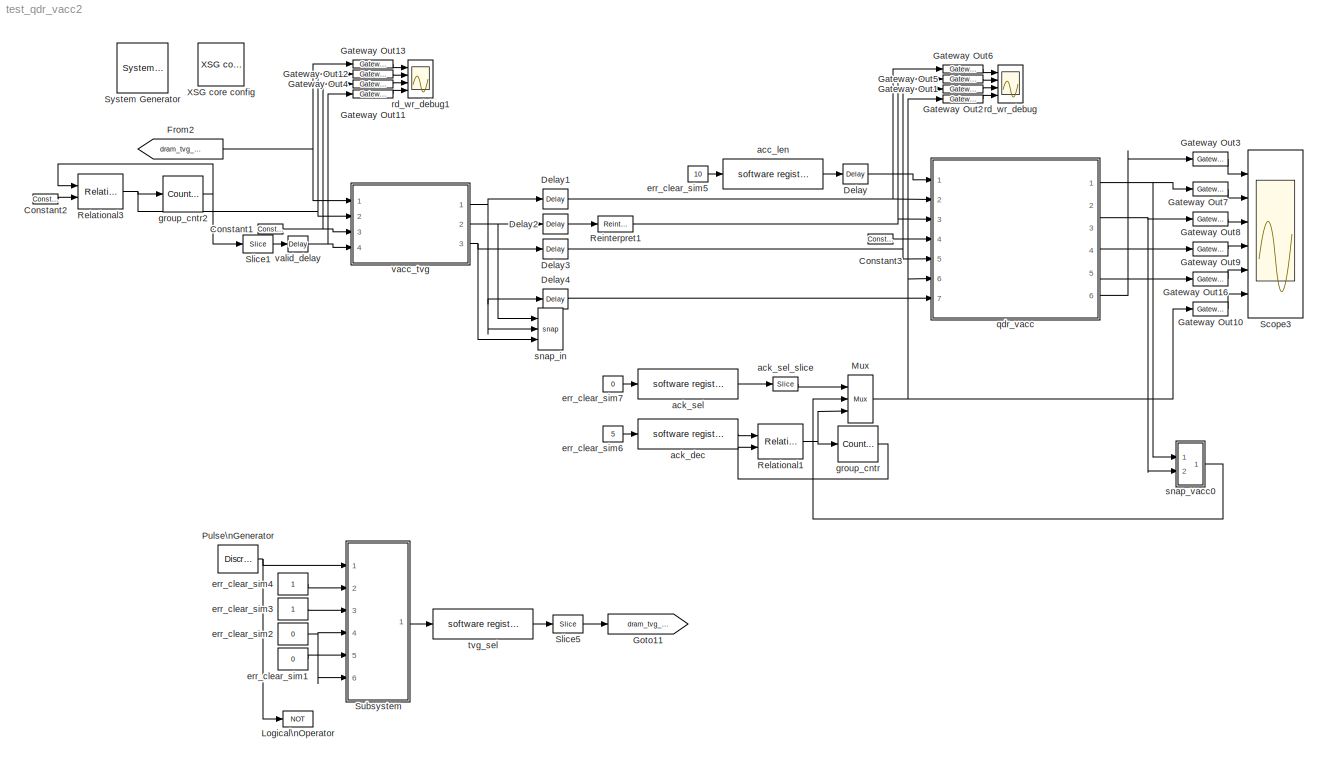
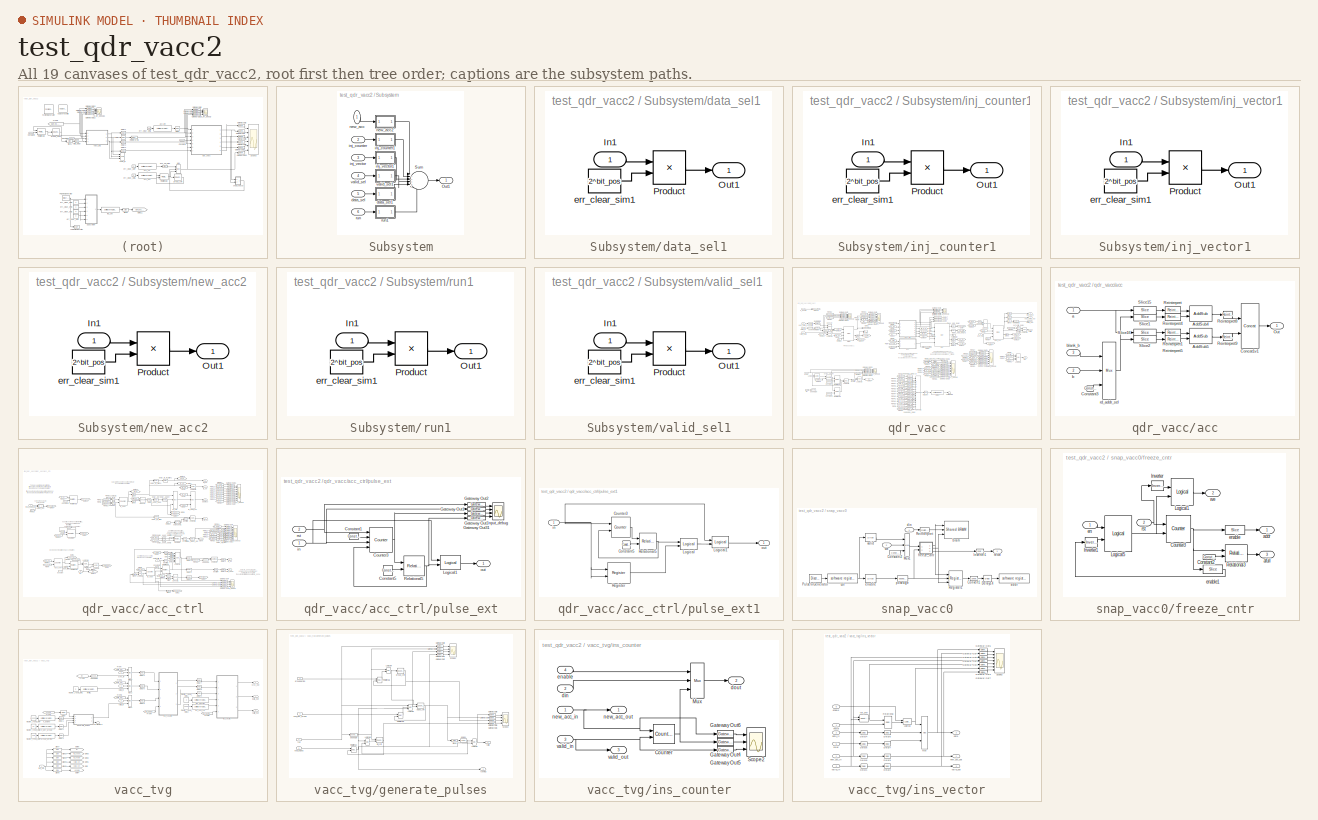
[diagram: thumbnail index - all 19 canvases of the model, root first then tree order]
MODEL test_qdr_vacc2
KIND model
BLOCK [Reference]  System Generator  REF=xbsIndex_r4/ System Generator
  AttributesFormatString = System\\nGenerator
  FunctionWithSeparateData = off
  Ports = []
  RTWMemSecDataConstants = Inherit from model
  RTWMemSecDataInternal = Inherit from model
  RTWMemSecDataParameters = Inherit from model
  RTWMemSecFuncExecute = Inherit from model
  RTWMemSecFuncInitTerm = Inherit from model
  ShowPortLabels = FromPortIcon
  SourceBlock = xbsIndex_r4/ System Generator
  SourceType = Xilinx System Generator Block
  SystemSampleTime = -1
  Tag = genX
  UserData = DataTag0
  UserDataPersistent = on
  block_type = sysgen
  block_version = 10.1.3
  clock_wrapper = Clock Enables
  core_generation = According to Block Masks
  dbl_ovrd = According to Block Masks
  dcm_input_clock_period = 100
  deprecated_control = off
  directory = ./test_qdr_vacc2/sysgen
  eval_field = 0
  has_advanced_control = 0
  incr_netlist = off
  infoedit = System Generator
  package = ff1136
  part = xc5vsx95t
  run_coregen = off
  sg_icon_stat = 51,50,-1,-1,red,beige,0,07734,right
  sg_mask_display = fprintf('','COMMENT: begin icon graphics');\npatch([0 51 51 0 ],[0 0 50 50 ],[0.93 0.92 0.86]);\npatch([12 4 16 4 12 25 29 33 47 36 25 17 29 17 25 36 47 33 29 25 12 ],[5 13 25 37 45 45 41 45 45 34 45 37 25 13 5 16 5 5 9 5 5 ],[0.6 0.2 0.25]);\nplot([0 51 51 0 0 ],[0 0 50 50 0 ]);\nfprintf('','COMMENT: end icon graphics');\nfprintf('','COMMENT: begin icon text');\nfprintf('','COMMENT: end icon text...<+5ch>
  sggui_pos = -1,-1,-1,-1
  simulink_period = 1
  speed = -1
  synthesis_tool = XST
  sysclk_period = 4.7619
  testbench = off
  trim_vbits = Everywhere in SubSystem
  xilinxfamily = virtex5
BLOCK [Reference] Constant1  REF=xbsIndex_r4/Constant
  Ports = [0, 1]
  SourceBlock = xbsIndex_r4/Constant
  SourceType = Xilinx Constant Block Block
  arith_type = Unsigned
  bin_pt = 0
  block_type = constant
  block_version = 10.1.3
  carry = CIN
  const = 0
  dbl_ovrd = off
  dsp48_infoedit = The use of this block for DSP48 instructions is deprecated.  Please use the Opmode block.
  equ = P=C
  explicit_period = on
  has_advanced_control = 0
  inp1 = P
  inp2 = PCIN>>17
  n_bits = 32
  opr = +
  opselect = C
  period = 1
  sg_icon_stat = 25,10,1,1,white,blue,0,72d575a1,right
  sg_mask_display = fprintf('','COMMENT: begin icon graphics');\npatch([0 55 55 0 ],[0 0 26 26 ],[0.77 0.82 0.91]);\npatch([20 16 22 16 20 27 29 31 38 32 26 22 28 22 26 32 38 31 29 27 20 ],[3 7 13 19 23 23 21 23 23 17 23 19 13 7 3 9 3 3 5 3 3 ],[0.98 0.96 0.92]);\nplot([0 55 55 0 0 ],[0 0 26 26 0 ]);\nfprintf('','COMMENT: end icon graphics');\nfprintf('','COMMENT: begin icon text');\ncolor('black');port_label('output...<+50ch>  <repeated x5 — deduplicated; at blocks: Constant1, Constant3, Constant2>
  sggui_pos = 20,20,414,344
BLOCK [Reference] Constant2  REF=xbsIndex_r4/Constant
  Ports = [0, 1]
  SourceBlock = xbsIndex_r4/Constant
  SourceType = Xilinx Constant Block Block
  arith_type = Unsigned
  bin_pt = 0
  block_type = constant
  block_version = 10.1.3
  carry = CIN
  const = (10*2*2*1000) -1
  dbl_ovrd = off
  dsp48_infoedit = The use of this block for DSP48 instructions is deprecated.  Please use the Opmode block.
  equ = P=C
  explicit_period = on
  has_advanced_control = 0
  inp1 = P
  inp2 = PCIN>>17
  n_bits = 32
  opr = +
  opselect = C
  period = 1
  sg_icon_stat = 25,10,1,1,white,blue,0,27a9cca1,right
  sg_mask_display = fprintf('','COMMENT: begin icon graphics');\npatch([0 55 55 0 ],[0 0 26 26 ],[0.77 0.82 0.91]);\npatch([20 16 22 16 20 27 29 31 38 32 26 22 28 22 26 32 38 31 29 27 20 ],[3 7 13 19 23 23 21 23 23 17 23 19 13 7 3 9 3 3 5 3 3 ],[0.98 0.96 0.92]);\nplot([0 55 55 0 0 ],[0 0 26 26 0 ]);\nfprintf('','COMMENT: end icon graphics');\nfprintf('','COMMENT: begin icon text');\ncolor('black');port_label('output...<+54ch>
  sggui_pos = 862,484,414,346
BLOCK [Reference] Constant3  REF=xbsIndex_r4/Constant
  Ports = [0, 1]
  SourceBlock = xbsIndex_r4/Constant
  SourceType = Xilinx Constant Block Block
  arith_type = Unsigned
  bin_pt = 0
  block_type = constant
  block_version = 10.1.3
  carry = CIN
  const = 0
  dbl_ovrd = off
  dsp48_infoedit = The use of this block for DSP48 instructions is deprecated.  Please use the Opmode block.
  equ = P=C
  explicit_period = on
  has_advanced_control = 0
  inp1 = P
  inp2 = PCIN>>17
  n_bits = 4
  opr = +
  opselect = C
  period = 1
  sg_icon_stat = 25,10,1,1,white,blue,0,72d575a1,right
  sggui_pos = 20,20,414,344
BLOCK [Reference] Delay  REF=xbsIndex_r4/Delay
  Ports = [1, 1]
  SourceBlock = xbsIndex_r4/Delay
  SourceType = Xilinx Delay Block
  block_type = delay
  block_version = 10.1.3
  dbl_ovrd = off
  en = off
  has_advanced_control = 0
  infoedit = Hardware notes: A delay line is a chain, each link of which is an SRL16 followed by a flip-flop.
  latency = 1
  reg_retiming = on
  sg_icon_stat = 25,20,1,1,white,blue,0,fc531c0e,right
  sg_mask_display = fprintf('','COMMENT: begin icon graphics');\npatch([0 60 60 0 ],[0 0 56 56 ],[0.77 0.82 0.91]);\npatch([15 6 19 6 15 30 34 38 54 41 29 20 32 20 29 41 54 38 34 30 15 ],[6 15 28 41 50 50 46 50 50 37 49 40 28 16 7 19 6 6 10 6 6 ],[0.98 0.96 0.92]);\nplot([0 60 60 0 0 ],[0 0 56 56 0 ]);\nfprintf('','COMMENT: end icon graphics');\nfprintf('','COMMENT: begin icon text');\ncolor('black');disp('z^{-1}','t...<+55ch>  <repeated x25 — deduplicated; at blocks: Delay, Delay1, Delay4, Delay6, Delay8, delay_even_addr, delay_even_addr1, delay_even_addr2, ease_timing1, ease_timing2, make_odd_delay, make_odd_delay1, out_valid_delay, stat_del, Delay14, Delay2, +4 more>
  sggui_pos = 20,20,348,254
  xl_area = [0,0,0,0,0,0,0]
  xl_use_area = off
BLOCK [Reference] Delay1  REF=xbsIndex_r4/Delay
  Ports = [1, 1]
  SourceBlock = xbsIndex_r4/Delay
  SourceType = Xilinx Delay Block
  block_type = delay
  block_version = 10.1.3
  dbl_ovrd = off
  en = off
  has_advanced_control = 0
  infoedit = Hardware notes: A delay line is a chain, each link of which is an SRL16 followed by a flip-flop.
  latency = 2
  reg_retiming = on
  sg_icon_stat = 25,20,1,1,white,blue,0,0a7a6cf1,right
  sg_mask_display = fprintf('','COMMENT: begin icon graphics');\npatch([0 60 60 0 ],[0 0 56 56 ],[0.77 0.82 0.91]);\npatch([15 6 19 6 15 30 34 38 54 41 29 20 32 20 29 41 54 38 34 30 15 ],[6 15 28 41 50 50 46 50 50 37 49 40 28 16 7 19 6 6 10 6 6 ],[0.98 0.96 0.92]);\nplot([0 60 60 0 0 ],[0 0 56 56 0 ]);\nfprintf('','COMMENT: end icon graphics');\nfprintf('','COMMENT: begin icon text');\ncolor('black');disp('z^{-2}','t...<+55ch>  <repeated x22 — deduplicated; at blocks: Delay1, Delay2, Delay3, Delay4, Delay7, delay_adder, delay_rd_wr_align1, qdr_del_comp2, qdr_del_comp3, qdr_del_comp4, qdr_del_comp6, Delay5, Delay6, Delay8, Delay9>
  sggui_pos = 20,20,348,255
  xl_area = [0,0,0,0,0,0,0]
  xl_use_area = off
BLOCK [Reference] Delay2  REF=xbsIndex_r4/Delay
  Ports = [1, 1]
  SourceBlock = xbsIndex_r4/Delay
  SourceType = Xilinx Delay Block
  block_type = delay
  block_version = 10.1.3
  dbl_ovrd = off
  en = off
  has_advanced_control = 0
  infoedit = Hardware notes: A delay line is a chain, each link of which is an SRL16 followed by a flip-flop.
  latency = 2
  reg_retiming = on
  sg_icon_stat = 25,20,1,1,white,blue,0,0a7a6cf1,right
  sggui_pos = 20,20,348,255
  xl_area = [0,0,0,0,0,0,0]
  xl_use_area = off
BLOCK [Reference] Delay3  REF=xbsIndex_r4/Delay
  Ports = [1, 1]
  SourceBlock = xbsIndex_r4/Delay
  SourceType = Xilinx Delay Block
  block_type = delay
  block_version = 10.1.3
  dbl_ovrd = off
  en = off
  has_advanced_control = 0
  infoedit = Hardware notes: A delay line is a chain, each link of which is an SRL16 followed by a flip-flop.
  latency = 2
  reg_retiming = on
  sg_icon_stat = 25,20,1,1,white,blue,0,0a7a6cf1,right
  sggui_pos = 20,20,348,255
  xl_area = [0,0,0,0,0,0,0]
  xl_use_area = off
BLOCK [Reference] Delay4  REF=xbsIndex_r4/Delay
  Ports = [1, 1]
  SourceBlock = xbsIndex_r4/Delay
  SourceType = Xilinx Delay Block
  block_type = delay
  block_version = 10.1.3
  dbl_ovrd = off
  en = off
  has_advanced_control = 0
  infoedit = Hardware notes: A delay line is a chain, each link of which is an SRL16 followed by a flip-flop.
  latency = 2
  reg_retiming = on
  sg_icon_stat = 25,20,1,1,white,blue,0,0a7a6cf1,right
  sggui_pos = 20,20,348,255
  xl_area = [0,0,0,0,0,0,0]
  xl_use_area = off
BLOCK [From] From2
  CloseFcn = tagdialog Close
  GotoTag = dram_tvg_sel
BLOCK [Reference] Gateway Out1  REF=xbsIndex_r4/Gateway Out
  LOCs = {}
  Ports = [1, 1]
  SourceBlock = xbsIndex_r4/Gateway Out
  SourceType = Xilinx Gateway Out Block
  block_type = gatewayout
  block_version = 10.1.3
  has_advanced_control = 0
  hdl_port = on
  infoedit = Gateway out block.  Converts Xilinx fixed point inputs into ouputs of type Simulink integer, double, or fixed point.<P><P>Hardware notes:  In hardware these blocks become top level output ports or are discarded, depending on how they are configured.  <repeated x88 — deduplicated; at blocks: Gateway Out1, Gateway Out10, Gateway Out11, Gateway Out12, Gateway Out13, Gateway Out16, Gateway Out2, Gateway Out3, Gateway Out4, Gateway Out5, Gateway Out6, Gateway Out7, Gateway Out8, Gateway Out9, Gateway Out14, Gateway Out15, +16 more>
  locs_specified = off
  sg_icon_stat = 40,8,1,1,white,yellow,0,38220381,right
  sg_mask_display = fprintf('','COMMENT: begin icon graphics');\npatch([0 40 40 0 ],[0 0 8 8 ],[0.95 0.93 0.65]);\npatch([18 17 19 17 18 20 21 22 24 22 20 19 21 19 20 22 24 22 21 20 18 ],[1 2 4 6 7 7 6 7 7 5 7 6 4 2 1 3 1 1 2 1 1 ],[0.98 0.96 0.92]);\nplot([0 40 40 0 0 ],[0 0 8 8 0 ]);\nfprintf('','COMMENT: end icon graphics');\nfprintf('','COMMENT: begin icon text');\ncolor('black');port_label('input',1,' ');\ncolor...<+117ch>  <repeated x8 — deduplicated; at blocks: Gateway Out1, Gateway Out11, Gateway Out12, Gateway Out13, Gateway Out2, Gateway Out4, Gateway Out5, Gateway Out6>
  sggui_pos = -1,-1,-1,-1
  timing_constraint = None
  xl_area = [0, 0, 0, 0, 0, 0, 0]
  xl_use_area = off
BLOCK [Reference] Gateway Out10  REF=xbsIndex_r4/Gateway Out
  LOCs = {}
  Ports = [1, 1]
  SourceBlock = xbsIndex_r4/Gateway Out
  SourceType = Xilinx Gateway Out Block
  block_type = gatewayout
  block_version = 10.1.3
  has_advanced_control = 0
  hdl_port = off
  locs_specified = off
  sg_icon_stat = 35,14,1,1,white,grey,0,b3a044a9,right
  sg_mask_display = fprintf('','COMMENT: begin icon graphics');\npatch([0 35 35 0 ],[0 0 14 14 ],[0.88 0.88 0.88]);\npatch([13 11 14 11 13 17 18 19 23 20 17 15 18 15 17 20 23 19 18 17 13 ],[2 4 7 10 12 12 11 12 12 9 12 10 7 4 2 5 2 2 3 2 2 ],[0.98 0.96 0.92]);\nplot([0 35 35 0 0 ],[0 0 14 14 0 ]);\nfprintf('','COMMENT: end icon graphics');\nfprintf('','COMMENT: begin icon text');\ncolor('black');port_label('input',1,...<+125ch>  <repeated x6 — deduplicated; at blocks: Gateway Out10, Gateway Out16, Gateway Out3, Gateway Out7, Gateway Out8, Gateway Out9>
  sggui_pos = -1,-1,-1,-1
  timing_constraint = None
  xl_area = [0, 0, 0, 0, 0, 0, 0]
  xl_use_area = off
BLOCK [Reference] Gateway Out11  REF=xbsIndex_r4/Gateway Out
  LOCs = {}
  Ports = [1, 1]
  SourceBlock = xbsIndex_r4/Gateway Out
  SourceType = Xilinx Gateway Out Block
  block_type = gatewayout
  block_version = 10.1.3
  has_advanced_control = 0
  hdl_port = on
  locs_specified = off
  sg_icon_stat = 40,8,1,1,white,yellow,0,38220381,right
  sggui_pos = -1,-1,-1,-1
  timing_constraint = None
  xl_area = [0, 0, 0, 0, 0, 0, 0]
  xl_use_area = off
BLOCK [Reference] Gateway Out12  REF=xbsIndex_r4/Gateway Out
  LOCs = {}
  Ports = [1, 1]
  SourceBlock = xbsIndex_r4/Gateway Out
  SourceType = Xilinx Gateway Out Block
  block_type = gatewayout
  block_version = 10.1.3
  has_advanced_control = 0
  hdl_port = on
  locs_specified = off
  sg_icon_stat = 40,8,1,1,white,yellow,0,38220381,right
  sggui_pos = -1,-1,-1,-1
  timing_constraint = None
  xl_area = [0, 0, 0, 0, 0, 0, 0]
  xl_use_area = off
BLOCK [Reference] Gateway Out13  REF=xbsIndex_r4/Gateway Out
  LOCs = {}
  Ports = [1, 1]
  SourceBlock = xbsIndex_r4/Gateway Out
  SourceType = Xilinx Gateway Out Block
  block_type = gatewayout
  block_version = 10.1.3
  has_advanced_control = 0
  hdl_port = on
  locs_specified = off
  sg_icon_stat = 40,8,1,1,white,yellow,0,38220381,right
  sggui_pos = -1,-1,-1,-1
  timing_constraint = None
  xl_area = [0, 0, 0, 0, 0, 0, 0]
  xl_use_area = off
BLOCK [Reference] Gateway Out16  REF=xbsIndex_r4/Gateway Out
  LOCs = {}
  Ports = [1, 1]
  SourceBlock = xbsIndex_r4/Gateway Out
  SourceType = Xilinx Gateway Out Block
  block_type = gatewayout
  block_version = 10.1.3
  has_advanced_control = 0
  hdl_port = off
  locs_specified = off
  sg_icon_stat = 35,14,1,1,white,grey,0,b3a044a9,right
  sggui_pos = -1,-1,-1,-1
  timing_constraint = None
  xl_area = [0, 0, 0, 0, 0, 0, 0]
  xl_use_area = off
BLOCK [Reference] Gateway Out2  REF=xbsIndex_r4/Gateway Out
  LOCs = {}
  Ports = [1, 1]
  SourceBlock = xbsIndex_r4/Gateway Out
  SourceType = Xilinx Gateway Out Block
  block_type = gatewayout
  block_version = 10.1.3
  has_advanced_control = 0
  hdl_port = on
  locs_specified = off
  sg_icon_stat = 40,8,1,1,white,yellow,0,38220381,right
  sggui_pos = -1,-1,-1,-1
  timing_constraint = None
  xl_area = [0, 0, 0, 0, 0, 0, 0]
  xl_use_area = off
BLOCK [Reference] Gateway Out3  REF=xbsIndex_r4/Gateway Out
  LOCs = {}
  Ports = [1, 1]
  SourceBlock = xbsIndex_r4/Gateway Out
  SourceType = Xilinx Gateway Out Block
  block_type = gatewayout
  block_version = 10.1.3
  has_advanced_control = 0
  hdl_port = off
  locs_specified = off
  sg_icon_stat = 35,14,1,1,white,grey,0,b3a044a9,right
  sggui_pos = -1,-1,-1,-1
  timing_constraint = None
  xl_area = [0, 0, 0, 0, 0, 0, 0]
  xl_use_area = off
BLOCK [Reference] Gateway Out4  REF=xbsIndex_r4/Gateway Out
  LOCs = {}
  Ports = [1, 1]
  SourceBlock = xbsIndex_r4/Gateway Out
  SourceType = Xilinx Gateway Out Block
  block_type = gatewayout
  block_version = 10.1.3
  has_advanced_control = 0
  hdl_port = on
  locs_specified = off
  sg_icon_stat = 40,8,1,1,white,yellow,0,38220381,right
  sggui_pos = -1,-1,-1,-1
  timing_constraint = None
  xl_area = [0, 0, 0, 0, 0, 0, 0]
  xl_use_area = off
BLOCK [Reference] Gateway Out5  REF=xbsIndex_r4/Gateway Out
  LOCs = {}
  Ports = [1, 1]
  SourceBlock = xbsIndex_r4/Gateway Out
  SourceType = Xilinx Gateway Out Block
  block_type = gatewayout
  block_version = 10.1.3
  has_advanced_control = 0
  hdl_port = on
  locs_specified = off
  sg_icon_stat = 40,8,1,1,white,yellow,0,38220381,right
  sggui_pos = -1,-1,-1,-1
  timing_constraint = None
  xl_area = [0, 0, 0, 0, 0, 0, 0]
  xl_use_area = off
BLOCK [Reference] Gateway Out6  REF=xbsIndex_r4/Gateway Out
  LOCs = {}
  Ports = [1, 1]
  SourceBlock = xbsIndex_r4/Gateway Out
  SourceType = Xilinx Gateway Out Block
  block_type = gatewayout
  block_version = 10.1.3
  has_advanced_control = 0
  hdl_port = on
  locs_specified = off
  sg_icon_stat = 40,8,1,1,white,yellow,0,38220381,right
  sggui_pos = -1,-1,-1,-1
  timing_constraint = None
  xl_area = [0, 0, 0, 0, 0, 0, 0]
  xl_use_area = off
BLOCK [Reference] Gateway Out7  REF=xbsIndex_r4/Gateway Out
  LOCs = {}
  Ports = [1, 1]
  SourceBlock = xbsIndex_r4/Gateway Out
  SourceType = Xilinx Gateway Out Block
  block_type = gatewayout
  block_version = 10.1.3
  has_advanced_control = 0
  hdl_port = off
  locs_specified = off
  sg_icon_stat = 35,14,1,1,white,grey,0,b3a044a9,right
  sggui_pos = -1,-1,-1,-1
  timing_constraint = None
  xl_area = [0, 0, 0, 0, 0, 0, 0]
  xl_use_area = off
BLOCK [Reference] Gateway Out8  REF=xbsIndex_r4/Gateway Out
  LOCs = {}
  Ports = [1, 1]
  SourceBlock = xbsIndex_r4/Gateway Out
  SourceType = Xilinx Gateway Out Block
  block_type = gatewayout
  block_version = 10.1.3
  has_advanced_control = 0
  hdl_port = off
  locs_specified = off
  sg_icon_stat = 35,14,1,1,white,grey,0,b3a044a9,right
  sggui_pos = -1,-1,-1,-1
  timing_constraint = None
  xl_area = [0, 0, 0, 0, 0, 0, 0]
  xl_use_area = off
BLOCK [Reference] Gateway Out9  REF=xbsIndex_r4/Gateway Out
  LOCs = {}
  Ports = [1, 1]
  SourceBlock = xbsIndex_r4/Gateway Out
  SourceType = Xilinx Gateway Out Block
  block_type = gatewayout
  block_version = 10.1.3
  has_advanced_control = 0
  hdl_port = off
  locs_specified = off
  sg_icon_stat = 35,14,1,1,white,grey,0,b3a044a9,right
  sggui_pos = -1,-1,-1,-1
  timing_constraint = None
  xl_area = [0, 0, 0, 0, 0, 0, 0]
  xl_use_area = off
BLOCK [Goto] Goto11
  GotoTag = dram_tvg_sel
  TagVisibility = local
BLOCK [Logic] Logical\nOperator
  AllPortsSameDT = off
  Operator = NOT
  OutDataTypeMode = boolean
  Ports = [1, 1]
BLOCK [Reference] Mux  REF=xbsIndex_r4/Mux
  Ports = [3, 1]
  SourceBlock = xbsIndex_r4/Mux
  SourceType = Xilinx Bus Multiplexer Block
  arith_type = Unsigned
  bin_pt = 14
  block_type = mux
  block_version = 10.1.3
  dbl_ovrd = off
  en = off
  has_advanced_control = 0
  inputs = 2
  latency = 0
  n_bits = 16
  overflow = Wrap
  precision = Full
  quantization = Truncate
  sg_icon_stat = 25,48,1,1,white,blue,3,613f58e1,right
  sg_mask_display = fprintf('','COMMENT: begin icon graphics');\npatch([0 45 45 0 ],[0 14.8571 89.1429 104 ],[0.77 0.82 0.91]);\npatch([10 3 14 3 10 22 25 28 41 31 21 14 25 14 21 31 41 28 25 22 10 ],[34 41 52 63 70 70 67 70 70 60 70 63 52 41 34 44 34 34 37 34 34 ],[0.98 0.96 0.92]);\nplot([0 45 45 0 0 ],[0 14.8571 89.1429 104 0 ]);\nfprintf('','COMMENT: end icon graphics');\nfprintf('','COMMENT: begin icon text');\nc...<+218ch>  <repeated x10 — deduplicated; at blocks: Mux, rd_addr_sel, rd_nwr, Mux1, Mux2, Mux3>
  sggui_pos = -1,-1,-1,-1
  xl_area = [0,0,0,0,0,0,0]
  xl_use_area = off
BLOCK [DiscretePulseGenerator] Pulse\nGenerator
  Period = 8*100*8
  PhaseDelay = 2
  Ports = [0, 1]
BLOCK [Reference] Reinterpret1  REF=xbsIndex_r4/Reinterpret
  Ports = [1, 1]
  SourceBlock = xbsIndex_r4/Reinterpret
  SourceType = Xilinx Type Reinterpreter Block
  arith_type = Signed  (2's comp)
  bin_pt = 0
  block_type = reinterpret
  block_version = 9.2.01
  force_arith_type = on
  force_bin_pt = on
  has_advanced_control = 0
  infoedit = Changes signal type without altering the binary representation.   You can changed the signal between signed and unsigned, and relocate the binary point.<P><P>Hardware notes: In hardware this block costs nothing.<P><P>Example:  Suppose the input is 6 bits wide, signed, with 2 fractional bits, and the output is forced to unsigned with 0 fractional bits.  Then an input of -2.0 (1110.00 in binary 2's ...<+55ch>  <repeated x11 — deduplicated; at blocks: Reinterpret1, Reinterpret, Reinterpret2, Reinterpret4, Reinterpret5, Reinterpret8, Reinterpret9>
  sg_icon_stat = 35,16,1,1,white,blue,0,8982c1db,right
  sg_mask_display = fprintf('','COMMENT: begin icon graphics');\npatch([0 50 50 0 ],[0 0 32 32 ],[0.77 0.82 0.91]);\npatch([16 11 18 11 16 24 26 28 37 30 23 18 25 18 23 30 37 28 26 24 16 ],[3 8 15 22 27 27 25 27 27 20 27 22 15 8 3 10 3 3 5 3 3 ],[0.98 0.96 0.92]);\nplot([0 50 50 0 0 ],[0 0 32 32 0 ]);\nfprintf('','COMMENT: end icon graphics');\nfprintf('','COMMENT: begin icon text');\ncolor('black');disp('reinterpret...<+44ch>  <repeated x11 — deduplicated; at blocks: Reinterpret1, Reinterpret, Reinterpret2, Reinterpret4, Reinterpret5, Reinterpret8, Reinterpret9>
  sggui_pos = 20,20,336,312
BLOCK [Reference] Relational1  REF=xbsIndex_r4/Relational
  Ports = [2, 1]
  SourceBlock = xbsIndex_r4/Relational
  SourceType = Xilinx Arithmetic Relational Operator Block
  block_type = relational
  block_version = 10.1.3
  dbl_ovrd = off
  en = off
  has_advanced_control = 0
  latency = 0
  mode = a<=b
  sg_icon_stat = 45,35,1,1,white,blue,0,07808d72,right
  sg_mask_display = fprintf('','COMMENT: begin icon graphics');\npatch([0 55 55 0 ],[0 0 56 56 ],[0.77 0.82 0.91]);\npatch([13 4 17 4 13 28 32 36 52 40 28 19 32 19 28 40 52 36 32 28 13 ],[6 15 28 41 50 50 46 50 50 38 50 41 28 15 6 18 6 6 10 6 6 ],[0.98 0.96 0.92]);\nplot([0 55 55 0 0 ],[0 0 56 56 0 ]);\nfprintf('','COMMENT: end icon graphics');\nfprintf('','COMMENT: begin icon text');\ncolor('black');port_label('inpu...<+169ch>  <repeated x10 — deduplicated; at blocks: Relational1, Relational3, Relational, Relational2, Relational5>
  sggui_pos = 20,20,348,192
  xl_area = [0, 0, 0, 0, 0, 0, 0]
  xl_use_area = off
BLOCK [Reference] Relational3  REF=xbsIndex_r4/Relational
  Ports = [2, 1]
  SourceBlock = xbsIndex_r4/Relational
  SourceType = Xilinx Arithmetic Relational Operator Block
  block_type = relational
  block_version = 10.1.3
  dbl_ovrd = off
  en = off
  has_advanced_control = 0
  latency = 0
  mode = a>=b
  sg_icon_stat = 45,35,1,1,white,blue,0,6d6ac162,right
  sggui_pos = 20,20,348,192
  xl_area = [0, 0, 0, 0, 0, 0, 0]
  xl_use_area = off
BLOCK [Scope] Scope3
  DataFormat = StructureWithTime
  Floating = off
  LimitDataPoints = off
  NumInputPorts = 6
  Ports = [6]
  SampleTime = 0
  SaveName = ScopeData2
  YMax = 1~10000~1~1~1~1
  YMin = 0~7250~0~-1~-1~0
  ZoomMode = xonly
BLOCK [Reference] Slice1  REF=xbsIndex_r4/Slice
  Ports = [1, 1]
  SourceBlock = xbsIndex_r4/Slice
  SourceType = Xilinx Bit Slice Extractor Block
  base0 = LSB of Input
  base1 = MSB of Input
  bit0 = 0
  bit1 = 0
  block_type = slice
  block_version = 10.1.3
  boolean_output = on
  dbl_ovrd = off
  has_advanced_control = 0
  infoedit = Extracts a given range of bits from each input sample and presents it at the output.  The output type is ordinarily unsigned with binary point at zero, but can be Boolean when the slice is one bit wide.<P><P>Hardware notes: In hardware this block costs nothing.  <repeated x28 — deduplicated; at blocks: Slice1, Slice5, ack_sel_slice, Slice15, Slice2, Slice3, Slice16, Slice, Slice4, enable, enable1, valid, Slice6, Slice7>
  mode = Lower Bit Location + Width
  nbits = 1
  sg_icon_stat = 30,18,1,1,white,blue,0,b1026674,right
  sg_mask_display = fprintf('','COMMENT: begin icon graphics');\npatch([0 60 60 0 ],[0 0 30 30 ],[0.77 0.82 0.91]);\npatch([22 17 24 17 22 30 32 34 42 35 29 24 30 24 29 35 42 34 32 30 22 ],[3 8 15 22 27 27 25 27 27 20 26 21 15 9 4 10 3 3 5 3 3 ],[0.98 0.96 0.92]);\nplot([0 60 60 0 0 ],[0 0 30 30 0 ]);\nfprintf('','COMMENT: end icon graphics');\nfprintf('','COMMENT: begin icon text');\ncolor('black');port_label('outpu...<+55ch>  <repeated x28 — deduplicated; at blocks: Slice1, Slice5, ack_sel_slice, Slice15, Slice2, Slice3, Slice16, Slice, Slice4, enable, enable1, valid, Slice6, Slice7>
  sggui_pos = 20,20,460,380
BLOCK [Reference] Slice5  REF=xbsIndex_r4/Slice
  Ports = [1, 1]
  SourceBlock = xbsIndex_r4/Slice
  SourceType = Xilinx Bit Slice Extractor Block
  base0 = LSB of Input
  base1 = MSB of Input
  bit0 = 9
  bit1 = 0
  block_type = slice
  block_version = 10.1.3
  boolean_output = off
  dbl_ovrd = off
  has_advanced_control = 0
  mode = Lower Bit Location + Width
  nbits = 6
  sg_icon_stat = 30,18,1,1,white,blue,0,b1026674,right
  sggui_pos = 20,20,460,380
BLOCK [SubSystem] Subsystem
  FunctionWithSeparateData = off
  MinAlgLoopOccurrences = off
  Ports = [6, 1]
  RTWSystemCode = Auto
BLOCK [Outport] Subsystem/Out1
  IconDisplay = Port number
  OutDataType = sfix(16)
  OutScaling = 2^0
BLOCK [Sum] Subsystem/Sum
  CollapseMode = All dimensions
  IconShape = round
  InputSameDT = off
  Inputs = |++++++
  OutDataType = sfix(16)
  OutDataTypeMode = Inherit via internal rule
  OutScaling = 2^0
  Ports = [6, 1]
  SaturateOnIntegerOverflow = off
BLOCK [Inport] Subsystem/data_sel
  IconDisplay = Port number
  OutDataType = sfix(16)
  OutScaling = 2^0
  Port = 5
BLOCK [SubSystem] Subsystem/data_sel1
  FunctionWithSeparateData = off
  MaskEnableString = on
  MaskIconFrame = on
  MaskIconOpaque = on
  MaskIconRotate = none
  MaskIconUnits = autoscale
  MaskPromptString = bit position
  MaskStyleString = edit
  MaskToolTipString = on
  MaskTunableValueString = on
  MaskValueString = 10
  MaskVariables = bit_pos=@1;
  MaskVisibilityString = on
  MinAlgLoopOccurrences = off
  Ports = [1, 1]
  RTWSystemCode = Auto
BLOCK [Inport] Subsystem/data_sel1/In1
  IconDisplay = Port number
  OutDataType = sfix(16)
  OutScaling = 2^0
BLOCK [Outport] Subsystem/data_sel1/Out1
  IconDisplay = Port number
  OutDataType = sfix(16)
  OutScaling = 2^0
BLOCK [Product] Subsystem/data_sel1/Product
  CollapseMode = All dimensions
  InputSameDT = off
  OutDataType = sfix(16)
  OutDataTypeMode = Inherit via internal rule
  OutScaling = 2^0
  Ports = [2, 1]
  SaturateOnIntegerOverflow = off
BLOCK [Constant] Subsystem/data_sel1/err_clear_sim1
  OutDataType = sfix(16)
  OutScaling = 2^0
  Value = 2^bit_pos
BLOCK [Inport] Subsystem/inj_counter
  IconDisplay = Port number
  OutDataType = sfix(16)
  OutScaling = 2^0
  Port = 2
BLOCK [SubSystem] Subsystem/inj_counter1
  FunctionWithSeparateData = off
  MaskEnableString = on
  MaskIconFrame = on
  MaskIconOpaque = on
  MaskIconRotate = none
  MaskIconUnits = autoscale
  MaskPromptString = bit position
  MaskStyleString = edit
  MaskToolTipString = on
  MaskTunableValueString = on
  MaskValueString = 13
  MaskVariables = bit_pos=@1;
  MaskVisibilityString = on
  MinAlgLoopOccurrences = off
  Ports = [1, 1]
  RTWSystemCode = Auto
BLOCK [Inport] Subsystem/inj_counter1/In1
  IconDisplay = Port number
  OutDataType = sfix(16)
  OutScaling = 2^0
BLOCK [Outport] Subsystem/inj_counter1/Out1
  IconDisplay = Port number
  OutDataType = sfix(16)
  OutScaling = 2^0
BLOCK [Product] Subsystem/inj_counter1/Product
  CollapseMode = All dimensions
  InputSameDT = off
  OutDataType = sfix(16)
  OutDataTypeMode = Inherit via internal rule
  OutScaling = 2^0
  Ports = [2, 1]
  SaturateOnIntegerOverflow = off
BLOCK [Constant] Subsystem/inj_counter1/err_clear_sim1
  OutDataType = sfix(16)
  OutScaling = 2^0
  Value = 2^bit_pos
BLOCK [Inport] Subsystem/inj_vector
  IconDisplay = Port number
  OutDataType = sfix(16)
  OutScaling = 2^0
  Port = 3
BLOCK [SubSystem] Subsystem/inj_vector1
  FunctionWithSeparateData = off
  MaskEnableString = on
  MaskIconFrame = on
  MaskIconOpaque = on
  MaskIconRotate = none
  MaskIconUnits = autoscale
  MaskPromptString = bit position
  MaskStyleString = edit
  MaskToolTipString = on
  MaskTunableValueString = on
  MaskValueString = 12
  MaskVariables = bit_pos=@1;
  MaskVisibilityString = on
  MinAlgLoopOccurrences = off
  Ports = [1, 1]
  RTWSystemCode = Auto
BLOCK [Inport] Subsystem/inj_vector1/In1
  IconDisplay = Port number
  OutDataType = sfix(16)
  OutScaling = 2^0
BLOCK [Outport] Subsystem/inj_vector1/Out1
  IconDisplay = Port number
  OutDataType = sfix(16)
  OutScaling = 2^0
BLOCK [Product] Subsystem/inj_vector1/Product
  CollapseMode = All dimensions
  InputSameDT = off
  OutDataType = sfix(16)
  OutDataTypeMode = Inherit via internal rule
  OutScaling = 2^0
  Ports = [2, 1]
  SaturateOnIntegerOverflow = off
BLOCK [Constant] Subsystem/inj_vector1/err_clear_sim1
  OutDataType = sfix(16)
  OutScaling = 2^0
  Value = 2^bit_pos
BLOCK [Inport] Subsystem/new_acc
  IconDisplay = Port number
  OutDataType = sfix(16)
  OutScaling = 2^0
BLOCK [SubSystem] Subsystem/new_acc2
  FunctionWithSeparateData = off
  MaskEnableString = on
  MaskIconFrame = on
  MaskIconOpaque = on
  MaskIconRotate = none
  MaskIconUnits = autoscale
  MaskPromptString = bit position
  MaskStyleString = edit
  MaskToolTipString = on
  MaskTunableValueString = on
  MaskValueString = 14
  MaskVariables = bit_pos=@1;
  MaskVisibilityString = on
  MinAlgLoopOccurrences = off
  Ports = [1, 1]
  RTWSystemCode = Auto
BLOCK [Inport] Subsystem/new_acc2/In1
  IconDisplay = Port number
  OutDataType = sfix(16)
  OutScaling = 2^0
BLOCK [Outport] Subsystem/new_acc2/Out1
  IconDisplay = Port number
  OutDataType = sfix(16)
  OutScaling = 2^0
BLOCK [Product] Subsystem/new_acc2/Product
  CollapseMode = All dimensions
  InputSameDT = off
  OutDataType = sfix(16)
  OutDataTypeMode = Inherit via internal rule
  OutScaling = 2^0
  Ports = [2, 1]
  SaturateOnIntegerOverflow = off
BLOCK [Constant] Subsystem/new_acc2/err_clear_sim1
  OutDataType = sfix(16)
  OutScaling = 2^0
  Value = 2^bit_pos
BLOCK [Inport] Subsystem/run
  IconDisplay = Port number
  OutDataType = sfix(16)
  OutScaling = 2^0
  Port = 6
BLOCK [SubSystem] Subsystem/run1
  FunctionWithSeparateData = off
  MaskEnableString = on
  MaskIconFrame = on
  MaskIconOpaque = on
  MaskIconRotate = none
  MaskIconUnits = autoscale
  MaskPromptString = bit position
  MaskStyleString = edit
  MaskToolTipString = on
  MaskTunableValueString = on
  MaskValueString = 9
  MaskVariables = bit_pos=@1;
  MaskVisibilityString = on
  MinAlgLoopOccurrences = off
  Ports = [1, 1]
  RTWSystemCode = Auto
BLOCK [Inport] Subsystem/run1/In1
  IconDisplay = Port number
  OutDataType = sfix(16)
  OutScaling = 2^0
BLOCK [Outport] Subsystem/run1/Out1
  IconDisplay = Port number
  OutDataType = sfix(16)
  OutScaling = 2^0
BLOCK [Product] Subsystem/run1/Product
  CollapseMode = All dimensions
  InputSameDT = off
  OutDataType = sfix(16)
  OutDataTypeMode = Inherit via internal rule
  OutScaling = 2^0
  Ports = [2, 1]
  SaturateOnIntegerOverflow = off
BLOCK [Constant] Subsystem/run1/err_clear_sim1
  OutDataType = sfix(16)
  OutScaling = 2^0
  Value = 2^bit_pos
BLOCK [Inport] Subsystem/valid_sel
  IconDisplay = Port number
  OutDataType = sfix(16)
  OutScaling = 2^0
  Port = 4
BLOCK [SubSystem] Subsystem/valid_sel1
  FunctionWithSeparateData = off
  MaskEnableString = on
  MaskIconFrame = on
  MaskIconOpaque = on
  MaskIconRotate = none
  MaskIconUnits = autoscale
  MaskPromptString = bit position
  MaskStyleString = edit
  MaskToolTipString = on
  MaskTunableValueString = on
  MaskValueString = 11
  MaskVariables = bit_pos=@1;
  MaskVisibilityString = on
  MinAlgLoopOccurrences = off
  Ports = [1, 1]
  RTWSystemCode = Auto
BLOCK [Inport] Subsystem/valid_sel1/In1
  IconDisplay = Port number
  OutDataType = sfix(16)
  OutScaling = 2^0
BLOCK [Outport] Subsystem/valid_sel1/Out1
  IconDisplay = Port number
  OutDataType = sfix(16)
  OutScaling = 2^0
BLOCK [Product] Subsystem/valid_sel1/Product
  CollapseMode = All dimensions
  InputSameDT = off
  OutDataType = sfix(16)
  OutDataTypeMode = Inherit via internal rule
  OutScaling = 2^0
  Ports = [2, 1]
  SaturateOnIntegerOverflow = off
BLOCK [Constant] Subsystem/valid_sel1/err_clear_sim1
  OutDataType = sfix(16)
  OutScaling = 2^0
  Value = 2^bit_pos
BLOCK [Reference] XSG core config  REF=xps_library/XSG core config  (lib defined in mdl_00b5cec29cd0, mdl_02ab6ecaa3d1, +5 more)
  BEE2_ctrl_clk_src = sys_clk
  BEE2_usr_clk_src = sys_clk
  CORR_clk_src = sys_clk
  FunctionWithSeparateData = off
  Ports = []
  ROACH_clk_src = arb_clk
  RTWMemSecDataConstants = Inherit from model
  RTWMemSecDataInternal = Inherit from model
  RTWMemSecDataParameters = Inherit from model
  RTWMemSecFuncExecute = Inherit from model
  RTWMemSecFuncInitTerm = Inherit from model
  ShowPortLabels = FromPortIcon
  SourceBlock = xps_library/XSG core config
  SourceType = xsg core config
  SystemSampleTime = -1
  Tag = xps:xsg
  clk_rate = 210
  clk_src = arb_clk
  gpio_clk_bit_index = 0
  gpio_clk_io_group = iBOB:sma
  hw_sys = ROACH:sx95t
  iBOB_clk_src = sys_clk
  ibob_linux = off
  mpc_type = powerpc440_ext
  sample_period = 1
  synthesis_tool = XST
BLOCK [Reference] acc_len  REF=xps_library/software register  (lib defined in mdl_00b5cec29cd0, mdl_02ab6ecaa3d1, +5 more)
  FunctionWithSeparateData = off
  Ports = [1, 1]
  RTWMemSecDataConstants = Inherit from model
  RTWMemSecDataInternal = Inherit from model
  RTWMemSecDataParameters = Inherit from model
  RTWMemSecFuncExecute = Inherit from model
  RTWMemSecFuncInitTerm = Inherit from model
  ShowPortLabels = FromPortIcon
  SourceBlock = xps_library/software register
  SystemSampleTime = -1
  Tag = xps:sw_reg
  arith_type = Unsigned
  bin_pt = 0
  bitwidth = 32
  gw_name = test_qdr_vacc2_acc_len_user_data_out
  io_dir = From Processor
  sample_period = 1
BLOCK [Reference] ack_dec  REF=xps_library/software register  (lib defined in mdl_00b5cec29cd0, mdl_02ab6ecaa3d1, +5 more)
  FunctionWithSeparateData = off
  Ports = [1, 1]
  RTWMemSecDataConstants = Inherit from model
  RTWMemSecDataInternal = Inherit from model
  RTWMemSecDataParameters = Inherit from model
  RTWMemSecFuncExecute = Inherit from model
  RTWMemSecFuncInitTerm = Inherit from model
  ShowPortLabels = FromPortIcon
  SourceBlock = xps_library/software register
  SystemSampleTime = -1
  Tag = xps:sw_reg
  arith_type = Unsigned
  bin_pt = 0
  bitwidth = 32
  gw_name = test_qdr_vacc2_ack_dec_user_data_out
  io_dir = From Processor
  sample_period = 1
BLOCK [Reference] ack_sel  REF=xps_library/software register  (lib defined in mdl_00b5cec29cd0, mdl_02ab6ecaa3d1, +5 more)
  FunctionWithSeparateData = off
  Ports = [1, 1]
  RTWMemSecDataConstants = Inherit from model
  RTWMemSecDataInternal = Inherit from model
  RTWMemSecDataParameters = Inherit from model
  RTWMemSecFuncExecute = Inherit from model
  RTWMemSecFuncInitTerm = Inherit from model
  ShowPortLabels = FromPortIcon
  SourceBlock = xps_library/software register
  SystemSampleTime = -1
  Tag = xps:sw_reg
  arith_type = Unsigned
  bin_pt = 0
  bitwidth = 32
  gw_name = test_qdr_vacc2_ack_sel_user_data_out
  io_dir = From Processor
  sample_period = 1
BLOCK [Reference] ack_sel_slice  REF=xbsIndex_r4/Slice
  Ports = [1, 1]
  SourceBlock = xbsIndex_r4/Slice
  SourceType = Xilinx Bit Slice Extractor Block
  base0 = LSB of Input
  base1 = LSB of Input
  bit0 = 0
  bit1 = 0
  block_type = slice
  block_version = 10.1.1
  boolean_output = on
  dbl_ovrd = off
  has_advanced_control = 0
  mode = Lower Bit Location + Width
  nbits = 1
  sg_icon_stat = 25,14,1,1,white,blue,0,b1026674,right
  sggui_pos = 20,20,460,380
BLOCK [Constant] err_clear_sim1
  OutDataType = sfix(16)
  OutScaling = 2^0
  Value = 0
BLOCK [Constant] err_clear_sim2
  OutDataType = sfix(16)
  OutScaling = 2^0
  Value = 0
BLOCK [Constant] err_clear_sim3
  OutDataType = sfix(16)
  OutScaling = 2^0
BLOCK [Constant] err_clear_sim4
  OutDataType = sfix(16)
  OutScaling = 2^0
BLOCK [Constant] err_clear_sim5
  OutDataType = sfix(16)
  OutScaling = 2^0
  Value = 10
BLOCK [Constant] err_clear_sim6
  OutDataType = sfix(16)
  OutScaling = 2^0
  Value = 5
BLOCK [Constant] err_clear_sim7
  OutDataType = sfix(16)
  OutScaling = 2^0
  Value = 0
BLOCK [Reference] group_cntr  REF=xbsIndex_r4/Counter
  Ports = [1, 1]
  SourceBlock = xbsIndex_r4/Counter
  SourceType = Xilinx Counter Block
  arith_type = Unsigned
  bin_pt = 0
  block_type = counter
  block_version = 10.1.3
  cnt_by_val = 1
  cnt_to = 1
  cnt_type = Free Running
  dbl_ovrd = off
  en = off
  explicit_period = on
  has_advanced_control = 0
  implementation = Fabric
  infoedit = Hardware notes: Free running counters are the least expensive in hardware.  A count limited counter is implemented by combining a counter with a comparator.
  load_pin = off
  n_bits = 32
  operation = Up
  period = 1
  rst = on
  sg_icon_stat = 40,36,1,1,white,blue,0,300e9576,right
  sg_mask_display = fprintf('','COMMENT: begin icon graphics');\npatch([0 60 60 0 ],[0 0 60 60 ],[0.77 0.82 0.91]);\npatch([14 4 18 4 14 30 34 38 55 42 29 20 35 20 29 42 55 38 34 30 14 ],[6 16 30 44 54 54 50 54 54 41 54 45 30 15 6 19 6 6 10 6 6 ],[0.98 0.96 0.92]);\nplot([0 60 60 0 0 ],[0 0 60 60 0 ]);\nfprintf('','COMMENT: end icon graphics');\nfprintf('','COMMENT: begin icon text');\ncolor('black');port_label('inpu...<+99ch>  <repeated x3 — deduplicated; at blocks: group_cntr, group_cntr2>
  sggui_pos = 20,20,348,618
  start_count = 0
  use_behavioral_HDL = off
  use_rpm = on
  xl_area = [0, 0, 0, 0, 0, 0, 0]
  xl_use_area = off
BLOCK [Reference] group_cntr2  REF=xbsIndex_r4/Counter
  Ports = [1, 1]
  SourceBlock = xbsIndex_r4/Counter
  SourceType = Xilinx Counter Block
  arith_type = Unsigned
  bin_pt = 0
  block_type = counter
  block_version = 10.1.3
  cnt_by_val = 1
  cnt_to = 1
  cnt_type = Free Running
  dbl_ovrd = off
  en = off
  explicit_period = on
  has_advanced_control = 0
  implementation = Fabric
  infoedit = Hardware notes: Free running counters are the least expensive in hardware.  A count limited counter is implemented by combining a counter with a comparator.
  load_pin = off
  n_bits = 32
  operation = Up
  period = 1
  rst = on
  sg_icon_stat = 40,36,1,1,white,blue,0,300e9576,right
  sggui_pos = 20,20,348,618
  start_count = 0
  use_behavioral_HDL = off
  use_rpm = on
  xl_area = [0, 0, 0, 0, 0, 0, 0]
  xl_use_area = off
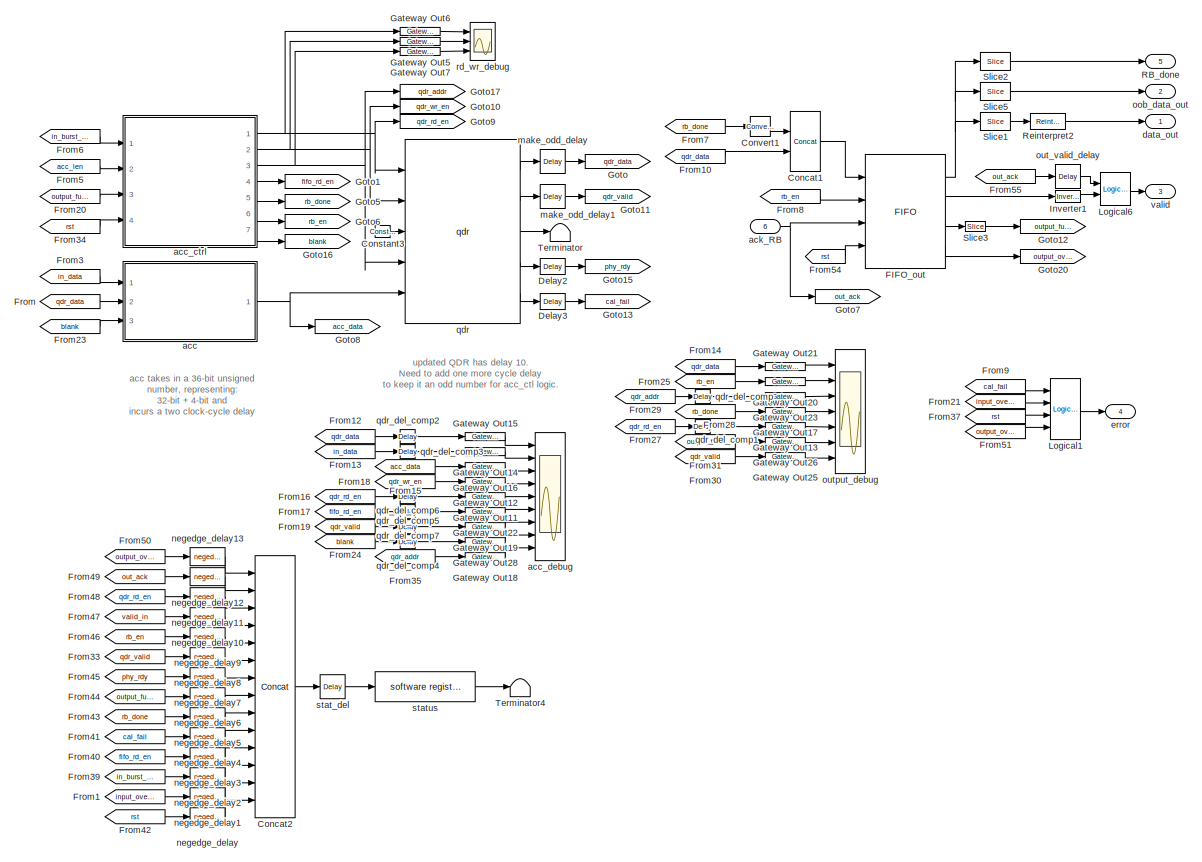
[diagram: qdr_vacc - part 1/2, right side, full height]
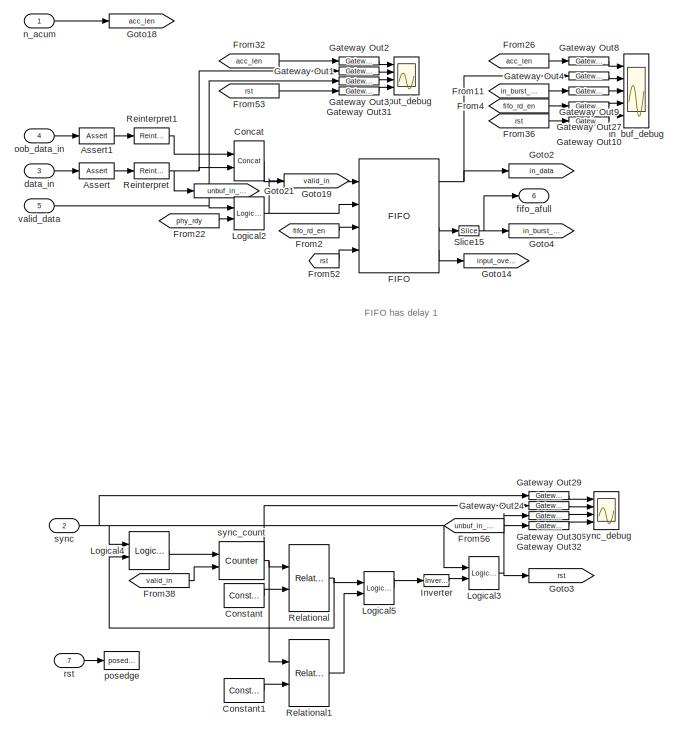
[diagram: qdr_vacc - part 2/2, left side, full height]
BLOCK [SubSystem] qdr_vacc
  AncestorBlock = casper_library/Accumulators/qdr_vacc
  AttributesFormatString = Vector Length: 1000
  FunctionWithSeparateData = off
  MaskDescription = A vector accumulator for medium length vectors designed for ROACH's QDR memory.\n\nOriginally designed for the packetised correlator, this block accepts input data of type Fix_32_0. OOB_data_in provides an extra 4 bits that are accumulated seperately (originally designed to keep track of how many \"bad\" values in a vector were accumulated).\n\nMinimum vector length is 2 * burst_length.\nMinimum b...<+125ch>
  MaskEnableString = on
  MaskIconFrame = on
  MaskIconOpaque = on
  MaskIconRotate = none
  MaskIconUnits = autoscale
  MaskInitialization = vector_bits = ceil(log2(vector_len));\nburst_bits = 4;\nburst_len = 2^burst_bits;\n\nfmtstr = sprintf('Vector Length: %d', vector_len);\nset_param(gcb, 'AttributesFormatString', fmtstr);\n
  MaskPromptString = Vector length??(# cycles)
  MaskStyleString = edit
  MaskToolTipString = on
  MaskTunableValueString = on
  MaskValueString = 1000
  MaskVariables = vector_len=@1;
  MaskVisibilityString = on
  MinAlgLoopOccurrences = off
  Ports = [7, 6]
  RTWSystemCode = Auto
BLOCK [Reference] qdr_vacc/Assert  REF=xbsIndex_r4/Assert
  Ports = [1, 1]
  SourceBlock = xbsIndex_r4/Assert
  SourceType = Xilinx Assert Block
  arith_type = Signed  (2's comp)
  assert_rate = off
  assert_type = on
  bin_pt = 0
  block_type = assert
  block_version = 10.1.3
  has_advanced_control = 0
  infoedit = Asserts a user-defined sample rate and/or type on a signal.<P><P>Hardware notes: In hardware this block costs nothing.
  n_bits = 32
  output_port = on
  period = 1
  rate_source = Explicitly
  sg_icon_stat = 35,16,1,1,white,blue,0,f7732e52,right
  sg_mask_display = fprintf('','COMMENT: begin icon graphics');\npatch([0 60 60 0 ],[0 0 30 30 ],[0.77 0.82 0.91]);\npatch([22 17 24 17 22 30 32 34 42 35 29 24 30 24 29 35 42 34 32 30 22 ],[3 8 15 22 27 27 25 27 27 20 26 21 15 9 4 10 3 3 5 3 3 ],[0.98 0.96 0.92]);\nplot([0 60 60 0 0 ],[0 0 30 30 0 ]);\nfprintf('','COMMENT: end icon graphics');\nfprintf('','COMMENT: begin icon text');\ncolor('black');disp('Assert');\n...<+39ch>  <repeated x3 — deduplicated; at blocks: Assert, Assert1>
  sggui_pos = 157,543,336,432
  type_source = Explicitly
BLOCK [Reference] qdr_vacc/Assert1  REF=xbsIndex_r4/Assert
  Ports = [1, 1]
  SourceBlock = xbsIndex_r4/Assert
  SourceType = Xilinx Assert Block
  arith_type = Unsigned
  assert_rate = on
  assert_type = on
  bin_pt = 0
  block_type = assert
  block_version = 10.1.3
  has_advanced_control = 0
  infoedit = Asserts a user-defined sample rate and/or type on a signal.<P><P>Hardware notes: In hardware this block costs nothing.
  n_bits = 4
  output_port = on
  period = 1
  rate_source = Explicitly
  sg_icon_stat = 35,16,1,1,white,blue,0,f7732e52,right
  sggui_pos = 157,543,336,432
  type_source = Explicitly
BLOCK [Reference] qdr_vacc/Concat  REF=xbsIndex_r4/Concat
  Ports = [2, 1]
  SourceBlock = xbsIndex_r4/Concat
  SourceType = Xilinx Bus Concatenator Block
  block_type = concat
  block_version = 9.2.01
  dbl_ovrd = off
  has_advanced_control = 0
  infoedit = Concatenates two or more inputs.  Output will be cast to an unsigned value with the binary point at zero.
  num_inputs = 2
  sg_icon_stat = 30,40,1,1,white,blue,0,df1e5aba,right
  sg_mask_display = fprintf('','COMMENT: begin icon graphics');\npatch([0 60 60 0 ],[0 0 60 60 ],[0.77 0.82 0.91]);\npatch([14 4 18 4 14 30 34 38 55 42 29 20 35 20 29 42 55 38 34 30 14 ],[6 16 30 44 54 54 50 54 54 41 54 45 30 15 6 19 6 6 10 6 6 ],[0.98 0.96 0.92]);\nplot([0 60 60 0 0 ],[0 0 60 60 0 ]);\nfprintf('','COMMENT: end icon graphics');\nfprintf('','COMMENT: begin icon text');\ncolor('black');port_label('inpu...<+96ch>  <repeated x5 — deduplicated; at blocks: Concat, Concat1, Concat1v1>
  sggui_pos = 20,20,336,162
BLOCK [Reference] qdr_vacc/Concat1  REF=xbsIndex_r4/Concat
  Ports = [2, 1]
  SourceBlock = xbsIndex_r4/Concat
  SourceType = Xilinx Bus Concatenator Block
  block_type = concat
  block_version = 9.2.01
  dbl_ovrd = off
  has_advanced_control = 0
  infoedit = Concatenates two or more inputs.  Output will be cast to an unsigned value with the binary point at zero.
  num_inputs = 2
  sg_icon_stat = 30,60,1,1,white,blue,0,df1e5aba,right
  sggui_pos = -1,-1,-1,-1
BLOCK [Reference] qdr_vacc/Concat2  REF=xbsIndex_r4/Concat
  Ports = [14, 1]
  SourceBlock = xbsIndex_r4/Concat
  SourceType = Xilinx Bus Concatenator Block
  block_type = concat
  block_version = 9.2.01
  dbl_ovrd = off
  has_advanced_control = 0
  infoedit = Concatenates two or more inputs.  Output will be cast to an unsigned value with the binary point at zero.
  num_inputs = 14
  sg_icon_stat = 40,262,1,1,white,blue,0,675bb8de,right
  sg_mask_display = fprintf('','COMMENT: begin icon graphics');\npatch([0 60 60 0 ],[0 0 60 60 ],[0.77 0.82 0.91]);\npatch([14 4 18 4 14 30 34 38 55 42 29 20 35 20 29 42 55 38 34 30 14 ],[6 16 30 44 54 54 50 54 54 41 54 45 30 15 6 19 6 6 10 6 6 ],[0.98 0.96 0.92]);\nplot([0 60 60 0 0 ],[0 0 60 60 0 ]);\nfprintf('','COMMENT: end icon graphics');\nfprintf('','COMMENT: begin icon text');\ncolor('black');port_label('inpu...<+97ch>
  sggui_pos = 20,20,336,162
BLOCK [Reference] qdr_vacc/Constant  REF=xbsIndex_r4/Constant
  Ports = [0, 1]
  SourceBlock = xbsIndex_r4/Constant
  SourceType = Xilinx Constant Block Block
  arith_type = Unsigned
  bin_pt = 0
  block_type = constant
  block_version = 10.1.3
  carry = CIN
  const = vector_len
  dbl_ovrd = off
  dsp48_infoedit = The use of this block for DSP48 instructions is deprecated.  Please use the Opmode block.
  equ = P=C
  explicit_period = on
  has_advanced_control = 0
  inp1 = P
  inp2 = PCIN>>17
  n_bits = vector_bits
  opr = +
  opselect = C
  period = 1
  sg_icon_stat = 40,24,1,1,white,blue,0,2acc28bb,right
  sg_mask_display = fprintf('','COMMENT: begin icon graphics');\npatch([0 55 55 0 ],[0 0 26 26 ],[0.77 0.82 0.91]);\npatch([20 16 22 16 20 27 29 31 38 32 26 22 28 22 26 32 38 31 29 27 20 ],[3 7 13 19 23 23 21 23 23 17 23 19 13 7 3 9 3 3 5 3 3 ],[0.98 0.96 0.92]);\nplot([0 55 55 0 0 ],[0 0 26 26 0 ]);\nfprintf('','COMMENT: end icon graphics');\nfprintf('','COMMENT: begin icon text');\ncolor('black');port_label('output...<+53ch>
  sggui_pos = 20,20,414,344
BLOCK [Reference] qdr_vacc/Constant1  REF=xbsIndex_r4/Constant
  Ports = [0, 1]
  SourceBlock = xbsIndex_r4/Constant
  SourceType = Xilinx Constant Block Block
  arith_type = Unsigned
  bin_pt = 0
  block_type = constant
  block_version = 10.1.3
  carry = CIN
  const = 0
  dbl_ovrd = off
  dsp48_infoedit = The use of this block for DSP48 instructions is deprecated.  Please use the Opmode block.
  equ = P=C
  explicit_period = on
  has_advanced_control = 0
  inp1 = P
  inp2 = PCIN>>17
  n_bits = vector_bits
  opr = +
  opselect = C
  period = 1
  sg_icon_stat = 40,24,1,1,white,blue,0,72d575a1,right
  sggui_pos = 20,20,414,344
BLOCK [Reference] qdr_vacc/Constant3  REF=xbsIndex_r4/Constant
  Ports = [0, 1]
  SourceBlock = xbsIndex_r4/Constant
  SourceType = Xilinx Constant Block Block
  arith_type = Unsigned
  bin_pt = 0
  block_type = constant
  block_version = 9.2.01
  carry = CIN
  const = (2^4)-1
  dbl_ovrd = off
  dsp48_infoedit = The use of this block for DSP48 instructions is deprecated.  Please use the Opmode block.
  equ = P=C
  explicit_period = on
  has_advanced_control = 0
  inp1 = P
  inp2 = PCIN>>17
  n_bits = 4
  opr = +
  opselect = C
  period = 1
  sg_icon_stat = 15,12,1,1,white,blue,0,f7427cc9,right
  sg_mask_display = fprintf('','COMMENT: begin icon graphics');\npatch([0 55 55 0 ],[0 0 26 26 ],[0.77 0.82 0.91]);\npatch([20 16 22 16 20 27 29 31 38 32 26 22 28 22 26 32 38 31 29 27 20 ],[3 7 13 19 23 23 21 23 23 17 23 19 13 7 3 9 3 3 5 3 3 ],[0.98 0.96 0.92]);\nplot([0 55 55 0 0 ],[0 0 26 26 0 ]);\nfprintf('','COMMENT: end icon graphics');\nfprintf('','COMMENT: begin icon text');\ncolor('black');port_label('output...<+51ch>
  sggui_pos = 20,20,414,344
BLOCK [Reference] qdr_vacc/Convert1  REF=xbsIndex_r4/Convert
  Ports = [1, 1]
  SourceBlock = xbsIndex_r4/Convert
  SourceType = Xilinx Type Converter Block
  arith_type = Unsigned
  bin_pt = 0
  block_type = convert
  block_version = 9.2.01
  dbl_ovrd = off
  has_advanced_control = 0
  infoedit = Hardware notes: rounding and saturating require hardware resources; truncating and wrapping do not.
  latency = 0
  n_bits = 1
  overflow = Wrap
  pipeline = off
  quantization = Truncate
  sg_icon_stat = 20,20,1,1,white,blue,0,74901e60,right
  sg_mask_display = fprintf('','COMMENT: begin icon graphics');\npatch([0 45 45 0 ],[0 0 30 30 ],[0.77 0.82 0.91]);\npatch([15 10 17 10 15 23 25 27 35 28 22 17 23 17 22 28 35 27 25 23 15 ],[3 8 15 22 27 27 25 27 27 20 26 21 15 9 4 10 3 3 5 3 3 ],[0.98 0.96 0.92]);\nplot([0 45 45 0 0 ],[0 0 30 30 0 ]);\nfprintf('','COMMENT: end icon graphics');\nfprintf('','COMMENT: begin icon text');\ncolor('black');port_label('outpu...<+54ch>
  sggui_pos = 20,20,470,336
  xl_area = [0, 0, 0, 0, 0, 0, 0]
  xl_use_area = off
BLOCK [Reference] qdr_vacc/Delay2  REF=xbsIndex_r4/Delay
  Ports = [1, 1]
  SourceBlock = xbsIndex_r4/Delay
  SourceType = Xilinx Delay Block
  block_type = delay
  block_version = 10.1.3
  dbl_ovrd = off
  en = off
  has_advanced_control = 0
  infoedit = Hardware notes: A delay line is a chain, each link of which is an SRL16 followed by a flip-flop.
  latency = 2
  reg_retiming = on
  sg_icon_stat = 25,16,1,1,white,blue,0,0a7a6cf1,right
  sggui_pos = 20,20,348,254
  xl_area = [0,0,0,0,0,0,0]
  xl_use_area = off
BLOCK [Reference] qdr_vacc/Delay3  REF=xbsIndex_r4/Delay
  Ports = [1, 1]
  SourceBlock = xbsIndex_r4/Delay
  SourceType = Xilinx Delay Block
  block_type = delay
  block_version = 10.1.3
  dbl_ovrd = off
  en = off
  has_advanced_control = 0
  infoedit = Hardware notes: A delay line is a chain, each link of which is an SRL16 followed by a flip-flop.
  latency = 2
  reg_retiming = on
  sg_icon_stat = 25,16,1,1,white,blue,0,0a7a6cf1,right
  sggui_pos = 20,20,348,254
  xl_area = [0,0,0,0,0,0,0]
  xl_use_area = off
BLOCK [Reference] qdr_vacc/FIFO  REF=xbsIndex_r4/FIFO
  Ports = [4, 4]
  SourceBlock = xbsIndex_r4/FIFO
  SourceType = Xilinx FIFO Block Block
  almost_empty_thresh = 2
  almost_full_thresh = 14
  block_type = fifo
  block_version = 10.1.3
  dbl_ovrd = off
  depth = 64
  en = off
  has_advanced_control = 0
  mem_type = Block RAM
  percent_nbits = 2
  rst = on
  sg_icon_stat = 80,114,1,1,white,blue,0,a325e44c,right
  sg_mask_display = fprintf('','COMMENT: begin icon graphics');\npatch([0 80 80 0 ],[0 0 114 114 ],[0.77 0.82 0.91]);\npatch([18 5 24 5 18 39 45 51 74 56 39 27 46 27 39 56 74 51 45 39 18 ],[26 39 58 77 90 90 84 90 90 72 89 77 58 39 27 44 26 26 32 26 26 ],[0.98 0.96 0.92]);\nplot([0 80 80 0 0 ],[0 0 114 114 0 ]);\nfprintf('','COMMENT: end icon graphics');\nfprintf('','COMMENT: begin icon text');\ncolor('black');port_l...<+386ch>
  sggui_pos = 20,20,348,418
  use_almost_empty = off
  use_almost_full = off
  use_dcount = off
  xl_area = [0,0,0,0,0,0,0]
  xl_use_area = off
BLOCK [Reference] qdr_vacc/FIFO_out  REF=xbsIndex_r4/FIFO
  Ports = [4, 4]
  SourceBlock = xbsIndex_r4/FIFO
  SourceType = Xilinx FIFO Block Block
  almost_empty_thresh = 2
  almost_full_thresh = 14
  block_type = fifo
  block_version = 10.1.3
  dbl_ovrd = off
  depth = 512
  en = off
  has_advanced_control = 0
  mem_type = Block RAM
  percent_nbits = 2
  rst = on
  sg_icon_stat = 80,114,1,1,white,blue,0,a325e44c,right
  sg_mask_display = fprintf('','COMMENT: begin icon graphics');\npatch([0 80 80 0 ],[0 0 114 114 ],[0.77 0.82 0.91]);\npatch([18 5 24 5 18 39 45 51 74 56 39 27 46 27 39 56 74 51 45 39 18 ],[26 39 58 77 90 90 84 90 90 72 89 77 58 39 27 44 26 26 32 26 26 ],[0.98 0.96 0.92]);\nplot([0 80 80 0 0 ],[0 0 114 114 0 ]);\nfprintf('','COMMENT: end icon graphics');\nfprintf('','COMMENT: begin icon text');\ncolor('black');port_l...<+386ch>
  sggui_pos = 20,20,348,418
  use_almost_empty = off
  use_almost_full = off
  use_dcount = off
  xl_area = [0,0,0,0,0,0,0]
  xl_use_area = off
BLOCK [From] qdr_vacc/From
  CloseFcn = tagdialog Close
  GotoTag = qdr_data
BLOCK [From] qdr_vacc/From1
  CloseFcn = tagdialog Close
  GotoTag = input_overflow
BLOCK [From] qdr_vacc/From10
  CloseFcn = tagdialog Close
  GotoTag = qdr_data
BLOCK [From] qdr_vacc/From11
  CloseFcn = tagdialog Close
  GotoTag = in_burst_rdy
BLOCK [From] qdr_vacc/From12
  CloseFcn = tagdialog Close
  GotoTag = qdr_data
BLOCK [From] qdr_vacc/From13
  CloseFcn = tagdialog Close
  GotoTag = in_data
BLOCK [From] qdr_vacc/From14
  CloseFcn = tagdialog Close
  GotoTag = qdr_data
BLOCK [From] qdr_vacc/From15
  CloseFcn = tagdialog Close
  GotoTag = acc_data
BLOCK [From] qdr_vacc/From16
  CloseFcn = tagdialog Close
  GotoTag = qdr_rd_en
BLOCK [From] qdr_vacc/From17
  CloseFcn = tagdialog Close
  GotoTag = fifo_rd_en
BLOCK [From] qdr_vacc/From18
  CloseFcn = tagdialog Close
  GotoTag = qdr_wr_en
BLOCK [From] qdr_vacc/From19
  CloseFcn = tagdialog Close
  GotoTag = qdr_valid
BLOCK [From] qdr_vacc/From2
  CloseFcn = tagdialog Close
  GotoTag = fifo_rd_en
BLOCK [From] qdr_vacc/From20
  CloseFcn = tagdialog Close
  GotoTag = output_full
BLOCK [From] qdr_vacc/From21
  CloseFcn = tagdialog Close
  GotoTag = input_overflow
BLOCK [From] qdr_vacc/From22
  CloseFcn = tagdialog Close
  GotoTag = phy_rdy
BLOCK [From] qdr_vacc/From23
  CloseFcn = tagdialog Close
  GotoTag = blank
BLOCK [From] qdr_vacc/From24
  CloseFcn = tagdialog Close
  GotoTag = blank
BLOCK [From] qdr_vacc/From25
  CloseFcn = tagdialog Close
  GotoTag = rb_en
BLOCK [From] qdr_vacc/From26
  CloseFcn = tagdialog Close
  GotoTag = acc_len
BLOCK [From] qdr_vacc/From27
  CloseFcn = tagdialog Close
  GotoTag = qdr_rd_en
BLOCK [From] qdr_vacc/From28
  CloseFcn = tagdialog Close
  GotoTag = rb_done
BLOCK [From] qdr_vacc/From29
  CloseFcn = tagdialog Close
  GotoTag = qdr_addr
BLOCK [From] qdr_vacc/From3
  CloseFcn = tagdialog Close
  GotoTag = in_data
BLOCK [From] qdr_vacc/From30
  CloseFcn = tagdialog Close
  GotoTag = qdr_valid
BLOCK [From] qdr_vacc/From31
  CloseFcn = tagdialog Close
  GotoTag = output_full
BLOCK [From] qdr_vacc/From32
  CloseFcn = tagdialog Close
  GotoTag = acc_len
BLOCK [From] qdr_vacc/From33
  CloseFcn = tagdialog Close
  GotoTag = qdr_valid
BLOCK [From] qdr_vacc/From34
  CloseFcn = tagdialog Close
  GotoTag = rst
BLOCK [From] qdr_vacc/From35
  CloseFcn = tagdialog Close
  GotoTag = qdr_addr
BLOCK [From] qdr_vacc/From36
  CloseFcn = tagdialog Close
  GotoTag = rst
BLOCK [From] qdr_vacc/From37
  CloseFcn = tagdialog Close
  GotoTag = rst
BLOCK [From] qdr_vacc/From38
  CloseFcn = tagdialog Close
  GotoTag = valid_in
BLOCK [From] qdr_vacc/From39
  CloseFcn = tagdialog Close
  GotoTag = in_burst_rdy
BLOCK [From] qdr_vacc/From4
  CloseFcn = tagdialog Close
  GotoTag = fifo_rd_en
BLOCK [From] qdr_vacc/From40
  CloseFcn = tagdialog Close
  GotoTag = fifo_rd_en
BLOCK [From] qdr_vacc/From41
  CloseFcn = tagdialog Close
  GotoTag = cal_fail
BLOCK [From] qdr_vacc/From42
  CloseFcn = tagdialog Close
  GotoTag = rst
BLOCK [From] qdr_vacc/From43
  CloseFcn = tagdialog Close
  GotoTag = rb_done
BLOCK [From] qdr_vacc/From44
  CloseFcn = tagdialog Close
  GotoTag = output_full
BLOCK [From] qdr_vacc/From45
  CloseFcn = tagdialog Close
  GotoTag = phy_rdy
BLOCK [From] qdr_vacc/From46
  CloseFcn = tagdialog Close
  GotoTag = rb_en
BLOCK [From] qdr_vacc/From47
  CloseFcn = tagdialog Close
  GotoTag = valid_in
BLOCK [From] qdr_vacc/From48
  CloseFcn = tagdialog Close
  GotoTag = qdr_rd_en
BLOCK [From] qdr_vacc/From49
  CloseFcn = tagdialog Close
  GotoTag = out_ack
BLOCK [From] qdr_vacc/From5
  CloseFcn = tagdialog Close
  GotoTag = acc_len
BLOCK [From] qdr_vacc/From50
  CloseFcn = tagdialog Close
  GotoTag = output_over
BLOCK [From] qdr_vacc/From51
  CloseFcn = tagdialog Close
  GotoTag = output_over
BLOCK [From] qdr_vacc/From52
  CloseFcn = tagdialog Close
  GotoTag = rst
BLOCK [From] qdr_vacc/From53
  CloseFcn = tagdialog Close
  GotoTag = rst
BLOCK [From] qdr_vacc/From54
  CloseFcn = tagdialog Close
  GotoTag = rst
BLOCK [From] qdr_vacc/From55
  CloseFcn = tagdialog Close
  GotoTag = out_ack
BLOCK [From] qdr_vacc/From56
  CloseFcn = tagdialog Close
  GotoTag = unbuf_in_data
BLOCK [From] qdr_vacc/From6
  CloseFcn = tagdialog Close
  GotoTag = in_burst_rdy
BLOCK [From] qdr_vacc/From7
  CloseFcn = tagdialog Close
  GotoTag = rb_done
BLOCK [From] qdr_vacc/From8
  CloseFcn = tagdialog Close
  GotoTag = rb_en
BLOCK [From] qdr_vacc/From9
  CloseFcn = tagdialog Close
  GotoTag = cal_fail
BLOCK [Reference] qdr_vacc/Gateway Out1  REF=xbsIndex_r4/Gateway Out
  LOCs = {}
  Ports = [1, 1]
  SourceBlock = xbsIndex_r4/Gateway Out
  SourceType = Xilinx Gateway Out Block
  block_type = gatewayout
  block_version = 10.1.3
  has_advanced_control = 0
  hdl_port = off
  locs_specified = off
  sg_icon_stat = 40,8,1,1,white,grey,0,b3a044a9,right
  sg_mask_display = fprintf('','COMMENT: begin icon graphics');\npatch([0 40 40 0 ],[0 0 8 8 ],[0.88 0.88 0.88]);\npatch([18 17 19 17 18 20 21 22 24 22 20 19 21 19 20 22 24 22 21 20 18 ],[1 2 4 6 7 7 6 7 7 5 7 6 4 2 1 3 1 1 2 1 1 ],[0.98 0.96 0.92]);\nplot([0 40 40 0 0 ],[0 0 8 8 0 ]);\nfprintf('','COMMENT: end icon graphics');\nfprintf('','COMMENT: begin icon text');\ncolor('black');port_label('input',1,' ');\ncolor...<+113ch>  <repeated x56 — deduplicated; at blocks: Gateway Out1, Gateway Out10, Gateway Out11, Gateway Out12, Gateway Out13, Gateway Out14, Gateway Out15, Gateway Out16, Gateway Out17, Gateway Out18, Gateway Out19, Gateway Out2, Gateway Out20, Gateway Out21, Gateway Out22, Gateway Out23, +16 more>
  sggui_pos = 20,20,336,384
  timing_constraint = None
  xl_area = [0, 0, 0, 0, 0, 0, 0]
  xl_use_area = off
BLOCK [Reference] qdr_vacc/Gateway Out10  REF=xbsIndex_r4/Gateway Out
  LOCs = {}
  Ports = [1, 1]
  SourceBlock = xbsIndex_r4/Gateway Out
  SourceType = Xilinx Gateway Out Block
  block_type = gatewayout
  block_version = 10.1.3
  has_advanced_control = 0
  hdl_port = off
  locs_specified = off
  sg_icon_stat = 40,8,1,1,white,grey,0,b3a044a9,right
  sggui_pos = 20,20,336,384
  timing_constraint = None
  xl_area = [0, 0, 0, 0, 0, 0, 0]
  xl_use_area = off
BLOCK [Reference] qdr_vacc/Gateway Out11  REF=xbsIndex_r4/Gateway Out
  LOCs = {}
  Ports = [1, 1]
  SourceBlock = xbsIndex_r4/Gateway Out
  SourceType = Xilinx Gateway Out Block
  block_type = gatewayout
  block_version = 10.1.3
  has_advanced_control = 0
  hdl_port = off
  locs_specified = off
  sg_icon_stat = 40,8,1,1,white,grey,0,b3a044a9,right
  sggui_pos = 20,20,336,384
  timing_constraint = None
  xl_area = [0, 0, 0, 0, 0, 0, 0]
  xl_use_area = off
BLOCK [Reference] qdr_vacc/Gateway Out12  REF=xbsIndex_r4/Gateway Out
  LOCs = {}
  Ports = [1, 1]
  SourceBlock = xbsIndex_r4/Gateway Out
  SourceType = Xilinx Gateway Out Block
  block_type = gatewayout
  block_version = 10.1.3
  has_advanced_control = 0
  hdl_port = off
  locs_specified = off
  sg_icon_stat = 40,8,1,1,white,grey,0,b3a044a9,right
  sggui_pos = 20,20,336,384
  timing_constraint = None
  xl_area = [0, 0, 0, 0, 0, 0, 0]
  xl_use_area = off
BLOCK [Reference] qdr_vacc/Gateway Out13  REF=xbsIndex_r4/Gateway Out
  LOCs = {}
  Ports = [1, 1]
  SourceBlock = xbsIndex_r4/Gateway Out
  SourceType = Xilinx Gateway Out Block
  block_type = gatewayout
  block_version = 10.1.3
  has_advanced_control = 0
  hdl_port = off
  locs_specified = off
  sg_icon_stat = 40,8,1,1,white,grey,0,b3a044a9,right
  sggui_pos = 20,20,336,384
  timing_constraint = None
  xl_area = [0, 0, 0, 0, 0, 0, 0]
  xl_use_area = off
BLOCK [Reference] qdr_vacc/Gateway Out14  REF=xbsIndex_r4/Gateway Out
  LOCs = {}
  Ports = [1, 1]
  SourceBlock = xbsIndex_r4/Gateway Out
  SourceType = Xilinx Gateway Out Block
  block_type = gatewayout
  block_version = 10.1.3
  has_advanced_control = 0
  hdl_port = off
  locs_specified = off
  sg_icon_stat = 40,8,1,1,white,grey,0,b3a044a9,right
  sggui_pos = 20,20,336,384
  timing_constraint = None
  xl_area = [0, 0, 0, 0, 0, 0, 0]
  xl_use_area = off
BLOCK [Reference] qdr_vacc/Gateway Out15  REF=xbsIndex_r4/Gateway Out
  LOCs = {}
  Ports = [1, 1]
  SourceBlock = xbsIndex_r4/Gateway Out
  SourceType = Xilinx Gateway Out Block
  block_type = gatewayout
  block_version = 10.1.3
  has_advanced_control = 0
  hdl_port = off
  locs_specified = off
  sg_icon_stat = 40,8,1,1,white,grey,0,b3a044a9,right
  sggui_pos = 20,20,336,384
  timing_constraint = None
  xl_area = [0, 0, 0, 0, 0, 0, 0]
  xl_use_area = off
BLOCK [Reference] qdr_vacc/Gateway Out16  REF=xbsIndex_r4/Gateway Out
  LOCs = {}
  Ports = [1, 1]
  SourceBlock = xbsIndex_r4/Gateway Out
  SourceType = Xilinx Gateway Out Block
  block_type = gatewayout
  block_version = 10.1.3
  has_advanced_control = 0
  hdl_port = off
  locs_specified = off
  sg_icon_stat = 40,8,1,1,white,grey,0,b3a044a9,right
  sggui_pos = 20,20,336,384
  timing_constraint = None
  xl_area = [0, 0, 0, 0, 0, 0, 0]
  xl_use_area = off
BLOCK [Reference] qdr_vacc/Gateway Out17  REF=xbsIndex_r4/Gateway Out
  LOCs = {}
  Ports = [1, 1]
  SourceBlock = xbsIndex_r4/Gateway Out
  SourceType = Xilinx Gateway Out Block
  block_type = gatewayout
  block_version = 10.1.3
  has_advanced_control = 0
  hdl_port = off
  locs_specified = off
  sg_icon_stat = 40,8,1,1,white,grey,0,b3a044a9,right
  sggui_pos = 20,20,336,384
  timing_constraint = None
  xl_area = [0, 0, 0, 0, 0, 0, 0]
  xl_use_area = off
BLOCK [Reference] qdr_vacc/Gateway Out18  REF=xbsIndex_r4/Gateway Out
  LOCs = {}
  Ports = [1, 1]
  SourceBlock = xbsIndex_r4/Gateway Out
  SourceType = Xilinx Gateway Out Block
  block_type = gatewayout
  block_version = 10.1.3
  has_advanced_control = 0
  hdl_port = off
  locs_specified = off
  sg_icon_stat = 40,8,1,1,white,grey,0,b3a044a9,right
  sggui_pos = 20,20,336,384
  timing_constraint = None
  xl_area = [0, 0, 0, 0, 0, 0, 0]
  xl_use_area = off
BLOCK [Reference] qdr_vacc/Gateway Out19  REF=xbsIndex_r4/Gateway Out
  LOCs = {}
  Ports = [1, 1]
  SourceBlock = xbsIndex_r4/Gateway Out
  SourceType = Xilinx Gateway Out Block
  block_type = gatewayout
  block_version = 10.1.3
  has_advanced_control = 0
  hdl_port = off
  locs_specified = off
  sg_icon_stat = 40,8,1,1,white,grey,0,b3a044a9,right
  sggui_pos = 20,20,336,384
  timing_constraint = None
  xl_area = [0, 0, 0, 0, 0, 0, 0]
  xl_use_area = off
BLOCK [Reference] qdr_vacc/Gateway Out2  REF=xbsIndex_r4/Gateway Out
  LOCs = {}
  Ports = [1, 1]
  SourceBlock = xbsIndex_r4/Gateway Out
  SourceType = Xilinx Gateway Out Block
  block_type = gatewayout
  block_version = 10.1.3
  has_advanced_control = 0
  hdl_port = off
  locs_specified = off
  sg_icon_stat = 40,8,1,1,white,grey,0,b3a044a9,right
  sggui_pos = 20,20,336,384
  timing_constraint = None
  xl_area = [0, 0, 0, 0, 0, 0, 0]
  xl_use_area = off
BLOCK [Reference] qdr_vacc/Gateway Out20  REF=xbsIndex_r4/Gateway Out
  LOCs = {}
  Ports = [1, 1]
  SourceBlock = xbsIndex_r4/Gateway Out
  SourceType = Xilinx Gateway Out Block
  block_type = gatewayout
  block_version = 10.1.3
  has_advanced_control = 0
  hdl_port = off
  locs_specified = off
  sg_icon_stat = 40,8,1,1,white,grey,0,b3a044a9,right
  sggui_pos = 20,20,336,384
  timing_constraint = None
  xl_area = [0, 0, 0, 0, 0, 0, 0]
  xl_use_area = off
BLOCK [Reference] qdr_vacc/Gateway Out21  REF=xbsIndex_r4/Gateway Out
  LOCs = {}
  Ports = [1, 1]
  SourceBlock = xbsIndex_r4/Gateway Out
  SourceType = Xilinx Gateway Out Block
  block_type = gatewayout
  block_version = 10.1.3
  has_advanced_control = 0
  hdl_port = off
  locs_specified = off
  sg_icon_stat = 40,8,1,1,white,grey,0,b3a044a9,right
  sggui_pos = 20,20,336,384
  timing_constraint = None
  xl_area = [0, 0, 0, 0, 0, 0, 0]
  xl_use_area = off
BLOCK [Reference] qdr_vacc/Gateway Out22  REF=xbsIndex_r4/Gateway Out
  LOCs = {}
  Ports = [1, 1]
  SourceBlock = xbsIndex_r4/Gateway Out
  SourceType = Xilinx Gateway Out Block
  block_type = gatewayout
  block_version = 10.1.3
  has_advanced_control = 0
  hdl_port = off
  locs_specified = off
  sg_icon_stat = 40,8,1,1,white,grey,0,b3a044a9,right
  sggui_pos = 20,20,336,384
  timing_constraint = None
  xl_area = [0, 0, 0, 0, 0, 0, 0]
  xl_use_area = off
BLOCK [Reference] qdr_vacc/Gateway Out23  REF=xbsIndex_r4/Gateway Out
  LOCs = {}
  Ports = [1, 1]
  SourceBlock = xbsIndex_r4/Gateway Out
  SourceType = Xilinx Gateway Out Block
  block_type = gatewayout
  block_version = 10.1.3
  has_advanced_control = 0
  hdl_port = off
  locs_specified = off
  sg_icon_stat = 40,8,1,1,white,grey,0,b3a044a9,right
  sggui_pos = 20,20,336,384
  timing_constraint = None
  xl_area = [0, 0, 0, 0, 0, 0, 0]
  xl_use_area = off
BLOCK [Reference] qdr_vacc/Gateway Out24  REF=xbsIndex_r4/Gateway Out
  LOCs = {}
  Ports = [1, 1]
  SourceBlock = xbsIndex_r4/Gateway Out
  SourceType = Xilinx Gateway Out Block
  block_type = gatewayout
  block_version = 10.1.3
  has_advanced_control = 0
  hdl_port = off
  locs_specified = off
  sg_icon_stat = 40,8,1,1,white,grey,0,b3a044a9,right
  sggui_pos = 20,20,336,384
  timing_constraint = None
  xl_area = [0, 0, 0, 0, 0, 0, 0]
  xl_use_area = off
BLOCK [Reference] qdr_vacc/Gateway Out25  REF=xbsIndex_r4/Gateway Out
  LOCs = {}
  Ports = [1, 1]
  SourceBlock = xbsIndex_r4/Gateway Out
  SourceType = Xilinx Gateway Out Block
  block_type = gatewayout
  block_version = 10.1.3
  has_advanced_control = 0
  hdl_port = off
  locs_specified = off
  sg_icon_stat = 40,8,1,1,white,grey,0,b3a044a9,right
  sggui_pos = 20,20,336,384
  timing_constraint = None
  xl_area = [0, 0, 0, 0, 0, 0, 0]
  xl_use_area = off
BLOCK [Reference] qdr_vacc/Gateway Out26  REF=xbsIndex_r4/Gateway Out
  LOCs = {}
  Ports = [1, 1]
  SourceBlock = xbsIndex_r4/Gateway Out
  SourceType = Xilinx Gateway Out Block
  block_type = gatewayout
  block_version = 10.1.3
  has_advanced_control = 0
  hdl_port = off
  locs_specified = off
  sg_icon_stat = 40,8,1,1,white,grey,0,b3a044a9,right
  sggui_pos = 20,20,336,384
  timing_constraint = None
  xl_area = [0, 0, 0, 0, 0, 0, 0]
  xl_use_area = off
BLOCK [Reference] qdr_vacc/Gateway Out27  REF=xbsIndex_r4/Gateway Out
  LOCs = {}
  Ports = [1, 1]
  SourceBlock = xbsIndex_r4/Gateway Out
  SourceType = Xilinx Gateway Out Block
  block_type = gatewayout
  block_version = 10.1.3
  has_advanced_control = 0
  hdl_port = off
  locs_specified = off
  sg_icon_stat = 40,8,1,1,white,grey,0,b3a044a9,right
  sggui_pos = 20,20,336,384
  timing_constraint = None
  xl_area = [0, 0, 0, 0, 0, 0, 0]
  xl_use_area = off
BLOCK [Reference] qdr_vacc/Gateway Out28  REF=xbsIndex_r4/Gateway Out
  LOCs = {}
  Ports = [1, 1]
  SourceBlock = xbsIndex_r4/Gateway Out
  SourceType = Xilinx Gateway Out Block
  block_type = gatewayout
  block_version = 10.1.3
  has_advanced_control = 0
  hdl_port = off
  locs_specified = off
  sg_icon_stat = 40,8,1,1,white,grey,0,b3a044a9,right
  sggui_pos = 20,20,336,384
  timing_constraint = None
  xl_area = [0, 0, 0, 0, 0, 0, 0]
  xl_use_area = off
BLOCK [Reference] qdr_vacc/Gateway Out29  REF=xbsIndex_r4/Gateway Out
  LOCs = {}
  Ports = [1, 1]
  SourceBlock = xbsIndex_r4/Gateway Out
  SourceType = Xilinx Gateway Out Block
  block_type = gatewayout
  block_version = 10.1.3
  has_advanced_control = 0
  hdl_port = off
  locs_specified = off
  sg_icon_stat = 40,8,1,1,white,grey,0,b3a044a9,right
  sggui_pos = 20,20,336,384
  timing_constraint = None
  xl_area = [0, 0, 0, 0, 0, 0, 0]
  xl_use_area = off
BLOCK [Reference] qdr_vacc/Gateway Out3  REF=xbsIndex_r4/Gateway Out
  LOCs = {}
  Ports = [1, 1]
  SourceBlock = xbsIndex_r4/Gateway Out
  SourceType = Xilinx Gateway Out Block
  block_type = gatewayout
  block_version = 10.1.3
  has_advanced_control = 0
  hdl_port = off
  locs_specified = off
  sg_icon_stat = 40,8,1,1,white,grey,0,b3a044a9,right
  sggui_pos = 20,20,336,384
  timing_constraint = None
  xl_area = [0, 0, 0, 0, 0, 0, 0]
  xl_use_area = off
BLOCK [Reference] qdr_vacc/Gateway Out30  REF=xbsIndex_r4/Gateway Out
  LOCs = {}
  Ports = [1, 1]
  SourceBlock = xbsIndex_r4/Gateway Out
  SourceType = Xilinx Gateway Out Block
  block_type = gatewayout
  block_version = 10.1.3
  has_advanced_control = 0
  hdl_port = off
  locs_specified = off
  sg_icon_stat = 40,8,1,1,white,grey,0,b3a044a9,right
  sggui_pos = 20,20,336,384
  timing_constraint = None
  xl_area = [0, 0, 0, 0, 0, 0, 0]
  xl_use_area = off
BLOCK [Reference] qdr_vacc/Gateway Out31  REF=xbsIndex_r4/Gateway Out
  LOCs = {}
  Ports = [1, 1]
  SourceBlock = xbsIndex_r4/Gateway Out
  SourceType = Xilinx Gateway Out Block
  block_type = gatewayout
  block_version = 10.1.3
  has_advanced_control = 0
  hdl_port = off
  locs_specified = off
  sg_icon_stat = 40,8,1,1,white,grey,0,b3a044a9,right
  sggui_pos = 20,20,336,384
  timing_constraint = None
  xl_area = [0, 0, 0, 0, 0, 0, 0]
  xl_use_area = off
BLOCK [Reference] qdr_vacc/Gateway Out32  REF=xbsIndex_r4/Gateway Out
  LOCs = {}
  Ports = [1, 1]
  SourceBlock = xbsIndex_r4/Gateway Out
  SourceType = Xilinx Gateway Out Block
  block_type = gatewayout
  block_version = 10.1.3
  has_advanced_control = 0
  hdl_port = off
  locs_specified = off
  sg_icon_stat = 40,8,1,1,white,grey,0,b3a044a9,right
  sggui_pos = 20,20,336,384
  timing_constraint = None
  xl_area = [0, 0, 0, 0, 0, 0, 0]
  xl_use_area = off
BLOCK [Reference] qdr_vacc/Gateway Out4  REF=xbsIndex_r4/Gateway Out
  LOCs = {}
  Ports = [1, 1]
  SourceBlock = xbsIndex_r4/Gateway Out
  SourceType = Xilinx Gateway Out Block
  block_type = gatewayout
  block_version = 10.1.3
  has_advanced_control = 0
  hdl_port = off
  locs_specified = off
  sg_icon_stat = 40,8,1,1,white,grey,0,b3a044a9,right
  sggui_pos = 20,20,336,384
  timing_constraint = None
  xl_area = [0, 0, 0, 0, 0, 0, 0]
  xl_use_area = off
BLOCK [Reference] qdr_vacc/Gateway Out5  REF=xbsIndex_r4/Gateway Out
  LOCs = {}
  Ports = [1, 1]
  SourceBlock = xbsIndex_r4/Gateway Out
  SourceType = Xilinx Gateway Out Block
  block_type = gatewayout
  block_version = 10.1.3
  has_advanced_control = 0
  hdl_port = off
  locs_specified = off
  sg_icon_stat = 40,8,1,1,white,grey,0,b3a044a9,right
  sggui_pos = 20,20,336,384
  timing_constraint = None
  xl_area = [0, 0, 0, 0, 0, 0, 0]
  xl_use_area = off
BLOCK [Reference] qdr_vacc/Gateway Out6  REF=xbsIndex_r4/Gateway Out
  LOCs = {}
  Ports = [1, 1]
  SourceBlock = xbsIndex_r4/Gateway Out
  SourceType = Xilinx Gateway Out Block
  block_type = gatewayout
  block_version = 10.1.3
  has_advanced_control = 0
  hdl_port = off
  locs_specified = off
  sg_icon_stat = 40,8,1,1,white,grey,0,b3a044a9,right
  sggui_pos = 20,20,336,384
  timing_constraint = None
  xl_area = [0, 0, 0, 0, 0, 0, 0]
  xl_use_area = off
BLOCK [Reference] qdr_vacc/Gateway Out7  REF=xbsIndex_r4/Gateway Out
  LOCs = {}
  Ports = [1, 1]
  SourceBlock = xbsIndex_r4/Gateway Out
  SourceType = Xilinx Gateway Out Block
  block_type = gatewayout
  block_version = 10.1.3
  has_advanced_control = 0
  hdl_port = off
  locs_specified = off
  sg_icon_stat = 40,8,1,1,white,grey,0,b3a044a9,right
  sggui_pos = 20,20,336,384
  timing_constraint = None
  xl_area = [0, 0, 0, 0, 0, 0, 0]
  xl_use_area = off
BLOCK [Reference] qdr_vacc/Gateway Out8  REF=xbsIndex_r4/Gateway Out
  LOCs = {}
  Ports = [1, 1]
  SourceBlock = xbsIndex_r4/Gateway Out
  SourceType = Xilinx Gateway Out Block
  block_type = gatewayout
  block_version = 10.1.3
  has_advanced_control = 0
  hdl_port = off
  locs_specified = off
  sg_icon_stat = 40,8,1,1,white,grey,0,b3a044a9,right
  sggui_pos = 20,20,336,384
  timing_constraint = None
  xl_area = [0, 0, 0, 0, 0, 0, 0]
  xl_use_area = off
BLOCK [Reference] qdr_vacc/Gateway Out9  REF=xbsIndex_r4/Gateway Out
  LOCs = {}
  Ports = [1, 1]
  SourceBlock = xbsIndex_r4/Gateway Out
  SourceType = Xilinx Gateway Out Block
  block_type = gatewayout
  block_version = 10.1.3
  has_advanced_control = 0
  hdl_port = off
  locs_specified = off
  sg_icon_stat = 40,8,1,1,white,grey,0,b3a044a9,right
  sggui_pos = 20,20,336,384
  timing_constraint = None
  xl_area = [0, 0, 0, 0, 0, 0, 0]
  xl_use_area = off
BLOCK [Goto] qdr_vacc/Goto
  GotoTag = qdr_data
  TagVisibility = local
BLOCK [Goto] qdr_vacc/Goto1
  GotoTag = fifo_rd_en
  TagVisibility = local
BLOCK [Goto] qdr_vacc/Goto10
  GotoTag = qdr_wr_en
  TagVisibility = local
BLOCK [Goto] qdr_vacc/Goto11
  GotoTag = qdr_valid
  TagVisibility = local
BLOCK [Goto] qdr_vacc/Goto12
  GotoTag = output_full
  TagVisibility = local
BLOCK [Goto] qdr_vacc/Goto13
  GotoTag = cal_fail
  TagVisibility = local
BLOCK [Goto] qdr_vacc/Goto14
  GotoTag = input_overflow
  TagVisibility = local
BLOCK [Goto] qdr_vacc/Goto15
  GotoTag = phy_rdy
  TagVisibility = local
BLOCK [Goto] qdr_vacc/Goto16
  GotoTag = blank
  TagVisibility = local
BLOCK [Goto] qdr_vacc/Goto17
  GotoTag = qdr_addr
  TagVisibility = local
BLOCK [Goto] qdr_vacc/Goto18
  GotoTag = acc_len
  TagVisibility = local
BLOCK [Goto] qdr_vacc/Goto19
  GotoTag = valid_in
  TagVisibility = local
BLOCK [Goto] qdr_vacc/Goto2
  GotoTag = in_data
  TagVisibility = local
BLOCK [Goto] qdr_vacc/Goto20
  GotoTag = output_over
  TagVisibility = local
BLOCK [Goto] qdr_vacc/Goto21
  GotoTag = unbuf_in_data
  TagVisibility = local
BLOCK [Goto] qdr_vacc/Goto3
  GotoTag = rst
  TagVisibility = local
BLOCK [Goto] qdr_vacc/Goto4
  GotoTag = in_burst_rdy
  TagVisibility = local
BLOCK [Goto] qdr_vacc/Goto5
  GotoTag = rb_done
  TagVisibility = local
BLOCK [Goto] qdr_vacc/Goto6
  GotoTag = rb_en
  TagVisibility = local
BLOCK [Goto] qdr_vacc/Goto7
  GotoTag = out_ack
  TagVisibility = local
BLOCK [Goto] qdr_vacc/Goto8
  GotoTag = acc_data
  TagVisibility = local
BLOCK [Goto] qdr_vacc/Goto9
  GotoTag = qdr_rd_en
  TagVisibility = local
BLOCK [Reference] qdr_vacc/Inverter  REF=xbsIndex_r4/Inverter
  Ports = [1, 1]
  SourceBlock = xbsIndex_r4/Inverter
  SourceType = Xilinx Inverter Block
  block_type = inv
  block_version = 10.1.3
  dbl_ovrd = off
  en = off
  has_advanced_control = 0
  infoedit = Bitwise logical negation (one's complement) operator.
  latency = 0
  sg_icon_stat = 25,12,1,1,white,blue,0,1ab4a85f,right
  sg_mask_display = fprintf('','COMMENT: begin icon graphics');\npatch([0 55 55 0 ],[0 0 58 58 ],[0.77 0.82 0.91]);\npatch([13 4 17 4 13 28 32 36 52 40 28 19 32 19 28 40 52 36 32 28 13 ],[7 16 29 42 51 51 47 51 51 39 51 42 29 16 7 19 7 7 11 7 7 ],[0.98 0.96 0.92]);\nplot([0 55 55 0 0 ],[0 0 58 58 0 ]);\nfprintf('','COMMENT: end icon graphics');\nfprintf('','COMMENT: begin icon text');\ncolor('black');disp('not');\nfp...<+37ch>  <repeated x12 — deduplicated; at blocks: Inverter, Inverter1, Inverter2, Inverter3, Inverter4, Inverter5, Inverter6>
  sggui_pos = -1,-1,-1,-1
  xl_area = [0,0,0,0,0,0,0]
  xl_use_area = off
BLOCK [Reference] qdr_vacc/Inverter1  REF=xbsIndex_r4/Inverter
  Ports = [1, 1]
  SourceBlock = xbsIndex_r4/Inverter
  SourceType = Xilinx Inverter Block
  block_type = inv
  block_version = 10.1.3
  dbl_ovrd = off
  en = off
  has_advanced_control = 0
  infoedit = Bitwise logical negation (one's complement) operator.
  latency = 0
  sg_icon_stat = 25,12,1,1,white,blue,0,1ab4a85f,right
  sggui_pos = -1,-1,-1,-1
  xl_area = [0,0,0,0,0,0,0]
  xl_use_area = off
BLOCK [Reference] qdr_vacc/Logical1  REF=xbsIndex_r4/Logical
  Ports = [4, 1]
  SourceBlock = xbsIndex_r4/Logical
  SourceType = Xilinx Logical Block Block
  align_bp = on
  arith_type = Unsigned
  bin_pt = 0
  block_type = logical
  block_version = 10.1.3
  dbl_ovrd = off
  en = off
  has_advanced_control = 0
  inputs = 4
  latency = 1
  logical_function = OR
  n_bits = 16
  precision = Full
  sg_icon_stat = 30,61,1,1,white,blue,0,cdc57ff9,right
  sg_mask_display = fprintf('','COMMENT: begin icon graphics');\npatch([0 30 30 0 ],[0 0 61 61 ],[0.77 0.82 0.91]);\npatch([7 2 9 2 7 15 17 19 27 20 14 9 15 9 14 20 27 19 17 15 7 ],[19 24 31 38 43 43 41 43 43 36 42 37 31 25 20 26 19 19 21 19 19 ],[0.98 0.96 0.92]);\nplot([0 30 30 0 0 ],[0 0 61 61 0 ]);\nfprintf('','COMMENT: end icon graphics');\nfprintf('','COMMENT: begin icon text');\ncolor('black');disp('\\newlineo...<+75ch>
  sggui_pos = 20,20,348,262
  xl_area = [0,0,0,0,0,0,0]
  xl_use_area = off
BLOCK [Reference] qdr_vacc/Logical2  REF=xbsIndex_r4/Logical
  Ports = [2, 1]
  SourceBlock = xbsIndex_r4/Logical
  SourceType = Xilinx Logical Block Block
  align_bp = on
  arith_type = Unsigned
  bin_pt = 0
  block_type = logical
  block_version = 10.1.3
  dbl_ovrd = off
  en = off
  has_advanced_control = 0
  inputs = 2
  latency = 0
  logical_function = AND
  n_bits = 16
  precision = Full
  sg_icon_stat = 30,33,1,1,white,blue,0,087b5522,right
  sg_mask_display = fprintf('','COMMENT: begin icon graphics');\npatch([0 55 55 0 ],[0 0 60 60 ],[0.77 0.82 0.91]);\npatch([13 4 17 4 13 28 32 36 52 40 28 19 32 19 28 40 52 36 32 28 13 ],[8 17 30 43 52 52 48 52 52 40 52 43 30 17 8 20 8 8 12 8 8 ],[0.98 0.96 0.92]);\nplot([0 55 55 0 0 ],[0 0 60 60 0 ]);\nfprintf('','COMMENT: end icon graphics');\nfprintf('','COMMENT: begin icon text');\ncolor('black');disp('\\newlinea...<+76ch>  <repeated x11 — deduplicated; at blocks: Logical2, Logical3, Logical6, Logical8, Logical9, Logical, Logical1, Logical5>
  sggui_pos = 20,20,348,262
  xl_area = [0,0,0,0,0,0,0]
  xl_use_area = off
BLOCK [Reference] qdr_vacc/Logical3  REF=xbsIndex_r4/Logical
  Ports = [2, 1]
  SourceBlock = xbsIndex_r4/Logical
  SourceType = Xilinx Logical Block Block
  align_bp = on
  arith_type = Unsigned
  bin_pt = 0
  block_type = logical
  block_version = 10.1.3
  dbl_ovrd = off
  en = off
  has_advanced_control = 0
  inputs = 2
  latency = 0
  logical_function = AND
  n_bits = 16
  precision = Full
  sg_icon_stat = 30,33,1,1,white,blue,0,087b5522,right
  sggui_pos = 20,20,348,262
  xl_area = [0,0,0,0,0,0,0]
  xl_use_area = off
BLOCK [Reference] qdr_vacc/Logical4  REF=xbsIndex_r4/Logical
  Ports = [2, 1]
  SourceBlock = xbsIndex_r4/Logical
  SourceType = Xilinx Logical Block Block
  align_bp = on
  arith_type = Unsigned
  bin_pt = 0
  block_type = logical
  block_version = 10.1.3
  dbl_ovrd = off
  en = off
  has_advanced_control = 0
  inputs = 2
  latency = 0
  logical_function = OR
  n_bits = 16
  precision = Full
  sg_icon_stat = 40,38,1,1,white,blue,0,f4a65842,right
  sg_mask_display = fprintf('','COMMENT: begin icon graphics');\npatch([0 55 55 0 ],[0 0 60 60 ],[0.77 0.82 0.91]);\npatch([13 4 17 4 13 28 32 36 52 40 28 19 32 19 28 40 52 36 32 28 13 ],[8 17 30 43 52 52 48 52 52 40 52 43 30 17 8 20 8 8 12 8 8 ],[0.98 0.96 0.92]);\nplot([0 55 55 0 0 ],[0 0 60 60 0 ]);\nfprintf('','COMMENT: end icon graphics');\nfprintf('','COMMENT: begin icon text');\ncolor('black');disp('\\newlineo...<+75ch>  <repeated x11 — deduplicated; at blocks: Logical4, Logical5, Logical2, Logical3, Logical6, Logical7, Logical1>
  sggui_pos = 20,20,348,262
  xl_area = [0,0,0,0,0,0,0]
  xl_use_area = off
BLOCK [Reference] qdr_vacc/Logical5  REF=xbsIndex_r4/Logical
  Ports = [2, 1]
  SourceBlock = xbsIndex_r4/Logical
  SourceType = Xilinx Logical Block Block
  align_bp = on
  arith_type = Unsigned
  bin_pt = 0
  block_type = logical
  block_version = 10.1.3
  dbl_ovrd = off
  en = off
  has_advanced_control = 0
  inputs = 2
  latency = 0
  logical_function = OR
  n_bits = 16
  precision = Full
  sg_icon_stat = 30,33,1,1,white,blue,0,f4a65842,right
  sggui_pos = 20,20,348,262
  xl_area = [0,0,0,0,0,0,0]
  xl_use_area = off
BLOCK [Reference] qdr_vacc/Logical6  REF=xbsIndex_r4/Logical
  Ports = [2, 1]
  SourceBlock = xbsIndex_r4/Logical
  SourceType = Xilinx Logical Block Block
  align_bp = on
  arith_type = Unsigned
  bin_pt = 0
  block_type = logical
  block_version = 10.1.3
  dbl_ovrd = off
  en = off
  has_advanced_control = 0
  inputs = 2
  latency = 0
  logical_function = AND
  n_bits = 16
  precision = Full
  sg_icon_stat = 30,33,1,1,white,blue,0,087b5522,right
  sggui_pos = 20,20,348,262
  xl_area = [0,0,0,0,0,0,0]
  xl_use_area = off
BLOCK [Outport] qdr_vacc/RB_done
  IconDisplay = Port number
  OutDataType = sfix(16)
  OutScaling = 2^0
  Port = 5
BLOCK [Reference] qdr_vacc/Reinterpret  REF=xbsIndex_r4/Reinterpret
  Ports = [1, 1]
  SourceBlock = xbsIndex_r4/Reinterpret
  SourceType = Xilinx Type Reinterpreter Block
  arith_type = Unsigned
  bin_pt = 0
  block_type = reinterpret
  block_version = 9.2.01
  force_arith_type = on
  force_bin_pt = on
  has_advanced_control = 0
  sg_icon_stat = 35,16,1,1,white,blue,0,8982c1db,right
  sggui_pos = 430,162,336,312
BLOCK [Reference] qdr_vacc/Reinterpret1  REF=xbsIndex_r4/Reinterpret
  Ports = [1, 1]
  SourceBlock = xbsIndex_r4/Reinterpret
  SourceType = Xilinx Type Reinterpreter Block
  arith_type = Unsigned
  bin_pt = 0
  block_type = reinterpret
  block_version = 9.2.01
  force_arith_type = on
  force_bin_pt = on
  has_advanced_control = 0
  sg_icon_stat = 35,16,1,1,white,blue,0,8982c1db,right
  sggui_pos = 20,20,336,312
BLOCK [Reference] qdr_vacc/Reinterpret2  REF=xbsIndex_r4/Reinterpret
  Ports = [1, 1]
  SourceBlock = xbsIndex_r4/Reinterpret
  SourceType = Xilinx Type Reinterpreter Block
  arith_type = Signed  (2's comp)
  bin_pt = 0
  block_type = reinterpret
  block_version = 9.2.01
  force_arith_type = on
  force_bin_pt = on
  has_advanced_control = 0
  sg_icon_stat = 35,16,1,1,white,blue,0,8982c1db,right
  sggui_pos = 430,162,336,312
BLOCK [Reference] qdr_vacc/Relational  REF=xbsIndex_r4/Relational
  Ports = [2, 1]
  SourceBlock = xbsIndex_r4/Relational
  SourceType = Xilinx Arithmetic Relational Operator Block
  block_type = relational
  block_version = 10.1.3
  dbl_ovrd = off
  en = off
  has_advanced_control = 0
  latency = 0
  mode = a>=b
  sg_icon_stat = 40,67,1,1,white,blue,0,6d6ac162,right
  sggui_pos = 20,20,348,193
  xl_area = [0,0,0,0,0,0,0]
  xl_use_area = off
BLOCK [Reference] qdr_vacc/Relational1  REF=xbsIndex_r4/Relational
  Ports = [2, 1]
  SourceBlock = xbsIndex_r4/Relational
  SourceType = Xilinx Arithmetic Relational Operator Block
  block_type = relational
  block_version = 10.1.3
  dbl_ovrd = off
  en = off
  has_advanced_control = 0
  latency = 0
  mode = a=b
  sg_icon_stat = 40,67,1,1,white,blue,0,1b68ef8e,right
  sg_mask_display = fprintf('','COMMENT: begin icon graphics');\npatch([0 55 55 0 ],[0 0 56 56 ],[0.77 0.82 0.91]);\npatch([13 4 17 4 13 28 32 36 52 40 28 19 32 19 28 40 52 36 32 28 13 ],[6 15 28 41 50 50 46 50 50 38 50 41 28 15 6 18 6 6 10 6 6 ],[0.98 0.96 0.92]);\nplot([0 55 55 0 0 ],[0 0 56 56 0 ]);\nfprintf('','COMMENT: end icon graphics');\nfprintf('','COMMENT: begin icon text');\ncolor('black');port_label('inpu...<+168ch>  <repeated x4 — deduplicated; at blocks: Relational1, Relational2, Relational>
  sggui_pos = 20,20,348,193
  xl_area = [0,0,0,0,0,0,0]
  xl_use_area = off
BLOCK [Reference] qdr_vacc/Slice1  REF=xbsIndex_r4/Slice
  Ports = [1, 1]
  SourceBlock = xbsIndex_r4/Slice
  SourceType = Xilinx Bit Slice Extractor Block
  base0 = LSB of Input
  base1 = MSB of Input
  bit0 = 0
  bit1 = 96
  block_type = slice
  block_version = 9.2.01
  boolean_output = off
  dbl_ovrd = off
  has_advanced_control = 0
  mode = Lower Bit Location + Width
  nbits = 32
  sg_icon_stat = 30,18,1,1,white,blue,0,b1026674,right
  sggui_pos = 20,20,460,380
BLOCK [Reference] qdr_vacc/Slice15  REF=xbsIndex_r4/Slice
  Ports = [1, 1]
  SourceBlock = xbsIndex_r4/Slice
  SourceType = Xilinx Bit Slice Extractor Block
  base0 = LSB of Input
  base1 = MSB of Input
  bit0 = 0
  bit1 = 0
  block_type = slice
  block_version = 9.2.01
  boolean_output = on
  dbl_ovrd = off
  has_advanced_control = 0
  mode = Upper Bit Location + Width
  nbits = 1
  sg_icon_stat = 20,10,1,1,white,blue,0,b1026674,right
  sggui_pos = 20,20,460,380
BLOCK [Reference] qdr_vacc/Slice2  REF=xbsIndex_r4/Slice
  Ports = [1, 1]
  SourceBlock = xbsIndex_r4/Slice
  SourceType = Xilinx Bit Slice Extractor Block
  base0 = LSB of Input
  base1 = MSB of Input
  bit0 = 36
  bit1 = -1
  block_type = slice
  block_version = 9.2.01
  boolean_output = on
  dbl_ovrd = off
  has_advanced_control = 0
  mode = Lower Bit Location + Width
  nbits = 1
  sg_icon_stat = 30,18,1,1,white,blue,0,b1026674,right
  sggui_pos = 20,20,460,380
BLOCK [Reference] qdr_vacc/Slice3  REF=xbsIndex_r4/Slice
  Ports = [1, 1]
  SourceBlock = xbsIndex_r4/Slice
  SourceType = Xilinx Bit Slice Extractor Block
  base0 = LSB of Input
  base1 = MSB of Input
  bit0 = 0
  bit1 = 0
  block_type = slice
  block_version = 9.2.01
  boolean_output = on
  dbl_ovrd = off
  has_advanced_control = 0
  mode = Upper Bit Location + Width
  nbits = 1
  sg_icon_stat = 20,10,1,1,white,blue,0,b1026674,right
  sggui_pos = 20,20,460,380
BLOCK [Reference] qdr_vacc/Slice5  REF=xbsIndex_r4/Slice
  Ports = [1, 1]
  SourceBlock = xbsIndex_r4/Slice
  SourceType = Xilinx Bit Slice Extractor Block
  base0 = LSB of Input
  base1 = MSB of Input
  bit0 = 32
  bit1 = 96
  block_type = slice
  block_version = 9.2.01
  boolean_output = off
  dbl_ovrd = off
  has_advanced_control = 0
  mode = Lower Bit Location + Width
  nbits = 4
  sg_icon_stat = 30,18,1,1,white,blue,0,b1026674,right
  sggui_pos = 20,20,460,380
BLOCK [Terminator] qdr_vacc/Terminator
BLOCK [Terminator] qdr_vacc/Terminator4
BLOCK [SubSystem] qdr_vacc/acc
  FunctionWithSeparateData = off
  MinAlgLoopOccurrences = off
  Ports = [3, 1]
  RTWSystemCode = Auto
BLOCK [Reference] qdr_vacc/acc/AddSub4  REF=xbsIndex_r4/AddSub
  Ports = [2, 1]
  SourceBlock = xbsIndex_r4/AddSub
  SourceType = Xilinx Adder/Subtractor Block
  arith_type = Signed  (2's comp)
  bin_pt = 0
  block_type = addsub
  block_version = 9.2.01
  dbl_ovrd = off
  en = off
  has_advanced_control = 0
  hw_selection = Fabric
  latency = 2
  mode = Addition
  n_bits = 4
  overflow = Wrap
  pipelined = on
  precision = User Defined
  quantization = Round  (unbiased: +/- Inf)
  sg_icon_stat = 50,35,1,1,white,blue,0,89752214,right
  sg_mask_display = fprintf('','COMMENT: begin icon graphics');\npatch([0 60 60 0 ],[0 0 58 58 ],[0.77 0.82 0.91]);\npatch([15 5 19 5 15 30 34 38 54 41 29 20 34 20 29 41 54 38 34 30 15 ],[6 16 30 44 54 54 50 54 54 41 53 44 30 16 7 19 6 6 10 6 6 ],[0.98 0.96 0.92]);\nplot([0 60 60 0 0 ],[0 0 58 58 0 ]);\nfprintf('','COMMENT: end icon graphics');\nfprintf('','COMMENT: begin icon text');\ncolor('black');port_label('inpu...<+234ch>
  sggui_pos = 20,20,348,342
  use_behavioral_HDL = on
  use_carryin = off
  use_carryout = off
  use_rpm = on
  xl_area = [0, 0, 0, 0, 0, 0, 0]
  xl_use_area = off
BLOCK [Reference] qdr_vacc/acc/AddSub5  REF=xbsIndex_r4/AddSub
  Ports = [2, 1]
  SourceBlock = xbsIndex_r4/AddSub
  SourceType = Xilinx Adder/Subtractor Block
  arith_type = Signed  (2's comp)
  bin_pt = 0
  block_type = addsub
  block_version = 9.2.01
  dbl_ovrd = off
  en = off
  has_advanced_control = 0
  hw_selection = Fabric
  latency = 2
  mode = Addition
  n_bits = 32
  overflow = Wrap
  pipelined = on
  precision = User Defined
  quantization = Round  (unbiased: +/- Inf)
  sg_icon_stat = 50,35,1,1,white,blue,0,89752214,right
  sg_mask_display = fprintf('','COMMENT: begin icon graphics');\npatch([0 60 60 0 ],[0 0 58 58 ],[0.77 0.82 0.91]);\npatch([15 5 19 5 15 30 34 38 54 41 29 20 34 20 29 41 54 38 34 30 15 ],[6 16 30 44 54 54 50 54 54 41 53 44 30 16 7 19 6 6 10 6 6 ],[0.98 0.96 0.92]);\nplot([0 60 60 0 0 ],[0 0 58 58 0 ]);\nfprintf('','COMMENT: end icon graphics');\nfprintf('','COMMENT: begin icon text');\ncolor('black');port_label('inpu...<+234ch>
  sggui_pos = 20,20,348,342
  use_behavioral_HDL = on
  use_carryin = off
  use_carryout = off
  use_rpm = on
  xl_area = [0, 0, 0, 0, 0, 0, 0]
  xl_use_area = off
BLOCK [Reference] qdr_vacc/acc/Concat1v1  REF=xbsIndex_r4/Concat
  Ports = [2, 1]
  SourceBlock = xbsIndex_r4/Concat
  SourceType = Xilinx Bus Concatenator Block
  block_type = concat
  block_version = 9.2.01
  dbl_ovrd = off
  has_advanced_control = 0
  infoedit = Concatenates two or more inputs.  Output will be cast to an unsigned value with the binary point at zero.
  num_inputs = 2
  sg_icon_stat = 40,100,1,1,white,blue,0,df1e5aba,right
  sggui_pos = 20,20,336,162
BLOCK [Reference] qdr_vacc/acc/Constant3  REF=xbsIndex_r4/Constant
  Ports = [0, 1]
  SourceBlock = xbsIndex_r4/Constant
  SourceType = Xilinx Constant Block Block
  arith_type = Unsigned
  bin_pt = 0
  block_type = constant
  block_version = 9.2.01
  carry = CIN
  const = 0
  dbl_ovrd = off
  dsp48_infoedit = The use of this block for DSP48 instructions is deprecated.  Please use the Opmode block.
  equ = P=C
  explicit_period = on
  has_advanced_control = 0
  inp1 = P
  inp2 = PCIN>>17
  n_bits = 36
  opr = +
  opselect = C
  period = 1
  sg_icon_stat = 15,12,1,1,white,blue,0,72d575a1,right
  sggui_pos = 20,20,414,344
BLOCK [Outport] qdr_vacc/acc/Out
  IconDisplay = Port number
BLOCK [Reference] qdr_vacc/acc/Reinterpret  REF=xbsIndex_r4/Reinterpret
  Ports = [1, 1]
  SourceBlock = xbsIndex_r4/Reinterpret
  SourceType = Xilinx Type Reinterpreter Block
  arith_type = Signed  (2's comp)
  bin_pt = 0
  block_type = reinterpret
  block_version = 9.2.01
  force_arith_type = on
  force_bin_pt = on
  has_advanced_control = 0
  sg_icon_stat = 35,16,1,1,white,blue,0,8982c1db,right
  sggui_pos = 20,20,336,312
BLOCK [Reference] qdr_vacc/acc/Reinterpret1  REF=xbsIndex_r4/Reinterpret
  Ports = [1, 1]
  SourceBlock = xbsIndex_r4/Reinterpret
  SourceType = Xilinx Type Reinterpreter Block
  arith_type = Signed  (2's comp)
  bin_pt = 0
  block_type = reinterpret
  block_version = 9.2.01
  force_arith_type = on
  force_bin_pt = on
  has_advanced_control = 0
  sg_icon_stat = 35,16,1,1,white,blue,0,8982c1db,right
  sggui_pos = -1,-1,-1,-1
BLOCK [Reference] qdr_vacc/acc/Reinterpret4  REF=xbsIndex_r4/Reinterpret
  Ports = [1, 1]
  SourceBlock = xbsIndex_r4/Reinterpret
  SourceType = Xilinx Type Reinterpreter Block
  arith_type = Signed  (2's comp)
  bin_pt = 0
  block_type = reinterpret
  block_version = 9.2.01
  force_arith_type = on
  force_bin_pt = on
  has_advanced_control = 0
  sg_icon_stat = 35,16,1,1,white,blue,0,8982c1db,right
  sggui_pos = 20,20,336,312
BLOCK [Reference] qdr_vacc/acc/Reinterpret5  REF=xbsIndex_r4/Reinterpret
  Ports = [1, 1]
  SourceBlock = xbsIndex_r4/Reinterpret
  SourceType = Xilinx Type Reinterpreter Block
  arith_type = Signed  (2's comp)
  bin_pt = 0
  block_type = reinterpret
  block_version = 9.2.01
  force_arith_type = on
  force_bin_pt = on
  has_advanced_control = 0
  sg_icon_stat = 35,16,1,1,white,blue,0,8982c1db,right
  sggui_pos = -1,-1,-1,-1
BLOCK [Reference] qdr_vacc/acc/Reinterpret8  REF=xbsIndex_r4/Reinterpret
  Ports = [1, 1]
  SourceBlock = xbsIndex_r4/Reinterpret
  SourceType = Xilinx Type Reinterpreter Block
  arith_type = Unsigned
  bin_pt = 0
  block_type = reinterpret
  block_version = 9.2.01
  force_arith_type = on
  force_bin_pt = on
  has_advanced_control = 0
  sg_icon_stat = 20,16,1,1,white,blue,0,8982c1db,right
  sggui_pos = 20,20,336,312
BLOCK [Reference] qdr_vacc/acc/Reinterpret9  REF=xbsIndex_r4/Reinterpret
  Ports = [1, 1]
  SourceBlock = xbsIndex_r4/Reinterpret
  SourceType = Xilinx Type Reinterpreter Block
  arith_type = Unsigned
  bin_pt = 0
  block_type = reinterpret
  block_version = 9.2.01
  force_arith_type = on
  force_bin_pt = on
  has_advanced_control = 0
  sg_icon_stat = 20,16,1,1,white,blue,0,8982c1db,right
  sggui_pos = 20,20,336,312
BLOCK [Reference] qdr_vacc/acc/Slice1  REF=xbsIndex_r4/Slice
  Ports = [1, 1]
  SourceBlock = xbsIndex_r4/Slice
  SourceType = Xilinx Bit Slice Extractor Block
  base0 = LSB of Input
  base1 = MSB of Input
  bit0 = 32
  bit1 = 96
  block_type = slice
  block_version = 9.2.01
  boolean_output = off
  dbl_ovrd = off
  has_advanced_control = 0
  mode = Lower Bit Location + Width
  nbits = 4
  sg_icon_stat = 50,18,1,1,white,blue,0,b1026674,right
  sggui_pos = 20,20,460,380
BLOCK [Reference] qdr_vacc/acc/Slice15  REF=xbsIndex_r4/Slice
  Ports = [1, 1]
  SourceBlock = xbsIndex_r4/Slice
  SourceType = Xilinx Bit Slice Extractor Block
  base0 = LSB of Input
  base1 = MSB of Input
  bit0 = 32
  bit1 = 96
  block_type = slice
  block_version = 9.2.01
  boolean_output = off
  dbl_ovrd = off
  has_advanced_control = 0
  mode = Lower Bit Location + Width
  nbits = 4
  sg_icon_stat = 50,18,1,1,white,blue,0,b1026674,right
  sggui_pos = 20,20,460,380
BLOCK [Reference] qdr_vacc/acc/Slice16  REF=xbsIndex_r4/Slice
  Ports = [1, 1]
  SourceBlock = xbsIndex_r4/Slice
  SourceType = Xilinx Bit Slice Extractor Block
  base0 = LSB of Input
  base1 = MSB of Input
  bit0 = 0
  bit1 = -32
  block_type = slice
  block_version = 9.2.01
  boolean_output = off
  dbl_ovrd = off
  has_advanced_control = 0
  mode = Lower Bit Location + Width
  nbits = 32
  sg_icon_stat = 50,16,1,1,white,blue,0,b1026674,right
  sggui_pos = 20,20,460,380
BLOCK [Reference] qdr_vacc/acc/Slice2  REF=xbsIndex_r4/Slice
  Ports = [1, 1]
  SourceBlock = xbsIndex_r4/Slice
  SourceType = Xilinx Bit Slice Extractor Block
  base0 = LSB of Input
  base1 = MSB of Input
  bit0 = 0
  bit1 = -32
  block_type = slice
  block_version = 9.2.01
  boolean_output = off
  dbl_ovrd = off
  has_advanced_control = 0
  mode = Lower Bit Location + Width
  nbits = 32
  sg_icon_stat = 50,16,1,1,white,blue,0,b1026674,right
  sggui_pos = 20,20,460,380
BLOCK [Inport] qdr_vacc/acc/a
  IconDisplay = Port number
BLOCK [Inport] qdr_vacc/acc/b
  IconDisplay = Port number
  Port = 2
BLOCK [Inport] qdr_vacc/acc/blank_b
  IconDisplay = Port number
  Port = 3
BLOCK [Reference] qdr_vacc/acc/rd_addr_sel  REF=xbsIndex_r4/Mux
  Ports = [3, 1]
  SourceBlock = xbsIndex_r4/Mux
  SourceType = Xilinx Bus Multiplexer Block
  arith_type = Unsigned
  bin_pt = 14
  block_type = mux
  block_version = 10.1.3
  dbl_ovrd = off
  en = off
  has_advanced_control = 0
  inputs = 2
  latency = 0
  n_bits = 16
  overflow = Wrap
  precision = Full
  quantization = Truncate
  sg_icon_stat = 30,128,1,1,white,blue,3,613f58e1,right
  sggui_pos = 20,20,348,306
  xl_area = [0,0,0,0,0,0,0]
  xl_use_area = off
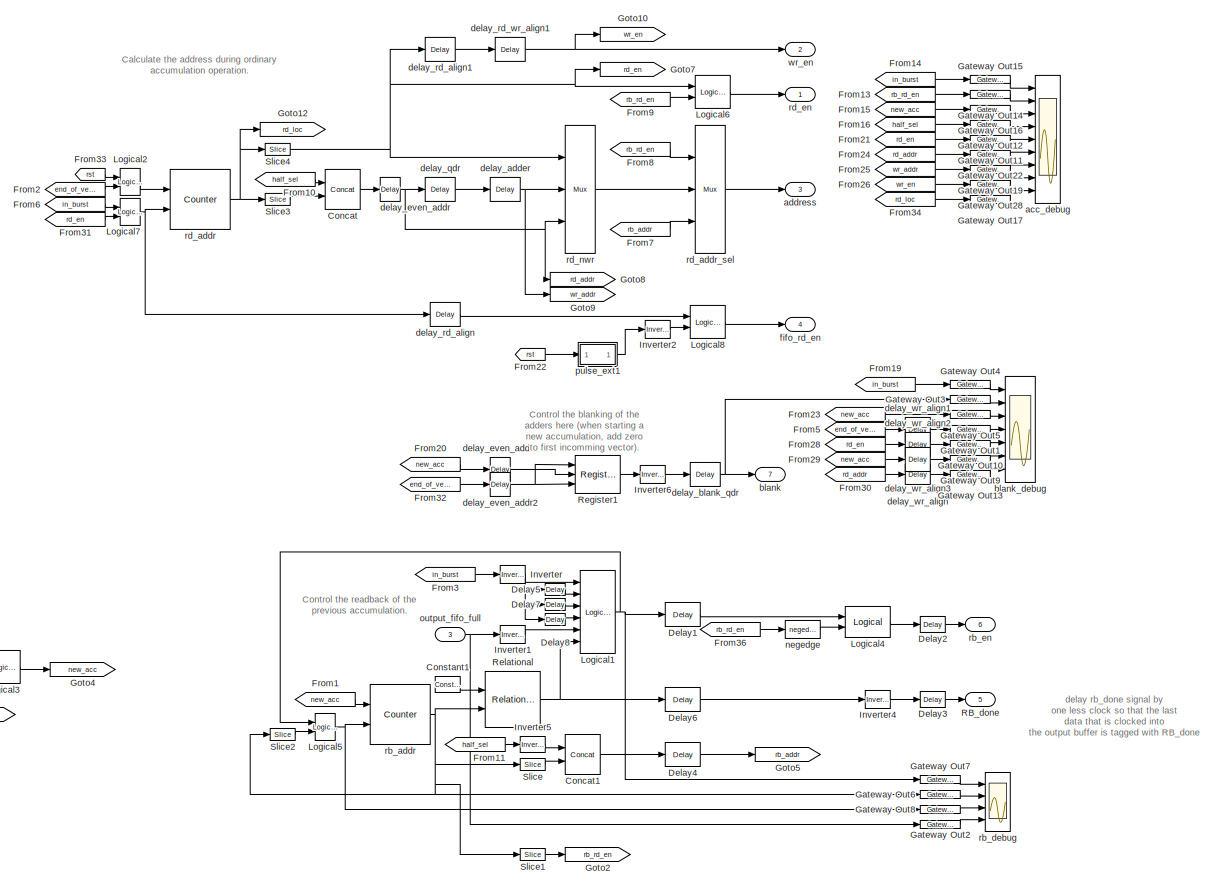
[diagram: qdr_vacc/acc_ctrl - part 1/2, center side, full height]
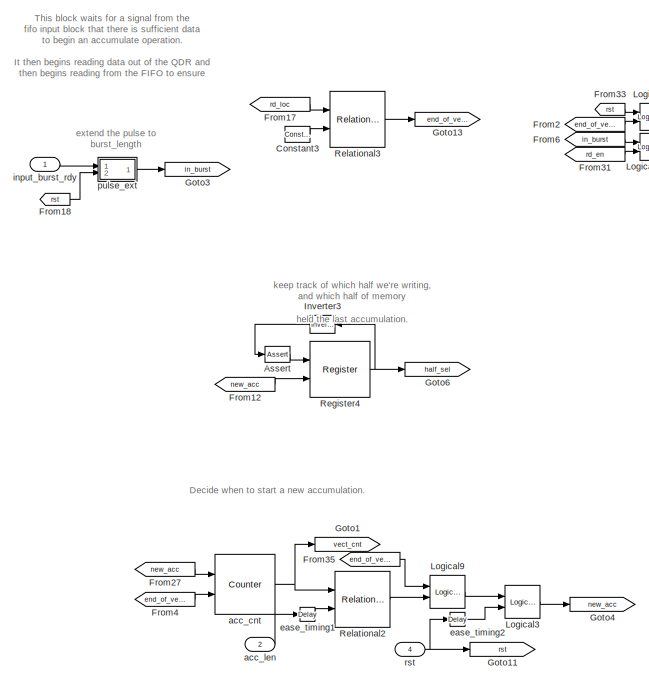
[diagram: qdr_vacc/acc_ctrl - part 2/2, left side, full height]
BLOCK [SubSystem] qdr_vacc/acc_ctrl
  FunctionWithSeparateData = off
  MaskCallbackString = ||
  MaskDescription = QDR delay must be odd (9 is ok, 11 is ok, 10 is not).
  MaskEnableString = on,on,on
  MaskIconFrame = on
  MaskIconOpaque = on
  MaskIconRotate = none
  MaskIconUnits = autoscale
  MaskPromptString = delay qdr|delay_in_fifo|delay_adder
  MaskStyleString = edit,edit,edit
  MaskTabNameString = ,,
  MaskToolTipString = on,on,on
  MaskTunableValueString = on,on,on
  MaskValueString = 11|1|2
  MaskVarAliasString = ,,
  MaskVariables = delay_qdr=@1;delay_in_fifo=@2;delay_adder=@3;
  MaskVisibilityString = on,on,on
  MinAlgLoopOccurrences = off
  Ports = [4, 7]
  RTWSystemCode = Auto
BLOCK [Reference] qdr_vacc/acc_ctrl/Assert  REF=xbsIndex_r4/Assert
  Ports = [1, 1]
  SourceBlock = xbsIndex_r4/Assert
  SourceType = Xilinx Assert Block
  arith_type = Boolean
  assert_rate = on
  assert_type = on
  bin_pt = 14
  block_type = assert
  block_version = 10.1.3
  has_advanced_control = 0
  infoedit = Asserts a user-defined sample rate and/or type on a signal.<P><P>Hardware notes: In hardware this block costs nothing.
  n_bits = 16
  output_port = on
  period = 1
  rate_source = Explicitly
  sg_icon_stat = 25,16,1,1,white,blue,0,f7732e52,right
  sggui_pos = 20,20,336,432
  type_source = Explicitly
BLOCK [Reference] qdr_vacc/acc_ctrl/Concat  REF=xbsIndex_r4/Concat
  Ports = [2, 1]
  SourceBlock = xbsIndex_r4/Concat
  SourceType = Xilinx Bus Concatenator Block
  block_type = concat
  block_version = 10.1.3
  dbl_ovrd = off
  has_advanced_control = 0
  infoedit = Concatenates two or more inputs.  Output will be cast to an unsigned value with the binary point at zero.
  num_inputs = 2
  sg_icon_stat = 35,40,1,1,white,blue,0,df1e5aba,right
  sggui_pos = -1,-1,-1,-1
BLOCK [Reference] qdr_vacc/acc_ctrl/Concat1  REF=xbsIndex_r4/Concat
  Ports = [2, 1]
  SourceBlock = xbsIndex_r4/Concat
  SourceType = Xilinx Bus Concatenator Block
  block_type = concat
  block_version = 10.1.3
  dbl_ovrd = off
  has_advanced_control = 0
  infoedit = Concatenates two or more inputs.  Output will be cast to an unsigned value with the binary point at zero.
  num_inputs = 2
  sg_icon_stat = 35,40,1,1,white,blue,0,df1e5aba,right
  sggui_pos = 20,20,336,162
BLOCK [Reference] qdr_vacc/acc_ctrl/Constant1  REF=xbsIndex_r4/Constant
  Ports = [0, 1]
  SourceBlock = xbsIndex_r4/Constant
  SourceType = Xilinx Constant Block Block
  arith_type = Unsigned
  bin_pt = 0
  block_type = constant
  block_version = 10.1.3
  carry = CIN
  const = vector_len - 1
  dbl_ovrd = off
  dsp48_infoedit = The use of this block for DSP48 instructions is deprecated.  Please use the Opmode block.
  equ = P=C
  explicit_period = on
  has_advanced_control = 0
  inp1 = P
  inp2 = PCIN>>17
  n_bits = vector_bits
  opr = +
  opselect = C
  period = 1
  sg_icon_stat = 25,16,1,1,white,blue,0,8741704a,right
  sg_mask_display = fprintf('','COMMENT: begin icon graphics');\npatch([0 55 55 0 ],[0 0 26 26 ],[0.77 0.82 0.91]);\npatch([20 16 22 16 20 27 29 31 38 32 26 22 28 22 26 32 38 31 29 27 20 ],[3 7 13 19 23 23 21 23 23 17 23 19 13 7 3 9 3 3 5 3 3 ],[0.98 0.96 0.92]);\nplot([0 55 55 0 0 ],[0 0 26 26 0 ]);\nfprintf('','COMMENT: end icon graphics');\nfprintf('','COMMENT: begin icon text');\ncolor('black');port_label('output...<+52ch>
  sggui_pos = 461,565,414,344
BLOCK [Reference] qdr_vacc/acc_ctrl/Constant3  REF=xbsIndex_r4/Constant
  Ports = [0, 1]
  SourceBlock = xbsIndex_r4/Constant
  SourceType = Xilinx Constant Block Block
  arith_type = Unsigned
  bin_pt = 0
  block_type = constant
  block_version = 10.1.3
  carry = CIN
  const = vector_len-1
  dbl_ovrd = off
  dsp48_infoedit = The use of this block for DSP48 instructions is deprecated.  Please use the Opmode block.
  equ = P=C
  explicit_period = on
  has_advanced_control = 0
  inp1 = P
  inp2 = PCIN>>17
  n_bits = vector_bits
  opr = +
  opselect = C
  period = 1
  sg_icon_stat = 25,16,1,1,white,blue,0,8741704a,right
  sg_mask_display = fprintf('','COMMENT: begin icon graphics');\npatch([0 55 55 0 ],[0 0 26 26 ],[0.77 0.82 0.91]);\npatch([20 16 22 16 20 27 29 31 38 32 26 22 28 22 26 32 38 31 29 27 20 ],[3 7 13 19 23 23 21 23 23 17 23 19 13 7 3 9 3 3 5 3 3 ],[0.98 0.96 0.92]);\nplot([0 55 55 0 0 ],[0 0 26 26 0 ]);\nfprintf('','COMMENT: end icon graphics');\nfprintf('','COMMENT: begin icon text');\ncolor('black');port_label('output...<+52ch>
  sggui_pos = 461,565,414,344
BLOCK [Reference] qdr_vacc/acc_ctrl/Delay1  REF=xbsIndex_r4/Delay
  Ports = [1, 1]
  SourceBlock = xbsIndex_r4/Delay
  SourceType = Xilinx Delay Block
  block_type = delay
  block_version = 10.1.3
  dbl_ovrd = off
  en = off
  has_advanced_control = 0
  infoedit = Hardware notes: A delay line is a chain, each link of which is an SRL16 followed by a flip-flop.
  latency = 1
  reg_retiming = on
  sg_icon_stat = 35,24,1,1,white,blue,0,fc531c0e,right
  sggui_pos = 20,20,348,254
  xl_area = [0,0,0,0,0,0,0]
  xl_use_area = off
BLOCK [Reference] qdr_vacc/acc_ctrl/Delay2  REF=xbsIndex_r4/Delay
  Ports = [1, 1]
  SourceBlock = xbsIndex_r4/Delay
  SourceType = Xilinx Delay Block
  block_type = delay
  block_version = 10.1.3
  dbl_ovrd = off
  en = off
  has_advanced_control = 0
  infoedit = Hardware notes: A delay line is a chain, each link of which is an SRL16 followed by a flip-flop.
  latency = delay_qdr
  reg_retiming = on
  sg_icon_stat = 25,16,1,1,white,blue,0,36c42516,right
  sg_mask_display = fprintf('','COMMENT: begin icon graphics');\npatch([0 60 60 0 ],[0 0 56 56 ],[0.77 0.82 0.91]);\npatch([15 6 19 6 15 30 34 38 54 41 29 20 32 20 29 41 54 38 34 30 15 ],[6 15 28 41 50 50 46 50 50 37 49 40 28 16 7 19 6 6 10 6 6 ],[0.98 0.96 0.92]);\nplot([0 60 60 0 0 ],[0 0 56 56 0 ]);\nfprintf('','COMMENT: end icon graphics');\nfprintf('','COMMENT: begin icon text');\ncolor('black');disp('z^{-11}','...<+56ch>  <repeated x6 — deduplicated; at blocks: Delay2, delay_blank_qdr, delay_qdr, delay_rd_align1, qdr_del_comp, qdr_del_comp1>
  sggui_pos = 20,20,348,254
  xl_area = [0,0,0,0,0,0,0]
  xl_use_area = off
BLOCK [Reference] qdr_vacc/acc_ctrl/Delay3  REF=xbsIndex_r4/Delay
  Ports = [1, 1]
  SourceBlock = xbsIndex_r4/Delay
  SourceType = Xilinx Delay Block
  block_type = delay
  block_version = 10.1.3
  dbl_ovrd = off
  en = off
  has_advanced_control = 0
  infoedit = Hardware notes: A delay line is a chain, each link of which is an SRL16 followed by a flip-flop.
  latency = delay_qdr-1
  reg_retiming = on
  sg_icon_stat = 25,16,1,1,white,blue,0,fc1feff4,right
  sg_mask_display = fprintf('','COMMENT: begin icon graphics');\npatch([0 60 60 0 ],[0 0 56 56 ],[0.77 0.82 0.91]);\npatch([15 6 19 6 15 30 34 38 54 41 29 20 32 20 29 41 54 38 34 30 15 ],[6 15 28 41 50 50 46 50 50 37 49 40 28 16 7 19 6 6 10 6 6 ],[0.98 0.96 0.92]);\nplot([0 60 60 0 0 ],[0 0 56 56 0 ]);\nfprintf('','COMMENT: end icon graphics');\nfprintf('','COMMENT: begin icon text');\ncolor('black');disp('z^{-10}','...<+56ch>
  sggui_pos = 20,20,348,254
  xl_area = [0,0,0,0,0,0,0]
  xl_use_area = off
BLOCK [Reference] qdr_vacc/acc_ctrl/Delay4  REF=xbsIndex_r4/Delay
  Ports = [1, 1]
  SourceBlock = xbsIndex_r4/Delay
  SourceType = Xilinx Delay Block
  block_type = delay
  block_version = 10.1.3
  dbl_ovrd = off
  en = off
  has_advanced_control = 0
  infoedit = Hardware notes: A delay line is a chain, each link of which is an SRL16 followed by a flip-flop.
  latency = 1
  reg_retiming = on
  sg_icon_stat = 35,24,1,1,white,blue,0,fc531c0e,right
  sggui_pos = 20,20,348,254
  xl_area = [0,0,0,0,0,0,0]
  xl_use_area = off
BLOCK [Reference] qdr_vacc/acc_ctrl/Delay5  REF=xbsIndex_r4/Delay
  Ports = [1, 1]
  SourceBlock = xbsIndex_r4/Delay
  SourceType = Xilinx Delay Block
  block_type = delay
  block_version = 10.1.3
  dbl_ovrd = off
  en = off
  has_advanced_control = 0
  infoedit = Hardware notes: A delay line is a chain, each link of which is an SRL16 followed by a flip-flop.
  latency = 3
  reg_retiming = on
  sg_icon_stat = 20,12,1,1,white,blue,0,eabd56db,right
  sg_mask_display = fprintf('','COMMENT: begin icon graphics');\npatch([0 60 60 0 ],[0 0 56 56 ],[0.77 0.82 0.91]);\npatch([15 6 19 6 15 30 34 38 54 41 29 20 32 20 29 41 54 38 34 30 15 ],[6 15 28 41 50 50 46 50 50 37 49 40 28 16 7 19 6 6 10 6 6 ],[0.98 0.96 0.92]);\nplot([0 60 60 0 0 ],[0 0 56 56 0 ]);\nfprintf('','COMMENT: end icon graphics');\nfprintf('','COMMENT: begin icon text');\ncolor('black');disp('z^{-3}','t...<+55ch>
  sggui_pos = 20,20,348,254
  xl_area = [0,0,0,0,0,0,0]
  xl_use_area = off
BLOCK [Reference] qdr_vacc/acc_ctrl/Delay6  REF=xbsIndex_r4/Delay
  Ports = [1, 1]
  SourceBlock = xbsIndex_r4/Delay
  SourceType = Xilinx Delay Block
  block_type = delay
  block_version = 10.1.3
  dbl_ovrd = off
  en = off
  has_advanced_control = 0
  infoedit = Hardware notes: A delay line is a chain, each link of which is an SRL16 followed by a flip-flop.
  latency = 1
  reg_retiming = on
  sg_icon_stat = 35,24,1,1,white,blue,0,fc531c0e,right
  sggui_pos = 20,20,348,254
  xl_area = [0,0,0,0,0,0,0]
  xl_use_area = off
BLOCK [Reference] qdr_vacc/acc_ctrl/Delay7  REF=xbsIndex_r4/Delay
  Ports = [1, 1]
  SourceBlock = xbsIndex_r4/Delay
  SourceType = Xilinx Delay Block
  block_type = delay
  block_version = 10.1.3
  dbl_ovrd = off
  en = off
  has_advanced_control = 0
  infoedit = Hardware notes: A delay line is a chain, each link of which is an SRL16 followed by a flip-flop.
  latency = 2
  reg_retiming = on
  sg_icon_stat = 20,12,1,1,white,blue,0,0a7a6cf1,right
  sggui_pos = 20,20,348,254
  xl_area = [0,0,0,0,0,0,0]
  xl_use_area = off
BLOCK [Reference] qdr_vacc/acc_ctrl/Delay8  REF=xbsIndex_r4/Delay
  Ports = [1, 1]
  SourceBlock = xbsIndex_r4/Delay
  SourceType = Xilinx Delay Block
  block_type = delay
  block_version = 10.1.3
  dbl_ovrd = off
  en = off
  has_advanced_control = 0
  infoedit = Hardware notes: A delay line is a chain, each link of which is an SRL16 followed by a flip-flop.
  latency = 1
  reg_retiming = on
  sg_icon_stat = 20,12,1,1,white,blue,0,fc531c0e,right
  sggui_pos = 20,20,348,254
  xl_area = [0,0,0,0,0,0,0]
  xl_use_area = off
BLOCK [From] qdr_vacc/acc_ctrl/From1
  CloseFcn = tagdialog Close
  GotoTag = new_acc
BLOCK [From] qdr_vacc/acc_ctrl/From10
  CloseFcn = tagdialog Close
  GotoTag = half_sel
BLOCK [From] qdr_vacc/acc_ctrl/From11
  CloseFcn = tagdialog Close
  GotoTag = half_sel
BLOCK [From] qdr_vacc/acc_ctrl/From12
  CloseFcn = tagdialog Close
  GotoTag = new_acc
BLOCK [From] qdr_vacc/acc_ctrl/From13
  CloseFcn = tagdialog Close
  GotoTag = rb_rd_en
BLOCK [From] qdr_vacc/acc_ctrl/From14
  CloseFcn = tagdialog Close
  GotoTag = in_burst
BLOCK [From] qdr_vacc/acc_ctrl/From15
  CloseFcn = tagdialog Close
  GotoTag = new_acc
BLOCK [From] qdr_vacc/acc_ctrl/From16
  CloseFcn = tagdialog Close
  GotoTag = half_sel
BLOCK [From] qdr_vacc/acc_ctrl/From17
  CloseFcn = tagdialog Close
  GotoTag = rd_loc
BLOCK [From] qdr_vacc/acc_ctrl/From18
  CloseFcn = tagdialog Close
  GotoTag = rst
BLOCK [From] qdr_vacc/acc_ctrl/From19
  CloseFcn = tagdialog Close
  GotoTag = in_burst
BLOCK [From] qdr_vacc/acc_ctrl/From2
  CloseFcn = tagdialog Close
  GotoTag = end_of_vector
BLOCK [From] qdr_vacc/acc_ctrl/From20
  CloseFcn = tagdialog Close
  GotoTag = new_acc
BLOCK [From] qdr_vacc/acc_ctrl/From21
  CloseFcn = tagdialog Close
  GotoTag = rd_en
BLOCK [From] qdr_vacc/acc_ctrl/From22
  CloseFcn = tagdialog Close
  GotoTag = rst
BLOCK [From] qdr_vacc/acc_ctrl/From23
  CloseFcn = tagdialog Close
  GotoTag = new_acc
BLOCK [From] qdr_vacc/acc_ctrl/From24
  CloseFcn = tagdialog Close
  GotoTag = rd_addr
BLOCK [From] qdr_vacc/acc_ctrl/From25
  CloseFcn = tagdialog Close
  GotoTag = wr_addr
BLOCK [From] qdr_vacc/acc_ctrl/From26
  CloseFcn = tagdialog Close
  GotoTag = wr_en
BLOCK [From] qdr_vacc/acc_ctrl/From27
  CloseFcn = tagdialog Close
  GotoTag = new_acc
BLOCK [From] qdr_vacc/acc_ctrl/From28
  CloseFcn = tagdialog Close
  GotoTag = rd_en
BLOCK [From] qdr_vacc/acc_ctrl/From29
  CloseFcn = tagdialog Close
  GotoTag = new_acc
BLOCK [From] qdr_vacc/acc_ctrl/From3
  CloseFcn = tagdialog Close
  GotoTag = in_burst
BLOCK [From] qdr_vacc/acc_ctrl/From30
  CloseFcn = tagdialog Close
  GotoTag = rd_addr
BLOCK [From] qdr_vacc/acc_ctrl/From31
  CloseFcn = tagdialog Close
  GotoTag = rd_en
BLOCK [From] qdr_vacc/acc_ctrl/From32
  CloseFcn = tagdialog Close
  GotoTag = end_of_vector
BLOCK [From] qdr_vacc/acc_ctrl/From33
  CloseFcn = tagdialog Close
  GotoTag = rst
BLOCK [From] qdr_vacc/acc_ctrl/From34
  CloseFcn = tagdialog Close
  GotoTag = rd_loc
BLOCK [From] qdr_vacc/acc_ctrl/From35
  CloseFcn = tagdialog Close
  GotoTag = end_of_vector
BLOCK [From] qdr_vacc/acc_ctrl/From36
  CloseFcn = tagdialog Close
  GotoTag = rb_rd_en
BLOCK [From] qdr_vacc/acc_ctrl/From4
  CloseFcn = tagdialog Close
  GotoTag = end_of_vector
BLOCK [From] qdr_vacc/acc_ctrl/From5
  CloseFcn = tagdialog Close
  GotoTag = end_of_vector
BLOCK [From] qdr_vacc/acc_ctrl/From6
  CloseFcn = tagdialog Close
  GotoTag = in_burst
BLOCK [From] qdr_vacc/acc_ctrl/From7
  CloseFcn = tagdialog Close
  GotoTag = rb_addr
BLOCK [From] qdr_vacc/acc_ctrl/From8
  CloseFcn = tagdialog Close
  GotoTag = rb_rd_en
BLOCK [From] qdr_vacc/acc_ctrl/From9
  CloseFcn = tagdialog Close
  GotoTag = rb_rd_en
BLOCK [Reference] qdr_vacc/acc_ctrl/Gateway Out1  REF=xbsIndex_r4/Gateway Out
  LOCs = {}
  Ports = [1, 1]
  SourceBlock = xbsIndex_r4/Gateway Out
  SourceType = Xilinx Gateway Out Block
  block_type = gatewayout
  block_version = 10.1.3
  has_advanced_control = 0
  hdl_port = off
  locs_specified = off
  sg_icon_stat = 40,8,1,1,white,grey,0,b3a044a9,right
  sggui_pos = 20,20,336,384
  timing_constraint = None
  xl_area = [0, 0, 0, 0, 0, 0, 0]
  xl_use_area = off
BLOCK [Reference] qdr_vacc/acc_ctrl/Gateway Out10  REF=xbsIndex_r4/Gateway Out
  LOCs = {}
  Ports = [1, 1]
  SourceBlock = xbsIndex_r4/Gateway Out
  SourceType = Xilinx Gateway Out Block
  block_type = gatewayout
  block_version = 10.1.3
  has_advanced_control = 0
  hdl_port = off
  locs_specified = off
  sg_icon_stat = 40,8,1,1,white,grey,0,b3a044a9,right
  sggui_pos = 20,20,336,384
  timing_constraint = None
  xl_area = [0, 0, 0, 0, 0, 0, 0]
  xl_use_area = off
BLOCK [Reference] qdr_vacc/acc_ctrl/Gateway Out11  REF=xbsIndex_r4/Gateway Out
  LOCs = {}
  Ports = [1, 1]
  SourceBlock = xbsIndex_r4/Gateway Out
  SourceType = Xilinx Gateway Out Block
  block_type = gatewayout
  block_version = 10.1.3
  has_advanced_control = 0
  hdl_port = off
  locs_specified = off
  sg_icon_stat = 40,8,1,1,white,grey,0,b3a044a9,right
  sggui_pos = 20,20,336,384
  timing_constraint = None
  xl_area = [0, 0, 0, 0, 0, 0, 0]
  xl_use_area = off
BLOCK [Reference] qdr_vacc/acc_ctrl/Gateway Out12  REF=xbsIndex_r4/Gateway Out
  LOCs = {}
  Ports = [1, 1]
  SourceBlock = xbsIndex_r4/Gateway Out
  SourceType = Xilinx Gateway Out Block
  block_type = gatewayout
  block_version = 10.1.3
  has_advanced_control = 0
  hdl_port = off
  locs_specified = off
  sg_icon_stat = 40,8,1,1,white,grey,0,b3a044a9,right
  sggui_pos = 20,20,336,384
  timing_constraint = None
  xl_area = [0, 0, 0, 0, 0, 0, 0]
  xl_use_area = off
BLOCK [Reference] qdr_vacc/acc_ctrl/Gateway Out13  REF=xbsIndex_r4/Gateway Out
  LOCs = {}
  Ports = [1, 1]
  SourceBlock = xbsIndex_r4/Gateway Out
  SourceType = Xilinx Gateway Out Block
  block_type = gatewayout
  block_version = 10.1.3
  has_advanced_control = 0
  hdl_port = off
  locs_specified = off
  sg_icon_stat = 40,8,1,1,white,grey,0,b3a044a9,right
  sggui_pos = 20,20,336,384
  timing_constraint = None
  xl_area = [0, 0, 0, 0, 0, 0, 0]
  xl_use_area = off
BLOCK [Reference] qdr_vacc/acc_ctrl/Gateway Out14  REF=xbsIndex_r4/Gateway Out
  LOCs = {}
  Ports = [1, 1]
  SourceBlock = xbsIndex_r4/Gateway Out
  SourceType = Xilinx Gateway Out Block
  block_type = gatewayout
  block_version = 10.1.3
  has_advanced_control = 0
  hdl_port = off
  locs_specified = off
  sg_icon_stat = 40,8,1,1,white,grey,0,b3a044a9,right
  sggui_pos = 20,20,336,384
  timing_constraint = None
  xl_area = [0, 0, 0, 0, 0, 0, 0]
  xl_use_area = off
BLOCK [Reference] qdr_vacc/acc_ctrl/Gateway Out15  REF=xbsIndex_r4/Gateway Out
  LOCs = {}
  Ports = [1, 1]
  SourceBlock = xbsIndex_r4/Gateway Out
  SourceType = Xilinx Gateway Out Block
  block_type = gatewayout
  block_version = 10.1.3
  has_advanced_control = 0
  hdl_port = off
  locs_specified = off
  sg_icon_stat = 40,8,1,1,white,grey,0,b3a044a9,right
  sggui_pos = 20,20,336,384
  timing_constraint = None
  xl_area = [0, 0, 0, 0, 0, 0, 0]
  xl_use_area = off
BLOCK [Reference] qdr_vacc/acc_ctrl/Gateway Out16  REF=xbsIndex_r4/Gateway Out
  LOCs = {}
  Ports = [1, 1]
  SourceBlock = xbsIndex_r4/Gateway Out
  SourceType = Xilinx Gateway Out Block
  block_type = gatewayout
  block_version = 10.1.3
  has_advanced_control = 0
  hdl_port = off
  locs_specified = off
  sg_icon_stat = 40,8,1,1,white,grey,0,b3a044a9,right
  sggui_pos = 20,20,336,384
  timing_constraint = None
  xl_area = [0, 0, 0, 0, 0, 0, 0]
  xl_use_area = off
BLOCK [Reference] qdr_vacc/acc_ctrl/Gateway Out17  REF=xbsIndex_r4/Gateway Out
  LOCs = {}
  Ports = [1, 1]
  SourceBlock = xbsIndex_r4/Gateway Out
  SourceType = Xilinx Gateway Out Block
  block_type = gatewayout
  block_version = 10.1.3
  has_advanced_control = 0
  hdl_port = off
  locs_specified = off
  sg_icon_stat = 40,8,1,1,white,grey,0,b3a044a9,right
  sggui_pos = 20,20,336,384
  timing_constraint = None
  xl_area = [0, 0, 0, 0, 0, 0, 0]
  xl_use_area = off
BLOCK [Reference] qdr_vacc/acc_ctrl/Gateway Out19  REF=xbsIndex_r4/Gateway Out
  LOCs = {}
  Ports = [1, 1]
  SourceBlock = xbsIndex_r4/Gateway Out
  SourceType = Xilinx Gateway Out Block
  block_type = gatewayout
  block_version = 10.1.3
  has_advanced_control = 0
  hdl_port = off
  locs_specified = off
  sg_icon_stat = 40,8,1,1,white,grey,0,b3a044a9,right
  sggui_pos = 20,20,336,384
  timing_constraint = None
  xl_area = [0, 0, 0, 0, 0, 0, 0]
  xl_use_area = off
BLOCK [Reference] qdr_vacc/acc_ctrl/Gateway Out2  REF=xbsIndex_r4/Gateway Out
  LOCs = {}
  Ports = [1, 1]
  SourceBlock = xbsIndex_r4/Gateway Out
  SourceType = Xilinx Gateway Out Block
  block_type = gatewayout
  block_version = 10.1.3
  has_advanced_control = 0
  hdl_port = off
  locs_specified = off
  sg_icon_stat = 40,8,1,1,white,grey,0,b3a044a9,right
  sggui_pos = 20,20,336,384
  timing_constraint = None
  xl_area = [0, 0, 0, 0, 0, 0, 0]
  xl_use_area = off
BLOCK [Reference] qdr_vacc/acc_ctrl/Gateway Out22  REF=xbsIndex_r4/Gateway Out
  LOCs = {}
  Ports = [1, 1]
  SourceBlock = xbsIndex_r4/Gateway Out
  SourceType = Xilinx Gateway Out Block
  block_type = gatewayout
  block_version = 10.1.3
  has_advanced_control = 0
  hdl_port = off
  locs_specified = off
  sg_icon_stat = 40,8,1,1,white,grey,0,b3a044a9,right
  sggui_pos = 20,20,336,384
  timing_constraint = None
  xl_area = [0, 0, 0, 0, 0, 0, 0]
  xl_use_area = off
BLOCK [Reference] qdr_vacc/acc_ctrl/Gateway Out28  REF=xbsIndex_r4/Gateway Out
  LOCs = {}
  Ports = [1, 1]
  SourceBlock = xbsIndex_r4/Gateway Out
  SourceType = Xilinx Gateway Out Block
  block_type = gatewayout
  block_version = 10.1.3
  has_advanced_control = 0
  hdl_port = off
  locs_specified = off
  sg_icon_stat = 40,8,1,1,white,grey,0,b3a044a9,right
  sggui_pos = 20,20,336,384
  timing_constraint = None
  xl_area = [0, 0, 0, 0, 0, 0, 0]
  xl_use_area = off
BLOCK [Reference] qdr_vacc/acc_ctrl/Gateway Out3  REF=xbsIndex_r4/Gateway Out
  LOCs = {}
  Ports = [1, 1]
  SourceBlock = xbsIndex_r4/Gateway Out
  SourceType = Xilinx Gateway Out Block
  block_type = gatewayout
  block_version = 10.1.3
  has_advanced_control = 0
  hdl_port = off
  locs_specified = off
  sg_icon_stat = 40,8,1,1,white,grey,0,b3a044a9,right
  sggui_pos = 20,20,336,384
  timing_constraint = None
  xl_area = [0, 0, 0, 0, 0, 0, 0]
  xl_use_area = off
BLOCK [Reference] qdr_vacc/acc_ctrl/Gateway Out4  REF=xbsIndex_r4/Gateway Out
  LOCs = {}
  Ports = [1, 1]
  SourceBlock = xbsIndex_r4/Gateway Out
  SourceType = Xilinx Gateway Out Block
  block_type = gatewayout
  block_version = 10.1.3
  has_advanced_control = 0
  hdl_port = off
  locs_specified = off
  sg_icon_stat = 40,8,1,1,white,grey,0,b3a044a9,right
  sggui_pos = 20,20,336,384
  timing_constraint = None
  xl_area = [0, 0, 0, 0, 0, 0, 0]
  xl_use_area = off
BLOCK [Reference] qdr_vacc/acc_ctrl/Gateway Out5  REF=xbsIndex_r4/Gateway Out
  LOCs = {}
  Ports = [1, 1]
  SourceBlock = xbsIndex_r4/Gateway Out
  SourceType = Xilinx Gateway Out Block
  block_type = gatewayout
  block_version = 10.1.3
  has_advanced_control = 0
  hdl_port = off
  locs_specified = off
  sg_icon_stat = 40,8,1,1,white,grey,0,b3a044a9,right
  sggui_pos = 20,20,336,384
  timing_constraint = None
  xl_area = [0, 0, 0, 0, 0, 0, 0]
  xl_use_area = off
BLOCK [Reference] qdr_vacc/acc_ctrl/Gateway Out6  REF=xbsIndex_r4/Gateway Out
  LOCs = {}
  Ports = [1, 1]
  SourceBlock = xbsIndex_r4/Gateway Out
  SourceType = Xilinx Gateway Out Block
  block_type = gatewayout
  block_version = 10.1.3
  has_advanced_control = 0
  hdl_port = off
  locs_specified = off
  sg_icon_stat = 40,8,1,1,white,grey,0,b3a044a9,right
  sggui_pos = 20,20,336,384
  timing_constraint = None
  xl_area = [0, 0, 0, 0, 0, 0, 0]
  xl_use_area = off
BLOCK [Reference] qdr_vacc/acc_ctrl/Gateway Out7  REF=xbsIndex_r4/Gateway Out
  LOCs = {}
  Ports = [1, 1]
  SourceBlock = xbsIndex_r4/Gateway Out
  SourceType = Xilinx Gateway Out Block
  block_type = gatewayout
  block_version = 10.1.3
  has_advanced_control = 0
  hdl_port = off
  locs_specified = off
  sg_icon_stat = 40,8,1,1,white,grey,0,b3a044a9,right
  sggui_pos = 20,20,336,384
  timing_constraint = None
  xl_area = [0, 0, 0, 0, 0, 0, 0]
  xl_use_area = off
BLOCK [Reference] qdr_vacc/acc_ctrl/Gateway Out8  REF=xbsIndex_r4/Gateway Out
  LOCs = {}
  Ports = [1, 1]
  SourceBlock = xbsIndex_r4/Gateway Out
  SourceType = Xilinx Gateway Out Block
  block_type = gatewayout
  block_version = 10.1.3
  has_advanced_control = 0
  hdl_port = off
  locs_specified = off
  sg_icon_stat = 40,8,1,1,white,grey,0,b3a044a9,right
  sggui_pos = 20,20,336,384
  timing_constraint = None
  xl_area = [0, 0, 0, 0, 0, 0, 0]
  xl_use_area = off
BLOCK [Reference] qdr_vacc/acc_ctrl/Gateway Out9  REF=xbsIndex_r4/Gateway Out
  LOCs = {}
  Ports = [1, 1]
  SourceBlock = xbsIndex_r4/Gateway Out
  SourceType = Xilinx Gateway Out Block
  block_type = gatewayout
  block_version = 10.1.3
  has_advanced_control = 0
  hdl_port = off
  locs_specified = off
  sg_icon_stat = 40,8,1,1,white,grey,0,b3a044a9,right
  sggui_pos = 20,20,336,384
  timing_constraint = None
  xl_area = [0, 0, 0, 0, 0, 0, 0]
  xl_use_area = off
BLOCK [Goto] qdr_vacc/acc_ctrl/Goto1
  GotoTag = vect_cnt
  TagVisibility = local
BLOCK [Goto] qdr_vacc/acc_ctrl/Goto10
  GotoTag = wr_en
  TagVisibility = local
BLOCK [Goto] qdr_vacc/acc_ctrl/Goto11
  GotoTag = rst
  TagVisibility = local
BLOCK [Goto] qdr_vacc/acc_ctrl/Goto12
  GotoTag = rd_loc
  TagVisibility = local
BLOCK [Goto] qdr_vacc/acc_ctrl/Goto13
  GotoTag = end_of_vector
  TagVisibility = local
BLOCK [Goto] qdr_vacc/acc_ctrl/Goto2
  GotoTag = rb_rd_en
  TagVisibility = local
BLOCK [Goto] qdr_vacc/acc_ctrl/Goto3
  GotoTag = in_burst
  TagVisibility = local
BLOCK [Goto] qdr_vacc/acc_ctrl/Goto4
  GotoTag = new_acc
  TagVisibility = local
BLOCK [Goto] qdr_vacc/acc_ctrl/Goto5
  GotoTag = rb_addr
  TagVisibility = local
BLOCK [Goto] qdr_vacc/acc_ctrl/Goto6
  GotoTag = half_sel
  TagVisibility = local
BLOCK [Goto] qdr_vacc/acc_ctrl/Goto7
  GotoTag = rd_en
  TagVisibility = local
BLOCK [Goto] qdr_vacc/acc_ctrl/Goto8
  GotoTag = rd_addr
  TagVisibility = local
BLOCK [Goto] qdr_vacc/acc_ctrl/Goto9
  GotoTag = wr_addr
  TagVisibility = local
BLOCK [Reference] qdr_vacc/acc_ctrl/Inverter  REF=xbsIndex_r4/Inverter
  Ports = [1, 1]
  SourceBlock = xbsIndex_r4/Inverter
  SourceType = Xilinx Inverter Block
  block_type = inv
  block_version = 10.1.3
  dbl_ovrd = off
  en = off
  has_advanced_control = 0
  infoedit = Bitwise logical negation (one's complement) operator.
  latency = 0
  sg_icon_stat = 25,18,1,1,white,blue,0,1ab4a85f,right
  sggui_pos = 20,20,348,248
  xl_area = [0,0,0,0,0,0,0]
  xl_use_area = off
BLOCK [Reference] qdr_vacc/acc_ctrl/Inverter1  REF=xbsIndex_r4/Inverter
  Ports = [1, 1]
  SourceBlock = xbsIndex_r4/Inverter
  SourceType = Xilinx Inverter Block
  block_type = inv
  block_version = 10.1.3
  dbl_ovrd = off
  en = off
  has_advanced_control = 0
  infoedit = Bitwise logical negation (one's complement) operator.
  latency = 0
  sg_icon_stat = 25,18,1,1,white,blue,0,1ab4a85f,right
  sggui_pos = 20,20,348,248
  xl_area = [0,0,0,0,0,0,0]
  xl_use_area = off
BLOCK [Reference] qdr_vacc/acc_ctrl/Inverter2  REF=xbsIndex_r4/Inverter
  Ports = [1, 1]
  SourceBlock = xbsIndex_r4/Inverter
  SourceType = Xilinx Inverter Block
  block_type = inv
  block_version = 10.1.3
  dbl_ovrd = off
  en = off
  has_advanced_control = 0
  infoedit = Bitwise logical negation (one's complement) operator.
  latency = 0
  sg_icon_stat = 25,18,1,1,white,blue,0,1ab4a85f,right
  sggui_pos = 20,20,348,248
  xl_area = [0,0,0,0,0,0,0]
  xl_use_area = off
BLOCK [Reference] qdr_vacc/acc_ctrl/Inverter3  REF=xbsIndex_r4/Inverter
  Ports = [1, 1]
  SourceBlock = xbsIndex_r4/Inverter
  SourceType = Xilinx Inverter Block
  block_type = inv
  block_version = 10.1.3
  dbl_ovrd = off
  en = off
  has_advanced_control = 0
  infoedit = Bitwise logical negation (one's complement) operator.
  latency = 0
  sg_icon_stat = 25,18,1,1,white,blue,0,1ab4a85f,left
  sggui_pos = 20,20,348,248
  xl_area = [0,0,0,0,0,0,0]
  xl_use_area = off
BLOCK [Reference] qdr_vacc/acc_ctrl/Inverter4  REF=xbsIndex_r4/Inverter
  Ports = [1, 1]
  SourceBlock = xbsIndex_r4/Inverter
  SourceType = Xilinx Inverter Block
  block_type = inv
  block_version = 10.1.3
  dbl_ovrd = off
  en = off
  has_advanced_control = 0
  infoedit = Bitwise logical negation (one's complement) operator.
  latency = 0
  sg_icon_stat = 25,18,1,1,white,blue,0,1ab4a85f,right
  sggui_pos = -1,-1,-1,-1
  xl_area = [0,0,0,0,0,0,0]
  xl_use_area = off
BLOCK [Reference] qdr_vacc/acc_ctrl/Inverter5  REF=xbsIndex_r4/Inverter
  Ports = [1, 1]
  SourceBlock = xbsIndex_r4/Inverter
  SourceType = Xilinx Inverter Block
  block_type = inv
  block_version = 10.1.3
  dbl_ovrd = off
  en = off
  has_advanced_control = 0
  infoedit = Bitwise logical negation (one's complement) operator.
  latency = 0
  sg_icon_stat = 25,16,1,1,white,blue,0,1ab4a85f,right
  sggui_pos = -1,-1,-1,-1
  xl_area = [0,0,0,0,0,0,0]
  xl_use_area = off
BLOCK [Reference] qdr_vacc/acc_ctrl/Inverter6  REF=xbsIndex_r4/Inverter
  Ports = [1, 1]
  SourceBlock = xbsIndex_r4/Inverter
  SourceType = Xilinx Inverter Block
  block_type = inv
  block_version = 10.1.3
  dbl_ovrd = off
  en = off
  has_advanced_control = 0
  infoedit = Bitwise logical negation (one's complement) operator.
  latency = 0
  sg_icon_stat = 25,18,1,1,white,blue,0,1ab4a85f,right
  sggui_pos = 20,20,348,248
  xl_area = [0,0,0,0,0,0,0]
  xl_use_area = off
BLOCK [Reference] qdr_vacc/acc_ctrl/Logical1  REF=xbsIndex_r4/Logical
  Ports = [6, 1]
  SourceBlock = xbsIndex_r4/Logical
  SourceType = Xilinx Logical Block Block
  align_bp = on
  arith_type = Unsigned
  bin_pt = 0
  block_type = logical
  block_version = 10.1.3
  dbl_ovrd = off
  en = off
  has_advanced_control = 0
  inputs = 6
  latency = 0
  logical_function = AND
  n_bits = 16
  precision = Full
  sg_icon_stat = 35,83,1,1,white,blue,0,47fea6b7,right
  sg_mask_display = fprintf('','COMMENT: begin icon graphics');\npatch([0 35 35 0 ],[0 0 83 83 ],[0.77 0.82 0.91]);\npatch([8 2 10 2 8 17 20 23 33 25 18 13 21 13 18 25 33 23 20 17 8 ],[28 34 42 50 56 56 53 56 56 48 55 50 42 34 29 36 28 28 31 28 28 ],[0.98 0.96 0.92]);\nplot([0 35 35 0 0 ],[0 0 83 83 0 ]);\nfprintf('','COMMENT: end icon graphics');\nfprintf('','COMMENT: begin icon text');\ncolor('black');disp('\\newli...<+79ch>
  sggui_pos = 20,20,348,262
  xl_area = [0,0,0,0,0,0,0]
  xl_use_area = off
BLOCK [Reference] qdr_vacc/acc_ctrl/Logical2  REF=xbsIndex_r4/Logical
  Ports = [2, 1]
  SourceBlock = xbsIndex_r4/Logical
  SourceType = Xilinx Logical Block Block
  align_bp = on
  arith_type = Unsigned
  bin_pt = 0
  block_type = logical
  block_version = 10.1.3
  dbl_ovrd = off
  en = off
  has_advanced_control = 0
  inputs = 2
  latency = 0
  logical_function = OR
  n_bits = 16
  precision = Full
  sg_icon_stat = 20,27,1,1,white,blue,0,f4a65842,right
  sggui_pos = 20,20,348,262
  xl_area = [0,0,0,0,0,0,0]
  xl_use_area = off
BLOCK [Reference] qdr_vacc/acc_ctrl/Logical3  REF=xbsIndex_r4/Logical
  Ports = [2, 1]
  SourceBlock = xbsIndex_r4/Logical
  SourceType = Xilinx Logical Block Block
  align_bp = on
  arith_type = Unsigned
  bin_pt = 0
  block_type = logical
  block_version = 10.1.3
  dbl_ovrd = off
  en = off
  has_advanced_control = 0
  inputs = 2
  latency = 0
  logical_function = OR
  n_bits = 16
  precision = Full
  sg_icon_stat = 35,33,1,1,white,blue,0,f4a65842,right
  sggui_pos = 20,20,348,262
  xl_area = [0,0,0,0,0,0,0]
  xl_use_area = off
BLOCK [Reference] qdr_vacc/acc_ctrl/Logical4  REF=xbsIndex_r4/Logical
  Ports = [2, 1]
  SourceBlock = xbsIndex_r4/Logical
  SourceType = Xilinx Logical Block Block
  align_bp = on
  arith_type = Unsigned
  bin_pt = 0
  block_type = logical
  block_version = 10.1.3
  dbl_ovrd = off
  en = off
  has_advanced_control = 0
  inputs = 2
  latency = 0
  logical_function = OR
  n_bits = 16
  precision = Full
  sg_icon_stat = 45,31,1,1,white,blue,0,f4a65842,right
  sggui_pos = 20,20,348,262
  xl_area = [0,0,0,0,0,0,0]
  xl_use_area = off
BLOCK [Reference] qdr_vacc/acc_ctrl/Logical5  REF=xbsIndex_r4/Logical
  Ports = [2, 1]
  SourceBlock = xbsIndex_r4/Logical
  SourceType = Xilinx Logical Block Block
  align_bp = on
  arith_type = Unsigned
  bin_pt = 0
  block_type = logical
  block_version = 10.1.3
  dbl_ovrd = off
  en = off
  has_advanced_control = 0
  inputs = 2
  latency = 0
  logical_function = OR
  n_bits = 16
  precision = Full
  sg_icon_stat = 20,27,1,1,white,blue,0,f4a65842,right
  sggui_pos = 20,20,348,262
  xl_area = [0,0,0,0,0,0,0]
  xl_use_area = off
BLOCK [Reference] qdr_vacc/acc_ctrl/Logical6  REF=xbsIndex_r4/Logical
  Ports = [2, 1]
  SourceBlock = xbsIndex_r4/Logical
  SourceType = Xilinx Logical Block Block
  align_bp = on
  arith_type = Unsigned
  bin_pt = 0
  block_type = logical
  block_version = 10.1.3
  dbl_ovrd = off
  en = off
  has_advanced_control = 0
  inputs = 2
  latency = 0
  logical_function = OR
  n_bits = 16
  precision = Full
  sg_icon_stat = 35,33,1,1,white,blue,0,f4a65842,right
  sggui_pos = 20,20,348,262
  xl_area = [0,0,0,0,0,0,0]
  xl_use_area = off
BLOCK [Reference] qdr_vacc/acc_ctrl/Logical7  REF=xbsIndex_r4/Logical
  Ports = [2, 1]
  SourceBlock = xbsIndex_r4/Logical
  SourceType = Xilinx Logical Block Block
  align_bp = on
  arith_type = Unsigned
  bin_pt = 0
  block_type = logical
  block_version = 10.1.3
  dbl_ovrd = off
  en = off
  has_advanced_control = 0
  inputs = 2
  latency = 0
  logical_function = OR
  n_bits = 16
  precision = Full
  sg_icon_stat = 20,27,1,1,white,blue,0,f4a65842,right
  sggui_pos = 20,20,348,262
  xl_area = [0,0,0,0,0,0,0]
  xl_use_area = off
BLOCK [Reference] qdr_vacc/acc_ctrl/Logical8  REF=xbsIndex_r4/Logical
  Ports = [2, 1]
  SourceBlock = xbsIndex_r4/Logical
  SourceType = Xilinx Logical Block Block
  align_bp = on
  arith_type = Unsigned
  bin_pt = 0
  block_type = logical
  block_version = 10.1.3
  dbl_ovrd = off
  en = off
  has_advanced_control = 0
  inputs = 2
  latency = 0
  logical_function = AND
  n_bits = 16
  precision = Full
  sg_icon_stat = 35,33,1,1,white,blue,0,087b5522,right
  sggui_pos = 20,20,348,262
  xl_area = [0,0,0,0,0,0,0]
  xl_use_area = off
BLOCK [Reference] qdr_vacc/acc_ctrl/Logical9  REF=xbsIndex_r4/Logical
  Ports = [2, 1]
  SourceBlock = xbsIndex_r4/Logical
  SourceType = Xilinx Logical Block Block
  align_bp = on
  arith_type = Unsigned
  bin_pt = 0
  block_type = logical
  block_version = 10.1.3
  dbl_ovrd = off
  en = off
  has_advanced_control = 0
  inputs = 2
  latency = 0
  logical_function = AND
  n_bits = 16
  precision = Full
  sg_icon_stat = 35,33,1,1,white,blue,0,087b5522,right
  sggui_pos = 20,20,348,262
  xl_area = [0,0,0,0,0,0,0]
  xl_use_area = off
BLOCK [Outport] qdr_vacc/acc_ctrl/RB_done
  IconDisplay = Port number
  OutDataType = sfix(16)
  OutScaling = 2^0
  Port = 5
BLOCK [Reference] qdr_vacc/acc_ctrl/Register1  REF=xbsIndex_r4/Register
  Ports = [3, 1]
  SourceBlock = xbsIndex_r4/Register
  SourceType = Xilinx Register Block
  block_type = register
  block_version = 10.1.3
  dbl_ovrd = off
  en = on
  has_advanced_control = 0
  init = 0
  rst = on
  sg_icon_stat = 45,38,1,1,white,blue,0,923c1847,right
  sg_mask_display = fprintf('','COMMENT: begin icon graphics');\npatch([0 60 60 0 ],[0 0 56 56 ],[0.77 0.82 0.91]);\npatch([15 6 19 6 15 30 34 38 54 41 29 20 32 20 29 41 54 38 34 30 15 ],[6 15 28 41 50 50 46 50 50 37 49 40 28 16 7 19 6 6 10 6 6 ],[0.98 0.96 0.92]);\nplot([0 60 60 0 0 ],[0 0 56 56 0 ]);\nfprintf('','COMMENT: end icon graphics');\nfprintf('','COMMENT: begin icon text');\ncolor('black');port_label('inpu...<+237ch>
  sggui_pos = 20,20,348,192
  xl_area = [0,0,0,0,0,0,0]
  xl_use_area = off
BLOCK [Reference] qdr_vacc/acc_ctrl/Register4  REF=xbsIndex_r4/Register
  Ports = [2, 1]
  SourceBlock = xbsIndex_r4/Register
  SourceType = Xilinx Register Block
  block_type = register
  block_version = 10.1.3
  dbl_ovrd = off
  en = on
  has_advanced_control = 0
  init = 0
  rst = off
  sg_icon_stat = 60,56,1,1,white,blue,0,cc3303a0,right
  sg_mask_display = fprintf('','COMMENT: begin icon graphics');\npatch([0 60 60 0 ],[0 0 56 56 ],[0.77 0.82 0.91]);\npatch([15 6 19 6 15 30 34 38 54 41 29 20 32 20 29 41 54 38 34 30 15 ],[6 15 28 41 50 50 46 50 50 37 49 40 28 16 7 19 6 6 10 6 6 ],[0.98 0.96 0.92]);\nplot([0 60 60 0 0 ],[0 0 56 56 0 ]);\nfprintf('','COMMENT: end icon graphics');\nfprintf('','COMMENT: begin icon text');\ncolor('black');port_label('inpu...<+192ch>
  sggui_pos = 20,20,348,192
  xl_area = [0,0,0,0,0,0,0]
  xl_use_area = off
BLOCK [Reference] qdr_vacc/acc_ctrl/Relational  REF=xbsIndex_r4/Relational
  Ports = [2, 1]
  SourceBlock = xbsIndex_r4/Relational
  SourceType = Xilinx Arithmetic Relational Operator Block
  block_type = relational
  block_version = 10.1.3
  dbl_ovrd = off
  en = off
  has_advanced_control = 0
  latency = 0
  mode = a>=b
  sg_icon_stat = 55,56,1,1,white,blue,0,6d6ac162,right
  sggui_pos = 20,20,348,192
  xl_area = [0,0,0,0,0,0,0]
  xl_use_area = off
BLOCK [Reference] qdr_vacc/acc_ctrl/Relational2  REF=xbsIndex_r4/Relational
  Ports = [2, 1]
  SourceBlock = xbsIndex_r4/Relational
  SourceType = Xilinx Arithmetic Relational Operator Block
  block_type = relational
  block_version = 10.1.3
  dbl_ovrd = off
  en = off
  has_advanced_control = 0
  latency = 0
  mode = a>=b
  sg_icon_stat = 55,56,1,1,white,blue,0,6d6ac162,right
  sggui_pos = 20,20,348,192
  xl_area = [0,0,0,0,0,0,0]
  xl_use_area = off
BLOCK [Reference] qdr_vacc/acc_ctrl/Relational3  REF=xbsIndex_r4/Relational
  Ports = [2, 1]
  SourceBlock = xbsIndex_r4/Relational
  SourceType = Xilinx Arithmetic Relational Operator Block
  block_type = relational
  block_version = 10.1.3
  dbl_ovrd = off
  en = off
  has_advanced_control = 0
  latency = 0
  mode = a>=b
  sg_icon_stat = 55,56,1,1,white,blue,0,6d6ac162,right
  sggui_pos = 20,20,348,192
  xl_area = [0,0,0,0,0,0,0]
  xl_use_area = off
BLOCK [Reference] qdr_vacc/acc_ctrl/Slice  REF=xbsIndex_r4/Slice
  Ports = [1, 1]
  SourceBlock = xbsIndex_r4/Slice
  SourceType = Xilinx Bit Slice Extractor Block
  base0 = LSB of Input
  base1 = MSB of Input
  bit0 = 1
  bit1 = 0
  block_type = slice
  block_version = 10.1.3
  boolean_output = off
  dbl_ovrd = off
  has_advanced_control = 0
  mode = Lower Bit Location + Width
  nbits = vector_bits-1
  sg_icon_stat = 25,12,1,1,white,blue,0,b1026674,right
  sggui_pos = 20,20,460,380
BLOCK [Reference] qdr_vacc/acc_ctrl/Slice1  REF=xbsIndex_r4/Slice
  Ports = [1, 1]
  SourceBlock = xbsIndex_r4/Slice
  SourceType = Xilinx Bit Slice Extractor Block
  base0 = LSB of Input
  base1 = MSB of Input
  bit0 = 0
  bit1 = -1
  block_type = slice
  block_version = 10.1.3
  boolean_output = on
  dbl_ovrd = off
  has_advanced_control = 0
  mode = Lower Bit Location + Width
  nbits = 1
  sg_icon_stat = 25,12,1,1,white,blue,0,b1026674,right
  sggui_pos = 20,20,460,380
BLOCK [Reference] qdr_vacc/acc_ctrl/Slice2  REF=xbsIndex_r4/Slice
  Ports = [1, 1]
  SourceBlock = xbsIndex_r4/Slice
  SourceType = Xilinx Bit Slice Extractor Block
  base0 = LSB of Input
  base1 = MSB of Input
  bit0 = 0
  bit1 = -1
  block_type = slice
  block_version = 10.1.3
  boolean_output = on
  dbl_ovrd = off
  has_advanced_control = 0
  mode = Lower Bit Location + Width
  nbits = 1
  sg_icon_stat = 25,12,1,1,white,blue,0,b1026674,right
  sggui_pos = 20,20,460,380
BLOCK [Reference] qdr_vacc/acc_ctrl/Slice3  REF=xbsIndex_r4/Slice
  Ports = [1, 1]
  SourceBlock = xbsIndex_r4/Slice
  SourceType = Xilinx Bit Slice Extractor Block
  base0 = LSB of Input
  base1 = MSB of Input
  bit0 = 1
  bit1 = 0
  block_type = slice
  block_version = 10.1.3
  boolean_output = off
  dbl_ovrd = off
  has_advanced_control = 0
  mode = Two Bit Locations
  nbits = 1
  sg_icon_stat = 25,12,1,1,white,blue,0,b1026674,right
  sggui_pos = 20,20,460,380
BLOCK [Reference] qdr_vacc/acc_ctrl/Slice4  REF=xbsIndex_r4/Slice
  Ports = [1, 1]
  SourceBlock = xbsIndex_r4/Slice
  SourceType = Xilinx Bit Slice Extractor Block
  base0 = LSB of Input
  base1 = MSB of Input
  bit0 = 0
  bit1 = -1
  block_type = slice
  block_version = 10.1.3
  boolean_output = on
  dbl_ovrd = off
  has_advanced_control = 0
  mode = Lower Bit Location + Width
  nbits = 1
  sg_icon_stat = 25,12,1,1,white,blue,0,b1026674,right
  sggui_pos = 20,20,460,380
BLOCK [Reference] qdr_vacc/acc_ctrl/acc_cnt  REF=xbsIndex_r4/Counter
  Ports = [2, 1]
  SourceBlock = xbsIndex_r4/Counter
  SourceType = Xilinx Counter Block
  arith_type = Unsigned
  bin_pt = 0
  block_type = counter
  block_version = 10.1.3
  cnt_by_val = 1
  cnt_to = Inf
  cnt_type = Free Running
  dbl_ovrd = off
  en = on
  explicit_period = on
  has_advanced_control = 0
  implementation = Fabric
  infoedit = Hardware notes: Free running counters are the least expensive in hardware.  A count limited counter is implemented by combining a counter with a comparator.
  load_pin = off
  n_bits = 32
  operation = Up
  period = 1
  rst = on
  sg_icon_stat = 60,60,1,1,white,blue,0,46c73e85,right
  sg_mask_display = fprintf('','COMMENT: begin icon graphics');\npatch([0 60 60 0 ],[0 0 60 60 ],[0.77 0.82 0.91]);\npatch([14 4 18 4 14 30 34 38 55 42 29 20 35 20 29 42 55 38 34 30 14 ],[6 16 30 44 54 54 50 54 54 41 54 45 30 15 6 19 6 6 10 6 6 ],[0.98 0.96 0.92]);\nplot([0 60 60 0 0 ],[0 0 60 60 0 ]);\nfprintf('','COMMENT: end icon graphics');\nfprintf('','COMMENT: begin icon text');\ncolor('black');port_label('inpu...<+143ch>  <repeated x5 — deduplicated; at blocks: acc_cnt, rb_addr, rd_addr, sync_count, Counter>
  sggui_pos = 20,20,348,618
  start_count = 1
  use_behavioral_HDL = off
  use_rpm = off
  xl_area = [0,0,0,0,0,0,0]
  xl_use_area = off
BLOCK [Scope] qdr_vacc/acc_ctrl/acc_debug
  DataFormat = StructureWithTime
  Floating = off
  LimitDataPoints = off
  NumInputPorts = 9
  Ports = [9]
  SampleTime = 0
  SaveName = ScopeData5
  TimeRange = 10000
  YMax = 1~1~1~1.05~1~1100~1100~1~5
  YMin = 0~-1~-1~0.95~0~500~500~0~-5
  ZoomMode = xonly
BLOCK [Inport] qdr_vacc/acc_ctrl/acc_len
  IconDisplay = Port number
  OutDataType = sfix(16)
  OutScaling = 2^0
  Port = 2
BLOCK [Outport] qdr_vacc/acc_ctrl/address
  IconDisplay = Port number
  OutDataType = sfix(16)
  OutScaling = 2^0
  Port = 3
BLOCK [Outport] qdr_vacc/acc_ctrl/blank
  IconDisplay = Port number
  OutDataType = sfix(16)
  OutScaling = 2^0
  Port = 7
BLOCK [Scope] qdr_vacc/acc_ctrl/blank_debug
  DataFormat = StructureWithTime
  Floating = off
  LimitDataPoints = off
  NumInputPorts = 7
  Ports = [7]
  SampleTime = 0
  SaveName = ScopeData6
  TimeRange = 10000
  YMax = 1~1~1~1~1~1~1250
  YMin = 0~-1~0~0~0~0~0
  ZoomMode = xonly
BLOCK [Reference] qdr_vacc/acc_ctrl/delay_adder  REF=xbsIndex_r4/Delay
  Ports = [1, 1]
  SourceBlock = xbsIndex_r4/Delay
  SourceType = Xilinx Delay Block
  block_type = delay
  block_version = 10.1.3
  dbl_ovrd = off
  en = off
  has_advanced_control = 0
  infoedit = Hardware notes: A delay line is a chain, each link of which is an SRL16 followed by a flip-flop.
  latency = delay_adder
  reg_retiming = off
  sg_icon_stat = 30,24,1,1,white,blue,0,0a7a6cf1,right
  sggui_pos = 20,20,348,254
  xl_area = [0,0,0,0,0,0,0]
  xl_use_area = off
BLOCK [Reference] qdr_vacc/acc_ctrl/delay_blank_qdr  REF=xbsIndex_r4/Delay
  Ports = [1, 1]
  SourceBlock = xbsIndex_r4/Delay
  SourceType = Xilinx Delay Block
  block_type = delay
  block_version = 10.1.3
  dbl_ovrd = off
  en = off
  has_advanced_control = 0
  infoedit = Hardware notes: A delay line is a chain, each link of which is an SRL16 followed by a flip-flop.
  latency = delay_qdr
  reg_retiming = on
  sg_icon_stat = 30,24,1,1,white,blue,0,36c42516,right
  sggui_pos = 20,20,348,254
  xl_area = [0,0,0,0,0,0,0]
  xl_use_area = off
BLOCK [Reference] qdr_vacc/acc_ctrl/delay_even_addr  REF=xbsIndex_r4/Delay
  Ports = [1, 1]
  SourceBlock = xbsIndex_r4/Delay
  SourceType = Xilinx Delay Block
  block_type = delay
  block_version = 10.1.3
  dbl_ovrd = off
  en = off
  has_advanced_control = 0
  infoedit = Hardware notes: A delay line is a chain, each link of which is an SRL16 followed by a flip-flop.
  latency = 1
  reg_retiming = on
  sg_icon_stat = 20,24,1,1,white,blue,0,fc531c0e,right
  sggui_pos = 20,20,348,254
  xl_area = [0,0,0,0,0,0,0]
  xl_use_area = off
BLOCK [Reference] qdr_vacc/acc_ctrl/delay_even_addr1  REF=xbsIndex_r4/Delay
  Ports = [1, 1]
  SourceBlock = xbsIndex_r4/Delay
  SourceType = Xilinx Delay Block
  block_type = delay
  block_version = 10.1.3
  dbl_ovrd = off
  en = off
  has_advanced_control = 0
  infoedit = Hardware notes: A delay line is a chain, each link of which is an SRL16 followed by a flip-flop.
  latency = 1
  reg_retiming = on
  sg_icon_stat = 20,24,1,1,white,blue,0,fc531c0e,right
  sggui_pos = 20,20,348,254
  xl_area = [0,0,0,0,0,0,0]
  xl_use_area = off
BLOCK [Reference] qdr_vacc/acc_ctrl/delay_even_addr2  REF=xbsIndex_r4/Delay
  Ports = [1, 1]
  SourceBlock = xbsIndex_r4/Delay
  SourceType = Xilinx Delay Block
  block_type = delay
  block_version = 10.1.3
  dbl_ovrd = off
  en = off
  has_advanced_control = 0
  infoedit = Hardware notes: A delay line is a chain, each link of which is an SRL16 followed by a flip-flop.
  latency = 1
  reg_retiming = on
  sg_icon_stat = 20,24,1,1,white,blue,0,fc531c0e,right
  sggui_pos = 20,20,348,254
  xl_area = [0,0,0,0,0,0,0]
  xl_use_area = off
BLOCK [Reference] qdr_vacc/acc_ctrl/delay_qdr  REF=xbsIndex_r4/Delay
  Ports = [1, 1]
  SourceBlock = xbsIndex_r4/Delay
  SourceType = Xilinx Delay Block
  block_type = delay
  block_version = 10.1.3
  dbl_ovrd = off
  en = off
  has_advanced_control = 0
  infoedit = Hardware notes: A delay line is a chain, each link of which is an SRL16 followed by a flip-flop.
  latency = delay_qdr
  reg_retiming = off
  sg_icon_stat = 30,24,1,1,white,blue,0,36c42516,right
  sggui_pos = 20,20,348,254
  xl_area = [0,0,0,0,0,0,0]
  xl_use_area = off
BLOCK [Reference] qdr_vacc/acc_ctrl/delay_rd_align  REF=xbsIndex_r4/Delay
  Ports = [1, 1]
  SourceBlock = xbsIndex_r4/Delay
  SourceType = Xilinx Delay Block
  block_type = delay
  block_version = 10.1.3
  dbl_ovrd = off
  en = off
  has_advanced_control = 0
  infoedit = Hardware notes: A delay line is a chain, each link of which is an SRL16 followed by a flip-flop.
  latency = delay_qdr-delay_in_fifo
  reg_retiming = off
  sg_icon_stat = 30,24,1,1,white,blue,0,fc1feff4,right
  sg_mask_display = fprintf('','COMMENT: begin icon graphics');\npatch([0 60 60 0 ],[0 0 56 56 ],[0.77 0.82 0.91]);\npatch([15 6 19 6 15 30 34 38 54 41 29 20 32 20 29 41 54 38 34 30 15 ],[6 15 28 41 50 50 46 50 50 37 49 40 28 16 7 19 6 6 10 6 6 ],[0.98 0.96 0.92]);\nplot([0 60 60 0 0 ],[0 0 56 56 0 ]);\nfprintf('','COMMENT: end icon graphics');\nfprintf('','COMMENT: begin icon text');\ncolor('black');disp('z^{-10}','...<+56ch>
  sggui_pos = 20,20,348,254
  xl_area = [0,0,0,0,0,0,0]
  xl_use_area = off
BLOCK [Reference] qdr_vacc/acc_ctrl/delay_rd_align1  REF=xbsIndex_r4/Delay
  Ports = [1, 1]
  SourceBlock = xbsIndex_r4/Delay
  SourceType = Xilinx Delay Block
  block_type = delay
  block_version = 10.1.3
  dbl_ovrd = off
  en = off
  has_advanced_control = 0
  infoedit = Hardware notes: A delay line is a chain, each link of which is an SRL16 followed by a flip-flop.
  latency = delay_qdr
  reg_retiming = off
  sg_icon_stat = 30,24,1,1,white,blue,0,36c42516,right
  sggui_pos = 20,20,348,254
  xl_area = [0,0,0,0,0,0,0]
  xl_use_area = off
BLOCK [Reference] qdr_vacc/acc_ctrl/delay_rd_wr_align1  REF=xbsIndex_r4/Delay
  Ports = [1, 1]
  SourceBlock = xbsIndex_r4/Delay
  SourceType = Xilinx Delay Block
  block_type = delay
  block_version = 10.1.3
  dbl_ovrd = off
  en = off
  has_advanced_control = 0
  infoedit = Hardware notes: A delay line is a chain, each link of which is an SRL16 followed by a flip-flop.
  latency = delay_adder
  reg_retiming = off
  sg_icon_stat = 30,24,1,1,white,blue,0,0a7a6cf1,right
  sggui_pos = 20,20,348,254
  xl_area = [0,0,0,0,0,0,0]
  xl_use_area = off
BLOCK [Reference] qdr_vacc/acc_ctrl/delay_wr_align  REF=xbsIndex_r4/Delay
  Ports = [1, 1]
  SourceBlock = xbsIndex_r4/Delay
  SourceType = Xilinx Delay Block
  block_type = delay
  block_version = 10.1.3
  dbl_ovrd = off
  en = off
  has_advanced_control = 0
  infoedit = Hardware notes: A delay line is a chain, each link of which is an SRL16 followed by a flip-flop.
  latency = delay_qdr
  reg_retiming = off
  sg_icon_stat = 25,20,1,1,white,blue,0,36c42516,right
  sg_mask_display = fprintf('','COMMENT: begin icon graphics');\npatch([0 25 25 0 ],[0 0 20 20 ],[0.77 0.82 0.91]);\npatch([7 4 9 4 7 12 13 14 20 16 12 9 14 9 12 16 20 14 13 12 7 ],[2 5 10 15 18 18 17 18 18 14 18 15 10 5 2 6 2 2 3 2 2 ],[0.98 0.96 0.92]);\nplot([0 25 25 0 0 ],[0 0 20 20 0 ]);\nfprintf('','COMMENT: end icon graphics');\nfprintf('','COMMENT: begin icon text');\ncolor('black');disp('z^{-11}','texmode','...<+46ch>
  sggui_pos = 20,20,348,254
  xl_area = [0,0,0,0,0,0,0]
  xl_use_area = off
BLOCK [Reference] qdr_vacc/acc_ctrl/delay_wr_align1  REF=xbsIndex_r4/Delay
  Ports = [1, 1]
  SourceBlock = xbsIndex_r4/Delay
  SourceType = Xilinx Delay Block
  block_type = delay
  block_version = 10.1.3
  dbl_ovrd = off
  en = off
  has_advanced_control = 0
  infoedit = Hardware notes: A delay line is a chain, each link of which is an SRL16 followed by a flip-flop.
  latency = delay_qdr
  reg_retiming = off
  sg_icon_stat = 25,24,1,1,white,blue,0,36c42516,right
  sg_mask_display = fprintf('','COMMENT: begin icon graphics');\npatch([0 25 25 0 ],[0 0 24 24 ],[0.77 0.82 0.91]);\npatch([6 2 8 2 6 12 14 16 23 18 13 9 15 9 13 18 23 16 14 12 6 ],[3 7 13 19 23 23 21 23 23 18 23 19 13 7 3 8 3 3 5 3 3 ],[0.98 0.96 0.92]);\nplot([0 25 25 0 0 ],[0 0 24 24 0 ]);\nfprintf('','COMMENT: end icon graphics');\nfprintf('','COMMENT: begin icon text');\ncolor('black');disp('z^{-11}','texmode','...<+46ch>  <repeated x3 — deduplicated; at blocks: delay_wr_align1, delay_wr_align2, delay_wr_align3>
  sggui_pos = 20,20,348,254
  xl_area = [0,0,0,0,0,0,0]
  xl_use_area = off
BLOCK [Reference] qdr_vacc/acc_ctrl/delay_wr_align2  REF=xbsIndex_r4/Delay
  Ports = [1, 1]
  SourceBlock = xbsIndex_r4/Delay
  SourceType = Xilinx Delay Block
  block_type = delay
  block_version = 10.1.3
  dbl_ovrd = off
  en = off
  has_advanced_control = 0
  infoedit = Hardware notes: A delay line is a chain, each link of which is an SRL16 followed by a flip-flop.
  latency = delay_qdr
  reg_retiming = off
  sg_icon_stat = 25,24,1,1,white,blue,0,36c42516,right
  sggui_pos = 20,20,348,254
  xl_area = [0,0,0,0,0,0,0]
  xl_use_area = off
BLOCK [Reference] qdr_vacc/acc_ctrl/delay_wr_align3  REF=xbsIndex_r4/Delay
  Ports = [1, 1]
  SourceBlock = xbsIndex_r4/Delay
  SourceType = Xilinx Delay Block
  block_type = delay
  block_version = 10.1.3
  dbl_ovrd = off
  en = off
  has_advanced_control = 0
  infoedit = Hardware notes: A delay line is a chain, each link of which is an SRL16 followed by a flip-flop.
  latency = delay_qdr
  reg_retiming = off
  sg_icon_stat = 25,24,1,1,white,blue,0,36c42516,right
  sggui_pos = 20,20,348,254
  xl_area = [0,0,0,0,0,0,0]
  xl_use_area = off
BLOCK [Reference] qdr_vacc/acc_ctrl/ease_timing1  REF=xbsIndex_r4/Delay
  Ports = [1, 1]
  SourceBlock = xbsIndex_r4/Delay
  SourceType = Xilinx Delay Block
  block_type = delay
  block_version = 10.1.3
  dbl_ovrd = off
  en = off
  has_advanced_control = 0
  infoedit = Hardware notes: A delay line is a chain, each link of which is an SRL16 followed by a flip-flop.
  latency = 1
  reg_retiming = on
  sg_icon_stat = 15,14,1,1,white,blue,0,fc531c0e,right
  sggui_pos = 20,20,348,254
  xl_area = [0,0,0,0,0,0,0]
  xl_use_area = off
BLOCK [Reference] qdr_vacc/acc_ctrl/ease_timing2  REF=xbsIndex_r4/Delay
  Ports = [1, 1]
  SourceBlock = xbsIndex_r4/Delay
  SourceType = Xilinx Delay Block
  block_type = delay
  block_version = 10.1.3
  dbl_ovrd = off
  en = off
  has_advanced_control = 0
  infoedit = Hardware notes: A delay line is a chain, each link of which is an SRL16 followed by a flip-flop.
  latency = 1
  reg_retiming = on
  sg_icon_stat = 15,14,1,1,white,blue,0,fc531c0e,right
  sggui_pos = 20,20,348,254
  xl_area = [0,0,0,0,0,0,0]
  xl_use_area = off
BLOCK [Outport] qdr_vacc/acc_ctrl/fifo_rd_en
  IconDisplay = Port number
  OutDataType = sfix(16)
  OutScaling = 2^0
  Port = 4
BLOCK [Inport] qdr_vacc/acc_ctrl/input_burst_rdy
  IconDisplay = Port number
  OutDataType = sfix(16)
  OutScaling = 2^0
BLOCK [Reference] qdr_vacc/acc_ctrl/negedge  REF=casper_library/Misc/negedge  (lib defined in mdl_138b2fc3435f, mdl_4ed325b712b3, +2 more)
  FunctionWithSeparateData = off
  Ports = [1, 1]
  RTWMemSecDataConstants = Inherit from model
  RTWMemSecDataInternal = Inherit from model
  RTWMemSecDataParameters = Inherit from model
  RTWMemSecFuncExecute = Inherit from model
  RTWMemSecFuncInitTerm = Inherit from model
  ShowPortLabels = FromPortIcon
  SourceBlock = casper_library/Misc/negedge
  SourceType = negedge
  SystemSampleTime = -1
  Tag = Rising Edge Detector
BLOCK [Inport] qdr_vacc/acc_ctrl/output_fifo_full
  IconDisplay = Port number
  OutDataType = sfix(16)
  OutScaling = 2^0
  Port = 3
BLOCK [SubSystem] qdr_vacc/acc_ctrl/pulse_ext
  AncestorBlock = casper_library/Misc/pulse_ext
  FunctionWithSeparateData = off
  MaskDescription = Extends a boolean signal to be high for the specified number of clocks after\nthe last high input.
  MaskEnableString = on
  MaskHelp = eval('xlWeb([getenv(''MLIB_ROOT''), ''<path>''])')
  MaskIconFrame = on
  MaskIconOpaque = on
  MaskIconRotate = none
  MaskIconUnits = autoscale
  MaskInitialization = bits = ceil(log2(pulse_len+1));
  MaskPromptString = Length of Pulse
  MaskStyleString = edit
  MaskToolTipString = on
  MaskTunableValueString = on
  MaskType = pulse_ext
  MaskValueString = burst_len
  MaskVariables = pulse_len=@1;
  MaskVisibilityString = on
  MinAlgLoopOccurrences = off
  Ports = [2, 1]
  RTWSystemCode = Auto
BLOCK [Reference] qdr_vacc/acc_ctrl/pulse_ext/Constant1  REF=xbsIndex_r4/Constant
  Ports = [0, 1]
  SourceBlock = xbsIndex_r4/Constant
  SourceType = Xilinx Constant Block Block
  arith_type = Unsigned
  bin_pt = 0
  block_type = constant
  block_version = 9.1.01
  carry = CIN
  const = pulse_len
  dbl_ovrd = off
  dsp48_infoedit = The use of this block for DSP48 instructions is deprecated.  Please use the Opmode block.
  equ = P=C
  explicit_period = off
  has_advanced_control = 0
  inp1 = P
  inp2 = PCIN>>17
  n_bits = bits
  opr = +
  opselect = C
  period = 1
  sg_icon_stat = 20,14,1,1,white,blue,0,636e1b21,right
  sg_mask_display = fprintf('','COMMENT: begin icon graphics');\npatch([0 20 20 0 ],[0 0 14 14 ],[0.77 0.82 0.91]);\npatch([6 4 7 4 6 10 11 12 16 13 10 8 11 8 10 13 16 12 11 10 6 ],[2 4 7 10 12 12 11 12 12 9 12 10 7 4 2 5 2 2 3 2 2 ],[0.98 0.96 0.92]);\nplot([0 20 20 0 0 ],[0 0 14 14 0 ]);\nfprintf('','COMMENT: end icon graphics');\nfprintf('','COMMENT: begin icon text');\ncolor('black');port_label('output',1,'16');\...<+40ch>
  sggui_pos = 20,20,414,344
BLOCK [Reference] qdr_vacc/acc_ctrl/pulse_ext/Constant5  REF=xbsIndex_r4/Constant
  Ports = [0, 1]
  SourceBlock = xbsIndex_r4/Constant
  SourceType = Xilinx Constant Block Block
  arith_type = Unsigned
  bin_pt = 0
  block_type = constant
  block_version = 9.1.01
  carry = CIN
  const = pulse_len
  dbl_ovrd = off
  dsp48_infoedit = The use of this block for DSP48 instructions is deprecated.  Please use the Opmode block.
  equ = P=C
  explicit_period = off
  has_advanced_control = 0
  inp1 = P
  inp2 = PCIN>>17
  n_bits = bits
  opr = +
  opselect = C
  period = 1
  sg_icon_stat = 20,22,1,1,white,blue,0,636e1b21,right
  sg_mask_display = fprintf('','COMMENT: begin icon graphics');\npatch([0 20 20 0 ],[0 0 22 22 ],[0.77 0.82 0.91]);\npatch([4 1 6 1 4 9 10 11 17 13 9 6 11 6 9 13 17 11 10 9 4 ],[3 6 11 16 19 19 18 19 19 15 19 16 11 6 3 7 3 3 4 3 3 ],[0.98 0.96 0.92]);\nplot([0 20 20 0 0 ],[0 0 22 22 0 ]);\nfprintf('','COMMENT: end icon graphics');\nfprintf('','COMMENT: begin icon text');\ncolor('black');port_label('output',1,'16');\n...<+39ch>
  sggui_pos = 20,20,414,344
BLOCK [Reference] qdr_vacc/acc_ctrl/pulse_ext/Counter3  REF=xbsIndex_r4/Counter
  Ports = [4, 1]
  SourceBlock = xbsIndex_r4/Counter
  SourceType = Xilinx Counter Block
  arith_type = Unsigned
  bin_pt = 0
  block_type = counter
  block_version = 9.1.01
  cnt_by_val = 1
  cnt_to = 1023
  cnt_type = Free Running
  dbl_ovrd = off
  en = on
  explicit_period = on
  has_advanced_control = 0
  implementation = Fabric
  infoedit = Hardware notes: Free running counters are the least expensive in hardware.  A count limited counter is implemented by combining a counter with a comparator.
  load_pin = on
  n_bits = bits
  operation = Up
  period = 1
  rst = on
  sg_icon_stat = 50,55,1,1,white,blue,0,a6c633f8,right
  sg_mask_display = fprintf('','COMMENT: begin icon graphics');\npatch([0 50 50 0 ],[0 0 55 55 ],[0.77 0.82 0.91]);\npatch([11 3 15 3 11 24 28 32 46 35 24 16 28 16 24 35 46 32 28 24 11 ],[8 16 28 40 48 48 44 48 48 37 48 40 28 16 8 19 8 8 12 8 8 ],[0.98 0.96 0.92]);\nplot([0 50 50 0 0 ],[0 0 55 55 0 ]);\nfprintf('','COMMENT: end icon graphics');\nfprintf('','COMMENT: begin icon text');\ncolor('black');port_label('inpu...<+234ch>
  sggui_pos = 20,20,348,618
  start_count = 0
  use_behavioral_HDL = off
  use_rpm = on
  xl_area = [0, 0, 0, 0, 0, 0, 0]
  xl_use_area = off
BLOCK [Reference] qdr_vacc/acc_ctrl/pulse_ext/Gateway Out1  REF=xbsIndex_r4/Gateway Out
  LOCs = {}
  Ports = [1, 1]
  SourceBlock = xbsIndex_r4/Gateway Out
  SourceType = Xilinx Gateway Out Block
  block_type = gatewayout
  block_version = 10.1.3
  has_advanced_control = 0
  hdl_port = off
  locs_specified = off
  sg_icon_stat = 40,8,1,1,white,grey,0,b3a044a9,right
  sggui_pos = 20,20,336,384
  timing_constraint = None
  xl_area = [0, 0, 0, 0, 0, 0, 0]
  xl_use_area = off
BLOCK [Reference] qdr_vacc/acc_ctrl/pulse_ext/Gateway Out2  REF=xbsIndex_r4/Gateway Out
  LOCs = {}
  Ports = [1, 1]
  SourceBlock = xbsIndex_r4/Gateway Out
  SourceType = Xilinx Gateway Out Block
  block_type = gatewayout
  block_version = 10.1.3
  has_advanced_control = 0
  hdl_port = off
  locs_specified = off
  sg_icon_stat = 40,8,1,1,white,grey,0,b3a044a9,right
  sggui_pos = 20,20,336,384
  timing_constraint = None
  xl_area = [0, 0, 0, 0, 0, 0, 0]
  xl_use_area = off
BLOCK [Reference] qdr_vacc/acc_ctrl/pulse_ext/Gateway Out3  REF=xbsIndex_r4/Gateway Out
  LOCs = {}
  Ports = [1, 1]
  SourceBlock = xbsIndex_r4/Gateway Out
  SourceType = Xilinx Gateway Out Block
  block_type = gatewayout
  block_version = 10.1.3
  has_advanced_control = 0
  hdl_port = off
  locs_specified = off
  sg_icon_stat = 40,8,1,1,white,grey,0,b3a044a9,right
  sggui_pos = 20,20,336,384
  timing_constraint = None
  xl_area = [0, 0, 0, 0, 0, 0, 0]
  xl_use_area = off
BLOCK [Reference] qdr_vacc/acc_ctrl/pulse_ext/Gateway Out31  REF=xbsIndex_r4/Gateway Out
  LOCs = {}
  Ports = [1, 1]
  SourceBlock = xbsIndex_r4/Gateway Out
  SourceType = Xilinx Gateway Out Block
  block_type = gatewayout
  block_version = 10.1.3
  has_advanced_control = 0
  hdl_port = off
  locs_specified = off
  sg_icon_stat = 40,8,1,1,white,grey,0,b3a044a9,right
  sggui_pos = 20,20,336,384
  timing_constraint = None
  xl_area = [0, 0, 0, 0, 0, 0, 0]
  xl_use_area = off
BLOCK [Reference] qdr_vacc/acc_ctrl/pulse_ext/Logical1  REF=xbsIndex_r4/Logical
  Ports = [2, 1]
  SourceBlock = xbsIndex_r4/Logical
  SourceType = Xilinx Logical Block Block
  align_bp = on
  arith_type = Unsigned
  bin_pt = 0
  block_type = logical
  block_version = 10.1.3
  dbl_ovrd = off
  en = off
  has_advanced_control = 0
  inputs = 2
  latency = 0
  logical_function = OR
  n_bits = 16
  precision = Full
  sg_icon_stat = 45,31,1,1,white,blue,0,f4a65842,right
  sggui_pos = 20,20,348,262
  xl_area = [0,0,0,0,0,0,0]
  xl_use_area = off
BLOCK [Reference] qdr_vacc/acc_ctrl/pulse_ext/Relational5  REF=xbsIndex_r4/Relational
  Ports = [2, 1]
  SourceBlock = xbsIndex_r4/Relational
  SourceType = Xilinx Arithmetic Relational Operator Block
  block_type = relational
  block_version = 9.1.01
  dbl_ovrd = off
  en = off
  has_advanced_control = 0
  latency = 0
  mode = a!=b
  sg_icon_stat = 45,44,1,1,white,blue,0,1d65505e,right
  sggui_pos = -1,-1,-1,-1
  xl_area = [0, 0, 0, 0, 0, 0, 0]
  xl_use_area = off
BLOCK [Inport] qdr_vacc/acc_ctrl/pulse_ext/in
  IconDisplay = Port number
  OutDataType = sfix(16)
  OutScaling = 2^0
BLOCK [Scope] qdr_vacc/acc_ctrl/pulse_ext/input_debug
  DataFormat = StructureWithTime
  Floating = off
  LimitDataPoints = off
  NumInputPorts = 4
  Ports = [4]
  SampleTime = 0
  SaveName = ScopeData4
  YMax = 13300~1~5~5
  YMin = 12000~0~-5~-5
  ZoomMode = xonly
BLOCK [Outport] qdr_vacc/acc_ctrl/pulse_ext/out
  IconDisplay = Port number
  OutDataType = sfix(16)
  OutScaling = 2^0
BLOCK [Inport] qdr_vacc/acc_ctrl/pulse_ext/rst
  IconDisplay = Port number
  OutDataType = sfix(16)
  OutScaling = 2^0
  Port = 2
BLOCK [SubSystem] qdr_vacc/acc_ctrl/pulse_ext1
  AncestorBlock = casper_library/Misc/pulse_ext
  FunctionWithSeparateData = off
  MaskDescription = Extends a boolean signal to be high for the specified number of clocks after\nthe last high input.
  MaskEnableString = on
  MaskHelp = eval('xlWeb([getenv(''MLIB_ROOT''), ''<path>''])')
  MaskIconFrame = on
  MaskIconOpaque = on
  MaskIconRotate = none
  MaskIconUnits = autoscale
  MaskInitialization = bits = ceil(log2(pulse_len+1));
  MaskPromptString = Length of Pulse
  MaskStyleString = edit
  MaskToolTipString = on
  MaskTunableValueString = on
  MaskType = pulse_ext
  MaskValueString = delay_qdr-delay_in_fifo
  MaskVariables = pulse_len=@1;
  MaskVisibilityString = on
  MinAlgLoopOccurrences = off
  Ports = [1, 1]
  RTWSystemCode = Auto
BLOCK [Reference] qdr_vacc/acc_ctrl/pulse_ext1/Constant5  REF=xbsIndex_r4/Constant
  Ports = [0, 1]
  SourceBlock = xbsIndex_r4/Constant
  SourceType = Xilinx Constant Block Block
  arith_type = Unsigned
  bin_pt = 0
  block_type = constant
  block_version = 9.1.01
  carry = CIN
  const = pulse_len+1
  dbl_ovrd = off
  dsp48_infoedit = The use of this block for DSP48 instructions is deprecated.  Please use the Opmode block.
  equ = P=C
  explicit_period = off
  has_advanced_control = 0
  inp1 = P
  inp2 = PCIN>>17
  n_bits = bits
  opr = +
  opselect = C
  period = 1
  sg_icon_stat = 20,22,1,1,white,blue,0,7157ff2b,right
  sg_mask_display = fprintf('','COMMENT: begin icon graphics');\npatch([0 20 20 0 ],[0 0 22 22 ],[0.77 0.82 0.91]);\npatch([4 1 6 1 4 9 10 11 17 13 9 6 11 6 9 13 17 11 10 9 4 ],[3 6 11 16 19 19 18 19 19 15 19 16 11 6 3 7 3 3 4 3 3 ],[0.98 0.96 0.92]);\nplot([0 20 20 0 0 ],[0 0 22 22 0 ]);\nfprintf('','COMMENT: end icon graphics');\nfprintf('','COMMENT: begin icon text');\ncolor('black');port_label('output',1,'11');\n...<+39ch>
  sggui_pos = 20,20,414,344
BLOCK [Reference] qdr_vacc/acc_ctrl/pulse_ext1/Counter3  REF=xbsIndex_r4/Counter
  Ports = [2, 1]
  SourceBlock = xbsIndex_r4/Counter
  SourceType = Xilinx Counter Block
  arith_type = Unsigned
  bin_pt = 0
  block_type = counter
  block_version = 9.1.01
  cnt_by_val = 1
  cnt_to = 1023
  cnt_type = Free Running
  dbl_ovrd = off
  en = on
  explicit_period = on
  has_advanced_control = 0
  implementation = Fabric
  infoedit = Hardware notes: Free running counters are the least expensive in hardware.  A count limited counter is implemented by combining a counter with a comparator.
  load_pin = off
  n_bits = bits
  operation = Up
  period = 1
  rst = on
  sg_icon_stat = 50,55,1,1,white,blue,0,46c73e85,right
  sg_mask_display = fprintf('','COMMENT: begin icon graphics');\npatch([0 50 50 0 ],[0 0 55 55 ],[0.77 0.82 0.91]);\npatch([11 3 15 3 11 24 28 32 46 35 24 16 28 16 24 35 46 32 28 24 11 ],[8 16 28 40 48 48 44 48 48 37 48 40 28 16 8 19 8 8 12 8 8 ],[0.98 0.96 0.92]);\nplot([0 50 50 0 0 ],[0 0 55 55 0 ]);\nfprintf('','COMMENT: end icon graphics');\nfprintf('','COMMENT: begin icon text');\ncolor('black');port_label('inpu...<+143ch>
  sggui_pos = 20,20,348,618
  start_count = 0
  use_behavioral_HDL = off
  use_rpm = on
  xl_area = [0, 0, 0, 0, 0, 0, 0]
  xl_use_area = off
BLOCK [Reference] qdr_vacc/acc_ctrl/pulse_ext1/Logical  REF=xbsIndex_r4/Logical
  Ports = [2, 1]
  SourceBlock = xbsIndex_r4/Logical
  SourceType = Xilinx Logical Block Block
  align_bp = on
  arith_type = Unsigned
  bin_pt = 0
  block_type = logical
  block_version = 10.1.3
  dbl_ovrd = off
  en = off
  has_advanced_control = 0
  inputs = 2
  latency = 0
  logical_function = AND
  n_bits = 16
  precision = Full
  sg_icon_stat = 45,31,1,1,white,blue,0,087b5522,right
  sggui_pos = 20,20,348,262
  xl_area = [0,0,0,0,0,0,0]
  xl_use_area = off
BLOCK [Reference] qdr_vacc/acc_ctrl/pulse_ext1/Logical1  REF=xbsIndex_r4/Logical
  Ports = [2, 1]
  SourceBlock = xbsIndex_r4/Logical
  SourceType = Xilinx Logical Block Block
  align_bp = on
  arith_type = Unsigned
  bin_pt = 0
  block_type = logical
  block_version = 10.1.3
  dbl_ovrd = off
  en = off
  has_advanced_control = 0
  inputs = 2
  latency = 0
  logical_function = OR
  n_bits = 16
  precision = Full
  sg_icon_stat = 45,31,1,1,white,blue,0,f4a65842,right
  sggui_pos = 20,20,348,262
  xl_area = [0,0,0,0,0,0,0]
  xl_use_area = off
BLOCK [Reference] qdr_vacc/acc_ctrl/pulse_ext1/Register  REF=xbsIndex_r4/Register
  Ports = [2, 1]
  SourceBlock = xbsIndex_r4/Register
  SourceType = Xilinx Register Block
  block_type = register
  block_version = 10.1.3
  dbl_ovrd = off
  en = on
  has_advanced_control = 0
  init = 0
  rst = off
  sg_icon_stat = 60,56,1,1,white,blue,0,cc3303a0,right
  sg_mask_display = fprintf('','COMMENT: begin icon graphics');\npatch([0 60 60 0 ],[0 0 56 56 ],[0.77 0.82 0.91]);\npatch([15 6 19 6 15 30 34 38 54 41 29 20 32 20 29 41 54 38 34 30 15 ],[6 15 28 41 50 50 46 50 50 37 49 40 28 16 7 19 6 6 10 6 6 ],[0.98 0.96 0.92]);\nplot([0 60 60 0 0 ],[0 0 56 56 0 ]);\nfprintf('','COMMENT: end icon graphics');\nfprintf('','COMMENT: begin icon text');\ncolor('black');port_label('inpu...<+192ch>
  sggui_pos = 20,20,348,192
  xl_area = [0,0,0,0,0,0,0]
  xl_use_area = off
BLOCK [Reference] qdr_vacc/acc_ctrl/pulse_ext1/Relational5  REF=xbsIndex_r4/Relational
  Ports = [2, 1]
  SourceBlock = xbsIndex_r4/Relational
  SourceType = Xilinx Arithmetic Relational Operator Block
  block_type = relational
  block_version = 9.1.01
  dbl_ovrd = off
  en = off
  has_advanced_control = 0
  latency = 0
  mode = a!=b
  sg_icon_stat = 45,44,1,1,white,blue,0,1d65505e,right
  sggui_pos = -1,-1,-1,-1
  xl_area = [0, 0, 0, 0, 0, 0, 0]
  xl_use_area = off
BLOCK [Inport] qdr_vacc/acc_ctrl/pulse_ext1/in
  IconDisplay = Port number
  OutDataType = sfix(16)
  OutScaling = 2^0
BLOCK [Outport] qdr_vacc/acc_ctrl/pulse_ext1/out
  IconDisplay = Port number
  OutDataType = sfix(16)
  OutScaling = 2^0
BLOCK [Reference] qdr_vacc/acc_ctrl/rb_addr  REF=xbsIndex_r4/Counter
  Ports = [2, 1]
  SourceBlock = xbsIndex_r4/Counter
  SourceType = Xilinx Counter Block
  arith_type = Unsigned
  bin_pt = 0
  block_type = counter
  block_version = 10.1.3
  cnt_by_val = 1
  cnt_to = Inf
  cnt_type = Free Running
  dbl_ovrd = off
  en = on
  explicit_period = on
  has_advanced_control = 0
  implementation = Fabric
  infoedit = Hardware notes: Free running counters are the least expensive in hardware.  A count limited counter is implemented by combining a counter with a comparator.
  load_pin = off
  n_bits = vector_bits
  operation = Up
  period = 1
  rst = on
  sg_icon_stat = 60,60,1,1,white,blue,0,46c73e85,right
  sggui_pos = 20,20,348,618
  start_count = 0
  use_behavioral_HDL = off
  use_rpm = off
  xl_area = [0,0,0,0,0,0,0]
  xl_use_area = off
BLOCK [Scope] qdr_vacc/acc_ctrl/rb_debug
  DataFormat = StructureWithTime
  Floating = off
  LimitDataPoints = off
  NumInputPorts = 4
  Ports = [4]
  SampleTime = 0
  SaveName = ScopeData5
  TimeRange = 10000
  YMax = 1~1000~1~1
  YMin = 0~0~0~0
  ZoomMode = yonly
BLOCK [Outport] qdr_vacc/acc_ctrl/rb_en
  IconDisplay = Port number
  OutDataType = sfix(16)
  OutScaling = 2^0
  Port = 6
BLOCK [Reference] qdr_vacc/acc_ctrl/rd_addr  REF=xbsIndex_r4/Counter
  Ports = [2, 1]
  SourceBlock = xbsIndex_r4/Counter
  SourceType = Xilinx Counter Block
  arith_type = Unsigned
  bin_pt = 0
  block_type = counter
  block_version = 10.1.3
  cnt_by_val = 1
  cnt_to = vector_len-1
  cnt_type = Free Running
  dbl_ovrd = off
  en = on
  explicit_period = on
  has_advanced_control = 0
  implementation = Fabric
  infoedit = Hardware notes: Free running counters are the least expensive in hardware.  A count limited counter is implemented by combining a counter with a comparator.
  load_pin = off
  n_bits = vector_bits
  operation = Up
  period = 1
  rst = on
  sg_icon_stat = 60,60,1,1,white,blue,0,46c73e85,right
  sggui_pos = 20,20,348,618
  start_count = 0
  use_behavioral_HDL = off
  use_rpm = off
  xl_area = [0,0,0,0,0,0,0]
  xl_use_area = off
BLOCK [Reference] qdr_vacc/acc_ctrl/rd_addr_sel  REF=xbsIndex_r4/Mux
  Ports = [3, 1]
  SourceBlock = xbsIndex_r4/Mux
  SourceType = Xilinx Bus Multiplexer Block
  arith_type = Unsigned
  bin_pt = 14
  block_type = mux
  block_version = 10.1.3
  dbl_ovrd = off
  en = off
  has_advanced_control = 0
  inputs = 2
  latency = 0
  n_bits = 16
  overflow = Wrap
  precision = Full
  quantization = Truncate
  sg_icon_stat = 30,128,1,1,white,blue,3,613f58e1,right
  sggui_pos = 20,20,348,306
  xl_area = [0,0,0,0,0,0,0]
  xl_use_area = off
BLOCK [Outport] qdr_vacc/acc_ctrl/rd_en
  IconDisplay = Port number
  OutDataType = sfix(16)
  OutScaling = 2^0
BLOCK [Reference] qdr_vacc/acc_ctrl/rd_nwr  REF=xbsIndex_r4/Mux
  Ports = [3, 1]
  SourceBlock = xbsIndex_r4/Mux
  SourceType = Xilinx Bus Multiplexer Block
  arith_type = Unsigned
  bin_pt = 14
  block_type = mux
  block_version = 10.1.3
  dbl_ovrd = off
  en = off
  has_advanced_control = 0
  inputs = 2
  latency = 0
  n_bits = 16
  overflow = Wrap
  precision = Full
  quantization = Truncate
  sg_icon_stat = 30,128,1,1,white,blue,3,613f58e1,right
  sggui_pos = 20,20,348,306
  xl_area = [0,0,0,0,0,0,0]
  xl_use_area = off
BLOCK [Inport] qdr_vacc/acc_ctrl/rst
  IconDisplay = Port number
  OutDataType = sfix(16)
  OutScaling = 2^0
  Port = 4
BLOCK [Outport] qdr_vacc/acc_ctrl/wr_en
  IconDisplay = Port number
  OutDataType = sfix(16)
  OutScaling = 2^0
  Port = 2
BLOCK [Scope] qdr_vacc/acc_debug
  DataFormat = StructureWithTime
  Floating = off
  LimitDataPoints = off
  NumInputPorts = 9
  Ports = [9]
  SampleTime = 0
  SaveName = ScopeData4
  TimeRange = 57000
  YMax = 5e+009~1000~5e+009~1~1~1~1~1~1250
  YMin = 0~0~0~0~0~0~0~0~0
  ZoomMode = xonly
BLOCK [Inport] qdr_vacc/ack_RB
  IconDisplay = Port number
  OutDataType = sfix(16)
  OutScaling = 2^0
  Port = 6
BLOCK [Inport] qdr_vacc/data_in
  IconDisplay = Port number
  OutDataType = sfix(16)
  OutScaling = 2^0
  Port = 3
BLOCK [Outport] qdr_vacc/data_out
  IconDisplay = Port number
  OutDataType = sfix(16)
  OutScaling = 2^0
BLOCK [Outport] qdr_vacc/error
  IconDisplay = Port number
  OutDataType = sfix(16)
  OutScaling = 2^0
  Port = 4
BLOCK [Outport] qdr_vacc/fifo_afull
  IconDisplay = Port number
  OutDataType = sfix(16)
  OutScaling = 2^0
  Port = 6
BLOCK [Scope] qdr_vacc/in_buf_debug
  DataFormat = StructureWithTime
  Floating = off
  LimitDataPoints = off
  NumInputPorts = 5
  Ports = [5]
  SampleTime = 0
  SaveName = ScopeData2
  YMax = 8.4~1~1~1~1
  YMin = 7.6~-1~-1~-1~-1
  ZoomMode = xonly
BLOCK [Scope] qdr_vacc/input_debug
  DataFormat = StructureWithTime
  Floating = off
  LimitDataPoints = off
  NumInputPorts = 4
  Ports = [4]
  SampleTime = 0
  SaveName = ScopeData1
  YMax = 13300~1~5~5
  YMin = 12000~0~-5~-5
  ZoomMode = xonly
BLOCK [Reference] qdr_vacc/make_odd_delay  REF=xbsIndex_r4/Delay
  Ports = [1, 1]
  SourceBlock = xbsIndex_r4/Delay
  SourceType = Xilinx Delay Block
  block_type = delay
  block_version = 10.1.3
  dbl_ovrd = off
  en = off
  has_advanced_control = 0
  infoedit = Hardware notes: A delay line is a chain, each link of which is an SRL16 followed by a flip-flop.
  latency = 1
  reg_retiming = on
  sg_icon_stat = 25,24,1,1,white,blue,0,fc531c0e,right
  sggui_pos = 20,20,348,254
  xl_area = [0,0,0,0,0,0,0]
  xl_use_area = off
BLOCK [Reference] qdr_vacc/make_odd_delay1  REF=xbsIndex_r4/Delay
  Ports = [1, 1]
  SourceBlock = xbsIndex_r4/Delay
  SourceType = Xilinx Delay Block
  block_type = delay
  block_version = 10.1.3
  dbl_ovrd = off
  en = off
  has_advanced_control = 0
  infoedit = Hardware notes: A delay line is a chain, each link of which is an SRL16 followed by a flip-flop.
  latency = 1
  reg_retiming = on
  sg_icon_stat = 25,24,1,1,white,blue,0,fc531c0e,right
  sggui_pos = 20,20,348,254
  xl_area = [0,0,0,0,0,0,0]
  xl_use_area = off
BLOCK [Inport] qdr_vacc/n_acum
  IconDisplay = Port number
  OutDataType = sfix(16)
  OutScaling = 2^0
BLOCK [Reference] qdr_vacc/negedge_delay  REF=casper_library/Misc/negedge_delay  (lib defined in mdl_138b2fc3435f, mdl_4ed325b712b3, +2 more)
  FunctionWithSeparateData = off
  Ports = [1, 1]
  RTWMemSecDataConstants = Inherit from model
  RTWMemSecDataInternal = Inherit from model
  RTWMemSecDataParameters = Inherit from model
  RTWMemSecFuncExecute = Inherit from model
  RTWMemSecFuncInitTerm = Inherit from model
  ShowPortLabels = FromPortIcon
  SourceBlock = casper_library/Misc/negedge_delay
  SourceType = negedge_delay
  SystemSampleTime = -1
  pulse_len = 2^23
BLOCK [Reference] qdr_vacc/negedge_delay1  REF=casper_library/Misc/negedge_delay  (lib defined in mdl_138b2fc3435f, mdl_4ed325b712b3, +2 more)
  FunctionWithSeparateData = off
  Ports = [1, 1]
  RTWMemSecDataConstants = Inherit from model
  RTWMemSecDataInternal = Inherit from model
  RTWMemSecDataParameters = Inherit from model
  RTWMemSecFuncExecute = Inherit from model
  RTWMemSecFuncInitTerm = Inherit from model
  ShowPortLabels = FromPortIcon
  SourceBlock = casper_library/Misc/negedge_delay
  SourceType = negedge_delay
  SystemSampleTime = -1
  pulse_len = 2^23
BLOCK [Reference] qdr_vacc/negedge_delay10  REF=casper_library/Misc/negedge_delay  (lib defined in mdl_138b2fc3435f, mdl_4ed325b712b3, +2 more)
  FunctionWithSeparateData = off
  Ports = [1, 1]
  RTWMemSecDataConstants = Inherit from model
  RTWMemSecDataInternal = Inherit from model
  RTWMemSecDataParameters = Inherit from model
  RTWMemSecFuncExecute = Inherit from model
  RTWMemSecFuncInitTerm = Inherit from model
  ShowPortLabels = FromPortIcon
  SourceBlock = casper_library/Misc/negedge_delay
  SourceType = negedge_delay
  SystemSampleTime = -1
  pulse_len = 2^23
BLOCK [Reference] qdr_vacc/negedge_delay11  REF=casper_library/Misc/negedge_delay  (lib defined in mdl_138b2fc3435f, mdl_4ed325b712b3, +2 more)
  FunctionWithSeparateData = off
  Ports = [1, 1]
  RTWMemSecDataConstants = Inherit from model
  RTWMemSecDataInternal = Inherit from model
  RTWMemSecDataParameters = Inherit from model
  RTWMemSecFuncExecute = Inherit from model
  RTWMemSecFuncInitTerm = Inherit from model
  ShowPortLabels = FromPortIcon
  SourceBlock = casper_library/Misc/negedge_delay
  SourceType = negedge_delay
  SystemSampleTime = -1
  pulse_len = 2^23
BLOCK [Reference] qdr_vacc/negedge_delay12  REF=casper_library/Misc/negedge_delay  (lib defined in mdl_138b2fc3435f, mdl_4ed325b712b3, +2 more)
  FunctionWithSeparateData = off
  Ports = [1, 1]
  RTWMemSecDataConstants = Inherit from model
  RTWMemSecDataInternal = Inherit from model
  RTWMemSecDataParameters = Inherit from model
  RTWMemSecFuncExecute = Inherit from model
  RTWMemSecFuncInitTerm = Inherit from model
  ShowPortLabels = FromPortIcon
  SourceBlock = casper_library/Misc/negedge_delay
  SourceType = negedge_delay
  SystemSampleTime = -1
  pulse_len = 2^23
BLOCK [Reference] qdr_vacc/negedge_delay13  REF=casper_library/Misc/negedge_delay  (lib defined in mdl_138b2fc3435f, mdl_4ed325b712b3, +2 more)
  FunctionWithSeparateData = off
  Ports = [1, 1]
  RTWMemSecDataConstants = Inherit from model
  RTWMemSecDataInternal = Inherit from model
  RTWMemSecDataParameters = Inherit from model
  RTWMemSecFuncExecute = Inherit from model
  RTWMemSecFuncInitTerm = Inherit from model
  ShowPortLabels = FromPortIcon
  SourceBlock = casper_library/Misc/negedge_delay
  SourceType = negedge_delay
  SystemSampleTime = -1
  pulse_len = 2^23
BLOCK [Reference] qdr_vacc/negedge_delay2  REF=casper_library/Misc/negedge_delay  (lib defined in mdl_138b2fc3435f, mdl_4ed325b712b3, +2 more)
  FunctionWithSeparateData = off
  Ports = [1, 1]
  RTWMemSecDataConstants = Inherit from model
  RTWMemSecDataInternal = Inherit from model
  RTWMemSecDataParameters = Inherit from model
  RTWMemSecFuncExecute = Inherit from model
  RTWMemSecFuncInitTerm = Inherit from model
  ShowPortLabels = FromPortIcon
  SourceBlock = casper_library/Misc/negedge_delay
  SourceType = negedge_delay
  SystemSampleTime = -1
  pulse_len = 2^23
BLOCK [Reference] qdr_vacc/negedge_delay3  REF=casper_library/Misc/negedge_delay  (lib defined in mdl_138b2fc3435f, mdl_4ed325b712b3, +2 more)
  FunctionWithSeparateData = off
  Ports = [1, 1]
  RTWMemSecDataConstants = Inherit from model
  RTWMemSecDataInternal = Inherit from model
  RTWMemSecDataParameters = Inherit from model
  RTWMemSecFuncExecute = Inherit from model
  RTWMemSecFuncInitTerm = Inherit from model
  ShowPortLabels = FromPortIcon
  SourceBlock = casper_library/Misc/negedge_delay
  SourceType = negedge_delay
  SystemSampleTime = -1
  pulse_len = 2^23
BLOCK [Reference] qdr_vacc/negedge_delay4  REF=casper_library/Misc/negedge_delay  (lib defined in mdl_138b2fc3435f, mdl_4ed325b712b3, +2 more)
  FunctionWithSeparateData = off
  Ports = [1, 1]
  RTWMemSecDataConstants = Inherit from model
  RTWMemSecDataInternal = Inherit from model
  RTWMemSecDataParameters = Inherit from model
  RTWMemSecFuncExecute = Inherit from model
  RTWMemSecFuncInitTerm = Inherit from model
  ShowPortLabels = FromPortIcon
  SourceBlock = casper_library/Misc/negedge_delay
  SourceType = negedge_delay
  SystemSampleTime = -1
  pulse_len = 2^23
BLOCK [Reference] qdr_vacc/negedge_delay5  REF=casper_library/Misc/negedge_delay  (lib defined in mdl_138b2fc3435f, mdl_4ed325b712b3, +2 more)
  FunctionWithSeparateData = off
  Ports = [1, 1]
  RTWMemSecDataConstants = Inherit from model
  RTWMemSecDataInternal = Inherit from model
  RTWMemSecDataParameters = Inherit from model
  RTWMemSecFuncExecute = Inherit from model
  RTWMemSecFuncInitTerm = Inherit from model
  ShowPortLabels = FromPortIcon
  SourceBlock = casper_library/Misc/negedge_delay
  SourceType = negedge_delay
  SystemSampleTime = -1
  pulse_len = 2^23
BLOCK [Reference] qdr_vacc/negedge_delay6  REF=casper_library/Misc/negedge_delay  (lib defined in mdl_138b2fc3435f, mdl_4ed325b712b3, +2 more)
  FunctionWithSeparateData = off
  Ports = [1, 1]
  RTWMemSecDataConstants = Inherit from model
  RTWMemSecDataInternal = Inherit from model
  RTWMemSecDataParameters = Inherit from model
  RTWMemSecFuncExecute = Inherit from model
  RTWMemSecFuncInitTerm = Inherit from model
  ShowPortLabels = FromPortIcon
  SourceBlock = casper_library/Misc/negedge_delay
  SourceType = negedge_delay
  SystemSampleTime = -1
  pulse_len = 2^23
BLOCK [Reference] qdr_vacc/negedge_delay7  REF=casper_library/Misc/negedge_delay  (lib defined in mdl_138b2fc3435f, mdl_4ed325b712b3, +2 more)
  FunctionWithSeparateData = off
  Ports = [1, 1]
  RTWMemSecDataConstants = Inherit from model
  RTWMemSecDataInternal = Inherit from model
  RTWMemSecDataParameters = Inherit from model
  RTWMemSecFuncExecute = Inherit from model
  RTWMemSecFuncInitTerm = Inherit from model
  ShowPortLabels = FromPortIcon
  SourceBlock = casper_library/Misc/negedge_delay
  SourceType = negedge_delay
  SystemSampleTime = -1
  pulse_len = 2^23
BLOCK [Reference] qdr_vacc/negedge_delay8  REF=casper_library/Misc/negedge_delay  (lib defined in mdl_138b2fc3435f, mdl_4ed325b712b3, +2 more)
  FunctionWithSeparateData = off
  Ports = [1, 1]
  RTWMemSecDataConstants = Inherit from model
  RTWMemSecDataInternal = Inherit from model
  RTWMemSecDataParameters = Inherit from model
  RTWMemSecFuncExecute = Inherit from model
  RTWMemSecFuncInitTerm = Inherit from model
  ShowPortLabels = FromPortIcon
  SourceBlock = casper_library/Misc/negedge_delay
  SourceType = negedge_delay
  SystemSampleTime = -1
  pulse_len = 2^23
BLOCK [Reference] qdr_vacc/negedge_delay9  REF=casper_library/Misc/negedge_delay  (lib defined in mdl_138b2fc3435f, mdl_4ed325b712b3, +2 more)
  FunctionWithSeparateData = off
  Ports = [1, 1]
  RTWMemSecDataConstants = Inherit from model
  RTWMemSecDataInternal = Inherit from model
  RTWMemSecDataParameters = Inherit from model
  RTWMemSecFuncExecute = Inherit from model
  RTWMemSecFuncInitTerm = Inherit from model
  ShowPortLabels = FromPortIcon
  SourceBlock = casper_library/Misc/negedge_delay
  SourceType = negedge_delay
  SystemSampleTime = -1
  pulse_len = 2^23
BLOCK [Inport] qdr_vacc/oob_data_in
  IconDisplay = Port number
  OutDataType = sfix(16)
  OutScaling = 2^0
  Port = 4
BLOCK [Outport] qdr_vacc/oob_data_out
  IconDisplay = Port number
  OutDataType = sfix(16)
  OutScaling = 2^0
  Port = 2
BLOCK [Reference] qdr_vacc/out_valid_delay  REF=xbsIndex_r4/Delay
  Ports = [1, 1]
  SourceBlock = xbsIndex_r4/Delay
  SourceType = Xilinx Delay Block
  block_type = delay
  block_version = 10.1.3
  dbl_ovrd = off
  en = off
  has_advanced_control = 0
  infoedit = Hardware notes: A delay line is a chain, each link of which is an SRL16 followed by a flip-flop.
  latency = 1
  reg_retiming = on
  sg_icon_stat = 25,24,1,1,white,blue,0,fc531c0e,right
  sggui_pos = 20,20,348,254
  xl_area = [0,0,0,0,0,0,0]
  xl_use_area = off
BLOCK [Scope] qdr_vacc/output_debug
  DataFormat = StructureWithTime
  Floating = off
  LimitDataPoints = off
  NumInputPorts = 7
  Ports = [7]
  SampleTime = 0
  SaveName = ScopeData3
  YMax = 4.5e+009~1~1250~1~1~1~1
  YMin = 0~0~0~0~0~0~0
  ZoomMode = xonly
BLOCK [Reference] qdr_vacc/posedge  REF=casper_library/Misc/posedge  (lib defined in mdl_138b2fc3435f, mdl_4ed325b712b3, +2 more)
  FunctionWithSeparateData = off
  Ports = [1, 1]
  RTWMemSecDataConstants = Inherit from model
  RTWMemSecDataInternal = Inherit from model
  RTWMemSecDataParameters = Inherit from model
  RTWMemSecFuncExecute = Inherit from model
  RTWMemSecFuncInitTerm = Inherit from model
  ShowPortLabels = FromPortIcon
  SourceBlock = casper_library/Misc/posedge
  SourceType = posedge
  SystemSampleTime = -1
  Tag = Rising Edge Detector
BLOCK [Reference] qdr_vacc/qdr  REF=xps_library/qdr  (lib defined in mdl_00b5cec29cd0, mdl_02ab6ecaa3d1, +5 more)
  FunctionWithSeparateData = off
  Ports = [5, 5]
  RTWMemSecDataConstants = Inherit from model
  RTWMemSecDataInternal = Inherit from model
  RTWMemSecDataParameters = Inherit from model
  RTWMemSecFuncExecute = Inherit from model
  RTWMemSecFuncInitTerm = Inherit from model
  ShowPortLabels = FromPortIcon
  SourceBlock = xps_library/qdr
  SourceType = qdr
  SystemSampleTime = -1
  Tag = xps:qdr
  qdr_awidth = 13
  use_sniffer = on
  which_qdr = qdr0
BLOCK [Reference] qdr_vacc/qdr_del_comp  REF=xbsIndex_r4/Delay
  Ports = [1, 1]
  SourceBlock = xbsIndex_r4/Delay
  SourceType = Xilinx Delay Block
  block_type = delay
  block_version = 10.1.3
  dbl_ovrd = off
  en = off
  has_advanced_control = 0
  infoedit = Hardware notes: A delay line is a chain, each link of which is an SRL16 followed by a flip-flop.
  latency = 11
  reg_retiming = on
  sg_icon_stat = 15,14,1,1,white,blue,0,36c42516,right
  sggui_pos = 20,20,348,254
  xl_area = [0,0,0,0,0,0,0]
  xl_use_area = off
BLOCK [Reference] qdr_vacc/qdr_del_comp1  REF=xbsIndex_r4/Delay
  Ports = [1, 1]
  SourceBlock = xbsIndex_r4/Delay
  SourceType = Xilinx Delay Block
  block_type = delay
  block_version = 10.1.3
  dbl_ovrd = off
  en = off
  has_advanced_control = 0
  infoedit = Hardware notes: A delay line is a chain, each link of which is an SRL16 followed by a flip-flop.
  latency = 11
  reg_retiming = on
  sg_icon_stat = 15,14,1,1,white,blue,0,36c42516,right
  sggui_pos = 20,20,348,254
  xl_area = [0,0,0,0,0,0,0]
  xl_use_area = off
BLOCK [Reference] qdr_vacc/qdr_del_comp2  REF=xbsIndex_r4/Delay
  Ports = [1, 1]
  SourceBlock = xbsIndex_r4/Delay
  SourceType = Xilinx Delay Block
  block_type = delay
  block_version = 10.1.3
  dbl_ovrd = off
  en = off
  has_advanced_control = 0
  infoedit = Hardware notes: A delay line is a chain, each link of which is an SRL16 followed by a flip-flop.
  latency = 2
  reg_retiming = on
  sg_icon_stat = 15,14,1,1,white,blue,0,0a7a6cf1,right
  sggui_pos = 20,20,348,254
  xl_area = [0,0,0,0,0,0,0]
  xl_use_area = off
BLOCK [Reference] qdr_vacc/qdr_del_comp3  REF=xbsIndex_r4/Delay
  Ports = [1, 1]
  SourceBlock = xbsIndex_r4/Delay
  SourceType = Xilinx Delay Block
  block_type = delay
  block_version = 10.1.3
  dbl_ovrd = off
  en = off
  has_advanced_control = 0
  infoedit = Hardware notes: A delay line is a chain, each link of which is an SRL16 followed by a flip-flop.
  latency = 2
  reg_retiming = on
  sg_icon_stat = 15,14,1,1,white,blue,0,0a7a6cf1,right
  sggui_pos = 20,20,348,254
  xl_area = [0,0,0,0,0,0,0]
  xl_use_area = off
BLOCK [Reference] qdr_vacc/qdr_del_comp4  REF=xbsIndex_r4/Delay
  Ports = [1, 1]
  SourceBlock = xbsIndex_r4/Delay
  SourceType = Xilinx Delay Block
  block_type = delay
  block_version = 10.1.3
  dbl_ovrd = off
  en = off
  has_advanced_control = 0
  infoedit = Hardware notes: A delay line is a chain, each link of which is an SRL16 followed by a flip-flop.
  latency = 2
  reg_retiming = on
  sg_icon_stat = 15,14,1,1,white,blue,0,0a7a6cf1,right
  sggui_pos = 20,20,348,254
  xl_area = [0,0,0,0,0,0,0]
  xl_use_area = off
BLOCK [Reference] qdr_vacc/qdr_del_comp5  REF=xbsIndex_r4/Delay
  Ports = [1, 1]
  SourceBlock = xbsIndex_r4/Delay
  SourceType = Xilinx Delay Block
  block_type = delay
  block_version = 10.1.3
  dbl_ovrd = off
  en = off
  has_advanced_control = 0
  infoedit = Hardware notes: A delay line is a chain, each link of which is an SRL16 followed by a flip-flop.
  latency = 13
  reg_retiming = on
  sg_icon_stat = 15,14,1,1,white,blue,0,4a325afa,right
  sg_mask_display = fprintf('','COMMENT: begin icon graphics');\npatch([0 60 60 0 ],[0 0 56 56 ],[0.77 0.82 0.91]);\npatch([15 6 19 6 15 30 34 38 54 41 29 20 32 20 29 41 54 38 34 30 15 ],[6 15 28 41 50 50 46 50 50 37 49 40 28 16 7 19 6 6 10 6 6 ],[0.98 0.96 0.92]);\nplot([0 60 60 0 0 ],[0 0 56 56 0 ]);\nfprintf('','COMMENT: end icon graphics');\nfprintf('','COMMENT: begin icon text');\ncolor('black');disp('z^{-13}','...<+56ch>
  sggui_pos = 20,20,348,254
  xl_area = [0,0,0,0,0,0,0]
  xl_use_area = off
BLOCK [Reference] qdr_vacc/qdr_del_comp6  REF=xbsIndex_r4/Delay
  Ports = [1, 1]
  SourceBlock = xbsIndex_r4/Delay
  SourceType = Xilinx Delay Block
  block_type = delay
  block_version = 10.1.3
  dbl_ovrd = off
  en = off
  has_advanced_control = 0
  infoedit = Hardware notes: A delay line is a chain, each link of which is an SRL16 followed by a flip-flop.
  latency = 2
  reg_retiming = on
  sg_icon_stat = 15,14,1,1,white,blue,0,0a7a6cf1,right
  sggui_pos = 20,20,348,254
  xl_area = [0,0,0,0,0,0,0]
  xl_use_area = off
BLOCK [Reference] qdr_vacc/qdr_del_comp7  REF=xbsIndex_r4/Delay
  Ports = [1, 1]
  SourceBlock = xbsIndex_r4/Delay
  SourceType = Xilinx Delay Block
  block_type = delay
  block_version = 10.1.3
  dbl_ovrd = off
  en = off
  has_advanced_control = 0
  infoedit = Hardware notes: A delay line is a chain, each link of which is an SRL16 followed by a flip-flop.
  latency = 3
  reg_retiming = on
  sg_icon_stat = 15,14,1,1,white,blue,0,eabd56db,right
  sg_mask_display = fprintf('','COMMENT: begin icon graphics');\npatch([0 60 60 0 ],[0 0 56 56 ],[0.77 0.82 0.91]);\npatch([15 6 19 6 15 30 34 38 54 41 29 20 32 20 29 41 54 38 34 30 15 ],[6 15 28 41 50 50 46 50 50 37 49 40 28 16 7 19 6 6 10 6 6 ],[0.98 0.96 0.92]);\nplot([0 60 60 0 0 ],[0 0 56 56 0 ]);\nfprintf('','COMMENT: end icon graphics');\nfprintf('','COMMENT: begin icon text');\ncolor('black');disp('z^{-3}','t...<+55ch>
  sggui_pos = 20,20,348,254
  xl_area = [0,0,0,0,0,0,0]
  xl_use_area = off
BLOCK [Scope] qdr_vacc/rd_wr_debug
  DataFormat = StructureWithTime
  Floating = off
  LimitDataPoints = off
  NumInputPorts = 3
  Ports = [3]
  SampleTime = 0
  YMax = 1~1~1050
  YMin = 0~0~0
  ZoomMode = xonly
BLOCK [Inport] qdr_vacc/rst
  IconDisplay = Port number
  OutDataType = sfix(16)
  OutScaling = 2^0
  Port = 7
BLOCK [Reference] qdr_vacc/stat_del  REF=xbsIndex_r4/Delay
  Ports = [1, 1]
  SourceBlock = xbsIndex_r4/Delay
  SourceType = Xilinx Delay Block
  block_type = delay
  block_version = 10.1.3
  dbl_ovrd = off
  en = off
  has_advanced_control = 0
  infoedit = Hardware notes: A delay line is a chain, each link of which is an SRL16 followed by a flip-flop.
  latency = 1
  reg_retiming = on
  sg_icon_stat = 25,24,1,1,white,blue,0,fc531c0e,right
  sggui_pos = 20,20,348,254
  xl_area = [0,0,0,0,0,0,0]
  xl_use_area = off
BLOCK [Reference] qdr_vacc/status  REF=xps_library/software register  (lib defined in mdl_00b5cec29cd0, mdl_02ab6ecaa3d1, +5 more)
  FunctionWithSeparateData = off
  Ports = [1, 1]
  RTWMemSecDataConstants = Inherit from model
  RTWMemSecDataInternal = Inherit from model
  RTWMemSecDataParameters = Inherit from model
  RTWMemSecFuncExecute = Inherit from model
  RTWMemSecFuncInitTerm = Inherit from model
  ShowPortLabels = FromPortIcon
  SourceBlock = xps_library/software register
  SystemSampleTime = -1
  Tag = xps:sw_reg
  arith_type = Unsigned
  bin_pt = 0
  bitwidth = 32
  gw_name = test_qdr_vacc2_qdr_vacc_status_user_data_in
  io_dir = To Processor
  sample_period = 1
BLOCK [Inport] qdr_vacc/sync
  IconDisplay = Port number
  OutDataType = sfix(16)
  OutScaling = 2^0
  Port = 2
BLOCK [Reference] qdr_vacc/sync_count  REF=xbsIndex_r4/Counter
  Ports = [2, 1]
  SourceBlock = xbsIndex_r4/Counter
  SourceType = Xilinx Counter Block
  arith_type = Unsigned
  bin_pt = 0
  block_type = counter
  block_version = 10.1.3
  cnt_by_val = 1
  cnt_to = Inf
  cnt_type = Free Running
  dbl_ovrd = off
  en = on
  explicit_period = on
  has_advanced_control = 0
  implementation = Fabric
  infoedit = Hardware notes: Free running counters are the least expensive in hardware.  A count limited counter is implemented by combining a counter with a comparator.
  load_pin = off
  n_bits = vector_bits
  operation = Up
  period = 1
  rst = on
  sg_icon_stat = 45,38,1,1,white,blue,0,46c73e85,right
  sggui_pos = 20,20,348,619
  start_count = 0
  use_behavioral_HDL = on
  use_rpm = on
  xl_area = [0,0,0,0,0,0,0]
  xl_use_area = off
BLOCK [Scope] qdr_vacc/sync_debug
  DataFormat = StructureWithTime
  Floating = off
  LimitDataPoints = off
  NumInputPorts = 4
  Ports = [4]
  SampleTime = 0
  SaveName = ScopeData2
  YMax = 1~1000~1~10000
  YMin = -1~0~-1~0
  ZoomMode = xonly
BLOCK [Outport] qdr_vacc/valid
  IconDisplay = Port number
  OutDataType = sfix(16)
  OutScaling = 2^0
  Port = 3
BLOCK [Inport] qdr_vacc/valid_data
  IconDisplay = Port number
  OutDataType = sfix(16)
  OutScaling = 2^0
  Port = 5
BLOCK [Scope] rd_wr_debug
  DataFormat = StructureWithTime
  Floating = off
  LimitDataPoints = off
  NumInputPorts = 4
  Ports = [4]
  SampleTime = 0
  SaveName = ScopeData3
  YMax = 1~10000~1~1
  YMin = -1~0~0~1
  ZoomMode = yonly
BLOCK [Scope] rd_wr_debug1
  DataFormat = StructureWithTime
  Floating = off
  LimitDataPoints = off
  NumInputPorts = 4
  Ports = [4]
  SampleTime = 0
  SaveName = ScopeData8
  YMax = 1~150~1~1
  YMin = -1~0~0~0
  ZoomMode = xonly
BLOCK [Reference] snap_in  REF=casper_library/Scopes/snap  (lib defined in mdl_138b2fc3435f, mdl_4ed325b712b3, +2 more)
  FunctionWithSeparateData = off
  Ports = [3]
  RTWMemSecDataConstants = Inherit from model
  RTWMemSecDataInternal = Inherit from model
  RTWMemSecDataParameters = Inherit from model
  RTWMemSecFuncExecute = Inherit from model
  RTWMemSecFuncInitTerm = Inherit from model
  ShowPortLabels = FromPortIcon
  SourceBlock = casper_library/Scopes/snap
  SourceType = snap
  SystemSampleTime = -1
  nsamples = 11
BLOCK [SubSystem] snap_vacc0
  AncestorBlock = casper_library/Scopes/snap
  FunctionWithSeparateData = off
  MaskDescription = The <i>snap</i> block provides a packaged solution to capturing data from\nthe FPGA fabric and making it accessible from the CPU.  The block comes in\n2 flavors: <i>snap</i> (which captures to a 32 bit wide Shared BRAM), and\n<i>snap64</i> (which captures to 2x32 bit wide Shared BRAMs to effect a\n64 bit capture).
  MaskEnableString = on
  MaskHelp = eval('xlWeb([getenv(''MLIB_ROOT''), ''<path>''])')
  MaskIconFrame = on
  MaskIconOpaque = on
  MaskIconRotate = none
  MaskIconUnits = autoscale
  MaskPromptString = No. of samples(2^?)
  MaskStyleString = edit
  MaskToolTipString = on
  MaskTunableValueString = on
  MaskType = snap
  MaskValueString = 11
  MaskVariables = nsamples=@1;
  MaskVisibilityString = on
  MinAlgLoopOccurrences = off
  Ports = [2, 1]
  RTWSystemCode = Auto
BLOCK [Reference] snap_vacc0/Constant2  REF=xbsIndex_r4/Constant
  Ports = [0, 1]
  SourceBlock = xbsIndex_r4/Constant
  SourceType = Xilinx Constant Block Block
  arith_type = Boolean
  bin_pt = 0
  block_type = constant
  block_version = 10.1.1
  carry = CIN
  const = 1
  dbl_ovrd = off
  dsp48_infoedit = The use of this block for DSP48 instructions is deprecated.  Please use the Opmode block.
  equ = P=C
  explicit_period = on
  has_advanced_control = 0
  inp1 = P
  inp2 = PCIN>>17
  n_bits = 1
  opr = +
  opselect = C
  period = 1
  sg_icon_stat = 35,16,1,1,white,blue,0,06094819,right
  sggui_pos = -1,-1,-1,-1
BLOCK [Reference] snap_vacc0/Convert1  REF=xbsIndex_r4/Convert
  Ports = [1, 1]
  SourceBlock = xbsIndex_r4/Convert
  SourceType = Xilinx Type Converter Block
  arith_type = Unsigned
  bin_pt = 0
  block_type = convert
  block_version = 10.1.3
  dbl_ovrd = off
  has_advanced_control = 0
  infoedit = Hardware notes: rounding and saturating require hardware resources; truncating and wrapping do not.
  latency = 0
  n_bits = 32
  overflow = Wrap
  pipeline = off
  quantization = Truncate
  sg_icon_stat = 25,14,1,1,white,blue,0,74901e60,right
  sg_mask_display = fprintf('','COMMENT: begin icon graphics');\npatch([0 45 45 0 ],[0 0 30 30 ],[0.77 0.82 0.91]);\npatch([15 10 17 10 15 23 25 27 35 28 22 17 23 17 22 28 35 27 25 23 15 ],[3 8 15 22 27 27 25 27 27 20 26 21 15 9 4 10 3 3 5 3 3 ],[0.98 0.96 0.92]);\nplot([0 45 45 0 0 ],[0 0 30 30 0 ]);\nfprintf('','COMMENT: end icon graphics');\nfprintf('','COMMENT: begin icon text');\ncolor('black');port_label('outpu...<+54ch>
  sggui_pos = 20,20,470,336
  xl_area = [0,0,0,0,0,0,0]
  xl_use_area = off
BLOCK [Reference] snap_vacc0/Delay14  REF=xbsIndex_r4/Delay
  Ports = [1, 1]
  SourceBlock = xbsIndex_r4/Delay
  SourceType = Xilinx Delay Block
  block_type = delay
  block_version = 10.1.3
  dbl_ovrd = off
  en = off
  has_advanced_control = 0
  infoedit = Hardware notes: A delay line is a chain, each link of which is an SRL16 followed by a flip-flop.
  latency = 1
  reg_retiming = on
  sg_icon_stat = 25,22,1,1,white,blue,0,fc531c0e,right
  sggui_pos = 20,20,348,254
  xl_area = [0, 0, 0, 0, 0, 0, 0]
  xl_use_area = off
BLOCK [Reference] snap_vacc0/Inverter1  REF=xbsIndex_r4/Inverter
  Ports = [1, 1]
  SourceBlock = xbsIndex_r4/Inverter
  SourceType = Xilinx Inverter Block
  block_type = inv
  block_version = 10.1.3
  dbl_ovrd = off
  en = off
  has_advanced_control = 0
  infoedit = Bitwise logical negation (one's complement) operator.
  latency = 0
  sg_icon_stat = 25,14,1,1,white,blue,0,1ab4a85f,right
  sggui_pos = -1,-1,-1,-1
  xl_area = [0, 0, 0, 0, 0, 0, 0]
  xl_use_area = off
BLOCK [Reference] snap_vacc0/Mux1  REF=xbsIndex_r4/Mux
  Ports = [3, 1]
  SourceBlock = xbsIndex_r4/Mux
  SourceType = Xilinx Bus Multiplexer Block
  arith_type = Signed  (2's comp)
  bin_pt = 2
  block_type = mux
  block_version = 10.1.1
  dbl_ovrd = off
  en = off
  has_advanced_control = 0
  inputs = 2
  latency = 0
  n_bits = 8
  overflow = Wrap
  precision = Full
  quantization = Truncate
  sg_icon_stat = 15,76,1,1,white,blue,3,613f58e1,right
  sggui_pos = -1,-1,-1,-1
  xl_area = [0, 0, 0, 0, 0, 0, 0]
  xl_use_area = off
BLOCK [DiscretePulseGenerator] snap_vacc0/Pulse\nGenerator
  Period = (2*2*1000)
  PhaseDelay = 5
  Ports = [0, 1]
BLOCK [Reference] snap_vacc0/Register1  REF=xbsIndex_r4/Register
  Ports = [3, 1]
  SourceBlock = xbsIndex_r4/Register
  SourceType = Xilinx Register Block
  block_type = register
  block_version = 10.1.1
  dbl_ovrd = off
  en = on
  has_advanced_control = 0
  init = 0
  rst = on
  sg_icon_stat = 45,50,1,1,white,blue,0,923c1847,right
  sg_mask_display = fprintf('','COMMENT: begin icon graphics');\npatch([0 60 60 0 ],[0 0 56 56 ],[0.77 0.82 0.91]);\npatch([15 6 19 6 15 30 34 38 54 41 29 20 32 20 29 41 54 38 34 30 15 ],[6 15 28 41 50 50 46 50 50 37 49 40 28 16 7 19 6 6 10 6 6 ],[0.98 0.96 0.92]);\nplot([0 60 60 0 0 ],[0 0 56 56 0 ]);\nfprintf('','COMMENT: end icon graphics');\nfprintf('','COMMENT: begin icon text');\ncolor('black');port_label('inpu...<+237ch>
  sggui_pos = 20,20,348,193
  xl_area = [0, 0, 0, 0, 0, 0, 0]
  xl_use_area = off
BLOCK [Reference] snap_vacc0/Reinterpret  REF=xbsIndex_r4/Reinterpret
  Ports = [1, 1]
  SourceBlock = xbsIndex_r4/Reinterpret
  SourceType = Xilinx Type Reinterpreter Block
  arith_type = Unsigned
  bin_pt = 0
  block_type = reinterpret
  block_version = 10.1.1
  force_arith_type = on
  force_bin_pt = on
  has_advanced_control = 0
  sg_icon_stat = 30,16,1,1,white,blue,0,8982c1db,right
  sggui_pos = 20,20,336,312
BLOCK [Reference] snap_vacc0/addr  REF=xps_library/software register  (lib defined in mdl_00b5cec29cd0, mdl_02ab6ecaa3d1, +5 more)
  FunctionWithSeparateData = off
  Ports = [1, 1]
  RTWMemSecDataConstants = Inherit from model
  RTWMemSecDataInternal = Inherit from model
  RTWMemSecDataParameters = Inherit from model
  RTWMemSecFuncExecute = Inherit from model
  RTWMemSecFuncInitTerm = Inherit from model
  ShowPortLabels = FromPortIcon
  SourceBlock = xps_library/software register
  SystemSampleTime = -1
  Tag = xps:sw_reg
  arith_type = Unsigned
  bin_pt = 0
  bitwidth = 32
  gw_name = test_qdr_vacc2_snap_vacc0_addr_user_data_in
  io_dir = To Processor
  sample_period = 1
BLOCK [Reference] snap_vacc0/bram  REF=xps_library/Shared BRAM  (lib defined in mdl_00b5cec29cd0, mdl_02ab6ecaa3d1, +5 more)
  FunctionWithSeparateData = off
  Ports = [3, 1]
  RTWMemSecDataConstants = Inherit from model
  RTWMemSecDataInternal = Inherit from model
  RTWMemSecDataParameters = Inherit from model
  RTWMemSecFuncExecute = Inherit from model
  RTWMemSecFuncInitTerm = Inherit from model
  ShowPortLabels = FromPortIcon
  SourceBlock = xps_library/Shared BRAM
  SystemSampleTime = -1
  Tag = xps:bram
  addr_width = nsamples
  arith_type = Unsigned
  data_bin_pt = 0
  data_width = 32
  init_vals = 0
  sample_rate = 1
BLOCK [Reference] snap_vacc0/ctrl  REF=xps_library/software register  (lib defined in mdl_00b5cec29cd0, mdl_02ab6ecaa3d1, +5 more)
  FunctionWithSeparateData = off
  Ports = [1, 1]
  RTWMemSecDataConstants = Inherit from model
  RTWMemSecDataInternal = Inherit from model
  RTWMemSecDataParameters = Inherit from model
  RTWMemSecFuncExecute = Inherit from model
  RTWMemSecFuncInitTerm = Inherit from model
  ShowPortLabels = FromPortIcon
  SourceBlock = xps_library/software register
  SystemSampleTime = -1
  Tag = xps:sw_reg
  arith_type = Unsigned
  bin_pt = 0
  bitwidth = 32
  gw_name = test_qdr_vacc2_snap_vacc0_ctrl_user_data_out
  io_dir = From Processor
  sample_period = 1
BLOCK [Inport] snap_vacc0/din
  IconDisplay = Port number
  OutDataType = sfix(16)
  OutScaling = 2^0
BLOCK [Reference] snap_vacc0/enable  REF=xbsIndex_r4/Slice
  Ports = [1, 1]
  SourceBlock = xbsIndex_r4/Slice
  SourceType = Xilinx Bit Slice Extractor Block
  base0 = LSB of Input
  base1 = LSB of Input
  bit0 = 0
  bit1 = 0
  block_type = slice
  block_version = 10.1.1
  boolean_output = on
  dbl_ovrd = off
  has_advanced_control = 0
  mode = Lower Bit Location + Width
  nbits = 1
  sg_icon_stat = 35,28,1,1,white,blue,0,b1026674,right
  sggui_pos = -1,-1,-1,-1
BLOCK [Outport] snap_vacc0/fetch
  IconDisplay = Port number
  OutDataType = sfix(16)
  OutScaling = 2^0
BLOCK [SubSystem] snap_vacc0/freeze_cntr
  AncestorBlock = casper_library/Misc/freeze_cntr
  FunctionWithSeparateData = off
  MaskDescription = A freeze counter is an enabled counter which holds its final value (regardless of enables)\nuntil it is reset.
  MaskEnableString = on
  MaskHelp = eval('xlWeb([getenv(''MLIB_ROOT''), ''<path>''])')
  MaskIconFrame = on
  MaskIconOpaque = on
  MaskIconRotate = none
  MaskIconUnits = autoscale
  MaskPromptString = Counter Length (2^?)
  MaskStyleString = edit
  MaskToolTipString = on
  MaskTunableValueString = on
  MaskType = freeze_cntr
  MaskValueString = nsamples
  MaskVariables = CounterBits=@1;
  MaskVisibilityString = on
  MinAlgLoopOccurrences = off
  Ports = [2, 3]
  RTWSystemCode = Auto
BLOCK [Reference] snap_vacc0/freeze_cntr/Constant2  REF=xbsIndex_r4/Constant
  Ports = [0, 1]
  SourceBlock = xbsIndex_r4/Constant
  SourceType = Xilinx Constant Block Block
  arith_type = Unsigned
  bin_pt = 0
  block_type = constant
  block_version = 10.1.3
  carry = CIN
  const = (2^CounterBits)-10
  dbl_ovrd = off
  dsp48_infoedit = The use of this block for DSP48 instructions is deprecated.  Please use the Opmode block.
  equ = P=C
  explicit_period = on
  has_advanced_control = 0
  inp1 = P
  inp2 = PCIN>>17
  n_bits = CounterBits + 1
  opr = +
  opselect = C
  period = 1
  sg_icon_stat = 25,10,1,1,white,blue,0,49b02a68,right
  sg_mask_display = fprintf('','COMMENT: begin icon graphics');\npatch([0 55 55 0 ],[0 0 26 26 ],[0.77 0.82 0.91]);\npatch([20 16 22 16 20 27 29 31 38 32 26 22 28 22 26 32 38 31 29 27 20 ],[3 7 13 19 23 23 21 23 23 17 23 19 13 7 3 9 3 3 5 3 3 ],[0.98 0.96 0.92]);\nplot([0 55 55 0 0 ],[0 0 26 26 0 ]);\nfprintf('','COMMENT: end icon graphics');\nfprintf('','COMMENT: begin icon text');\ncolor('black');port_label('output...<+53ch>
  sggui_pos = 862,484,414,344
BLOCK [Reference] snap_vacc0/freeze_cntr/Counter3  REF=xbsIndex_r4/Counter
  Ports = [2, 1]
  SourceBlock = xbsIndex_r4/Counter
  SourceType = Xilinx Counter Block
  arith_type = Unsigned
  bin_pt = 0
  block_type = counter
  block_version = 9.1.01
  cnt_by_val = 1
  cnt_to = 1023
  cnt_type = Free Running
  dbl_ovrd = off
  en = on
  explicit_period = on
  has_advanced_control = 0
  implementation = Fabric
  infoedit = Hardware notes: Free running counters are the least expensive in hardware.  A count limited counter is implemented by combining a counter with a comparator.
  load_pin = off
  n_bits = CounterBits + 1
  operation = Up
  period = 1
  rst = on
  sg_icon_stat = 50,55,1,1,white,blue,0,46c73e85,right
  sg_mask_display = fprintf('','COMMENT: begin icon graphics');\npatch([0 50 50 0 ],[0 0 55 55 ],[0.77 0.82 0.91]);\npatch([11 3 15 3 11 24 28 32 46 35 24 16 28 16 24 35 46 32 28 24 11 ],[8 16 28 40 48 48 44 48 48 37 48 40 28 16 8 19 8 8 12 8 8 ],[0.98 0.96 0.92]);\nplot([0 50 50 0 0 ],[0 0 55 55 0 ]);\nfprintf('','COMMENT: end icon graphics');\nfprintf('','COMMENT: begin icon text');\ncolor('black');port_label('inpu...<+143ch>
  sggui_pos = 20,20,348,618
  start_count = 0
  use_behavioral_HDL = off
  use_rpm = on
  xl_area = [0, 0, 0, 0, 0, 0, 0]
  xl_use_area = off
BLOCK [Reference] snap_vacc0/freeze_cntr/Inverter  REF=xbsIndex_r4/Inverter
  Ports = [1, 1]
  SourceBlock = xbsIndex_r4/Inverter
  SourceType = Xilinx Inverter Block
  block_type = inv
  block_version = 9.1.01
  dbl_ovrd = off
  en = off
  has_advanced_control = 0
  infoedit = Bitwise logical negation (one's complement) operator.
  latency = 0
  sg_icon_stat = 25,20,1,1,white,blue,0,1ab4a85f,right
  sggui_pos = -1,-1,-1,-1
  xl_area = [0, 0, 0, 0, 0, 0, 0]
  xl_use_area = off
BLOCK [Reference] snap_vacc0/freeze_cntr/Inverter1  REF=xbsIndex_r4/Inverter
  Ports = [1, 1]
  SourceBlock = xbsIndex_r4/Inverter
  SourceType = Xilinx Inverter Block
  block_type = inv
  block_version = 9.1.01
  dbl_ovrd = off
  en = off
  has_advanced_control = 0
  infoedit = Bitwise logical negation (one's complement) operator.
  latency = 0
  sg_icon_stat = 25,20,1,1,white,blue,0,1ab4a85f,right
  sggui_pos = -1,-1,-1,-1
  xl_area = [0, 0, 0, 0, 0, 0, 0]
  xl_use_area = off
BLOCK [Reference] snap_vacc0/freeze_cntr/Logical1  REF=xbsIndex_r4/Logical
  Ports = [2, 1]
  SourceBlock = xbsIndex_r4/Logical
  SourceType = Xilinx Logical Block Block
  align_bp = on
  arith_type = Unsigned
  bin_pt = 2
  block_type = logical
  block_version = 9.1.01
  dbl_ovrd = off
  en = off
  has_advanced_control = 0
  inputs = 2
  latency = 0
  logical_function = AND
  n_bits = 8
  precision = Full
  sg_icon_stat = 45,55,1,1,white,blue,0,087b5522,right
  sggui_pos = -1,-1,-1,-1
  xl_area = [0, 0, 0, 0, 0, 0, 0]
  xl_use_area = off
BLOCK [Reference] snap_vacc0/freeze_cntr/Logical5  REF=xbsIndex_r4/Logical
  Ports = [2, 1]
  SourceBlock = xbsIndex_r4/Logical
  SourceType = Xilinx Logical Block Block
  align_bp = on
  arith_type = Unsigned
  bin_pt = 2
  block_type = logical
  block_version = 9.1.01
  dbl_ovrd = off
  en = off
  has_advanced_control = 0
  inputs = 2
  latency = 0
  logical_function = AND
  n_bits = 8
  precision = Full
  sg_icon_stat = 55,73,1,1,white,blue,0,087b5522,right
  sggui_pos = -1,-1,-1,-1
  xl_area = [0, 0, 0, 0, 0, 0, 0]
  xl_use_area = off
BLOCK [Reference] snap_vacc0/freeze_cntr/Relational3  REF=xbsIndex_r4/Relational
  Ports = [2, 1]
  SourceBlock = xbsIndex_r4/Relational
  SourceType = Xilinx Arithmetic Relational Operator Block
  block_type = relational
  block_version = 10.1.3
  dbl_ovrd = off
  en = off
  has_advanced_control = 0
  latency = 0
  mode = a>=b
  sg_icon_stat = 45,35,1,1,white,blue,0,6d6ac162,right
  sggui_pos = 20,20,348,192
  xl_area = [0, 0, 0, 0, 0, 0, 0]
  xl_use_area = off
BLOCK [Outport] snap_vacc0/freeze_cntr/addr
  IconDisplay = Port number
  OutDataType = sfix(16)
  OutScaling = 2^0
BLOCK [Outport] snap_vacc0/freeze_cntr/afull
  IconDisplay = Port number
  OutDataType = sfix(16)
  OutScaling = 2^0
  Port = 3
BLOCK [Inport] snap_vacc0/freeze_cntr/en
  IconDisplay = Port number
  OutDataType = sfix(16)
  OutScaling = 2^0
BLOCK [Reference] snap_vacc0/freeze_cntr/enable  REF=xbsIndex_r4/Slice
  Ports = [1, 1]
  SourceBlock = xbsIndex_r4/Slice
  SourceType = Xilinx Bit Slice Extractor Block
  base0 = LSB of Input
  base1 = LSB of Input
  bit0 = 0
  bit1 = 0
  block_type = slice
  block_version = 9.1.01
  boolean_output = off
  dbl_ovrd = off
  has_advanced_control = 0
  mode = Lower Bit Location + Width
  nbits = CounterBits
  sg_icon_stat = 40,18,1,1,white,blue,0,b1026674,right
  sggui_pos = 20,20,460,380
BLOCK [Reference] snap_vacc0/freeze_cntr/enable1  REF=xbsIndex_r4/Slice
  Ports = [1, 1]
  SourceBlock = xbsIndex_r4/Slice
  SourceType = Xilinx Bit Slice Extractor Block
  base0 = LSB of Input
  base1 = MSB of Input
  bit0 = 0
  bit1 = 0
  block_type = slice
  block_version = 9.1.01
  boolean_output = on
  dbl_ovrd = off
  has_advanced_control = 0
  mode = Upper Bit Location + Width
  nbits = 1
  sg_icon_stat = 40,18,1,1,white,blue,0,b1026674,right
  sggui_pos = -1,-1,-1,-1
BLOCK [Inport] snap_vacc0/freeze_cntr/rst
  IconDisplay = Port number
  OutDataType = sfix(16)
  OutScaling = 2^0
  Port = 2
BLOCK [Outport] snap_vacc0/freeze_cntr/we
  IconDisplay = Port number
  OutDataType = sfix(16)
  OutScaling = 2^0
  Port = 2
BLOCK [Reference] snap_vacc0/posedge  REF=casper_library/Misc/posedge  (lib defined in mdl_138b2fc3435f, mdl_4ed325b712b3, +2 more)
  FunctionWithSeparateData = off
  Ports = [1, 1]
  RTWMemSecDataConstants = Inherit from model
  RTWMemSecDataInternal = Inherit from model
  RTWMemSecDataParameters = Inherit from model
  RTWMemSecFuncExecute = Inherit from model
  RTWMemSecFuncInitTerm = Inherit from model
  ShowPortLabels = FromPortIcon
  SourceBlock = casper_library/Misc/posedge
  SourceType = posedge
  SystemSampleTime = -1
  Tag = Rising Edge Detector
BLOCK [Reference] snap_vacc0/valid  REF=xbsIndex_r4/Slice
  Ports = [1, 1]
  SourceBlock = xbsIndex_r4/Slice
  SourceType = Xilinx Bit Slice Extractor Block
  base0 = LSB of Input
  base1 = LSB of Input
  bit0 = 2
  bit1 = 0
  block_type = slice
  block_version = 10.1.1
  boolean_output = on
  dbl_ovrd = off
  has_advanced_control = 0
  mode = Lower Bit Location + Width
  nbits = 1
  sg_icon_stat = 35,28,1,1,white,blue,0,b1026674,right
  sggui_pos = -1,-1,-1,-1
BLOCK [Inport] snap_vacc0/we
  IconDisplay = Port number
  OutDataType = sfix(16)
  OutScaling = 2^0
  Port = 2
BLOCK [Reference] tvg_sel  REF=xps_library/software register  (lib defined in mdl_00b5cec29cd0, mdl_02ab6ecaa3d1, +5 more)
  FunctionWithSeparateData = off
  Ports = [1, 1]
  RTWMemSecDataConstants = Inherit from model
  RTWMemSecDataInternal = Inherit from model
  RTWMemSecDataParameters = Inherit from model
  RTWMemSecFuncExecute = Inherit from model
  RTWMemSecFuncInitTerm = Inherit from model
  ShowPortLabels = FromPortIcon
  SourceBlock = xps_library/software register
  SystemSampleTime = -1
  Tag = xps:sw_reg
  arith_type = Unsigned
  bin_pt = 0
  bitwidth = 32
  gw_name = test_qdr_vacc2_tvg_sel_user_data_out
  io_dir = From Processor
  sample_period = 1
BLOCK [SubSystem] vacc_tvg
  AttributesFormatString = Vector Length: 1000
  FunctionWithSeparateData = off
  MaskEnableString = on
  MaskIconFrame = on
  MaskIconOpaque = on
  MaskIconRotate = none
  MaskIconUnits = autoscale
  MaskInitialization = fmtstr = sprintf('Vector Length: %d', len);\nset_param(gcb, 'AttributesFormatString', fmtstr);\n
  MaskPromptString = Number of Vectors
  MaskStyleString = edit
  MaskToolTipString = on
  MaskTunableValueString = on
  MaskValueString = 1000
  MaskVariables = len=@1;
  MaskVisibilityString = on
  MinAlgLoopOccurrences = off
  Ports = [4, 3]
  RTWSystemCode = Auto
BLOCK [Reference] vacc_tvg/Delay  REF=xbsIndex_r4/Delay
  Ports = [1, 1]
  SourceBlock = xbsIndex_r4/Delay
  SourceType = Xilinx Delay Block
  block_type = delay
  block_version = 10.1.3
  dbl_ovrd = off
  en = off
  has_advanced_control = 0
  infoedit = Hardware notes: A delay line is a chain, each link of which is an SRL16 followed by a flip-flop.
  latency = 1
  reg_retiming = on
  sg_icon_stat = 35,26,1,1,white,blue,0,fc531c0e,right
  sggui_pos = -1,-1,-1,-1
  xl_area = [0, 0, 0, 0, 0, 0, 0]
  xl_use_area = off
BLOCK [Reference] vacc_tvg/Delay1  REF=xbsIndex_r4/Delay
  Ports = [1, 1]
  SourceBlock = xbsIndex_r4/Delay
  SourceType = Xilinx Delay Block
  block_type = delay
  block_version = 10.1.3
  dbl_ovrd = off
  en = off
  has_advanced_control = 0
  infoedit = Hardware notes: A delay line is a chain, each link of which is an SRL16 followed by a flip-flop.
  latency = 2
  reg_retiming = on
  sg_icon_stat = 25,20,1,1,white,blue,0,0a7a6cf1,right
  sggui_pos = 20,20,348,255
  xl_area = [0,0,0,0,0,0,0]
  xl_use_area = off
BLOCK [Reference] vacc_tvg/Delay2  REF=xbsIndex_r4/Delay
  Ports = [1, 1]
  SourceBlock = xbsIndex_r4/Delay
  SourceType = Xilinx Delay Block
  block_type = delay
  block_version = 10.1.3
  dbl_ovrd = off
  en = off
  has_advanced_control = 0
  infoedit = Hardware notes: A delay line is a chain, each link of which is an SRL16 followed by a flip-flop.
  latency = 2
  reg_retiming = on
  sg_icon_stat = 25,20,1,1,white,blue,0,0a7a6cf1,right
  sggui_pos = 20,20,348,255
  xl_area = [0,0,0,0,0,0,0]
  xl_use_area = off
BLOCK [Reference] vacc_tvg/Delay3  REF=xbsIndex_r4/Delay
  Ports = [1, 1]
  SourceBlock = xbsIndex_r4/Delay
  SourceType = Xilinx Delay Block
  block_type = delay
  block_version = 10.1.3
  dbl_ovrd = off
  en = off
  has_advanced_control = 0
  infoedit = Hardware notes: A delay line is a chain, each link of which is an SRL16 followed by a flip-flop.
  latency = 2
  reg_retiming = on
  sg_icon_stat = 25,20,1,1,white,blue,0,0a7a6cf1,right
  sggui_pos = 20,20,348,255
  xl_area = [0,0,0,0,0,0,0]
  xl_use_area = off
BLOCK [Reference] vacc_tvg/Delay4  REF=xbsIndex_r4/Delay
  Ports = [1, 1]
  SourceBlock = xbsIndex_r4/Delay
  SourceType = Xilinx Delay Block
  block_type = delay
  block_version = 10.1.3
  dbl_ovrd = off
  en = off
  has_advanced_control = 0
  infoedit = Hardware notes: A delay line is a chain, each link of which is an SRL16 followed by a flip-flop.
  latency = 2
  reg_retiming = on
  sg_icon_stat = 25,20,1,1,white,blue,0,0a7a6cf1,right
  sggui_pos = 20,20,348,255
  xl_area = [0,0,0,0,0,0,0]
  xl_use_area = off
BLOCK [Reference] vacc_tvg/Delay5  REF=xbsIndex_r4/Delay
  Ports = [1, 1]
  SourceBlock = xbsIndex_r4/Delay
  SourceType = Xilinx Delay Block
  block_type = delay
  block_version = 10.1.3
  dbl_ovrd = off
  en = off
  has_advanced_control = 0
  infoedit = Hardware notes: A delay line is a chain, each link of which is an SRL16 followed by a flip-flop.
  latency = 2
  reg_retiming = on
  sg_icon_stat = 25,20,1,1,white,blue,0,0a7a6cf1,right
  sggui_pos = 20,20,348,255
  xl_area = [0,0,0,0,0,0,0]
  xl_use_area = off
BLOCK [Reference] vacc_tvg/Delay6  REF=xbsIndex_r4/Delay
  Ports = [1, 1]
  SourceBlock = xbsIndex_r4/Delay
  SourceType = Xilinx Delay Block
  block_type = delay
  block_version = 10.1.3
  dbl_ovrd = off
  en = off
  has_advanced_control = 0
  infoedit = Hardware notes: A delay line is a chain, each link of which is an SRL16 followed by a flip-flop.
  latency = 2
  reg_retiming = on
  sg_icon_stat = 25,20,1,1,white,blue,0,0a7a6cf1,right
  sggui_pos = 20,20,348,255
  xl_area = [0,0,0,0,0,0,0]
  xl_use_area = off
BLOCK [Reference] vacc_tvg/Delay7  REF=xbsIndex_r4/Delay
  Ports = [1, 1]
  SourceBlock = xbsIndex_r4/Delay
  SourceType = Xilinx Delay Block
  block_type = delay
  block_version = 10.1.3
  dbl_ovrd = off
  en = off
  has_advanced_control = 0
  infoedit = Hardware notes: A delay line is a chain, each link of which is an SRL16 followed by a flip-flop.
  latency = 2
  reg_retiming = on
  sg_icon_stat = 25,20,1,1,white,blue,0,0a7a6cf1,right
  sggui_pos = 20,20,348,255
  xl_area = [0,0,0,0,0,0,0]
  xl_use_area = off
BLOCK [Reference] vacc_tvg/Delay8  REF=xbsIndex_r4/Delay
  Ports = [1, 1]
  SourceBlock = xbsIndex_r4/Delay
  SourceType = Xilinx Delay Block
  block_type = delay
  block_version = 10.1.3
  dbl_ovrd = off
  en = off
  has_advanced_control = 0
  infoedit = Hardware notes: A delay line is a chain, each link of which is an SRL16 followed by a flip-flop.
  latency = 2
  reg_retiming = on
  sg_icon_stat = 25,20,1,1,white,blue,0,0a7a6cf1,right
  sggui_pos = 20,20,348,255
  xl_area = [0,0,0,0,0,0,0]
  xl_use_area = off
BLOCK [Reference] vacc_tvg/Delay9  REF=xbsIndex_r4/Delay
  Ports = [1, 1]
  SourceBlock = xbsIndex_r4/Delay
  SourceType = Xilinx Delay Block
  block_type = delay
  block_version = 10.1.3
  dbl_ovrd = off
  en = off
  has_advanced_control = 0
  infoedit = Hardware notes: A delay line is a chain, each link of which is an SRL16 followed by a flip-flop.
  latency = 2
  reg_retiming = on
  sg_icon_stat = 25,20,1,1,white,blue,0,0a7a6cf1,right
  sggui_pos = 20,20,348,255
  xl_area = [0,0,0,0,0,0,0]
  xl_use_area = off
BLOCK [From] vacc_tvg/From
  CloseFcn = tagdialog Close
  GotoTag = valid_sel
BLOCK [From] vacc_tvg/From1
  CloseFcn = tagdialog Close
  GotoTag = data_sel
BLOCK [From] vacc_tvg/From2
  CloseFcn = tagdialog Close
  GotoTag = valid_sel
BLOCK [From] vacc_tvg/From3
  CloseFcn = tagdialog Close
  GotoTag = inj_vector
BLOCK [From] vacc_tvg/From4
  CloseFcn = tagdialog Close
  GotoTag = inj_counter
BLOCK [From] vacc_tvg/From5
  CloseFcn = tagdialog Close
  GotoTag = enable
BLOCK [From] vacc_tvg/From6
  CloseFcn = tagdialog Close
  GotoTag = rst
BLOCK [Goto] vacc_tvg/Goto
  GotoTag = data_sel
  TagVisibility = local
BLOCK [Goto] vacc_tvg/Goto1
  GotoTag = valid_sel
  TagVisibility = local
BLOCK [Goto] vacc_tvg/Goto2
  GotoTag = inj_vector
  TagVisibility = local
BLOCK [Goto] vacc_tvg/Goto3
  GotoTag = inj_counter
  TagVisibility = local
BLOCK [Goto] vacc_tvg/Goto4
  GotoTag = enable
  TagVisibility = local
BLOCK [Goto] vacc_tvg/Goto5
  GotoTag = rst
  TagVisibility = local
BLOCK [Reference] vacc_tvg/Mux1  REF=xbsIndex_r4/Mux
  Ports = [3, 1]
  SourceBlock = xbsIndex_r4/Mux
  SourceType = Xilinx Bus Multiplexer Block
  arith_type = Signed  (2's comp)
  bin_pt = 2
  block_type = mux
  block_version = 10.1.3
  dbl_ovrd = off
  en = off
  has_advanced_control = 0
  inputs = 2
  latency = 0
  n_bits = 8
  overflow = Wrap
  precision = Full
  quantization = Truncate
  sg_icon_stat = 20,68,1,1,white,blue,3,613f58e1,right
  sggui_pos = -1,-1,-1,-1
  xl_area = [0, 0, 0, 0, 0, 0, 0]
  xl_use_area = off
BLOCK [Reference] vacc_tvg/Mux2  REF=xbsIndex_r4/Mux
  Ports = [3, 1]
  SourceBlock = xbsIndex_r4/Mux
  SourceType = Xilinx Bus Multiplexer Block
  arith_type = Signed  (2's comp)
  bin_pt = 2
  block_type = mux
  block_version = 10.1.3
  dbl_ovrd = off
  en = off
  has_advanced_control = 0
  inputs = 2
  latency = 0
  n_bits = 8
  overflow = Wrap
  precision = Full
  quantization = Truncate
  sg_icon_stat = 20,68,1,1,white,blue,3,613f58e1,right
  sggui_pos = -1,-1,-1,-1
  xl_area = [0, 0, 0, 0, 0, 0, 0]
  xl_use_area = off
BLOCK [Reference] vacc_tvg/Mux3  REF=xbsIndex_r4/Mux
  Ports = [3, 1]
  SourceBlock = xbsIndex_r4/Mux
  SourceType = Xilinx Bus Multiplexer Block
  arith_type = Signed  (2's comp)
  bin_pt = 2
  block_type = mux
  block_version = 10.1.3
  dbl_ovrd = off
  en = off
  has_advanced_control = 0
  inputs = 2
  latency = 0
  n_bits = 8
  overflow = Wrap
  precision = Full
  quantization = Truncate
  sg_icon_stat = 20,68,1,1,white,blue,3,613f58e1,right
  sggui_pos = -1,-1,-1,-1
  xl_area = [0, 0, 0, 0, 0, 0, 0]
  xl_use_area = off
BLOCK [Reference] vacc_tvg/Slice1  REF=xbsIndex_r4/Slice
  Ports = [1, 1]
  SourceBlock = xbsIndex_r4/Slice
  SourceType = Xilinx Bit Slice Extractor Block
  base0 = LSB of Input
  base1 = MSB of Input
  bit0 = 4
  bit1 = 0
  block_type = slice
  block_version = 10.1.3
  boolean_output = on
  dbl_ovrd = off
  has_advanced_control = 0
  mode = Lower Bit Location + Width
  nbits = 1
  sg_icon_stat = 50,18,1,1,white,blue,0,b1026674,right
  sggui_pos = 20,20,460,380
BLOCK [Reference] vacc_tvg/Slice3  REF=xbsIndex_r4/Slice
  Ports = [1, 1]
  SourceBlock = xbsIndex_r4/Slice
  SourceType = Xilinx Bit Slice Extractor Block
  base0 = LSB of Input
  base1 = MSB of Input
  bit0 = 3
  bit1 = 0
  block_type = slice
  block_version = 10.1.3
  boolean_output = on
  dbl_ovrd = off
  has_advanced_control = 0
  mode = Lower Bit Location + Width
  nbits = 1
  sg_icon_stat = 50,18,1,1,white,blue,0,b1026674,right
  sggui_pos = -1,-1,-1,-1
BLOCK [Reference] vacc_tvg/Slice4  REF=xbsIndex_r4/Slice
  Ports = [1, 1]
  SourceBlock = xbsIndex_r4/Slice
  SourceType = Xilinx Bit Slice Extractor Block
  base0 = LSB of Input
  base1 = MSB of Input
  bit0 = 2
  bit1 = 0
  block_type = slice
  block_version = 10.1.3
  boolean_output = on
  dbl_ovrd = off
  has_advanced_control = 0
  mode = Lower Bit Location + Width
  nbits = 1
  sg_icon_stat = 50,18,1,1,white,blue,0,b1026674,right
  sggui_pos = -1,-1,-1,-1
BLOCK [Reference] vacc_tvg/Slice5  REF=xbsIndex_r4/Slice
  Ports = [1, 1]
  SourceBlock = xbsIndex_r4/Slice
  SourceType = Xilinx Bit Slice Extractor Block
  base0 = LSB of Input
  base1 = MSB of Input
  bit0 = 1
  bit1 = 0
  block_type = slice
  block_version = 10.1.3
  boolean_output = on
  dbl_ovrd = off
  has_advanced_control = 0
  mode = Lower Bit Location + Width
  nbits = 1
  sg_icon_stat = 50,18,1,1,white,blue,0,b1026674,right
  sggui_pos = -1,-1,-1,-1
BLOCK [Reference] vacc_tvg/Slice6  REF=xbsIndex_r4/Slice
  Ports = [1, 1]
  SourceBlock = xbsIndex_r4/Slice
  SourceType = Xilinx Bit Slice Extractor Block
  base0 = LSB of Input
  base1 = MSB of Input
  bit0 = 0
  bit1 = 0
  block_type = slice
  block_version = 10.1.3
  boolean_output = on
  dbl_ovrd = off
  has_advanced_control = 0
  mode = Lower Bit Location + Width
  nbits = 1
  sg_icon_stat = 50,18,1,1,white,blue,0,b1026674,right
  sggui_pos = -1,-1,-1,-1
BLOCK [Reference] vacc_tvg/Slice7  REF=xbsIndex_r4/Slice
  Ports = [1, 1]
  SourceBlock = xbsIndex_r4/Slice
  SourceType = Xilinx Bit Slice Extractor Block
  base0 = LSB of Input
  base1 = MSB of Input
  bit0 = 5
  bit1 = 0
  block_type = slice
  block_version = 10.1.3
  boolean_output = on
  dbl_ovrd = off
  has_advanced_control = 0
  mode = Lower Bit Location + Width
  nbits = 1
  sg_icon_stat = 50,18,1,1,white,blue,0,b1026674,right
  sggui_pos = 20,20,460,380
BLOCK [Terminator] vacc_tvg/Terminator5
BLOCK [Inport] vacc_tvg/data_in
  IconDisplay = Port number
  OutDataType = sfix(16)
  OutScaling = 2^0
  Port = 3
BLOCK [Outport] vacc_tvg/data_out
  IconDisplay = Port number
  OutDataType = sfix(16)
  OutScaling = 2^0
  Port = 2
BLOCK [SubSystem] vacc_tvg/generate_pulses
  FunctionWithSeparateData = off
  MinAlgLoopOccurrences = off
  Ports = [4, 2]
  RTWSystemCode = Auto
BLOCK [Reference] vacc_tvg/generate_pulses/Gateway Out1  REF=xbsIndex_r4/Gateway Out
  LOCs = {}
  Ports = [1, 1]
  SourceBlock = xbsIndex_r4/Gateway Out
  SourceType = Xilinx Gateway Out Block
  block_type = gatewayout
  block_version = 10.1.3
  has_advanced_control = 0
  hdl_port = off
  locs_specified = off
  sg_icon_stat = 30,14,1,1,white,grey,0,b3a044a9,right
  sg_mask_display = fprintf('','COMMENT: begin icon graphics');\npatch([0 30 30 0 ],[0 0 14 14 ],[0.88 0.88 0.88]);\npatch([11 9 12 9 11 15 16 17 21 18 15 13 16 13 15 18 21 17 16 15 11 ],[2 4 7 10 12 12 11 12 12 9 12 10 7 4 2 5 2 2 3 2 2 ],[0.98 0.96 0.92]);\nplot([0 30 30 0 0 ],[0 0 14 14 0 ]);\nfprintf('','COMMENT: end icon graphics');\nfprintf('','COMMENT: begin icon text');\ncolor('black');port_label('input',1,' ...<+123ch>  <repeated x18 — deduplicated; at blocks: Gateway Out1, Gateway Out2, Gateway Out3, Gateway Out4, Gateway Out5, Gateway Out6, Gateway Out7, Gateway Out8>
  sggui_pos = -1,-1,-1,-1
  timing_constraint = None
  xl_area = [0, 0, 0, 0, 0, 0, 0]
  xl_use_area = off
BLOCK [Reference] vacc_tvg/generate_pulses/Gateway Out2  REF=xbsIndex_r4/Gateway Out
  LOCs = {}
  Ports = [1, 1]
  SourceBlock = xbsIndex_r4/Gateway Out
  SourceType = Xilinx Gateway Out Block
  block_type = gatewayout
  block_version = 10.1.3
  has_advanced_control = 0
  hdl_port = off
  locs_specified = off
  sg_icon_stat = 30,14,1,1,white,grey,0,b3a044a9,right
  sggui_pos = -1,-1,-1,-1
  timing_constraint = None
  xl_area = [0, 0, 0, 0, 0, 0, 0]
  xl_use_area = off
BLOCK [Reference] vacc_tvg/generate_pulses/Gateway Out3  REF=xbsIndex_r4/Gateway Out
  LOCs = {}
  Ports = [1, 1]
  SourceBlock = xbsIndex_r4/Gateway Out
  SourceType = Xilinx Gateway Out Block
  block_type = gatewayout
  block_version = 10.1.3
  has_advanced_control = 0
  hdl_port = off
  locs_specified = off
  sg_icon_stat = 30,14,1,1,white,grey,0,b3a044a9,right
  sggui_pos = -1,-1,-1,-1
  timing_constraint = None
  xl_area = [0, 0, 0, 0, 0, 0, 0]
  xl_use_area = off
BLOCK [Reference] vacc_tvg/generate_pulses/Gateway Out4  REF=xbsIndex_r4/Gateway Out
  LOCs = {}
  Ports = [1, 1]
  SourceBlock = xbsIndex_r4/Gateway Out
  SourceType = Xilinx Gateway Out Block
  block_type = gatewayout
  block_version = 10.1.3
  has_advanced_control = 0
  hdl_port = off
  locs_specified = off
  sg_icon_stat = 30,14,1,1,white,grey,0,b3a044a9,right
  sggui_pos = -1,-1,-1,-1
  timing_constraint = None
  xl_area = [0, 0, 0, 0, 0, 0, 0]
  xl_use_area = off
BLOCK [Reference] vacc_tvg/generate_pulses/Gateway Out5  REF=xbsIndex_r4/Gateway Out
  LOCs = {}
  Ports = [1, 1]
  SourceBlock = xbsIndex_r4/Gateway Out
  SourceType = Xilinx Gateway Out Block
  block_type = gatewayout
  block_version = 10.1.3
  has_advanced_control = 0
  hdl_port = off
  locs_specified = off
  sg_icon_stat = 30,14,1,1,white,grey,0,b3a044a9,right
  sggui_pos = -1,-1,-1,-1
  timing_constraint = None
  xl_area = [0, 0, 0, 0, 0, 0, 0]
  xl_use_area = off
BLOCK [Reference] vacc_tvg/generate_pulses/Gateway Out6  REF=xbsIndex_r4/Gateway Out
  LOCs = {}
  Ports = [1, 1]
  SourceBlock = xbsIndex_r4/Gateway Out
  SourceType = Xilinx Gateway Out Block
  block_type = gatewayout
  block_version = 10.1.3
  has_advanced_control = 0
  hdl_port = off
  locs_specified = off
  sg_icon_stat = 30,14,1,1,white,grey,0,b3a044a9,right
  sggui_pos = -1,-1,-1,-1
  timing_constraint = None
  xl_area = [0, 0, 0, 0, 0, 0, 0]
  xl_use_area = off
BLOCK [Reference] vacc_tvg/generate_pulses/Gateway Out7  REF=xbsIndex_r4/Gateway Out
  LOCs = {}
  Ports = [1, 1]
  SourceBlock = xbsIndex_r4/Gateway Out
  SourceType = Xilinx Gateway Out Block
  block_type = gatewayout
  block_version = 10.1.3
  has_advanced_control = 0
  hdl_port = off
  locs_specified = off
  sg_icon_stat = 30,14,1,1,white,grey,0,b3a044a9,right
  sggui_pos = -1,-1,-1,-1
  timing_constraint = None
  xl_area = [0, 0, 0, 0, 0, 0, 0]
  xl_use_area = off
BLOCK [Reference] vacc_tvg/generate_pulses/Gateway Out8  REF=xbsIndex_r4/Gateway Out
  LOCs = {}
  Ports = [1, 1]
  SourceBlock = xbsIndex_r4/Gateway Out
  SourceType = Xilinx Gateway Out Block
  block_type = gatewayout
  block_version = 10.1.3
  has_advanced_control = 0
  hdl_port = off
  locs_specified = off
  sg_icon_stat = 30,14,1,1,white,grey,0,b3a044a9,right
  sggui_pos = -1,-1,-1,-1
  timing_constraint = None
  xl_area = [0, 0, 0, 0, 0, 0, 0]
  xl_use_area = off
BLOCK [Reference] vacc_tvg/generate_pulses/Logical1  REF=xbsIndex_r4/Logical
  Ports = [2, 1]
  SourceBlock = xbsIndex_r4/Logical
  SourceType = Xilinx Logical Block Block
  align_bp = on
  arith_type = Unsigned
  bin_pt = 2
  block_type = logical
  block_version = 10.1.3
  dbl_ovrd = off
  en = off
  has_advanced_control = 0
  inputs = 2
  latency = 0
  logical_function = AND
  n_bits = 8
  precision = Full
  sg_icon_stat = 20,33,1,1,white,blue,0,087b5522,right
  sggui_pos = -1,-1,-1,-1
  xl_area = [0, 0, 0, 0, 0, 0, 0]
  xl_use_area = off
BLOCK [Reference] vacc_tvg/generate_pulses/Logical2  REF=xbsIndex_r4/Logical
  Ports = [3, 1]
  SourceBlock = xbsIndex_r4/Logical
  SourceType = Xilinx Logical Block Block
  align_bp = on
  arith_type = Unsigned
  bin_pt = 2
  block_type = logical
  block_version = 10.1.3
  dbl_ovrd = off
  en = off
  has_advanced_control = 0
  inputs = 3
  latency = 0
  logical_function = AND
  n_bits = 8
  precision = Full
  sg_icon_stat = 20,32,1,1,white,blue,0,5c2bfaa2,right
  sg_mask_display = fprintf('','COMMENT: begin icon graphics');\npatch([0 20 20 0 ],[0 0 32 32 ],[0.77 0.82 0.91]);\npatch([4 1 6 1 4 9 10 11 17 13 9 6 11 6 9 13 17 11 10 9 4 ],[8 11 16 21 24 24 23 24 24 20 24 21 16 11 8 12 8 8 9 8 8 ],[0.98 0.96 0.92]);\nplot([0 20 20 0 0 ],[0 0 32 32 0 ]);\nfprintf('','COMMENT: end icon graphics');\nfprintf('','COMMENT: begin icon text');\ncolor('black');disp('\\newlineand\\newline...<+65ch>
  sggui_pos = -1,-1,-1,-1
  xl_area = [0, 0, 0, 0, 0, 0, 0]
  xl_use_area = off
BLOCK [Reference] vacc_tvg/generate_pulses/Logical3  REF=xbsIndex_r4/Logical
  Ports = [2, 1]
  SourceBlock = xbsIndex_r4/Logical
  SourceType = Xilinx Logical Block Block
  align_bp = on
  arith_type = Unsigned
  bin_pt = 2
  block_type = logical
  block_version = 10.1.3
  dbl_ovrd = off
  en = off
  has_advanced_control = 0
  inputs = 2
  latency = 0
  logical_function = AND
  n_bits = 8
  precision = Full
  sg_icon_stat = 20,33,1,1,white,blue,0,087b5522,right
  sggui_pos = -1,-1,-1,-1
  xl_area = [0, 0, 0, 0, 0, 0, 0]
  xl_use_area = off
BLOCK [Reference] vacc_tvg/generate_pulses/Logical4  REF=xbsIndex_r4/Logical
  Ports = [2, 1]
  SourceBlock = xbsIndex_r4/Logical
  SourceType = Xilinx Logical Block Block
  align_bp = off
  arith_type = Unsigned
  bin_pt = 2
  block_type = logical
  block_version = 10.1.3
  dbl_ovrd = off
  en = off
  has_advanced_control = 0
  inputs = 2
  latency = 0
  logical_function = OR
  n_bits = 8
  precision = Full
  sg_icon_stat = 20,31,1,1,white,blue,0,f4a65842,right
  sggui_pos = -1,-1,-1,-1
  xl_area = [0, 0, 0, 0, 0, 0, 0]
  xl_use_area = off
BLOCK [Reference] vacc_tvg/generate_pulses/Relational  REF=xbsIndex_r4/Relational
  Ports = [2, 1]
  SourceBlock = xbsIndex_r4/Relational
  SourceType = Xilinx Arithmetic Relational Operator Block
  block_type = relational
  block_version = 10.1.3
  dbl_ovrd = off
  en = off
  has_advanced_control = 0
  latency = 0
  mode = a>=b
  sg_icon_stat = 25,31,1,1,white,blue,0,6d6ac162,right
  sggui_pos = -1,-1,-1,-1
  xl_area = [0, 0, 0, 0, 0, 0, 0]
  xl_use_area = off
BLOCK [Reference] vacc_tvg/generate_pulses/Relational1  REF=xbsIndex_r4/Relational
  Ports = [2, 1]
  SourceBlock = xbsIndex_r4/Relational
  SourceType = Xilinx Arithmetic Relational Operator Block
  block_type = relational
  block_version = 10.1.3
  dbl_ovrd = off
  en = off
  has_advanced_control = 0
  latency = 0
  mode = a=b
  sg_icon_stat = 25,31,1,1,white,blue,0,1b68ef8e,right
  sggui_pos = -1,-1,-1,-1
  xl_area = [0, 0, 0, 0, 0, 0, 0]
  xl_use_area = off
BLOCK [Reference] vacc_tvg/generate_pulses/Relational2  REF=xbsIndex_r4/Relational
  Ports = [2, 1]
  SourceBlock = xbsIndex_r4/Relational
  SourceType = Xilinx Arithmetic Relational Operator Block
  block_type = relational
  block_version = 10.1.3
  dbl_ovrd = off
  en = off
  has_advanced_control = 0
  latency = 0
  mode = a>b
  sg_icon_stat = 25,31,1,1,white,blue,0,064af3a6,right
  sggui_pos = -1,-1,-1,-1
  xl_area = [0, 0, 0, 0, 0, 0, 0]
  xl_use_area = off
BLOCK [Scope] vacc_tvg/generate_pulses/Scope1
  DataFormat = StructureWithTime
  Floating = off
  LimitDataPoints = off
  NumInputPorts = 4
  Ports = [4]
  SampleTime = 0
  YMax = 1~1~1~1
  YMin = 0~-1~0~0
  ZoomMode = xonly
BLOCK [Scope] vacc_tvg/generate_pulses/Scope2
  DataFormat = StructureWithTime
  Floating = off
  LimitDataPoints = off
  NumInputPorts = 4
  Ports = [4]
  SampleTime = 0
  SaveName = ScopeData1
  YMax = 1.05~1~1~5
  YMin = 0.95~0~-1~-5
  ZoomMode = yonly
BLOCK [Reference] vacc_tvg/generate_pulses/Slice6  REF=xbsIndex_r4/Slice
  Ports = [1, 1]
  SourceBlock = xbsIndex_r4/Slice
  SourceType = Xilinx Bit Slice Extractor Block
  base0 = LSB of Input
  base1 = LSB of Input
  bit0 = 0
  bit1 = 3
  block_type = slice
  block_version = 10.1.3
  boolean_output = on
  dbl_ovrd = off
  has_advanced_control = 0
  mode = Lower Bit Location + Width
  nbits = 1
  sg_icon_stat = 30,14,1,1,white,blue,0,b1026674,right
  sggui_pos = -1,-1,-1,-1
BLOCK [Reference] vacc_tvg/generate_pulses/edge1  REF=casper_library/Misc/edge  (lib defined in mdl_138b2fc3435f, mdl_4ed325b712b3, +2 more)
  FunctionWithSeparateData = off
  Ports = [1, 1]
  RTWMemSecDataConstants = Inherit from model
  RTWMemSecDataInternal = Inherit from model
  RTWMemSecDataParameters = Inherit from model
  RTWMemSecFuncExecute = Inherit from model
  RTWMemSecFuncInitTerm = Inherit from model
  ShowPortLabels = FromPortIcon
  SourceBlock = casper_library/Misc/edge
  SourceType = edge
  SystemSampleTime = -1
BLOCK [Inport] vacc_tvg/generate_pulses/group period
  IconDisplay = Port number
  OutDataType = sfix(16)
  OutScaling = 2^0
  Port = 4
BLOCK [Reference] vacc_tvg/generate_pulses/group_cntr  REF=xbsIndex_r4/Counter
  Ports = [1, 1]
  SourceBlock = xbsIndex_r4/Counter
  SourceType = Xilinx Counter Block
  arith_type = Unsigned
  bin_pt = 0
  block_type = counter
  block_version = 10.1.3
  cnt_by_val = 1
  cnt_to = 1
  cnt_type = Free Running
  dbl_ovrd = off
  en = off
  explicit_period = on
  has_advanced_control = 0
  implementation = Fabric
  infoedit = Hardware notes: Free running counters are the least expensive in hardware.  A count limited counter is implemented by combining a counter with a comparator.
  load_pin = off
  n_bits = 32
  operation = Up
  period = 1
  rst = on
  sg_icon_stat = 35,30,1,1,white,blue,0,300e9576,right
  sggui_pos = -1,-1,-1,-1
  start_count = 1
  use_behavioral_HDL = off
  use_rpm = on
  xl_area = [0, 0, 0, 0, 0, 0, 0]
  xl_use_area = off
BLOCK [Inport] vacc_tvg/generate_pulses/num_per_group
  IconDisplay = Port number
  OutDataType = sfix(16)
  OutScaling = 2^0
  Port = 3
BLOCK [Inport] vacc_tvg/generate_pulses/num_pulses
  IconDisplay = Port number
  OutDataType = sfix(16)
  OutScaling = 2^0
  Port = 2
BLOCK [Reference] vacc_tvg/generate_pulses/posedge  REF=casper_library/Misc/posedge  (lib defined in mdl_138b2fc3435f, mdl_4ed325b712b3, +2 more)
  FunctionWithSeparateData = off
  Ports = [1, 1]
  RTWMemSecDataConstants = Inherit from model
  RTWMemSecDataInternal = Inherit from model
  RTWMemSecDataParameters = Inherit from model
  RTWMemSecFuncExecute = Inherit from model
  RTWMemSecFuncInitTerm = Inherit from model
  ShowPortLabels = FromPortIcon
  SourceBlock = casper_library/Misc/posedge
  SourceType = posedge
  SystemSampleTime = -1
  Tag = Rising Edge Detector
BLOCK [Reference] vacc_tvg/generate_pulses/pulse_cntr  REF=xbsIndex_r4/Counter
  Ports = [2, 1]
  SourceBlock = xbsIndex_r4/Counter
  SourceType = Xilinx Counter Block
  arith_type = Unsigned
  bin_pt = 0
  block_type = counter
  block_version = 10.1.3
  cnt_by_val = 1
  cnt_to = 1
  cnt_type = Free Running
  dbl_ovrd = off
  en = on
  explicit_period = on
  has_advanced_control = 0
  implementation = Fabric
  infoedit = Hardware notes: Free running counters are the least expensive in hardware.  A count limited counter is implemented by combining a counter with a comparator.
  load_pin = off
  n_bits = 32
  operation = Up
  period = 1
  rst = on
  sg_icon_stat = 35,29,1,1,white,blue,0,46c73e85,right
  sg_mask_display = fprintf('','COMMENT: begin icon graphics');\npatch([0 35 35 0 ],[0 0 29 29 ],[0.77 0.82 0.91]);\npatch([10 5 12 5 10 18 20 22 30 24 18 13 20 13 18 24 30 22 20 18 10 ],[3 8 15 22 27 27 25 27 27 21 27 22 15 8 3 9 3 3 5 3 3 ],[0.98 0.96 0.92]);\nplot([0 35 35 0 0 ],[0 0 29 29 0 ]);\nfprintf('','COMMENT: end icon graphics');\nfprintf('','COMMENT: begin icon text');\ncolor('black');port_label('input',1...<+139ch>  <repeated x3 — deduplicated; at blocks: pulse_cntr, tot_cntr>
  sggui_pos = -1,-1,-1,-1
  start_count = 0
  use_behavioral_HDL = off
  use_rpm = on
  xl_area = [0, 0, 0, 0, 0, 0, 0]
  xl_use_area = off
BLOCK [Inport] vacc_tvg/generate_pulses/run
  IconDisplay = Port number
  OutDataType = sfix(16)
  OutScaling = 2^0
BLOCK [Outport] vacc_tvg/generate_pulses/running
  IconDisplay = Port number
  OutDataType = sfix(16)
  OutScaling = 2^0
  Port = 2
BLOCK [Reference] vacc_tvg/generate_pulses/tot_cntr  REF=xbsIndex_r4/Counter
  Ports = [2, 1]
  SourceBlock = xbsIndex_r4/Counter
  SourceType = Xilinx Counter Block
  arith_type = Unsigned
  bin_pt = 0
  block_type = counter
  block_version = 10.1.3
  cnt_by_val = 1
  cnt_to = 1
  cnt_type = Free Running
  dbl_ovrd = off
  en = on
  explicit_period = on
  has_advanced_control = 0
  implementation = Fabric
  infoedit = Hardware notes: Free running counters are the least expensive in hardware.  A count limited counter is implemented by combining a counter with a comparator.
  load_pin = off
  n_bits = 32
  operation = Up
  period = 1
  rst = on
  sg_icon_stat = 35,29,1,1,white,blue,0,46c73e85,right
  sggui_pos = -1,-1,-1,-1
  start_count = 1
  use_behavioral_HDL = off
  use_rpm = on
  xl_area = [0, 0, 0, 0, 0, 0, 0]
  xl_use_area = off
BLOCK [Outport] vacc_tvg/generate_pulses/valid
  IconDisplay = Port number
  OutDataType = sfix(16)
  OutScaling = 2^0
BLOCK [Reference] vacc_tvg/group_period  REF=xps_library/software register  (lib defined in mdl_00b5cec29cd0, mdl_02ab6ecaa3d1, +5 more)
  FunctionWithSeparateData = off
  Ports = [1, 1]
  RTWMemSecDataConstants = Inherit from model
  RTWMemSecDataInternal = Inherit from model
  RTWMemSecDataParameters = Inherit from model
  RTWMemSecFuncExecute = Inherit from model
  RTWMemSecFuncInitTerm = Inherit from model
  ShowPortLabels = FromPortIcon
  SourceBlock = xps_library/software register
  SystemSampleTime = -1
  Tag = xps:sw_reg
  arith_type = Unsigned
  bin_pt = 0
  bitwidth = 32
  gw_name = test_qdr_vacc2_vacc_tvg_group_period_user_data_out
  io_dir = From Processor
  sample_period = 1
BLOCK [SubSystem] vacc_tvg/ins_counter
  AttributesFormatString = Vector Length: 1000
  FunctionWithSeparateData = off
  MaskEnableString = on
  MaskIconFrame = on
  MaskIconOpaque = on
  MaskIconRotate = none
  MaskIconUnits = autoscale
  MaskInitialization = fmtstr = sprintf('Vector Length: %d', vec_len);\nset_param(gcb, 'AttributesFormatString', fmtstr);\n
  MaskPromptString = Vector Length?
  MaskStyleString = edit
  MaskToolTipString = on
  MaskTunableValueString = on
  MaskValueString = len
  MaskVariables = vec_len=@1;
  MaskVisibilityString = on
  MinAlgLoopOccurrences = off
  Ports = [4, 3]
  RTWSystemCode = Auto
BLOCK [Reference] vacc_tvg/ins_counter/Counter  REF=xbsIndex_r4/Counter
  Ports = [2, 1]
  SourceBlock = xbsIndex_r4/Counter
  SourceType = Xilinx Counter Block
  arith_type = Unsigned
  bin_pt = 0
  block_type = counter
  block_version = 10.1.3
  cnt_by_val = 1
  cnt_to = vec_len-1
  cnt_type = Count Limited
  dbl_ovrd = off
  en = on
  explicit_period = off
  has_advanced_control = 0
  implementation = Fabric
  infoedit = Hardware notes: Free running counters are the least expensive in hardware.  A count limited counter is implemented by combining a counter with a comparator.
  load_pin = off
  n_bits = 32
  operation = Up
  period = 1
  rst = on
  sg_icon_stat = 40,36,1,1,white,blue,0,46c73e85,right
  sggui_pos = 20,20,348,618
  start_count = 0
  use_behavioral_HDL = off
  use_rpm = on
  xl_area = [0, 0, 0, 0, 0, 0, 0]
  xl_use_area = off
BLOCK [Reference] vacc_tvg/ins_counter/Gateway Out4  REF=xbsIndex_r4/Gateway Out
  LOCs = {}
  Ports = [1, 1]
  SourceBlock = xbsIndex_r4/Gateway Out
  SourceType = Xilinx Gateway Out Block
  block_type = gatewayout
  block_version = 10.1.3
  has_advanced_control = 0
  hdl_port = off
  locs_specified = off
  sg_icon_stat = 30,14,1,1,white,grey,0,b3a044a9,right
  sggui_pos = -1,-1,-1,-1
  timing_constraint = None
  xl_area = [0, 0, 0, 0, 0, 0, 0]
  xl_use_area = off
BLOCK [Reference] vacc_tvg/ins_counter/Gateway Out5  REF=xbsIndex_r4/Gateway Out
  LOCs = {}
  Ports = [1, 1]
  SourceBlock = xbsIndex_r4/Gateway Out
  SourceType = Xilinx Gateway Out Block
  block_type = gatewayout
  block_version = 10.1.3
  has_advanced_control = 0
  hdl_port = off
  locs_specified = off
  sg_icon_stat = 30,14,1,1,white,grey,0,b3a044a9,right
  sggui_pos = -1,-1,-1,-1
  timing_constraint = None
  xl_area = [0, 0, 0, 0, 0, 0, 0]
  xl_use_area = off
BLOCK [Reference] vacc_tvg/ins_counter/Gateway Out6  REF=xbsIndex_r4/Gateway Out
  LOCs = {}
  Ports = [1, 1]
  SourceBlock = xbsIndex_r4/Gateway Out
  SourceType = Xilinx Gateway Out Block
  block_type = gatewayout
  block_version = 10.1.3
  has_advanced_control = 0
  hdl_port = off
  locs_specified = off
  sg_icon_stat = 30,14,1,1,white,grey,0,b3a044a9,right
  sggui_pos = -1,-1,-1,-1
  timing_constraint = None
  xl_area = [0, 0, 0, 0, 0, 0, 0]
  xl_use_area = off
BLOCK [Reference] vacc_tvg/ins_counter/Mux  REF=xbsIndex_r4/Mux
  Ports = [3, 1]
  SourceBlock = xbsIndex_r4/Mux
  SourceType = Xilinx Bus Multiplexer Block
  arith_type = Signed  (2's comp)
  bin_pt = 2
  block_type = mux
  block_version = 10.1.3
  dbl_ovrd = off
  en = off
  has_advanced_control = 0
  inputs = 2
  latency = 0
  n_bits = 8
  overflow = Wrap
  precision = Full
  quantization = Truncate
  sg_icon_stat = 25,66,1,1,white,blue,3,613f58e1,right
  sggui_pos = 20,20,348,306
  xl_area = [0, 0, 0, 0, 0, 0, 0]
  xl_use_area = off
BLOCK [Scope] vacc_tvg/ins_counter/Scope2
  DataFormat = StructureWithTime
  Floating = off
  LimitDataPoints = off
  NumInputPorts = 3
  Ports = [3]
  SampleTime = 0
  SaveName = ScopeData35
  YMax = 1~92.5~1
  YMin = -1~65~0
  ZoomMode = xonly
BLOCK [Inport] vacc_tvg/ins_counter/din
  IconDisplay = Port number
  OutDataType = sfix(16)
  OutScaling = 2^0
  Port = 2
BLOCK [Outport] vacc_tvg/ins_counter/dout
  IconDisplay = Port number
  OutDataType = sfix(16)
  OutScaling = 2^0
  Port = 2
BLOCK [Inport] vacc_tvg/ins_counter/enable
  IconDisplay = Port number
  OutDataType = sfix(16)
  OutScaling = 2^0
  Port = 4
BLOCK [Inport] vacc_tvg/ins_counter/new_acc_in
  IconDisplay = Port number
  OutDataType = sfix(16)
  OutScaling = 2^0
BLOCK [Outport] vacc_tvg/ins_counter/new_acc_out
  IconDisplay = Port number
  OutDataType = sfix(16)
  OutScaling = 2^0
BLOCK [Inport] vacc_tvg/ins_counter/valid_in
  IconDisplay = Port number
  OutDataType = sfix(16)
  OutScaling = 2^0
  Port = 3
BLOCK [Outport] vacc_tvg/ins_counter/valid_out
  IconDisplay = Port number
  OutDataType = sfix(16)
  OutScaling = 2^0
  Port = 3
BLOCK [Reference] vacc_tvg/ins_vect_loc  REF=xps_library/software register  (lib defined in mdl_00b5cec29cd0, mdl_02ab6ecaa3d1, +5 more)
  FunctionWithSeparateData = off
  Ports = [1, 1]
  RTWMemSecDataConstants = Inherit from model
  RTWMemSecDataInternal = Inherit from model
  RTWMemSecDataParameters = Inherit from model
  RTWMemSecFuncExecute = Inherit from model
  RTWMemSecFuncInitTerm = Inherit from model
  ShowPortLabels = FromPortIcon
  SourceBlock = xps_library/software register
  SystemSampleTime = -1
  Tag = xps:sw_reg
  arith_type = Unsigned
  bin_pt = 0
  bitwidth = 32
  gw_name = test_qdr_vacc2_vacc_tvg_ins_vect_loc_user_data_out
  io_dir = From Processor
  sample_period = 1
BLOCK [Reference] vacc_tvg/ins_vect_val  REF=xps_library/software register  (lib defined in mdl_00b5cec29cd0, mdl_02ab6ecaa3d1, +5 more)
  FunctionWithSeparateData = off
  Ports = [1, 1]
  RTWMemSecDataConstants = Inherit from model
  RTWMemSecDataInternal = Inherit from model
  RTWMemSecDataParameters = Inherit from model
  RTWMemSecFuncExecute = Inherit from model
  RTWMemSecFuncInitTerm = Inherit from model
  ShowPortLabels = FromPortIcon
  SourceBlock = xps_library/software register
  SystemSampleTime = -1
  Tag = xps:sw_reg
  arith_type = Unsigned
  bin_pt = 0
  bitwidth = 32
  gw_name = test_qdr_vacc2_vacc_tvg_ins_vect_val_user_data_out
  io_dir = From Processor
  sample_period = 1
BLOCK [SubSystem] vacc_tvg/ins_vector
  AttributesFormatString = Vector Length: 1000
  FunctionWithSeparateData = off
  MaskEnableString = on
  MaskIconFrame = on
  MaskIconOpaque = on
  MaskIconRotate = none
  MaskIconUnits = autoscale
  MaskInitialization = fmtstr = sprintf('Vector Length: %d', num_vectors);\nset_param(gcb, 'AttributesFormatString', fmtstr);\n
  MaskPromptString = number of vectors
  MaskStyleString = edit
  MaskToolTipString = on
  MaskTunableValueString = on
  MaskValueString = len
  MaskVariables = num_vectors=@1;
  MaskVisibilityString = on
  MinAlgLoopOccurrences = off
  Ports = [6, 3]
  RTWSystemCode = Auto
BLOCK [Reference] vacc_tvg/ins_vector/Delay1  REF=xbsIndex_r4/Delay
  Ports = [1, 1]
  SourceBlock = xbsIndex_r4/Delay
  SourceType = Xilinx Delay Block
  block_type = delay
  block_version = 10.1.3
  dbl_ovrd = off
  en = off
  has_advanced_control = 0
  infoedit = Hardware notes: A delay line is a chain, each link of which is an SRL16 followed by a flip-flop.
  latency = 1
  reg_retiming = on
  sg_icon_stat = 25,18,1,1,white,blue,0,fc531c0e,right
  sggui_pos = 20,20,348,254
  xl_area = [0, 0, 0, 0, 0, 0, 0]
  xl_use_area = off
BLOCK [Reference] vacc_tvg/ins_vector/Delay2  REF=xbsIndex_r4/Delay
  Ports = [1, 1]
  SourceBlock = xbsIndex_r4/Delay
  SourceType = Xilinx Delay Block
  block_type = delay
  block_version = 10.1.3
  dbl_ovrd = off
  en = off
  has_advanced_control = 0
  infoedit = Hardware notes: A delay line is a chain, each link of which is an SRL16 followed by a flip-flop.
  latency = 1
  reg_retiming = on
  sg_icon_stat = 25,18,1,1,white,blue,0,fc531c0e,right
  sggui_pos = 20,20,348,254
  xl_area = [0, 0, 0, 0, 0, 0, 0]
  xl_use_area = off
BLOCK [Reference] vacc_tvg/ins_vector/Delay4  REF=xbsIndex_r4/Delay
  Ports = [1, 1]
  SourceBlock = xbsIndex_r4/Delay
  SourceType = Xilinx Delay Block
  block_type = delay
  block_version = 10.1.3
  dbl_ovrd = off
  en = off
  has_advanced_control = 0
  infoedit = Hardware notes: A delay line is a chain, each link of which is an SRL16 followed by a flip-flop.
  latency = 1
  reg_retiming = on
  sg_icon_stat = 25,18,1,1,white,blue,0,fc531c0e,right
  sggui_pos = 20,20,348,254
  xl_area = [0, 0, 0, 0, 0, 0, 0]
  xl_use_area = off
BLOCK [Reference] vacc_tvg/ins_vector/Delay5  REF=xbsIndex_r4/Delay
  Ports = [1, 1]
  SourceBlock = xbsIndex_r4/Delay
  SourceType = Xilinx Delay Block
  block_type = delay
  block_version = 10.1.3
  dbl_ovrd = off
  en = off
  has_advanced_control = 0
  infoedit = Hardware notes: A delay line is a chain, each link of which is an SRL16 followed by a flip-flop.
  latency = 1
  reg_retiming = on
  sg_icon_stat = 25,18,1,1,white,blue,0,fc531c0e,right
  sggui_pos = 20,20,348,254
  xl_area = [0, 0, 0, 0, 0, 0, 0]
  xl_use_area = off
BLOCK [Reference] vacc_tvg/ins_vector/Delay6  REF=xbsIndex_r4/Delay
  Ports = [1, 1]
  SourceBlock = xbsIndex_r4/Delay
  SourceType = Xilinx Delay Block
  block_type = delay
  block_version = 10.1.3
  dbl_ovrd = off
  en = off
  has_advanced_control = 0
  infoedit = Hardware notes: A delay line is a chain, each link of which is an SRL16 followed by a flip-flop.
  latency = 1
  reg_retiming = on
  sg_icon_stat = 25,18,1,1,white,blue,0,fc531c0e,right
  sggui_pos = 20,20,348,254
  xl_area = [0, 0, 0, 0, 0, 0, 0]
  xl_use_area = off
BLOCK [Reference] vacc_tvg/ins_vector/Delay7  REF=xbsIndex_r4/Delay
  Ports = [1, 1]
  SourceBlock = xbsIndex_r4/Delay
  SourceType = Xilinx Delay Block
  block_type = delay
  block_version = 10.1.3
  dbl_ovrd = off
  en = off
  has_advanced_control = 0
  infoedit = Hardware notes: A delay line is a chain, each link of which is an SRL16 followed by a flip-flop.
  latency = 1
  reg_retiming = on
  sg_icon_stat = 25,18,1,1,white,blue,0,fc531c0e,right
  sggui_pos = 20,20,348,254
  xl_area = [0, 0, 0, 0, 0, 0, 0]
  xl_use_area = off
BLOCK [Reference] vacc_tvg/ins_vector/Delay8  REF=xbsIndex_r4/Delay
  Ports = [1, 1]
  SourceBlock = xbsIndex_r4/Delay
  SourceType = Xilinx Delay Block
  block_type = delay
  block_version = 10.1.3
  dbl_ovrd = off
  en = off
  has_advanced_control = 0
  infoedit = Hardware notes: A delay line is a chain, each link of which is an SRL16 followed by a flip-flop.
  latency = 1
  reg_retiming = on
  sg_icon_stat = 25,18,1,1,white,blue,0,fc531c0e,right
  sggui_pos = 20,20,348,254
  xl_area = [0, 0, 0, 0, 0, 0, 0]
  xl_use_area = off
BLOCK [Reference] vacc_tvg/ins_vector/Delay9  REF=xbsIndex_r4/Delay
  Ports = [1, 1]
  SourceBlock = xbsIndex_r4/Delay
  SourceType = Xilinx Delay Block
  block_type = delay
  block_version = 10.1.3
  dbl_ovrd = off
  en = off
  has_advanced_control = 0
  infoedit = Hardware notes: A delay line is a chain, each link of which is an SRL16 followed by a flip-flop.
  latency = 1
  reg_retiming = on
  sg_icon_stat = 25,18,1,1,white,blue,0,fc531c0e,right
  sggui_pos = 20,20,348,254
  xl_area = [0, 0, 0, 0, 0, 0, 0]
  xl_use_area = off
BLOCK [Reference] vacc_tvg/ins_vector/Gateway Out1  REF=xbsIndex_r4/Gateway Out
  LOCs = {}
  Ports = [1, 1]
  SourceBlock = xbsIndex_r4/Gateway Out
  SourceType = Xilinx Gateway Out Block
  block_type = gatewayout
  block_version = 10.1.3
  has_advanced_control = 0
  hdl_port = off
  locs_specified = off
  sg_icon_stat = 30,14,1,1,white,grey,0,b3a044a9,right
  sggui_pos = -1,-1,-1,-1
  timing_constraint = None
  xl_area = [0, 0, 0, 0, 0, 0, 0]
  xl_use_area = off
BLOCK [Reference] vacc_tvg/ins_vector/Gateway Out2  REF=xbsIndex_r4/Gateway Out
  LOCs = {}
  Ports = [1, 1]
  SourceBlock = xbsIndex_r4/Gateway Out
  SourceType = Xilinx Gateway Out Block
  block_type = gatewayout
  block_version = 10.1.3
  has_advanced_control = 0
  hdl_port = off
  locs_specified = off
  sg_icon_stat = 30,14,1,1,white,grey,0,b3a044a9,right
  sggui_pos = -1,-1,-1,-1
  timing_constraint = None
  xl_area = [0, 0, 0, 0, 0, 0, 0]
  xl_use_area = off
BLOCK [Reference] vacc_tvg/ins_vector/Gateway Out3  REF=xbsIndex_r4/Gateway Out
  LOCs = {}
  Ports = [1, 1]
  SourceBlock = xbsIndex_r4/Gateway Out
  SourceType = Xilinx Gateway Out Block
  block_type = gatewayout
  block_version = 10.1.3
  has_advanced_control = 0
  hdl_port = off
  locs_specified = off
  sg_icon_stat = 30,14,1,1,white,grey,0,b3a044a9,right
  sggui_pos = -1,-1,-1,-1
  timing_constraint = None
  xl_area = [0, 0, 0, 0, 0, 0, 0]
  xl_use_area = off
BLOCK [Reference] vacc_tvg/ins_vector/Gateway Out4  REF=xbsIndex_r4/Gateway Out
  LOCs = {}
  Ports = [1, 1]
  SourceBlock = xbsIndex_r4/Gateway Out
  SourceType = Xilinx Gateway Out Block
  block_type = gatewayout
  block_version = 10.1.3
  has_advanced_control = 0
  hdl_port = off
  locs_specified = off
  sg_icon_stat = 30,14,1,1,white,grey,0,b3a044a9,right
  sggui_pos = -1,-1,-1,-1
  timing_constraint = None
  xl_area = [0, 0, 0, 0, 0, 0, 0]
  xl_use_area = off
BLOCK [Reference] vacc_tvg/ins_vector/Gateway Out5  REF=xbsIndex_r4/Gateway Out
  LOCs = {}
  Ports = [1, 1]
  SourceBlock = xbsIndex_r4/Gateway Out
  SourceType = Xilinx Gateway Out Block
  block_type = gatewayout
  block_version = 10.1.3
  has_advanced_control = 0
  hdl_port = off
  locs_specified = off
  sg_icon_stat = 30,14,1,1,white,grey,0,b3a044a9,right
  sggui_pos = -1,-1,-1,-1
  timing_constraint = None
  xl_area = [0, 0, 0, 0, 0, 0, 0]
  xl_use_area = off
BLOCK [Reference] vacc_tvg/ins_vector/Gateway Out6  REF=xbsIndex_r4/Gateway Out
  LOCs = {}
  Ports = [1, 1]
  SourceBlock = xbsIndex_r4/Gateway Out
  SourceType = Xilinx Gateway Out Block
  block_type = gatewayout
  block_version = 10.1.3
  has_advanced_control = 0
  hdl_port = off
  locs_specified = off
  sg_icon_stat = 30,14,1,1,white,grey,0,b3a044a9,right
  sggui_pos = -1,-1,-1,-1
  timing_constraint = None
  xl_area = [0, 0, 0, 0, 0, 0, 0]
  xl_use_area = off
BLOCK [Reference] vacc_tvg/ins_vector/Gateway Out7  REF=xbsIndex_r4/Gateway Out
  LOCs = {}
  Ports = [1, 1]
  SourceBlock = xbsIndex_r4/Gateway Out
  SourceType = Xilinx Gateway Out Block
  block_type = gatewayout
  block_version = 10.1.3
  has_advanced_control = 0
  hdl_port = off
  locs_specified = off
  sg_icon_stat = 30,14,1,1,white,grey,0,b3a044a9,right
  sggui_pos = -1,-1,-1,-1
  timing_constraint = None
  xl_area = [0, 0, 0, 0, 0, 0, 0]
  xl_use_area = off
BLOCK [Reference] vacc_tvg/ins_vector/Logical  REF=xbsIndex_r4/Logical
  Ports = [2, 1]
  SourceBlock = xbsIndex_r4/Logical
  SourceType = Xilinx Logical Block Block
  align_bp = on
  arith_type = Unsigned
  bin_pt = 2
  block_type = logical
  block_version = 10.1.3
  dbl_ovrd = off
  en = off
  has_advanced_control = 0
  inputs = 2
  latency = 0
  logical_function = AND
  n_bits = 8
  precision = Full
  sg_icon_stat = 35,22,1,1,white,blue,0,087b5522,right
  sggui_pos = -1,-1,-1,-1
  xl_area = [0, 0, 0, 0, 0, 0, 0]
  xl_use_area = off
BLOCK [Reference] vacc_tvg/ins_vector/Mux  REF=xbsIndex_r4/Mux
  Ports = [3, 1]
  SourceBlock = xbsIndex_r4/Mux
  SourceType = Xilinx Bus Multiplexer Block
  arith_type = Signed  (2's comp)
  bin_pt = 2
  block_type = mux
  block_version = 10.1.3
  dbl_ovrd = off
  en = off
  has_advanced_control = 0
  inputs = 2
  latency = 0
  n_bits = 8
  overflow = Wrap
  precision = Full
  quantization = Truncate
  sg_icon_stat = 25,132,1,1,white,blue,3,613f58e1,right
  sggui_pos = 20,20,348,306
  xl_area = [0, 0, 0, 0, 0, 0, 0]
  xl_use_area = off
BLOCK [Reference] vacc_tvg/ins_vector/Relational  REF=xbsIndex_r4/Relational
  Ports = [2, 1]
  SourceBlock = xbsIndex_r4/Relational
  SourceType = Xilinx Arithmetic Relational Operator Block
  block_type = relational
  block_version = 10.1.3
  dbl_ovrd = off
  en = off
  has_advanced_control = 0
  latency = 1
  mode = a=b
  sg_icon_stat = 30,49,1,1,white,blue,0,1cf02e61,right
  sggui_pos = 20,20,348,192
  xl_area = [0, 0, 0, 0, 0, 0, 0]
  xl_use_area = off
BLOCK [Scope] vacc_tvg/ins_vector/Scope2
  DataFormat = StructureWithTime
  Floating = off
  LimitDataPoints = off
  NumInputPorts = 7
  Ports = [7]
  SampleTime = 0
  SaveName = ScopeData1
  YMax = 1.05~1~1~5~5~5~5
  YMin = 0.95~0~-1~-5~-5~-5~-5
  ZoomMode = xonly
BLOCK [Outport] vacc_tvg/ins_vector/data
  IconDisplay = Port number
  OutDataType = sfix(16)
  OutScaling = 2^0
  Port = 2
BLOCK [Inport] vacc_tvg/ins_vector/data_in
  IconDisplay = Port number
  OutDataType = sfix(16)
  OutScaling = 2^0
  Port = 2
BLOCK [Inport] vacc_tvg/ins_vector/enable
  IconDisplay = Port number
  OutDataType = sfix(16)
  OutScaling = 2^0
  Port = 6
BLOCK [Inport] vacc_tvg/ins_vector/new_acc_in
  IconDisplay = Port number
  OutDataType = sfix(16)
  OutScaling = 2^0
BLOCK [Outport] vacc_tvg/ins_vector/new_acc_out
  IconDisplay = Port number
  OutDataType = sfix(16)
  OutScaling = 2^0
BLOCK [Reference] vacc_tvg/ins_vector/tot_cntr  REF=xbsIndex_r4/Counter
  Ports = [2, 1]
  SourceBlock = xbsIndex_r4/Counter
  SourceType = Xilinx Counter Block
  arith_type = Unsigned
  bin_pt = 0
  block_type = counter
  block_version = 10.1.3
  cnt_by_val = 1
  cnt_to = num_vectors-1
  cnt_type = Count Limited
  dbl_ovrd = off
  en = on
  explicit_period = on
  has_advanced_control = 0
  implementation = Fabric
  infoedit = Hardware notes: Free running counters are the least expensive in hardware.  A count limited counter is implemented by combining a counter with a comparator.
  load_pin = off
  n_bits = 32
  operation = Up
  period = 1
  rst = on
  sg_icon_stat = 35,29,1,1,white,blue,0,46c73e85,right
  sggui_pos = 20,20,348,618
  start_count = 0
  use_behavioral_HDL = off
  use_rpm = on
  xl_area = [0, 0, 0, 0, 0, 0, 0]
  xl_use_area = off
BLOCK [Inport] vacc_tvg/ins_vector/valid_in
  IconDisplay = Port number
  OutDataType = sfix(16)
  OutScaling = 2^0
  Port = 3
BLOCK [Outport] vacc_tvg/ins_vector/valid_out
  IconDisplay = Port number
  OutDataType = sfix(16)
  OutScaling = 2^0
  Port = 3
BLOCK [Inport] vacc_tvg/ins_vector/value
  IconDisplay = Port number
  OutDataType = sfix(16)
  OutScaling = 2^0
  Port = 5
BLOCK [Inport] vacc_tvg/ins_vector/vector
  IconDisplay = Port number
  OutDataType = sfix(16)
  OutScaling = 2^0
  Port = 4
BLOCK [Constant] vacc_tvg/master_reset_sim1
  OutDataType = sfix(16)
  OutScaling = 2^0
  Value = 0
BLOCK [Constant] vacc_tvg/master_reset_sim10
  OutDataType = sfix(16)
  OutScaling = 2^0
  Value = 10000
BLOCK [Constant] vacc_tvg/master_reset_sim11
  OutDataType = sfix(16)
  OutScaling = 2^0
  Value = 2
BLOCK [Constant] vacc_tvg/master_reset_sim7
  OutDataType = sfix(16)
  OutScaling = 2^0
  Value = 512000
BLOCK [Constant] vacc_tvg/master_reset_sim8
  OutDataType = sfix(16)
  OutScaling = 2^0
  Value = 16
BLOCK [Constant] vacc_tvg/master_reset_sim9
  OutDataType = sfix(16)
  OutScaling = 2^0
  Value = 128
BLOCK [Reference] vacc_tvg/n_per_group  REF=xps_library/software register  (lib defined in mdl_00b5cec29cd0, mdl_02ab6ecaa3d1, +5 more)
  FunctionWithSeparateData = off
  Ports = [1, 1]
  RTWMemSecDataConstants = Inherit from model
  RTWMemSecDataInternal = Inherit from model
  RTWMemSecDataParameters = Inherit from model
  RTWMemSecFuncExecute = Inherit from model
  RTWMemSecFuncInitTerm = Inherit from model
  ShowPortLabels = FromPortIcon
  SourceBlock = xps_library/software register
  SystemSampleTime = -1
  Tag = xps:sw_reg
  arith_type = Unsigned
  bin_pt = 0
  bitwidth = 32
  gw_name = test_qdr_vacc2_vacc_tvg_n_per_group_user_data_out
  io_dir = From Processor
  sample_period = 1
BLOCK [Reference] vacc_tvg/n_pulses  REF=xps_library/software register  (lib defined in mdl_00b5cec29cd0, mdl_02ab6ecaa3d1, +5 more)
  FunctionWithSeparateData = off
  Ports = [1, 1]
  RTWMemSecDataConstants = Inherit from model
  RTWMemSecDataInternal = Inherit from model
  RTWMemSecDataParameters = Inherit from model
  RTWMemSecFuncExecute = Inherit from model
  RTWMemSecFuncInitTerm = Inherit from model
  ShowPortLabels = FromPortIcon
  SourceBlock = xps_library/software register
  SystemSampleTime = -1
  Tag = xps:sw_reg
  arith_type = Unsigned
  bin_pt = 0
  bitwidth = 32
  gw_name = test_qdr_vacc2_vacc_tvg_n_pulses_user_data_out
  io_dir = From Processor
  sample_period = 1
BLOCK [Reference] vacc_tvg/posedge  REF=casper_library/Misc/posedge  (lib defined in mdl_138b2fc3435f, mdl_4ed325b712b3, +2 more)
  FunctionWithSeparateData = off
  Ports = [1, 1]
  RTWMemSecDataConstants = Inherit from model
  RTWMemSecDataInternal = Inherit from model
  RTWMemSecDataParameters = Inherit from model
  RTWMemSecFuncExecute = Inherit from model
  RTWMemSecFuncInitTerm = Inherit from model
  ShowPortLabels = FromPortIcon
  SourceBlock = casper_library/Misc/posedge
  SourceType = posedge
  SystemSampleTime = -1
  Tag = Rising Edge Detector
BLOCK [Inport] vacc_tvg/sync_in
  IconDisplay = Port number
  OutDataType = sfix(16)
  OutScaling = 2^0
  Port = 2
BLOCK [Outport] vacc_tvg/sync_out
  IconDisplay = Port number
  OutDataType = sfix(16)
  OutScaling = 2^0
BLOCK [Inport] vacc_tvg/tvg_sel
  IconDisplay = Port number
  OutDataType = sfix(16)
  OutScaling = 2^0
BLOCK [Inport] vacc_tvg/valid_in
  IconDisplay = Port number
  OutDataType = sfix(16)
  OutScaling = 2^0
  Port = 4
BLOCK [Outport] vacc_tvg/valid_out
  IconDisplay = Port number
  OutDataType = sfix(16)
  OutScaling = 2^0
  Port = 3
BLOCK [Reference] vacc_tvg/write1  REF=xps_library/software register  (lib defined in mdl_00b5cec29cd0, mdl_02ab6ecaa3d1, +5 more)
  FunctionWithSeparateData = off
  Ports = [1, 1]
  RTWMemSecDataConstants = Inherit from model
  RTWMemSecDataInternal = Inherit from model
  RTWMemSecDataParameters = Inherit from model
  RTWMemSecFuncExecute = Inherit from model
  RTWMemSecFuncInitTerm = Inherit from model
  ShowPortLabels = FromPortIcon
  SourceBlock = xps_library/software register
  SystemSampleTime = -1
  Tag = xps:sw_reg
  arith_type = Unsigned
  bin_pt = 0
  bitwidth = 32
  gw_name = test_qdr_vacc2_vacc_tvg_write1_user_data_out
  io_dir = From Processor
  sample_period = 1
BLOCK [Reference] valid_delay  REF=xbsIndex_r4/Delay
  Ports = [1, 1]
  SourceBlock = xbsIndex_r4/Delay
  SourceType = Xilinx Delay Block
  block_type = delay
  block_version = 10.1.3
  dbl_ovrd = off
  en = off
  has_advanced_control = 0
  infoedit = Hardware notes: A delay line is a chain, each link of which is an SRL16 followed by a flip-flop.
  latency = 1
  reg_retiming = on
  sg_icon_stat = 20,16,1,1,white,blue,0,fc531c0e,right
  sggui_pos = 20,20,348,254
  xl_area = [0,0,0,0,0,0,0]
  xl_use_area = off
ANNOTATION qdr_vacc: FIFO has delay 1
ANNOTATION qdr_vacc: acc takes in a 36-bit unsigned \nnumber, representing:\n32-bit + 4-bit and \nincurs a two clock-cycle delay
ANNOTATION qdr_vacc: updated QDR has delay 10.\nNeed to add one more cycle delay\nto keep it an odd number for acc_ctl logic.
ANNOTATION qdr_vacc/acc_ctrl: Calculate the address during ordinary \naccumulation operation.
ANNOTATION qdr_vacc/acc_ctrl: Control the blanking of the\nadders here (when starting a \nnew accumulation, add zero\nto first incomming vector).
ANNOTATION qdr_vacc/acc_ctrl: Control the readback of the \nprevious accumulation.
ANNOTATION qdr_vacc/acc_ctrl: Decide when to start a new accumulation.
ANNOTATION qdr_vacc/acc_ctrl: This block waits for a signal from the\nfifo input block that there is sufficient data\nto begin an accumulate operation.\n\nIt then begins reading data out of the QDR and\nthen begins reading from the FIFO to ensure\nthat the data appears at the ACC block aligned.\n\nThis operation continues so long as there is\nsufficient data in the input fifo.
ANNOTATION qdr_vacc/acc_ctrl: delay rb_done signal by\none less clock so that the last\ndata that is clocked into\nthe output buffer is tagged with RB_done
ANNOTATION qdr_vacc/acc_ctrl: extend the pulse to\nburst_length
ANNOTATION qdr_vacc/acc_ctrl: keep track of which half we're writing,\nand which half of memory \nheld the last accumulation.
NET Constant1:1 -> Gateway Out4:1, vacc_tvg:3
LINE Constant2:1 -> Relational3:2
LINE Constant3:1 -> qdr_vacc:4
NET Delay1:1 -> Gateway Out6:1, qdr_vacc:2
LINE Delay2:1 -> Reinterpret1:1
NET Delay3:1 -> Gateway Out1:1, qdr_vacc:5
LINE Delay4:1 -> qdr_vacc:7
LINE Delay:1 -> qdr_vacc:1
NET From2:1 -> Gateway Out13:1, vacc_tvg:1
LINE Gateway Out10:1 -> Scope3:6
LINE Gateway Out11:1 -> rd_wr_debug1:4
LINE Gateway Out12:1 -> rd_wr_debug1:2
LINE Gateway Out13:1 -> rd_wr_debug1:1
LINE Gateway Out16:1 -> Scope3:5
LINE Gateway Out1:1 -> rd_wr_debug:3
LINE Gateway Out2:1 -> rd_wr_debug:4
LINE Gateway Out3:1 -> Scope3:1
LINE Gateway Out4:1 -> rd_wr_debug1:3
LINE Gateway Out5:1 -> rd_wr_debug:2
LINE Gateway Out6:1 -> rd_wr_debug:1
LINE Gateway Out7:1 -> Scope3:2
LINE Gateway Out8:1 -> Scope3:3
LINE Gateway Out9:1 -> Scope3:4
NET Mux:1 -> Gateway Out10:1, Gateway Out2:1, qdr_vacc:6
NET Pulse\nGenerator:1 -> Logical\nOperator:1, Subsystem:1
NET Reinterpret1:1 -> Gateway Out5:1, qdr_vacc:3
NET Relational1:1 -> Mux:3, group_cntr:1
NET Relational3:1 -> Gateway Out12:1, group_cntr2:1, vacc_tvg:2
LINE Slice1:1 -> valid_delay:1
LINE Slice5:1 -> Goto11:1
LINE Subsystem/Sum:1 -> Subsystem/Out1:1
LINE Subsystem/data_sel1/In1:1 -> Subsystem/data_sel1/Product:1
LINE Subsystem/data_sel1/Product:1 -> Subsystem/data_sel1/Out1:1
LINE Subsystem/data_sel1/err_clear_sim1:1 -> Subsystem/data_sel1/Product:2
LINE Subsystem/data_sel1:1 -> Subsystem/Sum:5
LINE Subsystem/data_sel:1 -> Subsystem/data_sel1:1
LINE Subsystem/inj_counter1/In1:1 -> Subsystem/inj_counter1/Product:1
LINE Subsystem/inj_counter1/Product:1 -> Subsystem/inj_counter1/Out1:1
LINE Subsystem/inj_counter1/err_clear_sim1:1 -> Subsystem/inj_counter1/Product:2
LINE Subsystem/inj_counter1:1 -> Subsystem/Sum:2
LINE Subsystem/inj_counter:1 -> Subsystem/inj_counter1:1
LINE Subsystem/inj_vector1/In1:1 -> Subsystem/inj_vector1/Product:1
LINE Subsystem/inj_vector1/Product:1 -> Subsystem/inj_vector1/Out1:1
LINE Subsystem/inj_vector1/err_clear_sim1:1 -> Subsystem/inj_vector1/Product:2
LINE Subsystem/inj_vector1:1 -> Subsystem/Sum:3
LINE Subsystem/inj_vector:1 -> Subsystem/inj_vector1:1
LINE Subsystem/new_acc2/In1:1 -> Subsystem/new_acc2/Product:1
LINE Subsystem/new_acc2/Product:1 -> Subsystem/new_acc2/Out1:1
LINE Subsystem/new_acc2/err_clear_sim1:1 -> Subsystem/new_acc2/Product:2
LINE Subsystem/new_acc2:1 -> Subsystem/Sum:1
LINE Subsystem/new_acc:1 -> Subsystem/new_acc2:1
LINE Subsystem/run1/In1:1 -> Subsystem/run1/Product:1
LINE Subsystem/run1/Product:1 -> Subsystem/run1/Out1:1
LINE Subsystem/run1/err_clear_sim1:1 -> Subsystem/run1/Product:2
LINE Subsystem/run1:1 -> Subsystem/Sum:6
LINE Subsystem/run:1 -> Subsystem/run1:1
LINE Subsystem/valid_sel1/In1:1 -> Subsystem/valid_sel1/Product:1
LINE Subsystem/valid_sel1/Product:1 -> Subsystem/valid_sel1/Out1:1
LINE Subsystem/valid_sel1/err_clear_sim1:1 -> Subsystem/valid_sel1/Product:2
LINE Subsystem/valid_sel1:1 -> Subsystem/Sum:4
LINE Subsystem/valid_sel:1 -> Subsystem/valid_sel1:1
LINE Subsystem:1 -> tvg_sel:1
LINE acc_len:1 -> Delay:1
LINE ack_dec:1 -> Relational1:1
LINE ack_sel:1 -> ack_sel_slice:1
LINE ack_sel_slice:1 -> Mux:1
LINE err_clear_sim1:1 -> Subsystem:5
NET err_clear_sim2:1 -> Subsystem:4, Subsystem:6
LINE err_clear_sim3:1 -> Subsystem:3
LINE err_clear_sim4:1 -> Subsystem:2
LINE err_clear_sim5:1 -> acc_len:1
LINE err_clear_sim6:1 -> ack_dec:1
LINE err_clear_sim7:1 -> ack_sel:1
NET group_cntr2:1 -> Relational3:1, Slice1:1
LINE group_cntr:1 -> Relational1:2
LINE qdr_vacc/Assert1:1 -> qdr_vacc/Reinterpret1:1
LINE qdr_vacc/Assert:1 -> qdr_vacc/Reinterpret:1
LINE qdr_vacc/Concat1:1 -> qdr_vacc/FIFO_out:1
LINE qdr_vacc/Concat2:1 -> qdr_vacc/stat_del:1
LINE qdr_vacc/Concat:1 -> qdr_vacc/FIFO:1
LINE qdr_vacc/Constant1:1 -> qdr_vacc/Relational1:2
LINE qdr_vacc/Constant3:1 -> qdr_vacc/qdr:3
LINE qdr_vacc/Constant:1 -> qdr_vacc/Relational:2
LINE qdr_vacc/Convert1:1 -> qdr_vacc/Concat1:1
LINE qdr_vacc/Delay2:1 -> qdr_vacc/Goto15:1
LINE qdr_vacc/Delay3:1 -> qdr_vacc/Goto13:1
NET qdr_vacc/FIFO:1 -> qdr_vacc/Gateway Out4:1, qdr_vacc/Goto2:1
LINE qdr_vacc/FIFO:3 -> qdr_vacc/Slice15:1
LINE qdr_vacc/FIFO:4 -> qdr_vacc/Goto14:1
NET qdr_vacc/FIFO_out:1 -> qdr_vacc/Slice1:1, qdr_vacc/Slice2:1, qdr_vacc/Slice5:1
LINE qdr_vacc/FIFO_out:2 -> qdr_vacc/Inverter1:1
LINE qdr_vacc/FIFO_out:3 -> qdr_vacc/Slice3:1
LINE qdr_vacc/FIFO_out:4 -> qdr_vacc/Goto20:1
LINE qdr_vacc/From10:1 -> qdr_vacc/Concat1:2
LINE qdr_vacc/From11:1 -> qdr_vacc/Gateway Out9:1
LINE qdr_vacc/From12:1 -> qdr_vacc/qdr_del_comp2:1
LINE qdr_vacc/From13:1 -> qdr_vacc/qdr_del_comp3:1
LINE qdr_vacc/From14:1 -> qdr_vacc/Gateway Out21:1
LINE qdr_vacc/From15:1 -> qdr_vacc/Gateway Out16:1
LINE qdr_vacc/From16:1 -> qdr_vacc/qdr_del_comp5:1
LINE qdr_vacc/From17:1 -> qdr_vacc/qdr_del_comp7:1
LINE qdr_vacc/From18:1 -> qdr_vacc/Gateway Out12:1
LINE qdr_vacc/From19:1 -> qdr_vacc/qdr_del_comp6:1
LINE qdr_vacc/From1:1 -> qdr_vacc/negedge_delay1:1
LINE qdr_vacc/From20:1 -> qdr_vacc/acc_ctrl:3
LINE qdr_vacc/From21:1 -> qdr_vacc/Logical1:2
LINE qdr_vacc/From22:1 -> qdr_vacc/Logical2:2
LINE qdr_vacc/From23:1 -> qdr_vacc/acc:3
LINE qdr_vacc/From24:1 -> qdr_vacc/qdr_del_comp4:1
LINE qdr_vacc/From25:1 -> qdr_vacc/Gateway Out20:1
LINE qdr_vacc/From26:1 -> qdr_vacc/Gateway Out8:1
LINE qdr_vacc/From27:1 -> qdr_vacc/qdr_del_comp1:1
LINE qdr_vacc/From28:1 -> qdr_vacc/Gateway Out17:1
LINE qdr_vacc/From29:1 -> qdr_vacc/qdr_del_comp:1
LINE qdr_vacc/From2:1 -> qdr_vacc/FIFO:3
LINE qdr_vacc/From30:1 -> qdr_vacc/Gateway Out25:1
LINE qdr_vacc/From31:1 -> qdr_vacc/Gateway Out26:1
LINE qdr_vacc/From32:1 -> qdr_vacc/Gateway Out2:1
LINE qdr_vacc/From33:1 -> qdr_vacc/negedge_delay8:1
LINE qdr_vacc/From34:1 -> qdr_vacc/acc_ctrl:4
LINE qdr_vacc/From35:1 -> qdr_vacc/Gateway Out18:1
LINE qdr_vacc/From36:1 -> qdr_vacc/Gateway Out10:1
LINE qdr_vacc/From37:1 -> qdr_vacc/Logical1:3
LINE qdr_vacc/From38:1 -> qdr_vacc/sync_count:2
LINE qdr_vacc/From39:1 -> qdr_vacc/negedge_delay2:1
LINE qdr_vacc/From3:1 -> qdr_vacc/acc:1
LINE qdr_vacc/From40:1 -> qdr_vacc/negedge_delay3:1
LINE qdr_vacc/From41:1 -> qdr_vacc/negedge_delay4:1
LINE qdr_vacc/From42:1 -> qdr_vacc/negedge_delay:1
LINE qdr_vacc/From43:1 -> qdr_vacc/negedge_delay5:1
LINE qdr_vacc/From44:1 -> qdr_vacc/negedge_delay6:1
LINE qdr_vacc/From45:1 -> qdr_vacc/negedge_delay7:1
LINE qdr_vacc/From46:1 -> qdr_vacc/negedge_delay9:1
LINE qdr_vacc/From47:1 -> qdr_vacc/negedge_delay10:1
LINE qdr_vacc/From48:1 -> qdr_vacc/negedge_delay11:1
LINE qdr_vacc/From49:1 -> qdr_vacc/negedge_delay12:1
LINE qdr_vacc/From4:1 -> qdr_vacc/Gateway Out27:1
LINE qdr_vacc/From50:1 -> qdr_vacc/negedge_delay13:1
LINE qdr_vacc/From51:1 -> qdr_vacc/Logical1:4
LINE qdr_vacc/From52:1 -> qdr_vacc/FIFO:4
LINE qdr_vacc/From53:1 -> qdr_vacc/Gateway Out31:1
LINE qdr_vacc/From54:1 -> qdr_vacc/FIFO_out:4
LINE qdr_vacc/From55:1 -> qdr_vacc/out_valid_delay:1
LINE qdr_vacc/From56:1 -> qdr_vacc/Gateway Out32:1
LINE qdr_vacc/From5:1 -> qdr_vacc/acc_ctrl:2
LINE qdr_vacc/From6:1 -> qdr_vacc/acc_ctrl:1
LINE qdr_vacc/From7:1 -> qdr_vacc/Convert1:1
LINE qdr_vacc/From8:1 -> qdr_vacc/FIFO_out:2
LINE qdr_vacc/From9:1 -> qdr_vacc/Logical1:1
LINE qdr_vacc/From:1 -> qdr_vacc/acc:2
LINE qdr_vacc/Gateway Out10:1 -> qdr_vacc/in_buf_debug:5
LINE qdr_vacc/Gateway Out11:1 -> qdr_vacc/acc_debug:5
LINE qdr_vacc/Gateway Out12:1 -> qdr_vacc/acc_debug:4
LINE qdr_vacc/Gateway Out13:1 -> qdr_vacc/output_debug:5
LINE qdr_vacc/Gateway Out14:1 -> qdr_vacc/acc_debug:2
LINE qdr_vacc/Gateway Out15:1 -> qdr_vacc/acc_debug:1
LINE qdr_vacc/Gateway Out16:1 -> qdr_vacc/acc_debug:3
LINE qdr_vacc/Gateway Out17:1 -> qdr_vacc/output_debug:4
LINE qdr_vacc/Gateway Out18:1 -> qdr_vacc/acc_debug:9
LINE qdr_vacc/Gateway Out19:1 -> qdr_vacc/acc_debug:7
LINE qdr_vacc/Gateway Out1:1 -> qdr_vacc/input_debug:2
LINE qdr_vacc/Gateway Out20:1 -> qdr_vacc/output_debug:2
LINE qdr_vacc/Gateway Out21:1 -> qdr_vacc/output_debug:1
LINE qdr_vacc/Gateway Out22:1 -> qdr_vacc/acc_debug:6
LINE qdr_vacc/Gateway Out23:1 -> qdr_vacc/output_debug:3
LINE qdr_vacc/Gateway Out24:1 -> qdr_vacc/sync_debug:2
LINE qdr_vacc/Gateway Out25:1 -> qdr_vacc/output_debug:7
LINE qdr_vacc/Gateway Out26:1 -> qdr_vacc/output_debug:6
LINE qdr_vacc/Gateway Out27:1 -> qdr_vacc/in_buf_debug:4
LINE qdr_vacc/Gateway Out28:1 -> qdr_vacc/acc_debug:8
LINE qdr_vacc/Gateway Out29:1 -> qdr_vacc/sync_debug:1
LINE qdr_vacc/Gateway Out2:1 -> qdr_vacc/input_debug:1
LINE qdr_vacc/Gateway Out30:1 -> qdr_vacc/sync_debug:3
LINE qdr_vacc/Gateway Out31:1 -> qdr_vacc/input_debug:4
LINE qdr_vacc/Gateway Out32:1 -> qdr_vacc/sync_debug:4
LINE qdr_vacc/Gateway Out3:1 -> qdr_vacc/input_debug:3
LINE qdr_vacc/Gateway Out4:1 -> qdr_vacc/in_buf_debug:2
LINE qdr_vacc/Gateway Out5:1 -> qdr_vacc/rd_wr_debug:2
LINE qdr_vacc/Gateway Out6:1 -> qdr_vacc/rd_wr_debug:1
LINE qdr_vacc/Gateway Out7:1 -> qdr_vacc/rd_wr_debug:3
LINE qdr_vacc/Gateway Out8:1 -> qdr_vacc/in_buf_debug:1
LINE qdr_vacc/Gateway Out9:1 -> qdr_vacc/in_buf_debug:3
LINE qdr_vacc/Inverter1:1 -> qdr_vacc/Logical6:2
LINE qdr_vacc/Inverter:1 -> qdr_vacc/Logical3:2
LINE qdr_vacc/Logical1:1 -> qdr_vacc/error:1
NET qdr_vacc/Logical2:1 -> qdr_vacc/FIFO:2, qdr_vacc/Goto19:1
NET qdr_vacc/Logical3:1 -> qdr_vacc/Gateway Out30:1, qdr_vacc/Goto3:1
LINE qdr_vacc/Logical4:1 -> qdr_vacc/sync_count:1
LINE qdr_vacc/Logical5:1 -> qdr_vacc/Inverter:1
LINE qdr_vacc/Logical6:1 -> qdr_vacc/valid:1
LINE qdr_vacc/Reinterpret1:1 -> qdr_vacc/Concat:1
LINE qdr_vacc/Reinterpret2:1 -> qdr_vacc/data_out:1
NET qdr_vacc/Reinterpret:1 -> qdr_vacc/Concat:2, qdr_vacc/Gateway Out1:1, qdr_vacc/Goto21:1
LINE qdr_vacc/Relational1:1 -> qdr_vacc/Logical5:2
NET qdr_vacc/Relational:1 -> qdr_vacc/Logical4:2, qdr_vacc/Logical5:1
NET qdr_vacc/Slice15:1 -> qdr_vacc/Goto4:1, qdr_vacc/fifo_afull:1
LINE qdr_vacc/Slice1:1 -> qdr_vacc/Reinterpret2:1
LINE qdr_vacc/Slice2:1 -> qdr_vacc/RB_done:1
LINE qdr_vacc/Slice3:1 -> qdr_vacc/Goto12:1
LINE qdr_vacc/Slice5:1 -> qdr_vacc/oob_data_out:1
LINE qdr_vacc/acc/AddSub4:1 -> qdr_vacc/acc/Reinterpret8:1
LINE qdr_vacc/acc/AddSub5:1 -> qdr_vacc/acc/Reinterpret9:1
LINE qdr_vacc/acc/Concat1v1:1 -> qdr_vacc/acc/Out:1
LINE qdr_vacc/acc/Constant3:1 -> qdr_vacc/acc/rd_addr_sel:3
LINE qdr_vacc/acc/Reinterpret1:1 -> qdr_vacc/acc/AddSub5:1
LINE qdr_vacc/acc/Reinterpret4:1 -> qdr_vacc/acc/AddSub4:2
LINE qdr_vacc/acc/Reinterpret5:1 -> qdr_vacc/acc/AddSub5:2
LINE qdr_vacc/acc/Reinterpret8:1 -> qdr_vacc/acc/Concat1v1:1
LINE qdr_vacc/acc/Reinterpret9:1 -> qdr_vacc/acc/Concat1v1:2
LINE qdr_vacc/acc/Reinterpret:1 -> qdr_vacc/acc/AddSub4:1
LINE qdr_vacc/acc/Slice15:1 -> qdr_vacc/acc/Reinterpret:1
LINE qdr_vacc/acc/Slice16:1 -> qdr_vacc/acc/Reinterpret1:1
LINE qdr_vacc/acc/Slice1:1 -> qdr_vacc/acc/Reinterpret4:1
LINE qdr_vacc/acc/Slice2:1 -> qdr_vacc/acc/Reinterpret5:1
NET qdr_vacc/acc/a:1 -> qdr_vacc/acc/Slice15:1, qdr_vacc/acc/Slice16:1
LINE qdr_vacc/acc/b:1 -> qdr_vacc/acc/rd_addr_sel:2
LINE qdr_vacc/acc/blank_b:1 -> qdr_vacc/acc/rd_addr_sel:1
NET qdr_vacc/acc/rd_addr_sel:1 -> qdr_vacc/acc/Slice1:1, qdr_vacc/acc/Slice2:1
NET qdr_vacc/acc:1 -> qdr_vacc/Goto8:1, qdr_vacc/qdr:5
LINE qdr_vacc/acc_ctrl/Assert:1 -> qdr_vacc/acc_ctrl/Register4:1
LINE qdr_vacc/acc_ctrl/Concat1:1 -> qdr_vacc/acc_ctrl/Delay4:1
LINE qdr_vacc/acc_ctrl/Concat:1 -> qdr_vacc/acc_ctrl/delay_even_addr:1
LINE qdr_vacc/acc_ctrl/Constant1:1 -> qdr_vacc/acc_ctrl/Relational:1
LINE qdr_vacc/acc_ctrl/Constant3:1 -> qdr_vacc/acc_ctrl/Relational3:2
LINE qdr_vacc/acc_ctrl/Delay1:1 -> qdr_vacc/acc_ctrl/Logical4:1
LINE qdr_vacc/acc_ctrl/Delay2:1 -> qdr_vacc/acc_ctrl/rb_en:1
LINE qdr_vacc/acc_ctrl/Delay3:1 -> qdr_vacc/acc_ctrl/RB_done:1
LINE qdr_vacc/acc_ctrl/Delay4:1 -> qdr_vacc/acc_ctrl/Goto5:1
LINE qdr_vacc/acc_ctrl/Delay5:1 -> qdr_vacc/acc_ctrl/Logical1:2
LINE qdr_vacc/acc_ctrl/Delay6:1 -> qdr_vacc/acc_ctrl/Inverter4:1
LINE qdr_vacc/acc_ctrl/Delay7:1 -> qdr_vacc/acc_ctrl/Logical1:3
LINE qdr_vacc/acc_ctrl/Delay8:1 -> qdr_vacc/acc_ctrl/Logical1:4
LINE qdr_vacc/acc_ctrl/From10:1 -> qdr_vacc/acc_ctrl/Concat:1
LINE qdr_vacc/acc_ctrl/From11:1 -> qdr_vacc/acc_ctrl/Inverter5:1
LINE qdr_vacc/acc_ctrl/From12:1 -> qdr_vacc/acc_ctrl/Register4:2
LINE qdr_vacc/acc_ctrl/From13:1 -> qdr_vacc/acc_ctrl/Gateway Out14:1
LINE qdr_vacc/acc_ctrl/From14:1 -> qdr_vacc/acc_ctrl/Gateway Out15:1
LINE qdr_vacc/acc_ctrl/From15:1 -> qdr_vacc/acc_ctrl/Gateway Out16:1
LINE qdr_vacc/acc_ctrl/From16:1 -> qdr_vacc/acc_ctrl/Gateway Out12:1
LINE qdr_vacc/acc_ctrl/From17:1 -> qdr_vacc/acc_ctrl/Relational3:1
LINE qdr_vacc/acc_ctrl/From18:1 -> qdr_vacc/acc_ctrl/pulse_ext:2
LINE qdr_vacc/acc_ctrl/From19:1 -> qdr_vacc/acc_ctrl/Gateway Out4:1
LINE qdr_vacc/acc_ctrl/From1:1 -> qdr_vacc/acc_ctrl/rb_addr:1
LINE qdr_vacc/acc_ctrl/From20:1 -> qdr_vacc/acc_ctrl/delay_even_addr1:1
LINE qdr_vacc/acc_ctrl/From21:1 -> qdr_vacc/acc_ctrl/Gateway Out11:1
LINE qdr_vacc/acc_ctrl/From22:1 -> qdr_vacc/acc_ctrl/pulse_ext1:1
LINE qdr_vacc/acc_ctrl/From23:1 -> qdr_vacc/acc_ctrl/Gateway Out5:1
LINE qdr_vacc/acc_ctrl/From24:1 -> qdr_vacc/acc_ctrl/Gateway Out22:1
LINE qdr_vacc/acc_ctrl/From25:1 -> qdr_vacc/acc_ctrl/Gateway Out19:1
LINE qdr_vacc/acc_ctrl/From26:1 -> qdr_vacc/acc_ctrl/Gateway Out28:1
LINE qdr_vacc/acc_ctrl/From27:1 -> qdr_vacc/acc_ctrl/acc_cnt:1
LINE qdr_vacc/acc_ctrl/From28:1 -> qdr_vacc/acc_ctrl/delay_wr_align2:1
LINE qdr_vacc/acc_ctrl/From29:1 -> qdr_vacc/acc_ctrl/delay_wr_align3:1
LINE qdr_vacc/acc_ctrl/From2:1 -> qdr_vacc/acc_ctrl/Logical2:2
LINE qdr_vacc/acc_ctrl/From30:1 -> qdr_vacc/acc_ctrl/delay_wr_align:1
LINE qdr_vacc/acc_ctrl/From31:1 -> qdr_vacc/acc_ctrl/Logical7:2
LINE qdr_vacc/acc_ctrl/From32:1 -> qdr_vacc/acc_ctrl/delay_even_addr2:1
LINE qdr_vacc/acc_ctrl/From33:1 -> qdr_vacc/acc_ctrl/Logical2:1
LINE qdr_vacc/acc_ctrl/From34:1 -> qdr_vacc/acc_ctrl/Gateway Out17:1
LINE qdr_vacc/acc_ctrl/From35:1 -> qdr_vacc/acc_ctrl/Logical9:1
LINE qdr_vacc/acc_ctrl/From36:1 -> qdr_vacc/acc_ctrl/negedge:1
LINE qdr_vacc/acc_ctrl/From3:1 -> qdr_vacc/acc_ctrl/Inverter:1
LINE qdr_vacc/acc_ctrl/From4:1 -> qdr_vacc/acc_ctrl/acc_cnt:2
LINE qdr_vacc/acc_ctrl/From5:1 -> qdr_vacc/acc_ctrl/delay_wr_align1:1
LINE qdr_vacc/acc_ctrl/From6:1 -> qdr_vacc/acc_ctrl/Logical7:1
LINE qdr_vacc/acc_ctrl/From7:1 -> qdr_vacc/acc_ctrl/rd_addr_sel:3
LINE qdr_vacc/acc_ctrl/From8:1 -> qdr_vacc/acc_ctrl/rd_addr_sel:1
LINE qdr_vacc/acc_ctrl/From9:1 -> qdr_vacc/acc_ctrl/Logical6:2
LINE qdr_vacc/acc_ctrl/Gateway Out10:1 -> qdr_vacc/acc_ctrl/blank_debug:5
LINE qdr_vacc/acc_ctrl/Gateway Out11:1 -> qdr_vacc/acc_ctrl/acc_debug:5
LINE qdr_vacc/acc_ctrl/Gateway Out12:1 -> qdr_vacc/acc_ctrl/acc_debug:4
LINE qdr_vacc/acc_ctrl/Gateway Out13:1 -> qdr_vacc/acc_ctrl/blank_debug:7
LINE qdr_vacc/acc_ctrl/Gateway Out14:1 -> qdr_vacc/acc_ctrl/acc_debug:2
LINE qdr_vacc/acc_ctrl/Gateway Out15:1 -> qdr_vacc/acc_ctrl/acc_debug:1
LINE qdr_vacc/acc_ctrl/Gateway Out16:1 -> qdr_vacc/acc_ctrl/acc_debug:3
LINE qdr_vacc/acc_ctrl/Gateway Out17:1 -> qdr_vacc/acc_ctrl/acc_debug:9
LINE qdr_vacc/acc_ctrl/Gateway Out19:1 -> qdr_vacc/acc_ctrl/acc_debug:7
LINE qdr_vacc/acc_ctrl/Gateway Out1:1 -> qdr_vacc/acc_ctrl/blank_debug:4
LINE qdr_vacc/acc_ctrl/Gateway Out22:1 -> qdr_vacc/acc_ctrl/acc_debug:6
LINE qdr_vacc/acc_ctrl/Gateway Out28:1 -> qdr_vacc/acc_ctrl/acc_debug:8
LINE qdr_vacc/acc_ctrl/Gateway Out2:1 -> qdr_vacc/acc_ctrl/rb_debug:4
LINE qdr_vacc/acc_ctrl/Gateway Out3:1 -> qdr_vacc/acc_ctrl/blank_debug:2
LINE qdr_vacc/acc_ctrl/Gateway Out4:1 -> qdr_vacc/acc_ctrl/blank_debug:1
LINE qdr_vacc/acc_ctrl/Gateway Out5:1 -> qdr_vacc/acc_ctrl/blank_debug:3
LINE qdr_vacc/acc_ctrl/Gateway Out6:1 -> qdr_vacc/acc_ctrl/rb_debug:2
LINE qdr_vacc/acc_ctrl/Gateway Out7:1 -> qdr_vacc/acc_ctrl/rb_debug:1
LINE qdr_vacc/acc_ctrl/Gateway Out8:1 -> qdr_vacc/acc_ctrl/rb_debug:3
LINE qdr_vacc/acc_ctrl/Gateway Out9:1 -> qdr_vacc/acc_ctrl/blank_debug:6
LINE qdr_vacc/acc_ctrl/Inverter1:1 -> qdr_vacc/acc_ctrl/Logical1:5
LINE qdr_vacc/acc_ctrl/Inverter2:1 -> qdr_vacc/acc_ctrl/Logical8:2
LINE qdr_vacc/acc_ctrl/Inverter3:1 -> qdr_vacc/acc_ctrl/Assert:1
LINE qdr_vacc/acc_ctrl/Inverter4:1 -> qdr_vacc/acc_ctrl/Delay3:1
LINE qdr_vacc/acc_ctrl/Inverter5:1 -> qdr_vacc/acc_ctrl/Concat1:1
LINE qdr_vacc/acc_ctrl/Inverter6:1 -> qdr_vacc/acc_ctrl/delay_blank_qdr:1
NET qdr_vacc/acc_ctrl/Inverter:1 -> qdr_vacc/acc_ctrl/Delay5:1, qdr_vacc/acc_ctrl/Delay7:1, qdr_vacc/acc_ctrl/Delay8:1, qdr_vacc/acc_ctrl/Logical1:1
NET qdr_vacc/acc_ctrl/Logical1:1 -> qdr_vacc/acc_ctrl/Delay1:1, qdr_vacc/acc_ctrl/Gateway Out7:1, qdr_vacc/acc_ctrl/Logical5:1
LINE qdr_vacc/acc_ctrl/Logical2:1 -> qdr_vacc/acc_ctrl/rd_addr:1
LINE qdr_vacc/acc_ctrl/Logical3:1 -> qdr_vacc/acc_ctrl/Goto4:1
LINE qdr_vacc/acc_ctrl/Logical4:1 -> qdr_vacc/acc_ctrl/Delay2:1
NET qdr_vacc/acc_ctrl/Logical5:1 -> qdr_vacc/acc_ctrl/Gateway Out8:1, qdr_vacc/acc_ctrl/rb_addr:2
LINE qdr_vacc/acc_ctrl/Logical6:1 -> qdr_vacc/acc_ctrl/rd_en:1
NET qdr_vacc/acc_ctrl/Logical7:1 -> qdr_vacc/acc_ctrl/delay_rd_align:1, qdr_vacc/acc_ctrl/rd_addr:2
LINE qdr_vacc/acc_ctrl/Logical8:1 -> qdr_vacc/acc_ctrl/fifo_rd_en:1
LINE qdr_vacc/acc_ctrl/Logical9:1 -> qdr_vacc/acc_ctrl/Logical3:1
LINE qdr_vacc/acc_ctrl/Register1:1 -> qdr_vacc/acc_ctrl/Inverter6:1
NET qdr_vacc/acc_ctrl/Register4:1 -> qdr_vacc/acc_ctrl/Goto6:1, qdr_vacc/acc_ctrl/Inverter3:1
LINE qdr_vacc/acc_ctrl/Relational2:1 -> qdr_vacc/acc_ctrl/Logical9:2
LINE qdr_vacc/acc_ctrl/Relational3:1 -> qdr_vacc/acc_ctrl/Goto13:1
NET qdr_vacc/acc_ctrl/Relational:1 -> qdr_vacc/acc_ctrl/Delay6:1, qdr_vacc/acc_ctrl/Logical1:6
LINE qdr_vacc/acc_ctrl/Slice1:1 -> qdr_vacc/acc_ctrl/Goto2:1
LINE qdr_vacc/acc_ctrl/Slice2:1 -> qdr_vacc/acc_ctrl/Logical5:2
LINE qdr_vacc/acc_ctrl/Slice3:1 -> qdr_vacc/acc_ctrl/Concat:2
NET qdr_vacc/acc_ctrl/Slice4:1 -> qdr_vacc/acc_ctrl/Goto7:1, qdr_vacc/acc_ctrl/Logical6:1, qdr_vacc/acc_ctrl/delay_rd_align1:1, qdr_vacc/acc_ctrl/rd_nwr:1
LINE qdr_vacc/acc_ctrl/Slice:1 -> qdr_vacc/acc_ctrl/Concat1:2
NET qdr_vacc/acc_ctrl/acc_cnt:1 -> qdr_vacc/acc_ctrl/Goto1:1, qdr_vacc/acc_ctrl/Relational2:1
LINE qdr_vacc/acc_ctrl/acc_len:1 -> qdr_vacc/acc_ctrl/ease_timing1:1
NET qdr_vacc/acc_ctrl/delay_adder:1 -> qdr_vacc/acc_ctrl/Goto9:1, qdr_vacc/acc_ctrl/rd_nwr:2
NET qdr_vacc/acc_ctrl/delay_blank_qdr:1 -> qdr_vacc/acc_ctrl/Gateway Out3:1, qdr_vacc/acc_ctrl/blank:1
LINE qdr_vacc/acc_ctrl/delay_even_addr1:1 -> qdr_vacc/acc_ctrl/Register1:2
NET qdr_vacc/acc_ctrl/delay_even_addr2:1 -> qdr_vacc/acc_ctrl/Register1:1, qdr_vacc/acc_ctrl/Register1:3
NET qdr_vacc/acc_ctrl/delay_even_addr:1 -> qdr_vacc/acc_ctrl/Goto8:1, qdr_vacc/acc_ctrl/delay_qdr:1, qdr_vacc/acc_ctrl/rd_nwr:3
LINE qdr_vacc/acc_ctrl/delay_qdr:1 -> qdr_vacc/acc_ctrl/delay_adder:1
LINE qdr_vacc/acc_ctrl/delay_rd_align1:1 -> qdr_vacc/acc_ctrl/delay_rd_wr_align1:1
LINE qdr_vacc/acc_ctrl/delay_rd_align:1 -> qdr_vacc/acc_ctrl/Logical8:1
NET qdr_vacc/acc_ctrl/delay_rd_wr_align1:1 -> qdr_vacc/acc_ctrl/Goto10:1, qdr_vacc/acc_ctrl/wr_en:1
LINE qdr_vacc/acc_ctrl/delay_wr_align1:1 -> qdr_vacc/acc_ctrl/Gateway Out1:1
LINE qdr_vacc/acc_ctrl/delay_wr_align2:1 -> qdr_vacc/acc_ctrl/Gateway Out10:1
LINE qdr_vacc/acc_ctrl/delay_wr_align3:1 -> qdr_vacc/acc_ctrl/Gateway Out9:1
LINE qdr_vacc/acc_ctrl/delay_wr_align:1 -> qdr_vacc/acc_ctrl/Gateway Out13:1
LINE qdr_vacc/acc_ctrl/ease_timing1:1 -> qdr_vacc/acc_ctrl/Relational2:2
LINE qdr_vacc/acc_ctrl/ease_timing2:1 -> qdr_vacc/acc_ctrl/Logical3:2
LINE qdr_vacc/acc_ctrl/input_burst_rdy:1 -> qdr_vacc/acc_ctrl/pulse_ext:1
LINE qdr_vacc/acc_ctrl/negedge:1 -> qdr_vacc/acc_ctrl/Logical4:2
NET qdr_vacc/acc_ctrl/output_fifo_full:1 -> qdr_vacc/acc_ctrl/Gateway Out2:1, qdr_vacc/acc_ctrl/Inverter1:1
LINE qdr_vacc/acc_ctrl/pulse_ext/Constant1:1 -> qdr_vacc/acc_ctrl/pulse_ext/Counter3:2
LINE qdr_vacc/acc_ctrl/pulse_ext/Constant5:1 -> qdr_vacc/acc_ctrl/pulse_ext/Relational5:2
NET qdr_vacc/acc_ctrl/pulse_ext/Counter3:1 -> qdr_vacc/acc_ctrl/pulse_ext/Gateway Out3:1, qdr_vacc/acc_ctrl/pulse_ext/Relational5:1
LINE qdr_vacc/acc_ctrl/pulse_ext/Gateway Out1:1 -> qdr_vacc/acc_ctrl/pulse_ext/input_debug:2
LINE qdr_vacc/acc_ctrl/pulse_ext/Gateway Out2:1 -> qdr_vacc/acc_ctrl/pulse_ext/input_debug:1
LINE qdr_vacc/acc_ctrl/pulse_ext/Gateway Out31:1 -> qdr_vacc/acc_ctrl/pulse_ext/input_debug:4
LINE qdr_vacc/acc_ctrl/pulse_ext/Gateway Out3:1 -> qdr_vacc/acc_ctrl/pulse_ext/input_debug:3
LINE qdr_vacc/acc_ctrl/pulse_ext/Logical1:1 -> qdr_vacc/acc_ctrl/pulse_ext/out:1
NET qdr_vacc/acc_ctrl/pulse_ext/Relational5:1 -> qdr_vacc/acc_ctrl/pulse_ext/Counter3:4, qdr_vacc/acc_ctrl/pulse_ext/Gateway Out31:1, qdr_vacc/acc_ctrl/pulse_ext/Logical1:2
NET qdr_vacc/acc_ctrl/pulse_ext/in:1 -> qdr_vacc/acc_ctrl/pulse_ext/Counter3:3, qdr_vacc/acc_ctrl/pulse_ext/Gateway Out1:1, qdr_vacc/acc_ctrl/pulse_ext/Logical1:1
NET qdr_vacc/acc_ctrl/pulse_ext/rst:1 -> qdr_vacc/acc_ctrl/pulse_ext/Counter3:1, qdr_vacc/acc_ctrl/pulse_ext/Gateway Out2:1
LINE qdr_vacc/acc_ctrl/pulse_ext1/Constant5:1 -> qdr_vacc/acc_ctrl/pulse_ext1/Relational5:2
LINE qdr_vacc/acc_ctrl/pulse_ext1/Counter3:1 -> qdr_vacc/acc_ctrl/pulse_ext1/Relational5:1
LINE qdr_vacc/acc_ctrl/pulse_ext1/Logical1:1 -> qdr_vacc/acc_ctrl/pulse_ext1/out:1
LINE qdr_vacc/acc_ctrl/pulse_ext1/Logical:1 -> qdr_vacc/acc_ctrl/pulse_ext1/Logical1:2
LINE qdr_vacc/acc_ctrl/pulse_ext1/Register:1 -> qdr_vacc/acc_ctrl/pulse_ext1/Logical:2
NET qdr_vacc/acc_ctrl/pulse_ext1/Relational5:1 -> qdr_vacc/acc_ctrl/pulse_ext1/Counter3:2, qdr_vacc/acc_ctrl/pulse_ext1/Logical:1
NET qdr_vacc/acc_ctrl/pulse_ext1/in:1 -> qdr_vacc/acc_ctrl/pulse_ext1/Counter3:1, qdr_vacc/acc_ctrl/pulse_ext1/Logical1:1, qdr_vacc/acc_ctrl/pulse_ext1/Register:1, qdr_vacc/acc_ctrl/pulse_ext1/Register:2
LINE qdr_vacc/acc_ctrl/pulse_ext1:1 -> qdr_vacc/acc_ctrl/Inverter2:1
LINE qdr_vacc/acc_ctrl/pulse_ext:1 -> qdr_vacc/acc_ctrl/Goto3:1
NET qdr_vacc/acc_ctrl/rb_addr:1 -> qdr_vacc/acc_ctrl/Gateway Out6:1, qdr_vacc/acc_ctrl/Relational:2, qdr_vacc/acc_ctrl/Slice1:1, qdr_vacc/acc_ctrl/Slice2:1, qdr_vacc/acc_ctrl/Slice:1
NET qdr_vacc/acc_ctrl/rd_addr:1 -> qdr_vacc/acc_ctrl/Goto12:1, qdr_vacc/acc_ctrl/Slice3:1, qdr_vacc/acc_ctrl/Slice4:1
LINE qdr_vacc/acc_ctrl/rd_addr_sel:1 -> qdr_vacc/acc_ctrl/address:1
LINE qdr_vacc/acc_ctrl/rd_nwr:1 -> qdr_vacc/acc_ctrl/rd_addr_sel:2
NET qdr_vacc/acc_ctrl/rst:1 -> qdr_vacc/acc_ctrl/Goto11:1, qdr_vacc/acc_ctrl/ease_timing2:1
NET qdr_vacc/acc_ctrl:1 -> qdr_vacc/Gateway Out6:1, qdr_vacc/Goto9:1, qdr_vacc/qdr:1
NET qdr_vacc/acc_ctrl:2 -> qdr_vacc/Gateway Out5:1, qdr_vacc/Goto10:1, qdr_vacc/qdr:2
NET qdr_vacc/acc_ctrl:3 -> qdr_vacc/Gateway Out7:1, qdr_vacc/Goto17:1, qdr_vacc/qdr:4
LINE qdr_vacc/acc_ctrl:4 -> qdr_vacc/Goto1:1
LINE qdr_vacc/acc_ctrl:5 -> qdr_vacc/Goto5:1
LINE qdr_vacc/acc_ctrl:6 -> qdr_vacc/Goto6:1
LINE qdr_vacc/acc_ctrl:7 -> qdr_vacc/Goto16:1
NET qdr_vacc/ack_RB:1 -> qdr_vacc/FIFO_out:3, qdr_vacc/Goto7:1
LINE qdr_vacc/data_in:1 -> qdr_vacc/Assert:1
LINE qdr_vacc/make_odd_delay1:1 -> qdr_vacc/Goto11:1
LINE qdr_vacc/make_odd_delay:1 -> qdr_vacc/Goto:1
LINE qdr_vacc/n_acum:1 -> qdr_vacc/Goto18:1
LINE qdr_vacc/negedge_delay10:1 -> qdr_vacc/Concat2:4
LINE qdr_vacc/negedge_delay11:1 -> qdr_vacc/Concat2:3
LINE qdr_vacc/negedge_delay12:1 -> qdr_vacc/Concat2:2
LINE qdr_vacc/negedge_delay13:1 -> qdr_vacc/Concat2:1
LINE qdr_vacc/negedge_delay1:1 -> qdr_vacc/Concat2:13
LINE qdr_vacc/negedge_delay2:1 -> qdr_vacc/Concat2:12
LINE qdr_vacc/negedge_delay3:1 -> qdr_vacc/Concat2:11
LINE qdr_vacc/negedge_delay4:1 -> qdr_vacc/Concat2:10
LINE qdr_vacc/negedge_delay5:1 -> qdr_vacc/Concat2:9
LINE qdr_vacc/negedge_delay6:1 -> qdr_vacc/Concat2:8
LINE qdr_vacc/negedge_delay7:1 -> qdr_vacc/Concat2:7
LINE qdr_vacc/negedge_delay8:1 -> qdr_vacc/Concat2:6
LINE qdr_vacc/negedge_delay9:1 -> qdr_vacc/Concat2:5
LINE qdr_vacc/negedge_delay:1 -> qdr_vacc/Concat2:14
LINE qdr_vacc/oob_data_in:1 -> qdr_vacc/Assert1:1
LINE qdr_vacc/out_valid_delay:1 -> qdr_vacc/Logical6:1
LINE qdr_vacc/qdr:1 -> qdr_vacc/make_odd_delay:1
LINE qdr_vacc/qdr:2 -> qdr_vacc/make_odd_delay1:1
LINE qdr_vacc/qdr:3 -> qdr_vacc/Terminator:1
LINE qdr_vacc/qdr:4 -> qdr_vacc/Delay2:1
LINE qdr_vacc/qdr:5 -> qdr_vacc/Delay3:1
LINE qdr_vacc/qdr_del_comp1:1 -> qdr_vacc/Gateway Out13:1
LINE qdr_vacc/qdr_del_comp2:1 -> qdr_vacc/Gateway Out15:1
LINE qdr_vacc/qdr_del_comp3:1 -> qdr_vacc/Gateway Out14:1
LINE qdr_vacc/qdr_del_comp4:1 -> qdr_vacc/Gateway Out28:1
LINE qdr_vacc/qdr_del_comp5:1 -> qdr_vacc/Gateway Out11:1
LINE qdr_vacc/qdr_del_comp6:1 -> qdr_vacc/Gateway Out19:1
LINE qdr_vacc/qdr_del_comp7:1 -> qdr_vacc/Gateway Out22:1
LINE qdr_vacc/qdr_del_comp:1 -> qdr_vacc/Gateway Out23:1
LINE qdr_vacc/rst:1 -> qdr_vacc/posedge:1
LINE qdr_vacc/stat_del:1 -> qdr_vacc/status:1
LINE qdr_vacc/status:1 -> qdr_vacc/Terminator4:1
NET qdr_vacc/sync:1 -> qdr_vacc/Gateway Out29:1, qdr_vacc/Logical3:1, qdr_vacc/Logical4:1
NET qdr_vacc/sync_count:1 -> qdr_vacc/Gateway Out24:1, qdr_vacc/Relational1:1, qdr_vacc/Relational:1
NET qdr_vacc/valid_data:1 -> qdr_vacc/Gateway Out3:1, qdr_vacc/Logical2:1
NET qdr_vacc:1 -> Gateway Out7:1, snap_vacc0:1
NET qdr_vacc:3 -> Gateway Out8:1, snap_vacc0:2
LINE qdr_vacc:4 -> Gateway Out9:1
LINE qdr_vacc:5 -> Gateway Out16:1
LINE qdr_vacc:6 -> Gateway Out3:1
LINE snap_vacc0/Constant2:1 -> snap_vacc0/Mux1:3
LINE snap_vacc0/Convert1:1 -> snap_vacc0/Delay14:1
LINE snap_vacc0/Delay14:1 -> snap_vacc0/addr:1
LINE snap_vacc0/Inverter1:1 -> snap_vacc0/fetch:1
LINE snap_vacc0/Mux1:1 -> snap_vacc0/freeze_cntr:1
LINE snap_vacc0/Pulse\nGenerator:1 -> snap_vacc0/ctrl:1
LINE snap_vacc0/Register1:1 -> snap_vacc0/Convert1:1
LINE snap_vacc0/Reinterpret:1 -> snap_vacc0/bram:2
NET snap_vacc0/ctrl:1 -> snap_vacc0/enable:1, snap_vacc0/valid:1
LINE snap_vacc0/din:1 -> snap_vacc0/Reinterpret:1
LINE snap_vacc0/enable:1 -> snap_vacc0/posedge:1
LINE snap_vacc0/freeze_cntr/Constant2:1 -> snap_vacc0/freeze_cntr/Relational3:2
NET snap_vacc0/freeze_cntr/Counter3:1 -> snap_vacc0/freeze_cntr/Relational3:1, snap_vacc0/freeze_cntr/enable1:1, snap_vacc0/freeze_cntr/enable:1
LINE snap_vacc0/freeze_cntr/Inverter1:1 -> snap_vacc0/freeze_cntr/Logical5:2
LINE snap_vacc0/freeze_cntr/Inverter:1 -> snap_vacc0/freeze_cntr/Logical1:1
LINE snap_vacc0/freeze_cntr/Logical1:1 -> snap_vacc0/freeze_cntr/we:1
NET snap_vacc0/freeze_cntr/Logical5:1 -> snap_vacc0/freeze_cntr/Counter3:2, snap_vacc0/freeze_cntr/Logical1:2
LINE snap_vacc0/freeze_cntr/Relational3:1 -> snap_vacc0/freeze_cntr/afull:1
LINE snap_vacc0/freeze_cntr/en:1 -> snap_vacc0/freeze_cntr/Logical5:1
LINE snap_vacc0/freeze_cntr/enable1:1 -> snap_vacc0/freeze_cntr/Inverter1:1
LINE snap_vacc0/freeze_cntr/enable:1 -> snap_vacc0/freeze_cntr/addr:1
NET snap_vacc0/freeze_cntr/rst:1 -> snap_vacc0/freeze_cntr/Counter3:1, snap_vacc0/freeze_cntr/Inverter:1
NET snap_vacc0/freeze_cntr:1 -> snap_vacc0/Register1:1, snap_vacc0/bram:1
NET snap_vacc0/freeze_cntr:2 -> snap_vacc0/Register1:3, snap_vacc0/bram:3
LINE snap_vacc0/freeze_cntr:3 -> snap_vacc0/Inverter1:1
NET snap_vacc0/posedge:1 -> snap_vacc0/Register1:2, snap_vacc0/freeze_cntr:2
LINE snap_vacc0/valid:1 -> snap_vacc0/Mux1:1
LINE snap_vacc0/we:1 -> snap_vacc0/Mux1:2
LINE snap_vacc0:1 -> Mux:2
LINE tvg_sel:1 -> Slice5:1
LINE vacc_tvg/Delay1:1 -> vacc_tvg/generate_pulses:2
LINE vacc_tvg/Delay2:1 -> vacc_tvg/generate_pulses:3
LINE vacc_tvg/Delay3:1 -> vacc_tvg/generate_pulses:4
LINE vacc_tvg/Delay4:1 -> vacc_tvg/ins_counter:1
LINE vacc_tvg/Delay5:1 -> vacc_tvg/ins_counter:2
LINE vacc_tvg/Delay6:1 -> vacc_tvg/ins_counter:3
LINE vacc_tvg/Delay7:1 -> vacc_tvg/ins_vector:1
LINE vacc_tvg/Delay8:1 -> vacc_tvg/ins_vector:2
LINE vacc_tvg/Delay9:1 -> vacc_tvg/ins_vector:3
LINE vacc_tvg/Delay:1 -> vacc_tvg/generate_pulses:1
LINE vacc_tvg/From1:1 -> vacc_tvg/Mux2:1
LINE vacc_tvg/From2:1 -> vacc_tvg/Mux1:1
LINE vacc_tvg/From3:1 -> vacc_tvg/ins_vector:6
LINE vacc_tvg/From4:1 -> vacc_tvg/ins_counter:4
LINE vacc_tvg/From5:1 -> vacc_tvg/Delay:1
LINE vacc_tvg/From6:1 -> vacc_tvg/posedge:1
LINE vacc_tvg/From:1 -> vacc_tvg/Mux3:1
LINE vacc_tvg/Mux1:1 -> vacc_tvg/Delay6:1
LINE vacc_tvg/Mux2:1 -> vacc_tvg/Delay5:1
LINE vacc_tvg/Mux3:1 -> vacc_tvg/Delay4:1
LINE vacc_tvg/Slice1:1 -> vacc_tvg/Goto3:1
LINE vacc_tvg/Slice3:1 -> vacc_tvg/Goto2:1
LINE vacc_tvg/Slice4:1 -> vacc_tvg/Goto1:1
LINE vacc_tvg/Slice5:1 -> vacc_tvg/Goto:1
LINE vacc_tvg/Slice6:1 -> vacc_tvg/Goto4:1
LINE vacc_tvg/Slice7:1 -> vacc_tvg/Goto5:1
LINE vacc_tvg/data_in:1 -> vacc_tvg/Mux2:2
LINE vacc_tvg/generate_pulses/Gateway Out1:1 -> vacc_tvg/generate_pulses/Scope2:4
LINE vacc_tvg/generate_pulses/Gateway Out2:1 -> vacc_tvg/generate_pulses/Scope1:4
LINE vacc_tvg/generate_pulses/Gateway Out3:1 -> vacc_tvg/generate_pulses/Scope1:2
LINE vacc_tvg/generate_pulses/Gateway Out4:1 -> vacc_tvg/generate_pulses/Scope2:2
LINE vacc_tvg/generate_pulses/Gateway Out5:1 -> vacc_tvg/generate_pulses/Scope2:3
LINE vacc_tvg/generate_pulses/Gateway Out6:1 -> vacc_tvg/generate_pulses/Scope2:1
LINE vacc_tvg/generate_pulses/Gateway Out7:1 -> vacc_tvg/generate_pulses/Scope1:3
LINE vacc_tvg/generate_pulses/Gateway Out8:1 -> vacc_tvg/generate_pulses/Scope1:1
NET vacc_tvg/generate_pulses/Logical1:1 -> vacc_tvg/generate_pulses/Gateway Out6:1, vacc_tvg/generate_pulses/valid:1
NET vacc_tvg/generate_pulses/Logical2:1 -> vacc_tvg/generate_pulses/Gateway Out7:1, vacc_tvg/generate_pulses/pulse_cntr:2
LINE vacc_tvg/generate_pulses/Logical3:1 -> vacc_tvg/generate_pulses/tot_cntr:2
NET vacc_tvg/generate_pulses/Logical4:1 -> vacc_tvg/generate_pulses/group_cntr:1, vacc_tvg/generate_pulses/pulse_cntr:1
LINE vacc_tvg/generate_pulses/Relational1:1 -> vacc_tvg/generate_pulses/Logical4:2
LINE vacc_tvg/generate_pulses/Relational2:1 -> vacc_tvg/generate_pulses/Logical2:2
NET vacc_tvg/generate_pulses/Relational:1 -> vacc_tvg/generate_pulses/Gateway Out2:1, vacc_tvg/generate_pulses/Logical1:2, vacc_tvg/generate_pulses/Logical2:3, vacc_tvg/generate_pulses/Logical3:1, vacc_tvg/generate_pulses/running:1
LINE vacc_tvg/generate_pulses/Slice6:1 -> vacc_tvg/generate_pulses/edge1:1
NET vacc_tvg/generate_pulses/edge1:1 -> vacc_tvg/generate_pulses/Logical1:1, vacc_tvg/generate_pulses/Logical3:2
LINE vacc_tvg/generate_pulses/group period:1 -> vacc_tvg/generate_pulses/Relational1:1
NET vacc_tvg/generate_pulses/group_cntr:1 -> vacc_tvg/generate_pulses/Gateway Out5:1, vacc_tvg/generate_pulses/Relational1:2
LINE vacc_tvg/generate_pulses/num_per_group:1 -> vacc_tvg/generate_pulses/Relational2:1
LINE vacc_tvg/generate_pulses/num_pulses:1 -> vacc_tvg/generate_pulses/Relational:1
NET vacc_tvg/generate_pulses/posedge:1 -> vacc_tvg/generate_pulses/Gateway Out3:1, vacc_tvg/generate_pulses/Logical4:1, vacc_tvg/generate_pulses/tot_cntr:1
NET vacc_tvg/generate_pulses/pulse_cntr:1 -> vacc_tvg/generate_pulses/Gateway Out4:1, vacc_tvg/generate_pulses/Relational2:2, vacc_tvg/generate_pulses/Slice6:1
NET vacc_tvg/generate_pulses/run:1 -> vacc_tvg/generate_pulses/Gateway Out8:1, vacc_tvg/generate_pulses/Logical2:1, vacc_tvg/generate_pulses/posedge:1
NET vacc_tvg/generate_pulses/tot_cntr:1 -> vacc_tvg/generate_pulses/Gateway Out1:1, vacc_tvg/generate_pulses/Relational:2
LINE vacc_tvg/generate_pulses:1 -> vacc_tvg/Mux1:3
LINE vacc_tvg/generate_pulses:2 -> vacc_tvg/Terminator5:1
LINE vacc_tvg/group_period:1 -> vacc_tvg/Delay3:1
NET vacc_tvg/ins_counter/Counter:1 -> vacc_tvg/ins_counter/Gateway Out4:1, vacc_tvg/ins_counter/Mux:3
LINE vacc_tvg/ins_counter/Gateway Out4:1 -> vacc_tvg/ins_counter/Scope2:2
LINE vacc_tvg/ins_counter/Gateway Out5:1 -> vacc_tvg/ins_counter/Scope2:3
LINE vacc_tvg/ins_counter/Gateway Out6:1 -> vacc_tvg/ins_counter/Scope2:1
LINE vacc_tvg/ins_counter/Mux:1 -> vacc_tvg/ins_counter/dout:1
LINE vacc_tvg/ins_counter/din:1 -> vacc_tvg/ins_counter/Mux:2
LINE vacc_tvg/ins_counter/enable:1 -> vacc_tvg/ins_counter/Mux:1
NET vacc_tvg/ins_counter/new_acc_in:1 -> vacc_tvg/ins_counter/Counter:1, vacc_tvg/ins_counter/Gateway Out6:1, vacc_tvg/ins_counter/new_acc_out:1
NET vacc_tvg/ins_counter/valid_in:1 -> vacc_tvg/ins_counter/Counter:2, vacc_tvg/ins_counter/Gateway Out5:1, vacc_tvg/ins_counter/valid_out:1
LINE vacc_tvg/ins_counter:1 -> vacc_tvg/Delay7:1
LINE vacc_tvg/ins_counter:2 -> vacc_tvg/Delay8:1
LINE vacc_tvg/ins_counter:3 -> vacc_tvg/Delay9:1
LINE vacc_tvg/ins_vect_loc:1 -> vacc_tvg/ins_vector:4
LINE vacc_tvg/ins_vect_val:1 -> vacc_tvg/ins_vector:5
LINE vacc_tvg/ins_vector/Delay1:1 -> vacc_tvg/ins_vector/Delay2:1
NET vacc_tvg/ins_vector/Delay2:1 -> vacc_tvg/ins_vector/Gateway Out4:1, vacc_tvg/ins_vector/valid_out:1
LINE vacc_tvg/ins_vector/Delay4:1 -> vacc_tvg/ins_vector/Delay5:1
LINE vacc_tvg/ins_vector/Delay5:1 -> vacc_tvg/ins_vector/Mux:2
LINE vacc_tvg/ins_vector/Delay6:1 -> vacc_tvg/ins_vector/Delay7:1
LINE vacc_tvg/ins_vector/Delay7:1 -> vacc_tvg/ins_vector/Mux:3
LINE vacc_tvg/ins_vector/Delay8:1 -> vacc_tvg/ins_vector/Delay9:1
NET vacc_tvg/ins_vector/Delay9:1 -> vacc_tvg/ins_vector/Gateway Out7:1, vacc_tvg/ins_vector/new_acc_out:1
LINE vacc_tvg/ins_vector/Gateway Out1:1 -> vacc_tvg/ins_vector/Scope2:4
LINE vacc_tvg/ins_vector/Gateway Out2:1 -> vacc_tvg/ins_vector/Scope2:5
LINE vacc_tvg/ins_vector/Gateway Out3:1 -> vacc_tvg/ins_vector/Scope2:6
LINE vacc_tvg/ins_vector/Gateway Out4:1 -> vacc_tvg/ins_vector/Scope2:2
LINE vacc_tvg/ins_vector/Gateway Out5:1 -> vacc_tvg/ins_vector/Scope2:3
LINE vacc_tvg/ins_vector/Gateway Out6:1 -> vacc_tvg/ins_vector/Scope2:1
LINE vacc_tvg/ins_vector/Gateway Out7:1 -> vacc_tvg/ins_vector/Scope2:7
NET vacc_tvg/ins_vector/Logical:1 -> vacc_tvg/ins_vector/Gateway Out3:1, vacc_tvg/ins_vector/Mux:1
NET vacc_tvg/ins_vector/Mux:1 -> vacc_tvg/ins_vector/Gateway Out6:1, vacc_tvg/ins_vector/data:1
LINE vacc_tvg/ins_vector/Relational:1 -> vacc_tvg/ins_vector/Logical:2
LINE vacc_tvg/ins_vector/data_in:1 -> vacc_tvg/ins_vector/Delay4:1
LINE vacc_tvg/ins_vector/enable:1 -> vacc_tvg/ins_vector/Logical:1
NET vacc_tvg/ins_vector/new_acc_in:1 -> vacc_tvg/ins_vector/Delay8:1, vacc_tvg/ins_vector/Gateway Out1:1, vacc_tvg/ins_vector/tot_cntr:1
NET vacc_tvg/ins_vector/tot_cntr:1 -> vacc_tvg/ins_vector/Gateway Out2:1, vacc_tvg/ins_vector/Relational:1
NET vacc_tvg/ins_vector/valid_in:1 -> vacc_tvg/ins_vector/Delay1:1, vacc_tvg/ins_vector/Gateway Out5:1, vacc_tvg/ins_vector/tot_cntr:2
LINE vacc_tvg/ins_vector/value:1 -> vacc_tvg/ins_vector/Delay6:1
LINE vacc_tvg/ins_vector/vector:1 -> vacc_tvg/ins_vector/Relational:2
LINE vacc_tvg/ins_vector:1 -> vacc_tvg/sync_out:1
LINE vacc_tvg/ins_vector:2 -> vacc_tvg/data_out:1
LINE vacc_tvg/ins_vector:3 -> vacc_tvg/valid_out:1
LINE vacc_tvg/master_reset_sim10:1 -> vacc_tvg/ins_vect_val:1
LINE vacc_tvg/master_reset_sim11:1 -> vacc_tvg/ins_vect_loc:1
LINE vacc_tvg/master_reset_sim1:1 -> vacc_tvg/write1:1
LINE vacc_tvg/master_reset_sim7:1 -> vacc_tvg/n_pulses:1
LINE vacc_tvg/master_reset_sim8:1 -> vacc_tvg/n_per_group:1
LINE vacc_tvg/master_reset_sim9:1 -> vacc_tvg/group_period:1
LINE vacc_tvg/n_per_group:1 -> vacc_tvg/Delay2:1
LINE vacc_tvg/n_pulses:1 -> vacc_tvg/Delay1:1
LINE vacc_tvg/posedge:1 -> vacc_tvg/Mux3:3
LINE vacc_tvg/sync_in:1 -> vacc_tvg/Mux3:2
NET vacc_tvg/tvg_sel:1 -> vacc_tvg/Slice1:1, vacc_tvg/Slice3:1, vacc_tvg/Slice4:1, vacc_tvg/Slice5:1, vacc_tvg/Slice6:1, vacc_tvg/Slice7:1
LINE vacc_tvg/valid_in:1 -> vacc_tvg/Mux1:2
LINE vacc_tvg/write1:1 -> vacc_tvg/Mux2:3
NET vacc_tvg:1 -> Delay1:1, Delay4:1, snap_in:2
NET vacc_tvg:2 -> Delay2:1, snap_in:1
NET vacc_tvg:3 -> Delay3:1, snap_in:3
NET valid_delay:1 -> Gateway Out11:1, vacc_tvg:4
note: NET lines group one-source signal fan-out (src -> all destinations, sorted); 1:1 wires keep LINE
note: 4 file-system paths scrubbed to <path> (not preserved elsewhere — flat text is the only slx artifact)
